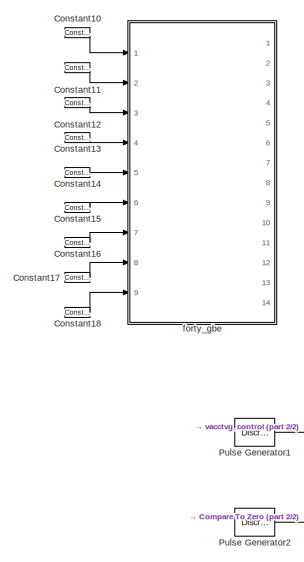
[diagram: root canvas - part 1/2, left side, full height]
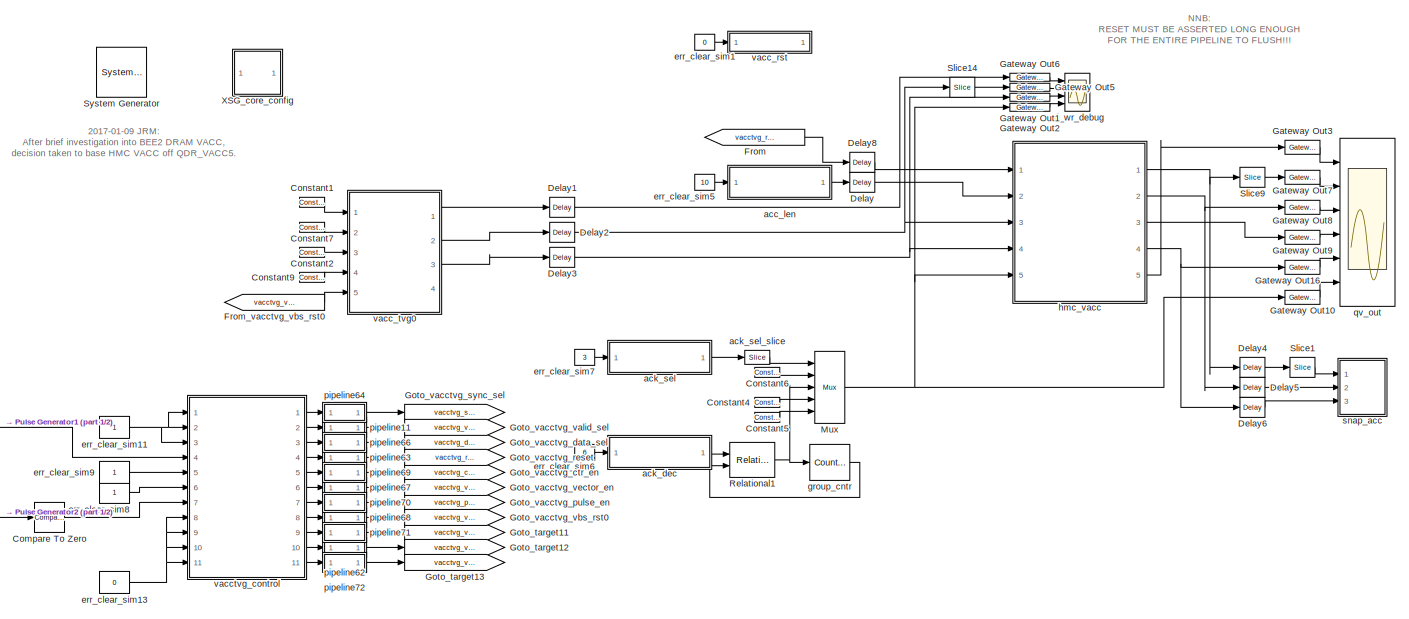
[diagram: root canvas - part 2/2, most of the canvas]
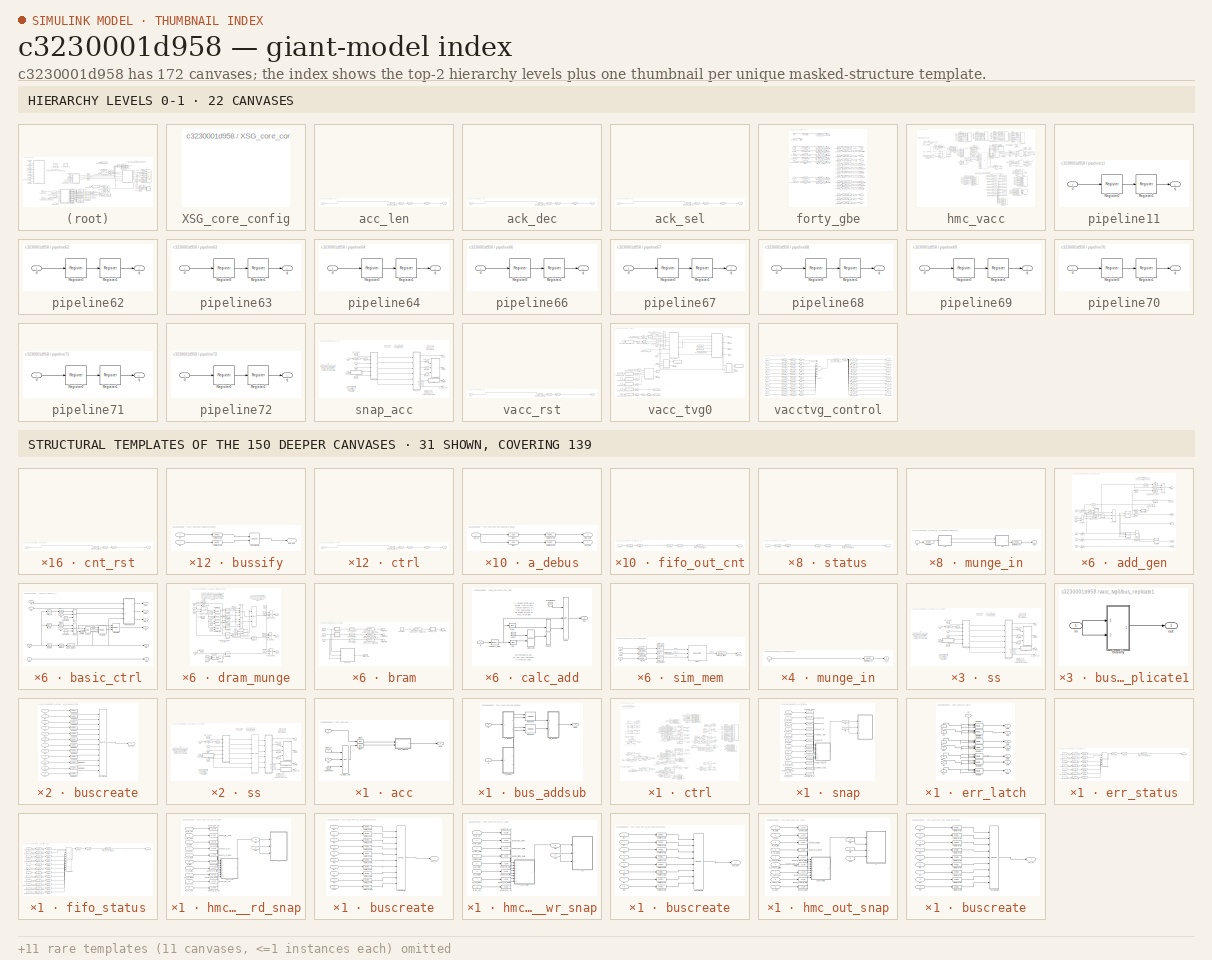
[diagram: thumbnail index - top-2 hierarchy levels (22 canvases) + 31 structural-template representatives of the remaining 150 canvases]
MODEL slx_c3230001d958
KIND model
CONFIG AbsTol = auto
CONFIG EnableMultiTasking = on
CONFIG FixedStep = auto
CONFIG MaxStep = auto
CONFIG MinStep = auto
CONFIG RelTol = 1e-3
CONFIG SampleTimeConstraint = Unconstrained
CONFIG Solver = ode45
CONFIG SolverName = ode45
CONFIG StartTime = 0.0
CONFIG StopTime = 400000
BLOCK [Reference]  System Generator  REF=xbsIndex_r4/ System Generator
  AttributesFormatString = System\nGenerator
  Ports = []
  SourceBlock = xbsIndex_r4/ System Generator
  SourceType = Xilinx System Generator Block
  Tag = genX
  UserDataPersistent = on
BLOCK [Reference] Compare To Zero  REF=simulink/Logic and Bit
Operations/Compare
To Zero
  Ports = [1, 1]
  SourceBlock = simulink/Logic and Bit\nOperations/Compare\nTo Zero
  SourceType = Compare To Zero
BLOCK [Reference] Constant1  REF=xbsIndex_r4/Constant
  Ports = [0, 1]
  SourceBlock = xbsIndex_r4/Constant
  SourceType = Xilinx Constant Block Block
BLOCK [Reference] Constant10  REF=xbsIndex_r4/Constant
  Ports = [0, 1]
  SourceBlock = xbsIndex_r4/Constant
  SourceType = Xilinx Constant Block Block
BLOCK [Reference] Constant11  REF=xbsIndex_r4/Constant
  Ports = [0, 1]
  SourceBlock = xbsIndex_r4/Constant
  SourceType = Xilinx Constant Block Block
BLOCK [Reference] Constant12  REF=xbsIndex_r4/Constant
  Ports = [0, 1]
  SourceBlock = xbsIndex_r4/Constant
  SourceType = Xilinx Constant Block Block
BLOCK [Reference] Constant13  REF=xbsIndex_r4/Constant
  Ports = [0, 1]
  SourceBlock = xbsIndex_r4/Constant
  SourceType = Xilinx Constant Block Block
BLOCK [Reference] Constant14  REF=xbsIndex_r4/Constant
  Ports = [0, 1]
  SourceBlock = xbsIndex_r4/Constant
  SourceType = Xilinx Constant Block Block
BLOCK [Reference] Constant15  REF=xbsIndex_r4/Constant
  Ports = [0, 1]
  SourceBlock = xbsIndex_r4/Constant
  SourceType = Xilinx Constant Block Block
BLOCK [Reference] Constant16  REF=xbsIndex_r4/Constant
  Ports = [0, 1]
  SourceBlock = xbsIndex_r4/Constant
  SourceType = Xilinx Constant Block Block
BLOCK [Reference] Constant17  REF=xbsIndex_r4/Constant
  Ports = [0, 1]
  SourceBlock = xbsIndex_r4/Constant
  SourceType = Xilinx Constant Block Block
BLOCK [Reference] Constant18  REF=xbsIndex_r4/Constant
  Ports = [0, 1]
  SourceBlock = xbsIndex_r4/Constant
  SourceType = Xilinx Constant Block Block
BLOCK [Reference] Constant2  REF=xbsIndex_r4/Constant
  Ports = [0, 1]
  SourceBlock = xbsIndex_r4/Constant
  SourceType = Xilinx Constant Block Block
BLOCK [Reference] Constant4  REF=xbsIndex_r4/Constant
  Ports = [0, 1]
  SourceBlock = xbsIndex_r4/Constant
  SourceType = Xilinx Constant Block Block
BLOCK [Reference] Constant5  REF=xbsIndex_r4/Constant
  Ports = [0, 1]
  SourceBlock = xbsIndex_r4/Constant
  SourceType = Xilinx Constant Block Block
BLOCK [Reference] Constant6  REF=xbsIndex_r4/Constant
  Ports = [0, 1]
  SourceBlock = xbsIndex_r4/Constant
  SourceType = Xilinx Constant Block Block
BLOCK [Reference] Constant7  REF=xbsIndex_r4/Constant
  Ports = [0, 1]
  SourceBlock = xbsIndex_r4/Constant
  SourceType = Xilinx Constant Block Block
BLOCK [Reference] Constant9  REF=xbsIndex_r4/Constant
  Ports = [0, 1]
  SourceBlock = xbsIndex_r4/Constant
  SourceType = Xilinx Constant Block Block
BLOCK [Reference] Delay  REF=xbsIndex_r4/Delay
  Ports = [1, 1]
  SourceBlock = xbsIndex_r4/Delay
  SourceType = Xilinx Delay Block
BLOCK [Reference] Delay1  REF=xbsIndex_r4/Delay
  Ports = [1, 1]
  SourceBlock = xbsIndex_r4/Delay
  SourceType = Xilinx Delay Block
BLOCK [Reference] Delay2  REF=xbsIndex_r4/Delay
  Ports = [1, 1]
  SourceBlock = xbsIndex_r4/Delay
  SourceType = Xilinx Delay Block
BLOCK [Reference] Delay3  REF=xbsIndex_r4/Delay
  Ports = [1, 1]
  SourceBlock = xbsIndex_r4/Delay
  SourceType = Xilinx Delay Block
BLOCK [Reference] Delay4  REF=xbsIndex_r4/Delay
  Ports = [1, 1]
  SourceBlock = xbsIndex_r4/Delay
  SourceType = Xilinx Delay Block
BLOCK [Reference] Delay5  REF=xbsIndex_r4/Delay
  Ports = [1, 1]
  SourceBlock = xbsIndex_r4/Delay
  SourceType = Xilinx Delay Block
BLOCK [Reference] Delay6  REF=xbsIndex_r4/Delay
  Ports = [1, 1]
  SourceBlock = xbsIndex_r4/Delay
  SourceType = Xilinx Delay Block
BLOCK [Reference] Delay8  REF=xbsIndex_r4/Delay
  Ports = [1, 1]
  SourceBlock = xbsIndex_r4/Delay
  SourceType = Xilinx Delay Block
BLOCK [From] From
  GotoTag = vacctvg_reset
  TagVisibility = global
BLOCK [From] From_vacctvg_vbs_rst0
  GotoTag = vacctvg_vbs_rst0
  TagVisibility = global
BLOCK [Reference] Gateway Out1  REF=xbsIndex_r4/Gateway Out
  Ports = [1, 1]
  SourceBlock = xbsIndex_r4/Gateway Out
  SourceType = Xilinx Gateway Out Block
BLOCK [Reference] Gateway Out10  REF=xbsIndex_r4/Gateway Out
  Ports = [1, 1]
  SourceBlock = xbsIndex_r4/Gateway Out
  SourceType = Xilinx Gateway Out Block
BLOCK [Reference] Gateway Out16  REF=xbsIndex_r4/Gateway Out
  Ports = [1, 1]
  SourceBlock = xbsIndex_r4/Gateway Out
  SourceType = Xilinx Gateway Out Block
BLOCK [Reference] Gateway Out2  REF=xbsIndex_r4/Gateway Out
  Ports = [1, 1]
  SourceBlock = xbsIndex_r4/Gateway Out
  SourceType = Xilinx Gateway Out Block
BLOCK [Reference] Gateway Out3  REF=xbsIndex_r4/Gateway Out
  Ports = [1, 1]
  SourceBlock = xbsIndex_r4/Gateway Out
  SourceType = Xilinx Gateway Out Block
BLOCK [Reference] Gateway Out5  REF=xbsIndex_r4/Gateway Out
  Ports = [1, 1]
  SourceBlock = xbsIndex_r4/Gateway Out
  SourceType = Xilinx Gateway Out Block
BLOCK [Reference] Gateway Out6  REF=xbsIndex_r4/Gateway Out
  Ports = [1, 1]
  SourceBlock = xbsIndex_r4/Gateway Out
  SourceType = Xilinx Gateway Out Block
BLOCK [Reference] Gateway Out7  REF=xbsIndex_r4/Gateway Out
  Ports = [1, 1]
  SourceBlock = xbsIndex_r4/Gateway Out
  SourceType = Xilinx Gateway Out Block
BLOCK [Reference] Gateway Out8  REF=xbsIndex_r4/Gateway Out
  Ports = [1, 1]
  SourceBlock = xbsIndex_r4/Gateway Out
  SourceType = Xilinx Gateway Out Block
BLOCK [Reference] Gateway Out9  REF=xbsIndex_r4/Gateway Out
  Ports = [1, 1]
  SourceBlock = xbsIndex_r4/Gateway Out
  SourceType = Xilinx Gateway Out Block
BLOCK [Goto] Goto_target11
  GotoTag = vacctvg_vbs_rst1
  TagVisibility = global
BLOCK [Goto] Goto_target12
  GotoTag = vacctvg_vbs_rst2
  TagVisibility = global
BLOCK [Goto] Goto_target13
  GotoTag = vacctvg_vbs_rst3
  TagVisibility = global
BLOCK [Goto] Goto_vacctvg_ctr_en
  GotoTag = vacctvg_ctr_en
  TagVisibility = global
BLOCK [Goto] Goto_vacctvg_data_sel
  GotoTag = vacctvg_data_sel
  TagVisibility = global
BLOCK [Goto] Goto_vacctvg_pulse_en
  GotoTag = vacctvg_pulse_en
  TagVisibility = global
BLOCK [Goto] Goto_vacctvg_reset
  GotoTag = vacctvg_reset
  TagVisibility = global
BLOCK [Goto] Goto_vacctvg_sync_sel
  GotoTag = vacctvg_sync_sel
  TagVisibility = global
BLOCK [Goto] Goto_vacctvg_valid_sel
  GotoTag = vacctvg_valid_sel
  TagVisibility = global
BLOCK [Goto] Goto_vacctvg_vbs_rst0
  GotoTag = vacctvg_vbs_rst0
  TagVisibility = global
BLOCK [Goto] Goto_vacctvg_vector_en
  GotoTag = vacctvg_vector_en
  TagVisibility = global
BLOCK [Reference] Mux  REF=xbsIndex_r4/Mux
  Ports = [5, 1]
  SourceBlock = xbsIndex_r4/Mux
  SourceType = Xilinx Bus Multiplexer Block
BLOCK [DiscretePulseGenerator] Pulse Generator1
  Period = 99999999
  PhaseDelay = 1000
  Ports = [0, 1]
  PulseWidth = 5000
BLOCK [DiscretePulseGenerator] Pulse Generator2
  Period = 99999999
  PhaseDelay = 500
  Ports = [0, 1]
  PulseWidth = 6000
BLOCK [Reference] Relational1  REF=xbsIndex_r4/Relational
  Ports = [2, 1]
  SourceBlock = xbsIndex_r4/Relational
  SourceType = Xilinx Arithmetic Relational Operator Block
BLOCK [Reference] Slice1  REF=xbsIndex_r4/Slice
  Ports = [1, 1]
  SourceBlock = xbsIndex_r4/Slice
  SourceType = Xilinx Bit Slice Extractor Block
BLOCK [Reference] Slice14  REF=xbsIndex_r4/Slice
  Ports = [1, 1]
  SourceBlock = xbsIndex_r4/Slice
  SourceType = Xilinx Bit Slice Extractor Block
BLOCK [Reference] Slice9  REF=xbsIndex_r4/Slice
  Ports = [1, 1]
  SourceBlock = xbsIndex_r4/Slice
  SourceType = Xilinx Bit Slice Extractor Block
BLOCK [SubSystem] XSG_core_config
  AncestorBlock = xps_library/XSG_core_config
  Ports = []
  RequestExecContextInheritance = off
  Tag = xps:xsg
  Variant = off
BLOCK [SubSystem] acc_len
  AncestorBlock = xps_library/software register
  AttributesFormatString = 1input
  Ports = [1, 1]
  RequestExecContextInheritance = off
  Tag = xps:sw_reg
  Variant = off
BLOCK [Outport] acc_len/in_reg
  IconDisplay = Port number
BLOCK [Reference] acc_len/io_delay  REF=xbsIndex_r4/Delay
  Ports = [1, 1]
  SourceBlock = xbsIndex_r4/Delay
  SourceType = Xilinx Delay Block
BLOCK [Reference] acc_len/reint1  REF=xbsIndex_r4/Reinterpret
  Ports = [1, 1]
  SourceBlock = xbsIndex_r4/Reinterpret
  SourceType = Xilinx Type Reinterpreter Block
BLOCK [Inport] acc_len/sim_1
  IconDisplay = Port number
BLOCK [Reference] acc_len/slice_reg  REF=xbsIndex_r4/Slice
  Ports = [1, 1]
  SourceBlock = xbsIndex_r4/Slice
  SourceType = Xilinx Bit Slice Extractor Block
BLOCK [Reference] acc_len/test_hmc_vacc1_acc_len_user_data_out  REF=xbsIndex_r4/Gateway In
  Ports = [1, 1]
  SourceBlock = xbsIndex_r4/Gateway In
  SourceType = Xilinx Gateway In Block
BLOCK [SubSystem] ack_dec
  AncestorBlock = xps_library/software register
  AttributesFormatString = 1input
  Ports = [1, 1]
  RequestExecContextInheritance = off
  Tag = xps:sw_reg
  Variant = off
BLOCK [Outport] ack_dec/in_reg
  IconDisplay = Port number
BLOCK [Reference] ack_dec/io_delay  REF=xbsIndex_r4/Delay
  Ports = [1, 1]
  SourceBlock = xbsIndex_r4/Delay
  SourceType = Xilinx Delay Block
BLOCK [Reference] ack_dec/reint1  REF=xbsIndex_r4/Reinterpret
  Ports = [1, 1]
  SourceBlock = xbsIndex_r4/Reinterpret
  SourceType = Xilinx Type Reinterpreter Block
BLOCK [Inport] ack_dec/sim_1
  IconDisplay = Port number
BLOCK [Reference] ack_dec/slice_reg  REF=xbsIndex_r4/Slice
  Ports = [1, 1]
  SourceBlock = xbsIndex_r4/Slice
  SourceType = Xilinx Bit Slice Extractor Block
BLOCK [Reference] ack_dec/test_hmc_vacc1_ack_dec_user_data_out  REF=xbsIndex_r4/Gateway In
  Ports = [1, 1]
  SourceBlock = xbsIndex_r4/Gateway In
  SourceType = Xilinx Gateway In Block
BLOCK [SubSystem] ack_sel
  AncestorBlock = xps_library/software register
  AttributesFormatString = 1input
  Ports = [1, 1]
  RequestExecContextInheritance = off
  Tag = xps:sw_reg
  Variant = off
BLOCK [Outport] ack_sel/in_reg
  IconDisplay = Port number
BLOCK [Reference] ack_sel/io_delay  REF=xbsIndex_r4/Delay
  Ports = [1, 1]
  SourceBlock = xbsIndex_r4/Delay
  SourceType = Xilinx Delay Block
BLOCK [Reference] ack_sel/reint1  REF=xbsIndex_r4/Reinterpret
  Ports = [1, 1]
  SourceBlock = xbsIndex_r4/Reinterpret
  SourceType = Xilinx Type Reinterpreter Block
BLOCK [Inport] ack_sel/sim_1
  IconDisplay = Port number
BLOCK [Reference] ack_sel/slice_reg  REF=xbsIndex_r4/Slice
  Ports = [1, 1]
  SourceBlock = xbsIndex_r4/Slice
  SourceType = Xilinx Bit Slice Extractor Block
BLOCK [Reference] ack_sel/test_hmc_vacc1_ack_sel_user_data_out  REF=xbsIndex_r4/Gateway In
  Ports = [1, 1]
  SourceBlock = xbsIndex_r4/Gateway In
  SourceType = Xilinx Gateway In Block
BLOCK [Reference] ack_sel_slice  REF=xbsIndex_r4/Slice
  Ports = [1, 1]
  SourceBlock = xbsIndex_r4/Slice
  SourceType = Xilinx Bit Slice Extractor Block
BLOCK [Constant] err_clear_sim1
  Value = 0
BLOCK [Constant] err_clear_sim11
BLOCK [Constant] err_clear_sim13
  Value = 0
BLOCK [Constant] err_clear_sim5
  Value = 10
BLOCK [Constant] err_clear_sim6
  Value = 6
BLOCK [Constant] err_clear_sim7
  Value = 3
BLOCK [Constant] err_clear_sim8
BLOCK [Constant] err_clear_sim9
BLOCK [SubSystem] forty_gbe
  AncestorBlock = xps_library/forty_gbe
  Ports = [9, 14]
  RequestExecContextInheritance = off
  Tag = xps:forty_gbe
  Variant = off
BLOCK [Constant] forty_gbe/Constant1
  Value = 0
BLOCK [Constant] forty_gbe/Constant10
  Value = 0
BLOCK [Constant] forty_gbe/Constant11
  Value = 0
BLOCK [Constant] forty_gbe/Constant12
  Value = 0
BLOCK [Constant] forty_gbe/Constant13
  Value = 0
BLOCK [Constant] forty_gbe/Constant14
  Value = 0
BLOCK [Constant] forty_gbe/Constant2
  Value = 0
BLOCK [Constant] forty_gbe/Constant3
  Value = 0
BLOCK [Constant] forty_gbe/Constant4
  Value = 0
BLOCK [Constant] forty_gbe/Constant5
  Value = 0
BLOCK [Constant] forty_gbe/Constant6
  Value = 0
BLOCK [Constant] forty_gbe/Constant7
  Value = 0
BLOCK [Constant] forty_gbe/Constant8
  Value = 0
BLOCK [Constant] forty_gbe/Constant9
  Value = 0
BLOCK [Terminator] forty_gbe/Terminator
BLOCK [Terminator] forty_gbe/Terminator1
BLOCK [Terminator] forty_gbe/Terminator2
BLOCK [Terminator] forty_gbe/Terminator3
BLOCK [Terminator] forty_gbe/Terminator5
BLOCK [Terminator] forty_gbe/Terminator6
BLOCK [Terminator] forty_gbe/Terminator7
BLOCK [Terminator] forty_gbe/Terminator8
BLOCK [Reference] forty_gbe/convert_rst  REF=xbsIndex_r4/Convert
  Ports = [1, 1]
  SourceBlock = xbsIndex_r4/Convert
  SourceType = Xilinx Type Converter Block
BLOCK [Reference] forty_gbe/convert_rx_ack  REF=xbsIndex_r4/Convert
  Ports = [1, 1]
  SourceBlock = xbsIndex_r4/Convert
  SourceType = Xilinx Type Converter Block
BLOCK [Reference] forty_gbe/convert_rx_overrun_ack  REF=xbsIndex_r4/Convert
  Ports = [1, 1]
  SourceBlock = xbsIndex_r4/Convert
  SourceType = Xilinx Type Converter Block
BLOCK [Reference] forty_gbe/convert_tx_data  REF=xbsIndex_r4/Convert
  Ports = [1, 1]
  SourceBlock = xbsIndex_r4/Convert
  SourceType = Xilinx Type Converter Block
BLOCK [Reference] forty_gbe/convert_tx_dest_ip  REF=xbsIndex_r4/Convert
  Ports = [1, 1]
  SourceBlock = xbsIndex_r4/Convert
  SourceType = Xilinx Type Converter Block
BLOCK [Reference] forty_gbe/convert_tx_end_of_frame  REF=xbsIndex_r4/Convert
  Ports = [1, 1]
  SourceBlock = xbsIndex_r4/Convert
  SourceType = Xilinx Type Converter Block
BLOCK [Reference] forty_gbe/convert_tx_port  REF=xbsIndex_r4/Convert
  Ports = [1, 1]
  SourceBlock = xbsIndex_r4/Convert
  SourceType = Xilinx Type Converter Block
BLOCK [Reference] forty_gbe/convert_tx_valid  REF=xbsIndex_r4/Convert
  Ports = [1, 1]
  SourceBlock = xbsIndex_r4/Convert
  SourceType = Xilinx Type Converter Block
BLOCK [Inport] forty_gbe/debug_rst
  IconDisplay = Port number
  Port = 9
BLOCK [Outport] forty_gbe/led_rx
  IconDisplay = Port number
  Port = 2
BLOCK [Outport] forty_gbe/led_tx
  IconDisplay = Port number
  Port = 3
BLOCK [Outport] forty_gbe/led_up
  IconDisplay = Port number
BLOCK [Inport] forty_gbe/rst
  IconDisplay = Port number
BLOCK [Inport] forty_gbe/rx_ack
  IconDisplay = Port number
  Port = 7
BLOCK [Outport] forty_gbe/rx_bad_frame
  IconDisplay = Port number
  Port = 11
BLOCK [Outport] forty_gbe/rx_data
  IconDisplay = Port number
  Port = 6
BLOCK [Outport] forty_gbe/rx_dest_ip
  IconDisplay = Port number
  Port = 13
BLOCK [Outport] forty_gbe/rx_dest_port
  IconDisplay = Port number
  Port = 14
BLOCK [Outport] forty_gbe/rx_end_of_frame
  IconDisplay = Port number
  Port = 10
BLOCK [Outport] forty_gbe/rx_overrun
  IconDisplay = Port number
  Port = 12
BLOCK [Inport] forty_gbe/rx_overrun_ack
  IconDisplay = Port number
  Port = 8
BLOCK [Outport] forty_gbe/rx_source_ip
  IconDisplay = Port number
  Port = 8
BLOCK [Outport] forty_gbe/rx_source_port
  IconDisplay = Port number
  Port = 9
BLOCK [Outport] forty_gbe/rx_valid
  IconDisplay = Port number
  Port = 7
BLOCK [Terminator] forty_gbe/term1
BLOCK [Reference] forty_gbe/test_hmc_vacc1_forty_gbe_led_rx  REF=xbsIndex_r4/Gateway In
  Ports = [1, 1]
  SourceBlock = xbsIndex_r4/Gateway In
  SourceType = Xilinx Gateway In Block
BLOCK [Reference] forty_gbe/test_hmc_vacc1_forty_gbe_led_tx  REF=xbsIndex_r4/Gateway In
  Ports = [1, 1]
  SourceBlock = xbsIndex_r4/Gateway In
  SourceType = Xilinx Gateway In Block
BLOCK [Reference] forty_gbe/test_hmc_vacc1_forty_gbe_led_up  REF=xbsIndex_r4/Gateway In
  Ports = [1, 1]
  SourceBlock = xbsIndex_r4/Gateway In
  SourceType = Xilinx Gateway In Block
BLOCK [Reference] forty_gbe/test_hmc_vacc1_forty_gbe_rst  REF=xbsIndex_r4/Gateway Out
  Ports = [1, 1]
  SourceBlock = xbsIndex_r4/Gateway Out
  SourceType = Xilinx Gateway Out Block
BLOCK [Reference] forty_gbe/test_hmc_vacc1_forty_gbe_rx_ack  REF=xbsIndex_r4/Gateway Out
  Ports = [1, 1]
  SourceBlock = xbsIndex_r4/Gateway Out
  SourceType = Xilinx Gateway Out Block
BLOCK [Reference] forty_gbe/test_hmc_vacc1_forty_gbe_rx_bad_frame  REF=xbsIndex_r4/Gateway In
  Ports = [1, 1]
  SourceBlock = xbsIndex_r4/Gateway In
  SourceType = Xilinx Gateway In Block
BLOCK [Reference] forty_gbe/test_hmc_vacc1_forty_gbe_rx_data  REF=xbsIndex_r4/Gateway In
  Ports = [1, 1]
  SourceBlock = xbsIndex_r4/Gateway In
  SourceType = Xilinx Gateway In Block
BLOCK [Reference] forty_gbe/test_hmc_vacc1_forty_gbe_rx_dest_ip  REF=xbsIndex_r4/Gateway In
  Ports = [1, 1]
  SourceBlock = xbsIndex_r4/Gateway In
  SourceType = Xilinx Gateway In Block
BLOCK [Reference] forty_gbe/test_hmc_vacc1_forty_gbe_rx_dest_port  REF=xbsIndex_r4/Gateway In
  Ports = [1, 1]
  SourceBlock = xbsIndex_r4/Gateway In
  SourceType = Xilinx Gateway In Block
BLOCK [Reference] forty_gbe/test_hmc_vacc1_forty_gbe_rx_end_of_frame  REF=xbsIndex_r4/Gateway In
  Ports = [1, 1]
  SourceBlock = xbsIndex_r4/Gateway In
  SourceType = Xilinx Gateway In Block
BLOCK [Reference] forty_gbe/test_hmc_vacc1_forty_gbe_rx_overrun  REF=xbsIndex_r4/Gateway In
  Ports = [1, 1]
  SourceBlock = xbsIndex_r4/Gateway In
  SourceType = Xilinx Gateway In Block
BLOCK [Reference] forty_gbe/test_hmc_vacc1_forty_gbe_rx_overrun_ack  REF=xbsIndex_r4/Gateway Out
  Ports = [1, 1]
  SourceBlock = xbsIndex_r4/Gateway Out
  SourceType = Xilinx Gateway Out Block
BLOCK [Reference] forty_gbe/test_hmc_vacc1_forty_gbe_rx_source_ip  REF=xbsIndex_r4/Gateway In
  Ports = [1, 1]
  SourceBlock = xbsIndex_r4/Gateway In
  SourceType = Xilinx Gateway In Block
BLOCK [Reference] forty_gbe/test_hmc_vacc1_forty_gbe_rx_source_port  REF=xbsIndex_r4/Gateway In
  Ports = [1, 1]
  SourceBlock = xbsIndex_r4/Gateway In
  SourceType = Xilinx Gateway In Block
BLOCK [Reference] forty_gbe/test_hmc_vacc1_forty_gbe_rx_valid  REF=xbsIndex_r4/Gateway In
  Ports = [1, 1]
  SourceBlock = xbsIndex_r4/Gateway In
  SourceType = Xilinx Gateway In Block
BLOCK [Reference] forty_gbe/test_hmc_vacc1_forty_gbe_tx_afull  REF=xbsIndex_r4/Gateway In
  Ports = [1, 1]
  SourceBlock = xbsIndex_r4/Gateway In
  SourceType = Xilinx Gateway In Block
BLOCK [Reference] forty_gbe/test_hmc_vacc1_forty_gbe_tx_data  REF=xbsIndex_r4/Gateway Out
  Ports = [1, 1]
  SourceBlock = xbsIndex_r4/Gateway Out
  SourceType = Xilinx Gateway Out Block
BLOCK [Reference] forty_gbe/test_hmc_vacc1_forty_gbe_tx_dest_ip  REF=xbsIndex_r4/Gateway Out
  Ports = [1, 1]
  SourceBlock = xbsIndex_r4/Gateway Out
  SourceType = Xilinx Gateway Out Block
BLOCK [Reference] forty_gbe/test_hmc_vacc1_forty_gbe_tx_dest_port  REF=xbsIndex_r4/Gateway Out
  Ports = [1, 1]
  SourceBlock = xbsIndex_r4/Gateway Out
  SourceType = Xilinx Gateway Out Block
BLOCK [Reference] forty_gbe/test_hmc_vacc1_forty_gbe_tx_end_of_frame  REF=xbsIndex_r4/Gateway Out
  Ports = [1, 1]
  SourceBlock = xbsIndex_r4/Gateway Out
  SourceType = Xilinx Gateway Out Block
BLOCK [Reference] forty_gbe/test_hmc_vacc1_forty_gbe_tx_overflow  REF=xbsIndex_r4/Gateway In
  Ports = [1, 1]
  SourceBlock = xbsIndex_r4/Gateway In
  SourceType = Xilinx Gateway In Block
BLOCK [Reference] forty_gbe/test_hmc_vacc1_forty_gbe_tx_valid  REF=xbsIndex_r4/Gateway Out
  Ports = [1, 1]
  SourceBlock = xbsIndex_r4/Gateway Out
  SourceType = Xilinx Gateway Out Block
BLOCK [Outport] forty_gbe/tx_afull
  IconDisplay = Port number
  Port = 4
BLOCK [Inport] forty_gbe/tx_data
  IconDisplay = Port number
  Port = 2
BLOCK [Inport] forty_gbe/tx_dest_ip
  IconDisplay = Port number
  Port = 4
BLOCK [Inport] forty_gbe/tx_dest_port
  IconDisplay = Port number
  Port = 5
BLOCK [Inport] forty_gbe/tx_end_of_frame
  IconDisplay = Port number
  Port = 6
BLOCK [Outport] forty_gbe/tx_overflow
  IconDisplay = Port number
  Port = 5
BLOCK [Inport] forty_gbe/tx_valid
  IconDisplay = Port number
  Port = 3
BLOCK [Reference] group_cntr  REF=xbsIndex_r4/Counter
  Ports = [1, 1]
  SourceBlock = xbsIndex_r4/Counter
  SourceType = Xilinx Counter Block
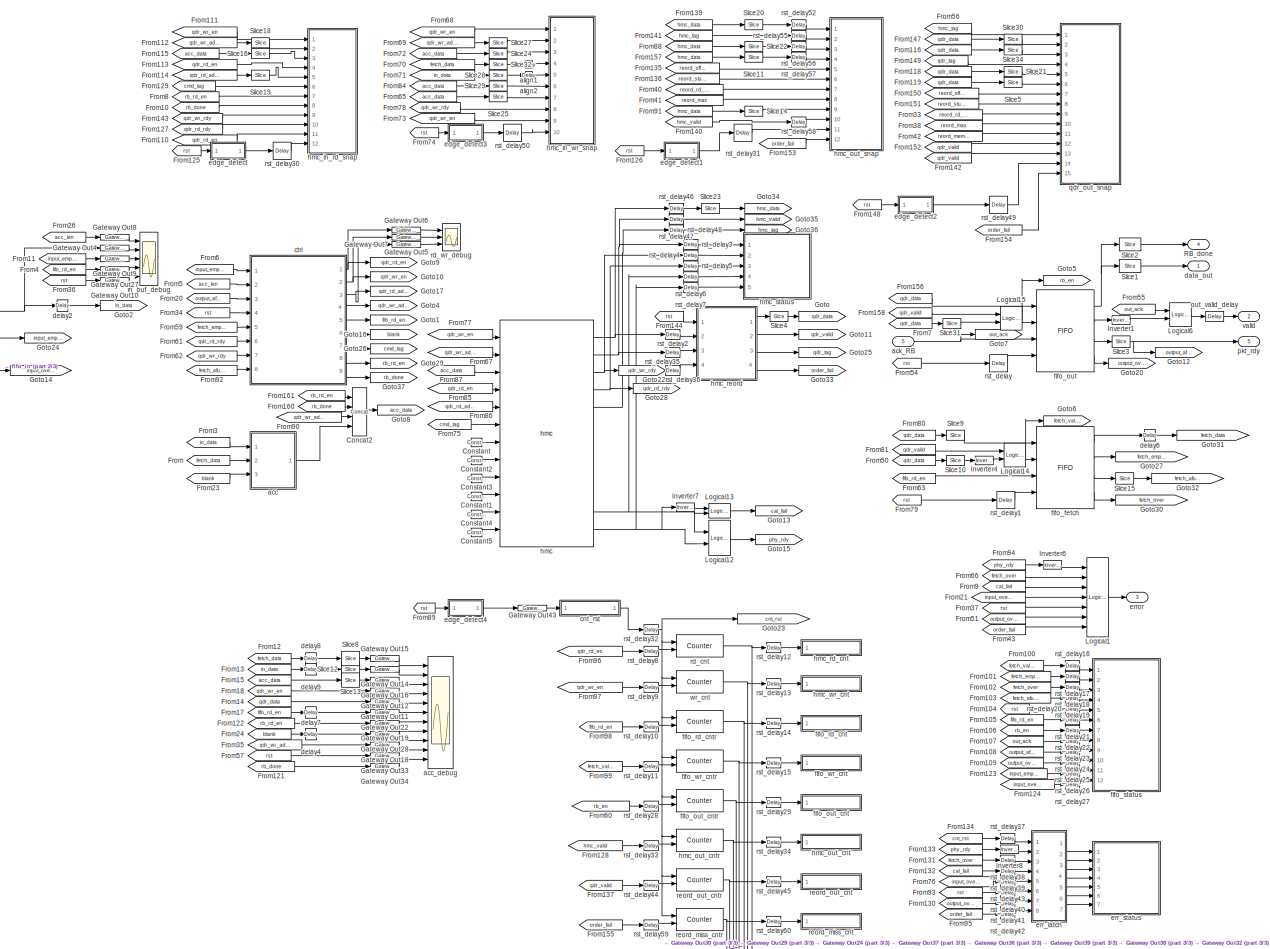
[diagram: hmc_vacc - part 1/3, most of the canvas]
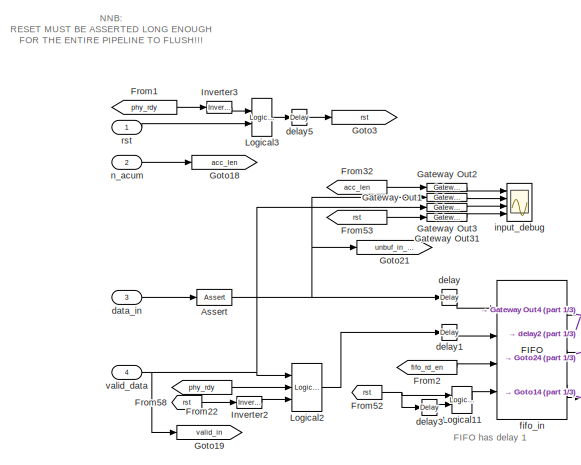
[diagram: hmc_vacc - part 2/3, top left region]
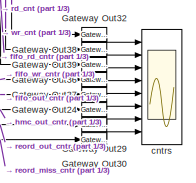
[diagram: hmc_vacc - part 3/3, bottom right region]
BLOCK [SubSystem] hmc_vacc
  AttributesFormatString = Vector Length: 1000
  Ports = [5, 5]
  RequestExecContextInheritance = off
  Variant = off
BLOCK [Reference] hmc_vacc/Assert  REF=xbsIndex_r4/Assert
  Ports = [1, 1]
  SourceBlock = xbsIndex_r4/Assert
  SourceType = Xilinx Assert Block
BLOCK [Reference] hmc_vacc/Concat2  REF=xbsIndex_r4/Concat
  Ports = [4, 1]
  SourceBlock = xbsIndex_r4/Concat
  SourceType = Xilinx Bus Concatenator Block
BLOCK [Reference] hmc_vacc/Constant  REF=xbsIndex_r4/Constant
  Ports = [0, 1]
  SourceBlock = xbsIndex_r4/Constant
  SourceType = Xilinx Constant Block Block
BLOCK [Reference] hmc_vacc/Constant1  REF=xbsIndex_r4/Constant
  Ports = [0, 1]
  SourceBlock = xbsIndex_r4/Constant
  SourceType = Xilinx Constant Block Block
BLOCK [Reference] hmc_vacc/Constant2  REF=xbsIndex_r4/Constant
  Ports = [0, 1]
  SourceBlock = xbsIndex_r4/Constant
  SourceType = Xilinx Constant Block Block
BLOCK [Reference] hmc_vacc/Constant3  REF=xbsIndex_r4/Constant
  Ports = [0, 1]
  SourceBlock = xbsIndex_r4/Constant
  SourceType = Xilinx Constant Block Block
BLOCK [Reference] hmc_vacc/Constant4  REF=xbsIndex_r4/Constant
  Ports = [0, 1]
  SourceBlock = xbsIndex_r4/Constant
  SourceType = Xilinx Constant Block Block
BLOCK [Reference] hmc_vacc/Constant5  REF=xbsIndex_r4/Constant
  Ports = [0, 1]
  SourceBlock = xbsIndex_r4/Constant
  SourceType = Xilinx Constant Block Block
BLOCK [From] hmc_vacc/From
  CloseFcn = tagdialog Close
  GotoTag = fetch_data
BLOCK [From] hmc_vacc/From1
  GotoTag = phy_rdy
BLOCK [From] hmc_vacc/From10
  GotoTag = rb_done
BLOCK [From] hmc_vacc/From100
  CloseFcn = tagdialog Close
  GotoTag = fetch_valid
BLOCK [From] hmc_vacc/From101
  CloseFcn = tagdialog Close
  GotoTag = fetch_empty
BLOCK [From] hmc_vacc/From102
  CloseFcn = tagdialog Close
  GotoTag = fetch_over
BLOCK [From] hmc_vacc/From103
  CloseFcn = tagdialog Close
  GotoTag = fetch_afull
BLOCK [From] hmc_vacc/From104
  CloseFcn = tagdialog Close
  GotoTag = rst
BLOCK [From] hmc_vacc/From105
  CloseFcn = tagdialog Close
  GotoTag = fifo_rd_en
BLOCK [From] hmc_vacc/From106
  CloseFcn = tagdialog Close
  GotoTag = rb_en
BLOCK [From] hmc_vacc/From107
  CloseFcn = tagdialog Close
  GotoTag = out_ack
BLOCK [From] hmc_vacc/From108
  CloseFcn = tagdialog Close
  GotoTag = output_afull
BLOCK [From] hmc_vacc/From109
  CloseFcn = tagdialog Close
  GotoTag = output_over
BLOCK [From] hmc_vacc/From11
  CloseFcn = tagdialog Close
  GotoTag = input_empty
BLOCK [From] hmc_vacc/From110
  CloseFcn = tagdialog Close
  GotoTag = qdr_rd_en
BLOCK [From] hmc_vacc/From111
  CloseFcn = tagdialog Close
  GotoTag = qdr_wr_en
BLOCK [From] hmc_vacc/From112
  CloseFcn = tagdialog Close
  GotoTag = qdr_wr_addr
BLOCK [From] hmc_vacc/From113
  CloseFcn = tagdialog Close
  GotoTag = qdr_rd_en
BLOCK [From] hmc_vacc/From114
  CloseFcn = tagdialog Close
  GotoTag = qdr_rd_addr
BLOCK [From] hmc_vacc/From115
  GotoTag = acc_data
BLOCK [From] hmc_vacc/From116
  GotoTag = qdr_data
BLOCK [From] hmc_vacc/From118
  GotoTag = qdr_data
BLOCK [From] hmc_vacc/From119
  GotoTag = qdr_data
BLOCK [From] hmc_vacc/From12
  CloseFcn = tagdialog Close
  GotoTag = fetch_data
BLOCK [From] hmc_vacc/From121
  GotoTag = rb_done
BLOCK [From] hmc_vacc/From122
  GotoTag = rb_rd_en
BLOCK [From] hmc_vacc/From123
  CloseFcn = tagdialog Close
  GotoTag = input_empty
BLOCK [From] hmc_vacc/From124
  CloseFcn = tagdialog Close
  GotoTag = input_overflow
BLOCK [From] hmc_vacc/From125
  CloseFcn = tagdialog Close
  GotoTag = rst
BLOCK [From] hmc_vacc/From126
  CloseFcn = tagdialog Close
  GotoTag = rst
BLOCK [From] hmc_vacc/From127
  CloseFcn = tagdialog Close
  GotoTag = qdr_rd_rdy
BLOCK [From] hmc_vacc/From128
  CloseFcn = tagdialog Close
  GotoTag = hmc_valid
BLOCK [From] hmc_vacc/From129
  CloseFcn = tagdialog Close
  GotoTag = cmd_tag
BLOCK [From] hmc_vacc/From13
  CloseFcn = tagdialog Close
  GotoTag = in_data
BLOCK [From] hmc_vacc/From130
  CloseFcn = tagdialog Close
  GotoTag = output_over
BLOCK [From] hmc_vacc/From131
  CloseFcn = tagdialog Close
  GotoTag = fetch_over
BLOCK [From] hmc_vacc/From132
  CloseFcn = tagdialog Close
  GotoTag = cal_fail
BLOCK [From] hmc_vacc/From133
  CloseFcn = tagdialog Close
  GotoTag = phy_rdy
BLOCK [From] hmc_vacc/From134
  CloseFcn = tagdialog Close
  GotoTag = cnt_rst
BLOCK [From] hmc_vacc/From135
  GotoTag = reord_offset
  TagVisibility = global
BLOCK [From] hmc_vacc/From136
  GotoTag = reord_stutter
  TagVisibility = global
BLOCK [From] hmc_vacc/From137
  CloseFcn = tagdialog Close
  GotoTag = qdr_valid
BLOCK [From] hmc_vacc/From139
  GotoTag = hmc_data
BLOCK [From] hmc_vacc/From14
  CloseFcn = tagdialog Close
  GotoTag = qdr_data
BLOCK [From] hmc_vacc/From140
  GotoTag = hmc_valid
BLOCK [From] hmc_vacc/From141
  GotoTag = hmc_tag
BLOCK [From] hmc_vacc/From142
  CloseFcn = tagdialog Close
  GotoTag = qdr_valid
BLOCK [From] hmc_vacc/From143
  CloseFcn = tagdialog Close
  GotoTag = qdr_wr_rdy
BLOCK [From] hmc_vacc/From144
  CloseFcn = tagdialog Close
  GotoTag = rst
BLOCK [From] hmc_vacc/From147
  GotoTag = qdr_data
BLOCK [From] hmc_vacc/From148
  CloseFcn = tagdialog Close
  GotoTag = rst
BLOCK [From] hmc_vacc/From149
  CloseFcn = tagdialog Close
  GotoTag = qdr_tag
BLOCK [From] hmc_vacc/From15
  CloseFcn = tagdialog Close
  GotoTag = acc_data
BLOCK [From] hmc_vacc/From150
  GotoTag = reord_offset
  TagVisibility = global
BLOCK [From] hmc_vacc/From151
  GotoTag = reord_stutter
  TagVisibility = global
BLOCK [From] hmc_vacc/From152
  CloseFcn = tagdialog Close
  GotoTag = qdr_valid
BLOCK [From] hmc_vacc/From153
  GotoTag = order_fail
BLOCK [From] hmc_vacc/From154
  GotoTag = order_fail
BLOCK [From] hmc_vacc/From155
  CloseFcn = tagdialog Close
  GotoTag = order_fail
BLOCK [From] hmc_vacc/From156
  CloseFcn = tagdialog Close
  GotoTag = qdr_data
BLOCK [From] hmc_vacc/From157
  GotoTag = hmc_data
BLOCK [From] hmc_vacc/From158
  CloseFcn = tagdialog Close
  GotoTag = qdr_valid
BLOCK [From] hmc_vacc/From160
  GotoTag = rb_done
BLOCK [From] hmc_vacc/From161
  GotoTag = rb_rd_en
BLOCK [From] hmc_vacc/From17
  CloseFcn = tagdialog Close
  GotoTag = fifo_rd_en
BLOCK [From] hmc_vacc/From18
  CloseFcn = tagdialog Close
  GotoTag = qdr_wr_en
BLOCK [From] hmc_vacc/From2
  CloseFcn = tagdialog Close
  GotoTag = fifo_rd_en
BLOCK [From] hmc_vacc/From20
  CloseFcn = tagdialog Close
  GotoTag = output_afull
BLOCK [From] hmc_vacc/From21
  CloseFcn = tagdialog Close
  GotoTag = input_overflow
BLOCK [From] hmc_vacc/From22
  CloseFcn = tagdialog Close
  GotoTag = phy_rdy
BLOCK [From] hmc_vacc/From23
  CloseFcn = tagdialog Close
  GotoTag = blank
BLOCK [From] hmc_vacc/From24
  CloseFcn = tagdialog Close
  GotoTag = blank
BLOCK [From] hmc_vacc/From26
  CloseFcn = tagdialog Close
  GotoTag = acc_len
BLOCK [From] hmc_vacc/From3
  CloseFcn = tagdialog Close
  GotoTag = in_data
BLOCK [From] hmc_vacc/From32
  CloseFcn = tagdialog Close
  GotoTag = acc_len
BLOCK [From] hmc_vacc/From33
  GotoTag = reord_rd_idx
  TagVisibility = global
BLOCK [From] hmc_vacc/From34
  CloseFcn = tagdialog Close
  GotoTag = rst
BLOCK [From] hmc_vacc/From35
  CloseFcn = tagdialog Close
  GotoTag = qdr_wr_addr
BLOCK [From] hmc_vacc/From36
  CloseFcn = tagdialog Close
  GotoTag = rst
BLOCK [From] hmc_vacc/From37
  CloseFcn = tagdialog Close
  GotoTag = rst
BLOCK [From] hmc_vacc/From38
  GotoTag = reord_max
  TagVisibility = global
BLOCK [From] hmc_vacc/From4
  CloseFcn = tagdialog Close
  GotoTag = fifo_rd_en
BLOCK [From] hmc_vacc/From40
  GotoTag = reord_rd_idx
  TagVisibility = global
BLOCK [From] hmc_vacc/From41
  GotoTag = reord_max
  TagVisibility = global
BLOCK [From] hmc_vacc/From42
  GotoTag = reord_mem_valid
  TagVisibility = global
BLOCK [From] hmc_vacc/From43
  CloseFcn = tagdialog Close
  GotoTag = order_fail
BLOCK [From] hmc_vacc/From5
  CloseFcn = tagdialog Close
  GotoTag = acc_len
BLOCK [From] hmc_vacc/From50
  CloseFcn = tagdialog Close
  GotoTag = qdr_data
BLOCK [From] hmc_vacc/From51
  CloseFcn = tagdialog Close
  GotoTag = output_over
BLOCK [From] hmc_vacc/From52
  CloseFcn = tagdialog Close
  GotoTag = rst
BLOCK [From] hmc_vacc/From53
  CloseFcn = tagdialog Close
  GotoTag = rst
BLOCK [From] hmc_vacc/From54
  CloseFcn = tagdialog Close
  GotoTag = rst
BLOCK [From] hmc_vacc/From55
  CloseFcn = tagdialog Close
  GotoTag = out_ack
BLOCK [From] hmc_vacc/From56
  GotoTag = hmc_tag
BLOCK [From] hmc_vacc/From57
  CloseFcn = tagdialog Close
  GotoTag = rst
BLOCK [From] hmc_vacc/From58
  CloseFcn = tagdialog Close
  GotoTag = rst
BLOCK [From] hmc_vacc/From59
  CloseFcn = tagdialog Close
  GotoTag = fetch_empty
BLOCK [From] hmc_vacc/From6
  CloseFcn = tagdialog Close
  GotoTag = input_empty
BLOCK [From] hmc_vacc/From60
  CloseFcn = tagdialog Close
  GotoTag = rb_en
BLOCK [From] hmc_vacc/From61
  CloseFcn = tagdialog Close
  GotoTag = qdr_rd_rdy
BLOCK [From] hmc_vacc/From62
  CloseFcn = tagdialog Close
  GotoTag = qdr_wr_rdy
BLOCK [From] hmc_vacc/From63
  CloseFcn = tagdialog Close
  GotoTag = fifo_rd_en
BLOCK [From] hmc_vacc/From65
  GotoTag = acc_data
BLOCK [From] hmc_vacc/From66
  CloseFcn = tagdialog Close
  GotoTag = fetch_over
BLOCK [From] hmc_vacc/From67
  CloseFcn = tagdialog Close
  GotoTag = qdr_wr_addr
BLOCK [From] hmc_vacc/From68
  CloseFcn = tagdialog Close
  GotoTag = qdr_wr_en
BLOCK [From] hmc_vacc/From69
  CloseFcn = tagdialog Close
  GotoTag = qdr_wr_addr
BLOCK [From] hmc_vacc/From7
  CloseFcn = tagdialog Close
  GotoTag = qdr_data
BLOCK [From] hmc_vacc/From70
  CloseFcn = tagdialog Close
  GotoTag = fetch_data
BLOCK [From] hmc_vacc/From71
  CloseFcn = tagdialog Close
  GotoTag = in_data
BLOCK [From] hmc_vacc/From72
  GotoTag = acc_data
BLOCK [From] hmc_vacc/From73
  CloseFcn = tagdialog Close
  GotoTag = qdr_wr_en
BLOCK [From] hmc_vacc/From74
  CloseFcn = tagdialog Close
  GotoTag = rst
BLOCK [From] hmc_vacc/From75
  CloseFcn = tagdialog Close
  GotoTag = cmd_tag
BLOCK [From] hmc_vacc/From76
  CloseFcn = tagdialog Close
  GotoTag = input_overflow
BLOCK [From] hmc_vacc/From77
  CloseFcn = tagdialog Close
  GotoTag = qdr_wr_en
BLOCK [From] hmc_vacc/From78
  CloseFcn = tagdialog Close
  GotoTag = qdr_wr_rdy
BLOCK [From] hmc_vacc/From79
  CloseFcn = tagdialog Close
  GotoTag = rst
BLOCK [From] hmc_vacc/From8
  GotoTag = rb_rd_en
BLOCK [From] hmc_vacc/From80
  CloseFcn = tagdialog Close
  GotoTag = qdr_data
BLOCK [From] hmc_vacc/From81
  CloseFcn = tagdialog Close
  GotoTag = qdr_valid
BLOCK [From] hmc_vacc/From84
  GotoTag = acc_data
BLOCK [From] hmc_vacc/From85
  CloseFcn = tagdialog Close
  GotoTag = qdr_rd_en
BLOCK [From] hmc_vacc/From86
  CloseFcn = tagdialog Close
  GotoTag = qdr_rd_addr
BLOCK [From] hmc_vacc/From87
  GotoTag = acc_data
BLOCK [From] hmc_vacc/From88
  GotoTag = hmc_data
BLOCK [From] hmc_vacc/From89
  CloseFcn = tagdialog Close
  GotoTag = rst
BLOCK [From] hmc_vacc/From9
  CloseFcn = tagdialog Close
  GotoTag = cal_fail
BLOCK [From] hmc_vacc/From90
  CloseFcn = tagdialog Close
  GotoTag = qdr_wr_addr
BLOCK [From] hmc_vacc/From91
  GotoTag = hmc_data
BLOCK [From] hmc_vacc/From92
  CloseFcn = tagdialog Close
  GotoTag = fetch_afull
BLOCK [From] hmc_vacc/From93
  CloseFcn = tagdialog Close
  GotoTag = rst
BLOCK [From] hmc_vacc/From94
  CloseFcn = tagdialog Close
  GotoTag = phy_rdy
BLOCK [From] hmc_vacc/From95
  CloseFcn = tagdialog Close
  GotoTag = order_fail
BLOCK [From] hmc_vacc/From96
  CloseFcn = tagdialog Close
  GotoTag = qdr_rd_en
BLOCK [From] hmc_vacc/From97
  CloseFcn = tagdialog Close
  GotoTag = qdr_wr_en
BLOCK [From] hmc_vacc/From98
  CloseFcn = tagdialog Close
  GotoTag = fifo_rd_en
BLOCK [From] hmc_vacc/From99
  CloseFcn = tagdialog Close
  GotoTag = fetch_valid
BLOCK [Reference] hmc_vacc/Gateway Out1  REF=xbsIndex_r4/Gateway Out
  Ports = [1, 1]
  SourceBlock = xbsIndex_r4/Gateway Out
  SourceType = Xilinx Gateway Out Block
BLOCK [Reference] hmc_vacc/Gateway Out10  REF=xbsIndex_r4/Gateway Out
  Ports = [1, 1]
  SourceBlock = xbsIndex_r4/Gateway Out
  SourceType = Xilinx Gateway Out Block
BLOCK [Reference] hmc_vacc/Gateway Out11  REF=xbsIndex_r4/Gateway Out
  Ports = [1, 1]
  SourceBlock = xbsIndex_r4/Gateway Out
  SourceType = Xilinx Gateway Out Block
BLOCK [Reference] hmc_vacc/Gateway Out12  REF=xbsIndex_r4/Gateway Out
  Ports = [1, 1]
  SourceBlock = xbsIndex_r4/Gateway Out
  SourceType = Xilinx Gateway Out Block
BLOCK [Reference] hmc_vacc/Gateway Out14  REF=xbsIndex_r4/Gateway Out
  Ports = [1, 1]
  SourceBlock = xbsIndex_r4/Gateway Out
  SourceType = Xilinx Gateway Out Block
BLOCK [Reference] hmc_vacc/Gateway Out15  REF=xbsIndex_r4/Gateway Out
  Ports = [1, 1]
  SourceBlock = xbsIndex_r4/Gateway Out
  SourceType = Xilinx Gateway Out Block
BLOCK [Reference] hmc_vacc/Gateway Out16  REF=xbsIndex_r4/Gateway Out
  Ports = [1, 1]
  SourceBlock = xbsIndex_r4/Gateway Out
  SourceType = Xilinx Gateway Out Block
BLOCK [Reference] hmc_vacc/Gateway Out18  REF=xbsIndex_r4/Gateway Out
  Ports = [1, 1]
  SourceBlock = xbsIndex_r4/Gateway Out
  SourceType = Xilinx Gateway Out Block
BLOCK [Reference] hmc_vacc/Gateway Out19  REF=xbsIndex_r4/Gateway Out
  Ports = [1, 1]
  SourceBlock = xbsIndex_r4/Gateway Out
  SourceType = Xilinx Gateway Out Block
BLOCK [Reference] hmc_vacc/Gateway Out2  REF=xbsIndex_r4/Gateway Out
  Ports = [1, 1]
  SourceBlock = xbsIndex_r4/Gateway Out
  SourceType = Xilinx Gateway Out Block
BLOCK [Reference] hmc_vacc/Gateway Out22  REF=xbsIndex_r4/Gateway Out
  Ports = [1, 1]
  SourceBlock = xbsIndex_r4/Gateway Out
  SourceType = Xilinx Gateway Out Block
BLOCK [Reference] hmc_vacc/Gateway Out24  REF=xbsIndex_r4/Gateway Out
  Ports = [1, 1]
  SourceBlock = xbsIndex_r4/Gateway Out
  SourceType = Xilinx Gateway Out Block
BLOCK [Reference] hmc_vacc/Gateway Out27  REF=xbsIndex_r4/Gateway Out
  Ports = [1, 1]
  SourceBlock = xbsIndex_r4/Gateway Out
  SourceType = Xilinx Gateway Out Block
BLOCK [Reference] hmc_vacc/Gateway Out28  REF=xbsIndex_r4/Gateway Out
  Ports = [1, 1]
  SourceBlock = xbsIndex_r4/Gateway Out
  SourceType = Xilinx Gateway Out Block
BLOCK [Reference] hmc_vacc/Gateway Out29  REF=xbsIndex_r4/Gateway Out
  Ports = [1, 1]
  SourceBlock = xbsIndex_r4/Gateway Out
  SourceType = Xilinx Gateway Out Block
BLOCK [Reference] hmc_vacc/Gateway Out3  REF=xbsIndex_r4/Gateway Out
  Ports = [1, 1]
  SourceBlock = xbsIndex_r4/Gateway Out
  SourceType = Xilinx Gateway Out Block
BLOCK [Reference] hmc_vacc/Gateway Out30  REF=xbsIndex_r4/Gateway Out
  Ports = [1, 1]
  SourceBlock = xbsIndex_r4/Gateway Out
  SourceType = Xilinx Gateway Out Block
BLOCK [Reference] hmc_vacc/Gateway Out31  REF=xbsIndex_r4/Gateway Out
  Ports = [1, 1]
  SourceBlock = xbsIndex_r4/Gateway Out
  SourceType = Xilinx Gateway Out Block
BLOCK [Reference] hmc_vacc/Gateway Out32  REF=xbsIndex_r4/Gateway Out
  Ports = [1, 1]
  SourceBlock = xbsIndex_r4/Gateway Out
  SourceType = Xilinx Gateway Out Block
BLOCK [Reference] hmc_vacc/Gateway Out33  REF=xbsIndex_r4/Gateway Out
  Ports = [1, 1]
  SourceBlock = xbsIndex_r4/Gateway Out
  SourceType = Xilinx Gateway Out Block
BLOCK [Reference] hmc_vacc/Gateway Out34  REF=xbsIndex_r4/Gateway Out
  Ports = [1, 1]
  SourceBlock = xbsIndex_r4/Gateway Out
  SourceType = Xilinx Gateway Out Block
BLOCK [Reference] hmc_vacc/Gateway Out36  REF=xbsIndex_r4/Gateway Out
  Ports = [1, 1]
  SourceBlock = xbsIndex_r4/Gateway Out
  SourceType = Xilinx Gateway Out Block
BLOCK [Reference] hmc_vacc/Gateway Out37  REF=xbsIndex_r4/Gateway Out
  Ports = [1, 1]
  SourceBlock = xbsIndex_r4/Gateway Out
  SourceType = Xilinx Gateway Out Block
BLOCK [Reference] hmc_vacc/Gateway Out38  REF=xbsIndex_r4/Gateway Out
  Ports = [1, 1]
  SourceBlock = xbsIndex_r4/Gateway Out
  SourceType = Xilinx Gateway Out Block
BLOCK [Reference] hmc_vacc/Gateway Out39  REF=xbsIndex_r4/Gateway Out
  Ports = [1, 1]
  SourceBlock = xbsIndex_r4/Gateway Out
  SourceType = Xilinx Gateway Out Block
BLOCK [Reference] hmc_vacc/Gateway Out4  REF=xbsIndex_r4/Gateway Out
  Ports = [1, 1]
  SourceBlock = xbsIndex_r4/Gateway Out
  SourceType = Xilinx Gateway Out Block
BLOCK [Reference] hmc_vacc/Gateway Out43  REF=xbsIndex_r4/Gateway Out
  Ports = [1, 1]
  SourceBlock = xbsIndex_r4/Gateway Out
  SourceType = Xilinx Gateway Out Block
BLOCK [Reference] hmc_vacc/Gateway Out5  REF=xbsIndex_r4/Gateway Out
  Ports = [1, 1]
  SourceBlock = xbsIndex_r4/Gateway Out
  SourceType = Xilinx Gateway Out Block
BLOCK [Reference] hmc_vacc/Gateway Out6  REF=xbsIndex_r4/Gateway Out
  Ports = [1, 1]
  SourceBlock = xbsIndex_r4/Gateway Out
  SourceType = Xilinx Gateway Out Block
BLOCK [Reference] hmc_vacc/Gateway Out7  REF=xbsIndex_r4/Gateway Out
  Ports = [1, 1]
  SourceBlock = xbsIndex_r4/Gateway Out
  SourceType = Xilinx Gateway Out Block
BLOCK [Reference] hmc_vacc/Gateway Out8  REF=xbsIndex_r4/Gateway Out
  Ports = [1, 1]
  SourceBlock = xbsIndex_r4/Gateway Out
  SourceType = Xilinx Gateway Out Block
BLOCK [Reference] hmc_vacc/Gateway Out9  REF=xbsIndex_r4/Gateway Out
  Ports = [1, 1]
  SourceBlock = xbsIndex_r4/Gateway Out
  SourceType = Xilinx Gateway Out Block
BLOCK [Goto] hmc_vacc/Goto
  GotoTag = qdr_data
BLOCK [Goto] hmc_vacc/Goto1
  GotoTag = fifo_rd_en
BLOCK [Goto] hmc_vacc/Goto10
  GotoTag = qdr_wr_en
BLOCK [Goto] hmc_vacc/Goto11
  GotoTag = qdr_valid
BLOCK [Goto] hmc_vacc/Goto12
  GotoTag = output_afull
BLOCK [Goto] hmc_vacc/Goto13
  GotoTag = cal_fail
BLOCK [Goto] hmc_vacc/Goto14
  GotoTag = input_overflow
BLOCK [Goto] hmc_vacc/Goto15
  GotoTag = phy_rdy
BLOCK [Goto] hmc_vacc/Goto16
  GotoTag = blank
BLOCK [Goto] hmc_vacc/Goto17
  GotoTag = qdr_rd_addr
BLOCK [Goto] hmc_vacc/Goto18
  GotoTag = acc_len
BLOCK [Goto] hmc_vacc/Goto19
  GotoTag = valid_in
BLOCK [Goto] hmc_vacc/Goto2
  GotoTag = in_data
BLOCK [Goto] hmc_vacc/Goto20
  GotoTag = output_over
BLOCK [Goto] hmc_vacc/Goto21
  GotoTag = unbuf_in_data
BLOCK [Goto] hmc_vacc/Goto22
  GotoTag = qdr_wr_rdy
BLOCK [Goto] hmc_vacc/Goto23
  GotoTag = cnt_rst
BLOCK [Goto] hmc_vacc/Goto24
  GotoTag = input_empty
BLOCK [Goto] hmc_vacc/Goto25
  GotoTag = qdr_tag
BLOCK [Goto] hmc_vacc/Goto26
  GotoTag = cmd_tag
BLOCK [Goto] hmc_vacc/Goto27
  GotoTag = fetch_empty
BLOCK [Goto] hmc_vacc/Goto28
  GotoTag = qdr_rd_rdy
BLOCK [Goto] hmc_vacc/Goto29
  GotoTag = rb_rd_en
BLOCK [Goto] hmc_vacc/Goto3
  GotoTag = rst
BLOCK [Goto] hmc_vacc/Goto30
  GotoTag = fetch_over
BLOCK [Goto] hmc_vacc/Goto31
  GotoTag = fetch_data
BLOCK [Goto] hmc_vacc/Goto32
  GotoTag = fetch_afull
BLOCK [Goto] hmc_vacc/Goto33
  GotoTag = order_fail
BLOCK [Goto] hmc_vacc/Goto34
  GotoTag = hmc_data
BLOCK [Goto] hmc_vacc/Goto35
  GotoTag = hmc_valid
BLOCK [Goto] hmc_vacc/Goto36
  GotoTag = hmc_tag
BLOCK [Goto] hmc_vacc/Goto37
  GotoTag = rb_done
BLOCK [Goto] hmc_vacc/Goto4
  GotoTag = qdr_wr_addr
BLOCK [Goto] hmc_vacc/Goto5
  GotoTag = rb_en
BLOCK [Goto] hmc_vacc/Goto6
  GotoTag = fetch_valid
BLOCK [Goto] hmc_vacc/Goto7
  GotoTag = out_ack
BLOCK [Goto] hmc_vacc/Goto8
  GotoTag = acc_data
BLOCK [Goto] hmc_vacc/Goto9
  GotoTag = qdr_rd_en
BLOCK [Reference] hmc_vacc/Inverter1  REF=xbsIndex_r4/Inverter
  Ports = [1, 1]
  SourceBlock = xbsIndex_r4/Inverter
  SourceType = Xilinx Inverter Block
BLOCK [Reference] hmc_vacc/Inverter2  REF=xbsIndex_r4/Inverter
  Ports = [1, 1]
  SourceBlock = xbsIndex_r4/Inverter
  SourceType = Xilinx Inverter Block
BLOCK [Reference] hmc_vacc/Inverter3  REF=xbsIndex_r4/Inverter
  Ports = [1, 1]
  SourceBlock = xbsIndex_r4/Inverter
  SourceType = Xilinx Inverter Block
BLOCK [Reference] hmc_vacc/Inverter4  REF=xbsIndex_r4/Inverter
  Ports = [1, 1]
  SourceBlock = xbsIndex_r4/Inverter
  SourceType = Xilinx Inverter Block
BLOCK [Reference] hmc_vacc/Inverter6  REF=xbsIndex_r4/Inverter
  Ports = [1, 1]
  SourceBlock = xbsIndex_r4/Inverter
  SourceType = Xilinx Inverter Block
BLOCK [Reference] hmc_vacc/Inverter7  REF=xbsIndex_r4/Inverter
  Ports = [1, 1]
  SourceBlock = xbsIndex_r4/Inverter
  SourceType = Xilinx Inverter Block
BLOCK [Reference] hmc_vacc/Inverter8  REF=xbsIndex_r4/Inverter
  Ports = [1, 1]
  SourceBlock = xbsIndex_r4/Inverter
  SourceType = Xilinx Inverter Block
BLOCK [Reference] hmc_vacc/Logical1  REF=xbsIndex_r4/Logical
  Ports = [7, 1]
  SourceBlock = xbsIndex_r4/Logical
  SourceType = Xilinx Logical Block Block
BLOCK [Reference] hmc_vacc/Logical11  REF=xbsIndex_r4/Logical
  Ports = [2, 1]
  SourceBlock = xbsIndex_r4/Logical
  SourceType = Xilinx Logical Block Block
BLOCK [Reference] hmc_vacc/Logical12  REF=xbsIndex_r4/Logical
  Ports = [2, 1]
  SourceBlock = xbsIndex_r4/Logical
  SourceType = Xilinx Logical Block Block
BLOCK [Reference] hmc_vacc/Logical13  REF=xbsIndex_r4/Logical
  Ports = [2, 1]
  SourceBlock = xbsIndex_r4/Logical
  SourceType = Xilinx Logical Block Block
BLOCK [Reference] hmc_vacc/Logical14  REF=xbsIndex_r4/Logical
  Ports = [2, 1]
  SourceBlock = xbsIndex_r4/Logical
  SourceType = Xilinx Logical Block Block
BLOCK [Reference] hmc_vacc/Logical15  REF=xbsIndex_r4/Logical
  Ports = [2, 1]
  SourceBlock = xbsIndex_r4/Logical
  SourceType = Xilinx Logical Block Block
BLOCK [Reference] hmc_vacc/Logical2  REF=xbsIndex_r4/Logical
  Ports = [3, 1]
  SourceBlock = xbsIndex_r4/Logical
  SourceType = Xilinx Logical Block Block
BLOCK [Reference] hmc_vacc/Logical3  REF=xbsIndex_r4/Logical
  Ports = [2, 1]
  SourceBlock = xbsIndex_r4/Logical
  SourceType = Xilinx Logical Block Block
BLOCK [Reference] hmc_vacc/Logical6  REF=xbsIndex_r4/Logical
  Ports = [2, 1]
  SourceBlock = xbsIndex_r4/Logical
  SourceType = Xilinx Logical Block Block
BLOCK [Outport] hmc_vacc/RB_done
  IconDisplay = Port number
  Port = 4
BLOCK [Reference] hmc_vacc/Slice1  REF=xbsIndex_r4/Slice
  Ports = [1, 1]
  SourceBlock = xbsIndex_r4/Slice
  SourceType = Xilinx Bit Slice Extractor Block
BLOCK [Reference] hmc_vacc/Slice10  REF=xbsIndex_r4/Slice
  Ports = [1, 1]
  SourceBlock = xbsIndex_r4/Slice
  SourceType = Xilinx Bit Slice Extractor Block
BLOCK [Reference] hmc_vacc/Slice11  REF=xbsIndex_r4/Slice
  Ports = [1, 1]
  SourceBlock = xbsIndex_r4/Slice
  SourceType = Xilinx Bit Slice Extractor Block
BLOCK [Reference] hmc_vacc/Slice12  REF=xbsIndex_r4/Slice
  Ports = [1, 1]
  SourceBlock = xbsIndex_r4/Slice
  SourceType = Xilinx Bit Slice Extractor Block
BLOCK [Reference] hmc_vacc/Slice13  REF=xbsIndex_r4/Slice
  Ports = [1, 1]
  SourceBlock = xbsIndex_r4/Slice
  SourceType = Xilinx Bit Slice Extractor Block
BLOCK [Reference] hmc_vacc/Slice14  REF=xbsIndex_r4/Slice
  Ports = [1, 1]
  SourceBlock = xbsIndex_r4/Slice
  SourceType = Xilinx Bit Slice Extractor Block
BLOCK [Reference] hmc_vacc/Slice15  REF=xbsIndex_r4/Slice
  Ports = [1, 1]
  SourceBlock = xbsIndex_r4/Slice
  SourceType = Xilinx Bit Slice Extractor Block
BLOCK [Reference] hmc_vacc/Slice16  REF=xbsIndex_r4/Slice
  Ports = [1, 1]
  SourceBlock = xbsIndex_r4/Slice
  SourceType = Xilinx Bit Slice Extractor Block
BLOCK [Reference] hmc_vacc/Slice18  REF=xbsIndex_r4/Slice
  Ports = [1, 1]
  SourceBlock = xbsIndex_r4/Slice
  SourceType = Xilinx Bit Slice Extractor Block
BLOCK [Reference] hmc_vacc/Slice19  REF=xbsIndex_r4/Slice
  Ports = [1, 1]
  SourceBlock = xbsIndex_r4/Slice
  SourceType = Xilinx Bit Slice Extractor Block
BLOCK [Reference] hmc_vacc/Slice2  REF=xbsIndex_r4/Slice
  Ports = [1, 1]
  SourceBlock = xbsIndex_r4/Slice
  SourceType = Xilinx Bit Slice Extractor Block
BLOCK [Reference] hmc_vacc/Slice20  REF=xbsIndex_r4/Slice
  Ports = [1, 1]
  SourceBlock = xbsIndex_r4/Slice
  SourceType = Xilinx Bit Slice Extractor Block
BLOCK [Reference] hmc_vacc/Slice21  REF=xbsIndex_r4/Slice
  Ports = [1, 1]
  SourceBlock = xbsIndex_r4/Slice
  SourceType = Xilinx Bit Slice Extractor Block
BLOCK [Reference] hmc_vacc/Slice22  REF=xbsIndex_r4/Slice
  Ports = [1, 1]
  SourceBlock = xbsIndex_r4/Slice
  SourceType = Xilinx Bit Slice Extractor Block
BLOCK [Reference] hmc_vacc/Slice23  REF=xbsIndex_r4/Slice
  Ports = [1, 1]
  SourceBlock = xbsIndex_r4/Slice
  SourceType = Xilinx Bit Slice Extractor Block
BLOCK [Reference] hmc_vacc/Slice24  REF=xbsIndex_r4/Slice
  Ports = [1, 1]
  SourceBlock = xbsIndex_r4/Slice
  SourceType = Xilinx Bit Slice Extractor Block
BLOCK [Reference] hmc_vacc/Slice25  REF=xbsIndex_r4/Slice
  Ports = [1, 1]
  SourceBlock = xbsIndex_r4/Slice
  SourceType = Xilinx Bit Slice Extractor Block
BLOCK [Reference] hmc_vacc/Slice27  REF=xbsIndex_r4/Slice
  Ports = [1, 1]
  SourceBlock = xbsIndex_r4/Slice
  SourceType = Xilinx Bit Slice Extractor Block
BLOCK [Reference] hmc_vacc/Slice28  REF=xbsIndex_r4/Slice
  Ports = [1, 1]
  SourceBlock = xbsIndex_r4/Slice
  SourceType = Xilinx Bit Slice Extractor Block
BLOCK [Reference] hmc_vacc/Slice29  REF=xbsIndex_r4/Slice
  Ports = [1, 1]
  SourceBlock = xbsIndex_r4/Slice
  SourceType = Xilinx Bit Slice Extractor Block
BLOCK [Reference] hmc_vacc/Slice3  REF=xbsIndex_r4/Slice
  Ports = [1, 1]
  SourceBlock = xbsIndex_r4/Slice
  SourceType = Xilinx Bit Slice Extractor Block
BLOCK [Reference] hmc_vacc/Slice30  REF=xbsIndex_r4/Slice
  Ports = [1, 1]
  SourceBlock = xbsIndex_r4/Slice
  SourceType = Xilinx Bit Slice Extractor Block
BLOCK [Reference] hmc_vacc/Slice31  REF=xbsIndex_r4/Slice
  Ports = [1, 1]
  SourceBlock = xbsIndex_r4/Slice
  SourceType = Xilinx Bit Slice Extractor Block
BLOCK [Reference] hmc_vacc/Slice32  REF=xbsIndex_r4/Slice
  Ports = [1, 1]
  SourceBlock = xbsIndex_r4/Slice
  SourceType = Xilinx Bit Slice Extractor Block
BLOCK [Reference] hmc_vacc/Slice34  REF=xbsIndex_r4/Slice
  Ports = [1, 1]
  SourceBlock = xbsIndex_r4/Slice
  SourceType = Xilinx Bit Slice Extractor Block
BLOCK [Reference] hmc_vacc/Slice4  REF=xbsIndex_r4/Slice
  Ports = [1, 1]
  SourceBlock = xbsIndex_r4/Slice
  SourceType = Xilinx Bit Slice Extractor Block
BLOCK [Reference] hmc_vacc/Slice5  REF=xbsIndex_r4/Slice
  Ports = [1, 1]
  SourceBlock = xbsIndex_r4/Slice
  SourceType = Xilinx Bit Slice Extractor Block
BLOCK [Reference] hmc_vacc/Slice8  REF=xbsIndex_r4/Slice
  Ports = [1, 1]
  SourceBlock = xbsIndex_r4/Slice
  SourceType = Xilinx Bit Slice Extractor Block
BLOCK [Reference] hmc_vacc/Slice9  REF=xbsIndex_r4/Slice
  Ports = [1, 1]
  SourceBlock = xbsIndex_r4/Slice
  SourceType = Xilinx Bit Slice Extractor Block
BLOCK [SubSystem] hmc_vacc/acc
  Ports = [3, 1]
  RequestExecContextInheritance = off
  Variant = off
BLOCK [Reference] hmc_vacc/acc/Constant3  REF=xbsIndex_r4/Constant
  Ports = [0, 1]
  SourceBlock = xbsIndex_r4/Constant
  SourceType = Xilinx Constant Block Block
BLOCK [Outport] hmc_vacc/acc/Out
  IconDisplay = Port number
BLOCK [Reference] hmc_vacc/acc/Slice2  REF=xbsIndex_r4/Slice
  Ports = [1, 1]
  SourceBlock = xbsIndex_r4/Slice
  SourceType = Xilinx Bit Slice Extractor Block
BLOCK [Reference] hmc_vacc/acc/Slice3  REF=xbsIndex_r4/Slice
  Ports = [1, 1]
  SourceBlock = xbsIndex_r4/Slice
  SourceType = Xilinx Bit Slice Extractor Block
BLOCK [Inport] hmc_vacc/acc/a
  IconDisplay = Port number
BLOCK [Inport] hmc_vacc/acc/b
  IconDisplay = Port number
  Port = 2
BLOCK [Inport] hmc_vacc/acc/blank_b
  IconDisplay = Port number
  Port = 3
BLOCK [SubSystem] hmc_vacc/acc/bus_addsub
  AncestorBlock = casper_library_bus/bus_addsub
  Ports = [2, 1]
  RequestExecContextInheritance = off
  UserDataPersistent = on
  Variant = off
BLOCK [Inport] hmc_vacc/acc/bus_addsub/a
  IconDisplay = Port number
BLOCK [SubSystem] hmc_vacc/acc/bus_addsub/a_debus
  AncestorBlock = casper_library_flow_control/bus_expand
  AttributesFormatString = 2 outputs: f32.0,f32.0,
  Ports = [1, 2]
  RequestExecContextInheritance = off
  UserDataPersistent = on
  Variant = off
BLOCK [Inport] hmc_vacc/acc/bus_addsub/a_debus/bus_in
  IconDisplay = Port number
BLOCK [Outport] hmc_vacc/acc/bus_addsub/a_debus/lsb_out1
  IconDisplay = Port number
  Port = 2
BLOCK [Outport] hmc_vacc/acc/bus_addsub/a_debus/msb_out2
  IconDisplay = Port number
BLOCK [Reference] hmc_vacc/acc/bus_addsub/a_debus/reinterpret1  REF=xbsIndex_r4/Reinterpret
  Ports = [1, 1]
  SourceBlock = xbsIndex_r4/Reinterpret
  SourceType = Xilinx Type Reinterpreter Block
BLOCK [Reference] hmc_vacc/acc/bus_addsub/a_debus/reinterpret2  REF=xbsIndex_r4/Reinterpret
  Ports = [1, 1]
  SourceBlock = xbsIndex_r4/Reinterpret
  SourceType = Xilinx Type Reinterpreter Block
BLOCK [Reference] hmc_vacc/acc/bus_addsub/a_debus/slice1  REF=xbsIndex_r4/Slice
  Ports = [1, 1]
  SourceBlock = xbsIndex_r4/Slice
  SourceType = Xilinx Bit Slice Extractor Block
BLOCK [Reference] hmc_vacc/acc/bus_addsub/a_debus/slice2  REF=xbsIndex_r4/Slice
  Ports = [1, 1]
  SourceBlock = xbsIndex_r4/Slice
  SourceType = Xilinx Bit Slice Extractor Block
BLOCK [Reference] hmc_vacc/acc/bus_addsub/addsub1  REF=xbsIndex_r4/AddSub
  Ports = [2, 1]
  SourceBlock = xbsIndex_r4/AddSub
  SourceType = Xilinx Adder/Subtracter Block
BLOCK [Reference] hmc_vacc/acc/bus_addsub/addsub2  REF=xbsIndex_r4/AddSub
  Ports = [2, 1]
  SourceBlock = xbsIndex_r4/AddSub
  SourceType = Xilinx Adder/Subtracter Block
BLOCK [Inport] hmc_vacc/acc/bus_addsub/b
  IconDisplay = Port number
  Port = 2
BLOCK [SubSystem] hmc_vacc/acc/bus_addsub/b_debus
  AncestorBlock = casper_library_flow_control/bus_expand
  AttributesFormatString = 2 outputs: f32.0,f32.0,
  Ports = [1, 2]
  RequestExecContextInheritance = off
  UserDataPersistent = on
  Variant = off
BLOCK [Inport] hmc_vacc/acc/bus_addsub/b_debus/bus_in
  IconDisplay = Port number
BLOCK [Outport] hmc_vacc/acc/bus_addsub/b_debus/lsb_out1
  IconDisplay = Port number
  Port = 2
BLOCK [Outport] hmc_vacc/acc/bus_addsub/b_debus/msb_out2
  IconDisplay = Port number
BLOCK [Reference] hmc_vacc/acc/bus_addsub/b_debus/reinterpret1  REF=xbsIndex_r4/Reinterpret
  Ports = [1, 1]
  SourceBlock = xbsIndex_r4/Reinterpret
  SourceType = Xilinx Type Reinterpreter Block
BLOCK [Reference] hmc_vacc/acc/bus_addsub/b_debus/reinterpret2  REF=xbsIndex_r4/Reinterpret
  Ports = [1, 1]
  SourceBlock = xbsIndex_r4/Reinterpret
  SourceType = Xilinx Type Reinterpreter Block
BLOCK [Reference] hmc_vacc/acc/bus_addsub/b_debus/slice1  REF=xbsIndex_r4/Slice
  Ports = [1, 1]
  SourceBlock = xbsIndex_r4/Slice
  SourceType = Xilinx Bit Slice Extractor Block
BLOCK [Reference] hmc_vacc/acc/bus_addsub/b_debus/slice2  REF=xbsIndex_r4/Slice
  Ports = [1, 1]
  SourceBlock = xbsIndex_r4/Slice
  SourceType = Xilinx Bit Slice Extractor Block
BLOCK [Outport] hmc_vacc/acc/bus_addsub/dout
  IconDisplay = Port number
BLOCK [SubSystem] hmc_vacc/acc/bus_addsub/op_bussify
  AncestorBlock = casper_library_flow_control/bus_create
  Ports = [2, 1]
  RequestExecContextInheritance = off
  UserDataPersistent = on
  Variant = off
BLOCK [Outport] hmc_vacc/acc/bus_addsub/op_bussify/bus_out
  IconDisplay = Port number
BLOCK [Reference] hmc_vacc/acc/bus_addsub/op_bussify/concatenate  REF=xbsIndex_r4/Concat
  Ports = [2, 1]
  SourceBlock = xbsIndex_r4/Concat
  SourceType = Xilinx Bus Concatenator Block
BLOCK [Inport] hmc_vacc/acc/bus_addsub/op_bussify/in1
  IconDisplay = Port number
BLOCK [Inport] hmc_vacc/acc/bus_addsub/op_bussify/in2
  IconDisplay = Port number
  Port = 2
BLOCK [Reference] hmc_vacc/acc/bus_addsub/op_bussify/reinterpret1  REF=xbsIndex_r4/Reinterpret
  Ports = [1, 1]
  SourceBlock = xbsIndex_r4/Reinterpret
  SourceType = Xilinx Type Reinterpreter Block
BLOCK [Reference] hmc_vacc/acc/bus_addsub/op_bussify/reinterpret2  REF=xbsIndex_r4/Reinterpret
  Ports = [1, 1]
  SourceBlock = xbsIndex_r4/Reinterpret
  SourceType = Xilinx Type Reinterpreter Block
BLOCK [Reference] hmc_vacc/acc/rd_addr_sel  REF=xbsIndex_r4/Mux
  Ports = [3, 1]
  SourceBlock = xbsIndex_r4/Mux
  SourceType = Xilinx Bus Multiplexer Block
BLOCK [Scope] hmc_vacc/acc_debug
  NumInputPorts = 11
  Ports = [11]
  ScopeSpecificationString = Simulink.scopes.TimeScopeBlockCfg('CurrentConfiguration', extmgr.ConfigurationSet(extmgr.Configuration('Core','General UI',true),extmgr.Configuration('Core','Source UI',true),extmgr.Configuration('Sources','WiredSimulink',true,'DataLoggingVariableName','ScopeData4','DataLoggingSaveFormat','StructureWithTime','DataLoggingDecimation','1','DataLoggingDecimateData',true),extmgr.Configuration('Visuals'...<+8724ch>
BLOCK [Inport] hmc_vacc/ack_RB
  IconDisplay = Port number
  Port = 5
BLOCK [Reference] hmc_vacc/align1  REF=xbsIndex_r4/Delay
  Ports = [1, 1]
  SourceBlock = xbsIndex_r4/Delay
  SourceType = Xilinx Delay Block
BLOCK [Reference] hmc_vacc/align2  REF=xbsIndex_r4/Delay
  Ports = [1, 1]
  SourceBlock = xbsIndex_r4/Delay
  SourceType = Xilinx Delay Block
BLOCK [SubSystem] hmc_vacc/cnt_rst
  AncestorBlock = xps_library/software_register
  AttributesFormatString = 1input:b = 1 bits
  Ports = [1, 1]
  RequestExecContextInheritance = off
  Tag = xps:sw_reg
  Variant = off
BLOCK [Outport] hmc_vacc/cnt_rst/in_reg
  IconDisplay = Port number
BLOCK [Reference] hmc_vacc/cnt_rst/io_delay  REF=xbsIndex_r4/Delay
  Ports = [1, 1]
  SourceBlock = xbsIndex_r4/Delay
  SourceType = Xilinx Delay Block
BLOCK [Inport] hmc_vacc/cnt_rst/sim_1
  IconDisplay = Port number
BLOCK [Reference] hmc_vacc/cnt_rst/slice_reg  REF=xbsIndex_r4/Slice
  Ports = [1, 1]
  SourceBlock = xbsIndex_r4/Slice
  SourceType = Xilinx Bit Slice Extractor Block
BLOCK [Reference] hmc_vacc/cnt_rst/test_hmc_vacc1_hmc_vacc_cnt_rst_user_data_out  REF=xbsIndex_r4/Gateway In
  Ports = [1, 1]
  SourceBlock = xbsIndex_r4/Gateway In
  SourceType = Xilinx Gateway In Block
BLOCK [Scope] hmc_vacc/cntrs
  NumInputPorts = 8
  Ports = [8]
  ScopeSpecificationString = Simulink.scopes.TimeScopeBlockCfg('CurrentConfiguration', extmgr.ConfigurationSet(extmgr.Configuration('Core','General UI',true),extmgr.Configuration('Core','Source UI',true),extmgr.Configuration('Sources','WiredSimulink',true,'DataLoggingVariableName','ScopeData1','DataLoggingSaveFormat','StructureWithTime','DataLoggingDecimation','1','DataLoggingDecimateData',true),extmgr.Configuration('Visuals'...<+6577ch>
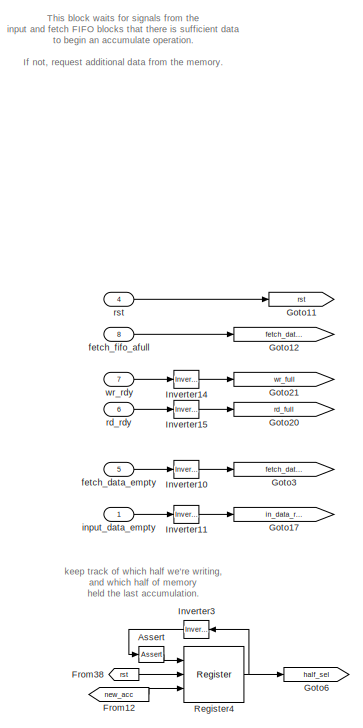
[diagram: hmc_vacc/ctrl - part 1/4, top left region]
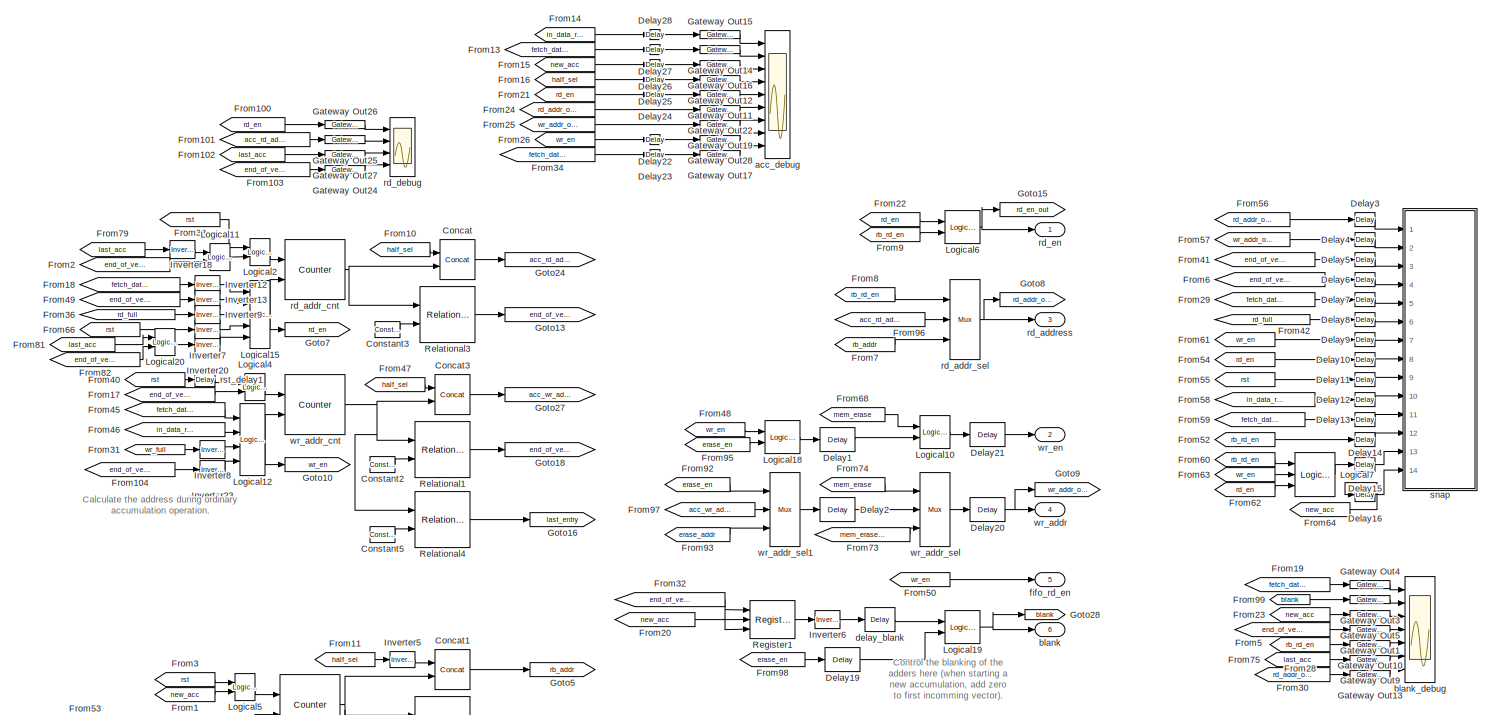
[diagram: hmc_vacc/ctrl - part 2/4, central region]
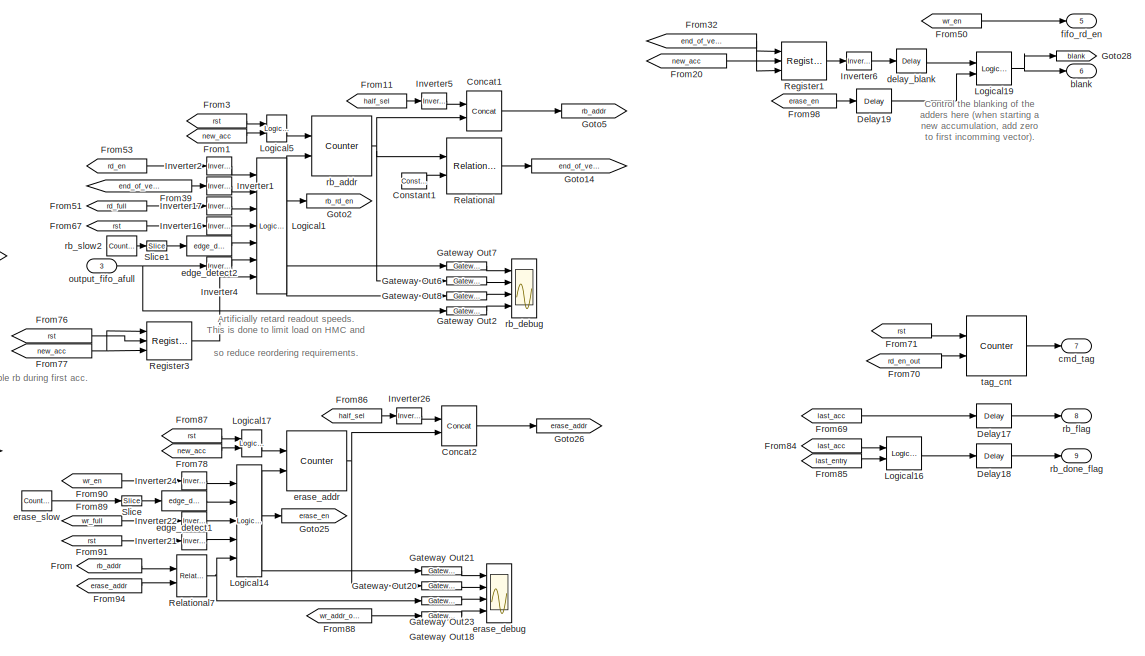
[diagram: hmc_vacc/ctrl - part 3/4, bottom center region]
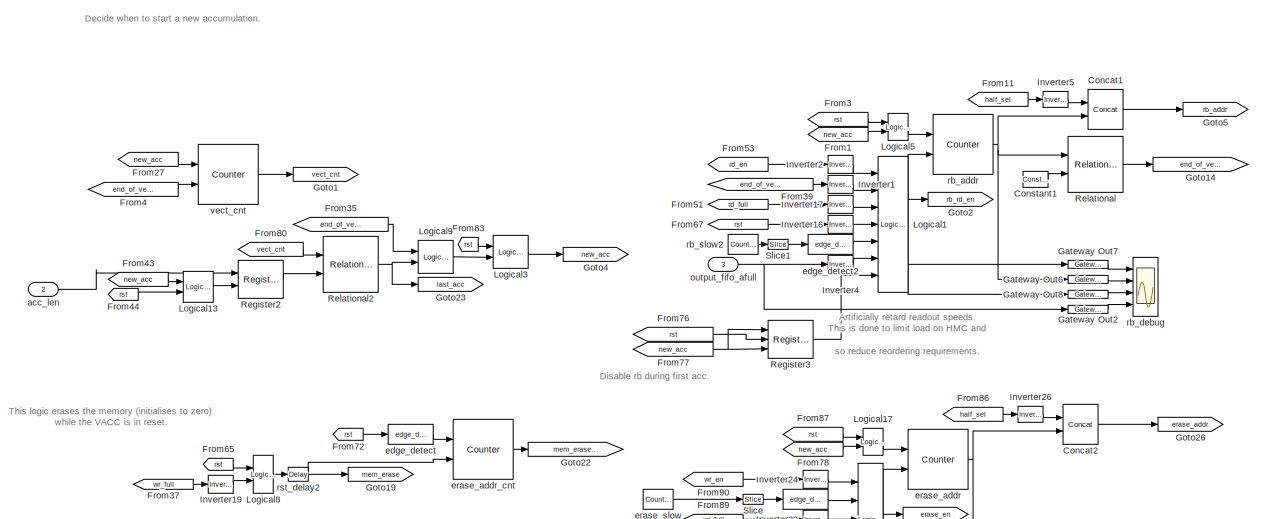
[diagram: hmc_vacc/ctrl - part 4/4, bottom left region]
BLOCK [SubSystem] hmc_vacc/ctrl
  Ports = [8, 9]
  RequestExecContextInheritance = off
  Variant = off
BLOCK [Reference] hmc_vacc/ctrl/Assert  REF=xbsIndex_r4/Assert
  Ports = [1, 1]
  SourceBlock = xbsIndex_r4/Assert
  SourceType = Xilinx Assert Block
BLOCK [Reference] hmc_vacc/ctrl/Concat  REF=xbsIndex_r4/Concat
  Ports = [2, 1]
  SourceBlock = xbsIndex_r4/Concat
  SourceType = Xilinx Bus Concatenator Block
BLOCK [Reference] hmc_vacc/ctrl/Concat1  REF=xbsIndex_r4/Concat
  Ports = [2, 1]
  SourceBlock = xbsIndex_r4/Concat
  SourceType = Xilinx Bus Concatenator Block
BLOCK [Reference] hmc_vacc/ctrl/Concat2  REF=xbsIndex_r4/Concat
  Ports = [2, 1]
  SourceBlock = xbsIndex_r4/Concat
  SourceType = Xilinx Bus Concatenator Block
BLOCK [Reference] hmc_vacc/ctrl/Concat3  REF=xbsIndex_r4/Concat
  Ports = [2, 1]
  SourceBlock = xbsIndex_r4/Concat
  SourceType = Xilinx Bus Concatenator Block
BLOCK [Reference] hmc_vacc/ctrl/Constant1  REF=xbsIndex_r4/Constant
  Ports = [0, 1]
  SourceBlock = xbsIndex_r4/Constant
  SourceType = Xilinx Constant Block Block
BLOCK [Reference] hmc_vacc/ctrl/Constant2  REF=xbsIndex_r4/Constant
  Ports = [0, 1]
  SourceBlock = xbsIndex_r4/Constant
  SourceType = Xilinx Constant Block Block
BLOCK [Reference] hmc_vacc/ctrl/Constant3  REF=xbsIndex_r4/Constant
  Ports = [0, 1]
  SourceBlock = xbsIndex_r4/Constant
  SourceType = Xilinx Constant Block Block
BLOCK [Reference] hmc_vacc/ctrl/Constant5  REF=xbsIndex_r4/Constant
  Ports = [0, 1]
  SourceBlock = xbsIndex_r4/Constant
  SourceType = Xilinx Constant Block Block
BLOCK [Reference] hmc_vacc/ctrl/Delay1  REF=xbsIndex_r4/Delay
  Ports = [1, 1]
  SourceBlock = xbsIndex_r4/Delay
  SourceType = Xilinx Delay Block
BLOCK [Reference] hmc_vacc/ctrl/Delay10  REF=xbsIndex_r4/Delay
  Ports = [1, 1]
  SourceBlock = xbsIndex_r4/Delay
  SourceType = Xilinx Delay Block
BLOCK [Reference] hmc_vacc/ctrl/Delay11  REF=xbsIndex_r4/Delay
  Ports = [1, 1]
  SourceBlock = xbsIndex_r4/Delay
  SourceType = Xilinx Delay Block
BLOCK [Reference] hmc_vacc/ctrl/Delay12  REF=xbsIndex_r4/Delay
  Ports = [1, 1]
  SourceBlock = xbsIndex_r4/Delay
  SourceType = Xilinx Delay Block
BLOCK [Reference] hmc_vacc/ctrl/Delay13  REF=xbsIndex_r4/Delay
  Ports = [1, 1]
  SourceBlock = xbsIndex_r4/Delay
  SourceType = Xilinx Delay Block
BLOCK [Reference] hmc_vacc/ctrl/Delay14  REF=xbsIndex_r4/Delay
  Ports = [1, 1]
  SourceBlock = xbsIndex_r4/Delay
  SourceType = Xilinx Delay Block
BLOCK [Reference] hmc_vacc/ctrl/Delay15  REF=xbsIndex_r4/Delay
  Ports = [1, 1]
  SourceBlock = xbsIndex_r4/Delay
  SourceType = Xilinx Delay Block
BLOCK [Reference] hmc_vacc/ctrl/Delay16  REF=xbsIndex_r4/Delay
  Ports = [1, 1]
  SourceBlock = xbsIndex_r4/Delay
  SourceType = Xilinx Delay Block
BLOCK [Reference] hmc_vacc/ctrl/Delay17  REF=xbsIndex_r4/Delay
  Ports = [1, 1]
  SourceBlock = xbsIndex_r4/Delay
  SourceType = Xilinx Delay Block
BLOCK [Reference] hmc_vacc/ctrl/Delay18  REF=xbsIndex_r4/Delay
  Ports = [1, 1]
  SourceBlock = xbsIndex_r4/Delay
  SourceType = Xilinx Delay Block
BLOCK [Reference] hmc_vacc/ctrl/Delay19  REF=xbsIndex_r4/Delay
  Ports = [1, 1]
  SourceBlock = xbsIndex_r4/Delay
  SourceType = Xilinx Delay Block
BLOCK [Reference] hmc_vacc/ctrl/Delay2  REF=xbsIndex_r4/Delay
  Ports = [1, 1]
  SourceBlock = xbsIndex_r4/Delay
  SourceType = Xilinx Delay Block
BLOCK [Reference] hmc_vacc/ctrl/Delay20  REF=xbsIndex_r4/Delay
  Ports = [1, 1]
  SourceBlock = xbsIndex_r4/Delay
  SourceType = Xilinx Delay Block
BLOCK [Reference] hmc_vacc/ctrl/Delay21  REF=xbsIndex_r4/Delay
  Ports = [1, 1]
  SourceBlock = xbsIndex_r4/Delay
  SourceType = Xilinx Delay Block
BLOCK [Reference] hmc_vacc/ctrl/Delay22  REF=xbsIndex_r4/Delay
  Ports = [1, 1]
  SourceBlock = xbsIndex_r4/Delay
  SourceType = Xilinx Delay Block
BLOCK [Reference] hmc_vacc/ctrl/Delay23  REF=xbsIndex_r4/Delay
  Ports = [1, 1]
  SourceBlock = xbsIndex_r4/Delay
  SourceType = Xilinx Delay Block
BLOCK [Reference] hmc_vacc/ctrl/Delay24  REF=xbsIndex_r4/Delay
  Ports = [1, 1]
  SourceBlock = xbsIndex_r4/Delay
  SourceType = Xilinx Delay Block
BLOCK [Reference] hmc_vacc/ctrl/Delay25  REF=xbsIndex_r4/Delay
  Ports = [1, 1]
  SourceBlock = xbsIndex_r4/Delay
  SourceType = Xilinx Delay Block
BLOCK [Reference] hmc_vacc/ctrl/Delay26  REF=xbsIndex_r4/Delay
  Ports = [1, 1]
  SourceBlock = xbsIndex_r4/Delay
  SourceType = Xilinx Delay Block
BLOCK [Reference] hmc_vacc/ctrl/Delay27  REF=xbsIndex_r4/Delay
  Ports = [1, 1]
  SourceBlock = xbsIndex_r4/Delay
  SourceType = Xilinx Delay Block
BLOCK [Reference] hmc_vacc/ctrl/Delay28  REF=xbsIndex_r4/Delay
  Ports = [1, 1]
  SourceBlock = xbsIndex_r4/Delay
  SourceType = Xilinx Delay Block
BLOCK [Reference] hmc_vacc/ctrl/Delay3  REF=xbsIndex_r4/Delay
  Ports = [1, 1]
  SourceBlock = xbsIndex_r4/Delay
  SourceType = Xilinx Delay Block
BLOCK [Reference] hmc_vacc/ctrl/Delay4  REF=xbsIndex_r4/Delay
  Ports = [1, 1]
  SourceBlock = xbsIndex_r4/Delay
  SourceType = Xilinx Delay Block
BLOCK [Reference] hmc_vacc/ctrl/Delay5  REF=xbsIndex_r4/Delay
  Ports = [1, 1]
  SourceBlock = xbsIndex_r4/Delay
  SourceType = Xilinx Delay Block
BLOCK [Reference] hmc_vacc/ctrl/Delay6  REF=xbsIndex_r4/Delay
  Ports = [1, 1]
  SourceBlock = xbsIndex_r4/Delay
  SourceType = Xilinx Delay Block
BLOCK [Reference] hmc_vacc/ctrl/Delay7  REF=xbsIndex_r4/Delay
  Ports = [1, 1]
  SourceBlock = xbsIndex_r4/Delay
  SourceType = Xilinx Delay Block
BLOCK [Reference] hmc_vacc/ctrl/Delay8  REF=xbsIndex_r4/Delay
  Ports = [1, 1]
  SourceBlock = xbsIndex_r4/Delay
  SourceType = Xilinx Delay Block
BLOCK [Reference] hmc_vacc/ctrl/Delay9  REF=xbsIndex_r4/Delay
  Ports = [1, 1]
  SourceBlock = xbsIndex_r4/Delay
  SourceType = Xilinx Delay Block
BLOCK [From] hmc_vacc/ctrl/From
  GotoTag = rb_addr
BLOCK [From] hmc_vacc/ctrl/From1
  CloseFcn = tagdialog Close
  GotoTag = new_acc
BLOCK [From] hmc_vacc/ctrl/From10
  CloseFcn = tagdialog Close
  GotoTag = half_sel
BLOCK [From] hmc_vacc/ctrl/From100
  GotoTag = rd_en
BLOCK [From] hmc_vacc/ctrl/From101
  GotoTag = acc_rd_addr
BLOCK [From] hmc_vacc/ctrl/From102
  GotoTag = last_acc
BLOCK [From] hmc_vacc/ctrl/From103
  CloseFcn = tagdialog Close
  GotoTag = end_of_vector_rd
BLOCK [From] hmc_vacc/ctrl/From104
  CloseFcn = tagdialog Close
  GotoTag = end_of_vector_wr
BLOCK [From] hmc_vacc/ctrl/From11
  CloseFcn = tagdialog Close
  GotoTag = half_sel
BLOCK [From] hmc_vacc/ctrl/From12
  CloseFcn = tagdialog Close
  GotoTag = new_acc
BLOCK [From] hmc_vacc/ctrl/From13
  CloseFcn = tagdialog Close
  GotoTag = fetch_data_rdy
BLOCK [From] hmc_vacc/ctrl/From14
  CloseFcn = tagdialog Close
  GotoTag = in_data_rdy
BLOCK [From] hmc_vacc/ctrl/From15
  CloseFcn = tagdialog Close
  GotoTag = new_acc
BLOCK [From] hmc_vacc/ctrl/From16
  CloseFcn = tagdialog Close
  GotoTag = half_sel
BLOCK [From] hmc_vacc/ctrl/From17
  CloseFcn = tagdialog Close
  GotoTag = end_of_vector_wr
BLOCK [From] hmc_vacc/ctrl/From18
  CloseFcn = tagdialog Close
  GotoTag = fetch_data_afull
BLOCK [From] hmc_vacc/ctrl/From19
  CloseFcn = tagdialog Close
  GotoTag = fetch_data_rdy
BLOCK [From] hmc_vacc/ctrl/From2
  CloseFcn = tagdialog Close
  GotoTag = end_of_vector_rd
BLOCK [From] hmc_vacc/ctrl/From20
  CloseFcn = tagdialog Close
  GotoTag = new_acc
BLOCK [From] hmc_vacc/ctrl/From21
  CloseFcn = tagdialog Close
  GotoTag = rd_en
BLOCK [From] hmc_vacc/ctrl/From22
  CloseFcn = tagdialog Close
  GotoTag = rd_en
BLOCK [From] hmc_vacc/ctrl/From23
  CloseFcn = tagdialog Close
  GotoTag = new_acc
BLOCK [From] hmc_vacc/ctrl/From24
  CloseFcn = tagdialog Close
  GotoTag = rd_addr_out
BLOCK [From] hmc_vacc/ctrl/From25
  CloseFcn = tagdialog Close
  GotoTag = wr_addr_out
BLOCK [From] hmc_vacc/ctrl/From26
  CloseFcn = tagdialog Close
  GotoTag = wr_en
BLOCK [From] hmc_vacc/ctrl/From27
  CloseFcn = tagdialog Close
  GotoTag = new_acc
BLOCK [From] hmc_vacc/ctrl/From28
  CloseFcn = tagdialog Close
  GotoTag = rb_rd_en
BLOCK [From] hmc_vacc/ctrl/From29
  CloseFcn = tagdialog Close
  GotoTag = fetch_data_afull
BLOCK [From] hmc_vacc/ctrl/From3
  CloseFcn = tagdialog Close
  GotoTag = rst
BLOCK [From] hmc_vacc/ctrl/From30
  CloseFcn = tagdialog Close
  GotoTag = rd_addr_out
BLOCK [From] hmc_vacc/ctrl/From31
  CloseFcn = tagdialog Close
  GotoTag = wr_full
BLOCK [From] hmc_vacc/ctrl/From32
  CloseFcn = tagdialog Close
  GotoTag = end_of_vector_wr
BLOCK [From] hmc_vacc/ctrl/From33
  CloseFcn = tagdialog Close
  GotoTag = rst
BLOCK [From] hmc_vacc/ctrl/From34
  CloseFcn = tagdialog Close
  GotoTag = fetch_data_afull
BLOCK [From] hmc_vacc/ctrl/From35
  CloseFcn = tagdialog Close
  GotoTag = end_of_vector_wr
BLOCK [From] hmc_vacc/ctrl/From36
  CloseFcn = tagdialog Close
  GotoTag = rd_full
BLOCK [From] hmc_vacc/ctrl/From37
  CloseFcn = tagdialog Close
  GotoTag = wr_full
BLOCK [From] hmc_vacc/ctrl/From38
  CloseFcn = tagdialog Close
  GotoTag = rst
BLOCK [From] hmc_vacc/ctrl/From39
  CloseFcn = tagdialog Close
  GotoTag = end_of_vector_rb
BLOCK [From] hmc_vacc/ctrl/From4
  CloseFcn = tagdialog Close
  GotoTag = end_of_vector_wr
BLOCK [From] hmc_vacc/ctrl/From40
  CloseFcn = tagdialog Close
  GotoTag = rst
BLOCK [From] hmc_vacc/ctrl/From41
  CloseFcn = tagdialog Close
  GotoTag = end_of_vector_rd
BLOCK [From] hmc_vacc/ctrl/From42
  CloseFcn = tagdialog Close
  GotoTag = rd_full
BLOCK [From] hmc_vacc/ctrl/From43
  CloseFcn = tagdialog Close
  GotoTag = new_acc
BLOCK [From] hmc_vacc/ctrl/From44
  CloseFcn = tagdialog Close
  GotoTag = rst
BLOCK [From] hmc_vacc/ctrl/From45
  CloseFcn = tagdialog Close
  GotoTag = fetch_data_rdy
BLOCK [From] hmc_vacc/ctrl/From46
  CloseFcn = tagdialog Close
  GotoTag = in_data_rdy
BLOCK [From] hmc_vacc/ctrl/From47
  CloseFcn = tagdialog Close
  GotoTag = half_sel
BLOCK [From] hmc_vacc/ctrl/From48
  CloseFcn = tagdialog Close
  GotoTag = wr_en
BLOCK [From] hmc_vacc/ctrl/From49
  CloseFcn = tagdialog Close
  GotoTag = end_of_vector_rd
BLOCK [From] hmc_vacc/ctrl/From5
  CloseFcn = tagdialog Close
  GotoTag = end_of_vector_wr
BLOCK [From] hmc_vacc/ctrl/From50
  CloseFcn = tagdialog Close
  GotoTag = wr_en
BLOCK [From] hmc_vacc/ctrl/From51
  CloseFcn = tagdialog Close
  GotoTag = rd_full
BLOCK [From] hmc_vacc/ctrl/From52
  CloseFcn = tagdialog Close
  GotoTag = rb_rd_en
BLOCK [From] hmc_vacc/ctrl/From53
  CloseFcn = tagdialog Close
  GotoTag = rd_en
BLOCK [From] hmc_vacc/ctrl/From54
  CloseFcn = tagdialog Close
  GotoTag = rd_en
BLOCK [From] hmc_vacc/ctrl/From55
  CloseFcn = tagdialog Close
  GotoTag = rst
BLOCK [From] hmc_vacc/ctrl/From56
  CloseFcn = tagdialog Close
  GotoTag = rd_addr_out
BLOCK [From] hmc_vacc/ctrl/From57
  CloseFcn = tagdialog Close
  GotoTag = wr_addr_out
BLOCK [From] hmc_vacc/ctrl/From58
  CloseFcn = tagdialog Close
  GotoTag = in_data_rdy
BLOCK [From] hmc_vacc/ctrl/From59
  CloseFcn = tagdialog Close
  GotoTag = fetch_data_rdy
BLOCK [From] hmc_vacc/ctrl/From6
  CloseFcn = tagdialog Close
  GotoTag = end_of_vector_wr
BLOCK [From] hmc_vacc/ctrl/From60
  CloseFcn = tagdialog Close
  GotoTag = rb_rd_en
BLOCK [From] hmc_vacc/ctrl/From61
  CloseFcn = tagdialog Close
  GotoTag = wr_en
BLOCK [From] hmc_vacc/ctrl/From62
  CloseFcn = tagdialog Close
  GotoTag = rd_en
BLOCK [From] hmc_vacc/ctrl/From63
  CloseFcn = tagdialog Close
  GotoTag = wr_en
BLOCK [From] hmc_vacc/ctrl/From64
  CloseFcn = tagdialog Close
  GotoTag = new_acc
BLOCK [From] hmc_vacc/ctrl/From65
  CloseFcn = tagdialog Close
  GotoTag = rst
BLOCK [From] hmc_vacc/ctrl/From66
  CloseFcn = tagdialog Close
  GotoTag = rst
BLOCK [From] hmc_vacc/ctrl/From67
  CloseFcn = tagdialog Close
  GotoTag = rst
BLOCK [From] hmc_vacc/ctrl/From68
  GotoTag = mem_erase
BLOCK [From] hmc_vacc/ctrl/From69
  CloseFcn = tagdialog Close
  GotoTag = last_acc
BLOCK [From] hmc_vacc/ctrl/From7
  CloseFcn = tagdialog Close
  GotoTag = rb_addr
BLOCK [From] hmc_vacc/ctrl/From70
  CloseFcn = tagdialog Close
  GotoTag = rd_en_out
BLOCK [From] hmc_vacc/ctrl/From71
  CloseFcn = tagdialog Close
  GotoTag = rst
BLOCK [From] hmc_vacc/ctrl/From72
  CloseFcn = tagdialog Close
  GotoTag = rst
BLOCK [From] hmc_vacc/ctrl/From73
  GotoTag = mem_erase_addr
BLOCK [From] hmc_vacc/ctrl/From74
  GotoTag = mem_erase
BLOCK [From] hmc_vacc/ctrl/From75
  GotoTag = last_acc
BLOCK [From] hmc_vacc/ctrl/From76
  CloseFcn = tagdialog Close
  GotoTag = rst
BLOCK [From] hmc_vacc/ctrl/From77
  CloseFcn = tagdialog Close
  GotoTag = new_acc
BLOCK [From] hmc_vacc/ctrl/From78
  CloseFcn = tagdialog Close
  GotoTag = new_acc
BLOCK [From] hmc_vacc/ctrl/From79
  GotoTag = last_acc
BLOCK [From] hmc_vacc/ctrl/From8
  CloseFcn = tagdialog Close
  GotoTag = rb_rd_en
BLOCK [From] hmc_vacc/ctrl/From80
  GotoTag = vect_cnt
BLOCK [From] hmc_vacc/ctrl/From81
  GotoTag = last_acc
BLOCK [From] hmc_vacc/ctrl/From82
  CloseFcn = tagdialog Close
  GotoTag = end_of_vector_rd
BLOCK [From] hmc_vacc/ctrl/From83
  GotoTag = rst
BLOCK [From] hmc_vacc/ctrl/From84
  CloseFcn = tagdialog Close
  GotoTag = last_acc
BLOCK [From] hmc_vacc/ctrl/From85
  CloseFcn = tagdialog Close
  GotoTag = last_entry
BLOCK [From] hmc_vacc/ctrl/From86
  CloseFcn = tagdialog Close
  GotoTag = half_sel
BLOCK [From] hmc_vacc/ctrl/From87
  CloseFcn = tagdialog Close
  GotoTag = rst
BLOCK [From] hmc_vacc/ctrl/From88
  GotoTag = wr_addr_out
BLOCK [From] hmc_vacc/ctrl/From89
  CloseFcn = tagdialog Close
  GotoTag = wr_full
BLOCK [From] hmc_vacc/ctrl/From9
  CloseFcn = tagdialog Close
  GotoTag = rb_rd_en
BLOCK [From] hmc_vacc/ctrl/From90
  CloseFcn = tagdialog Close
  GotoTag = wr_en
BLOCK [From] hmc_vacc/ctrl/From91
  CloseFcn = tagdialog Close
  GotoTag = rst
BLOCK [From] hmc_vacc/ctrl/From92
  GotoTag = erase_en
BLOCK [From] hmc_vacc/ctrl/From93
  GotoTag = erase_addr
BLOCK [From] hmc_vacc/ctrl/From94
  GotoTag = erase_addr
BLOCK [From] hmc_vacc/ctrl/From95
  GotoTag = erase_en
BLOCK [From] hmc_vacc/ctrl/From96
  GotoTag = acc_rd_addr
BLOCK [From] hmc_vacc/ctrl/From97
  GotoTag = acc_wr_addr
BLOCK [From] hmc_vacc/ctrl/From98
  GotoTag = erase_en
BLOCK [From] hmc_vacc/ctrl/From99
  GotoTag = blank
BLOCK [Reference] hmc_vacc/ctrl/Gateway Out1  REF=xbsIndex_r4/Gateway Out
  Ports = [1, 1]
  SourceBlock = xbsIndex_r4/Gateway Out
  SourceType = Xilinx Gateway Out Block
BLOCK [Reference] hmc_vacc/ctrl/Gateway Out10  REF=xbsIndex_r4/Gateway Out
  Ports = [1, 1]
  SourceBlock = xbsIndex_r4/Gateway Out
  SourceType = Xilinx Gateway Out Block
BLOCK [Reference] hmc_vacc/ctrl/Gateway Out11  REF=xbsIndex_r4/Gateway Out
  Ports = [1, 1]
  SourceBlock = xbsIndex_r4/Gateway Out
  SourceType = Xilinx Gateway Out Block
BLOCK [Reference] hmc_vacc/ctrl/Gateway Out12  REF=xbsIndex_r4/Gateway Out
  Ports = [1, 1]
  SourceBlock = xbsIndex_r4/Gateway Out
  SourceType = Xilinx Gateway Out Block
BLOCK [Reference] hmc_vacc/ctrl/Gateway Out13  REF=xbsIndex_r4/Gateway Out
  Ports = [1, 1]
  SourceBlock = xbsIndex_r4/Gateway Out
  SourceType = Xilinx Gateway Out Block
BLOCK [Reference] hmc_vacc/ctrl/Gateway Out14  REF=xbsIndex_r4/Gateway Out
  Ports = [1, 1]
  SourceBlock = xbsIndex_r4/Gateway Out
  SourceType = Xilinx Gateway Out Block
BLOCK [Reference] hmc_vacc/ctrl/Gateway Out15  REF=xbsIndex_r4/Gateway Out
  Ports = [1, 1]
  SourceBlock = xbsIndex_r4/Gateway Out
  SourceType = Xilinx Gateway Out Block
BLOCK [Reference] hmc_vacc/ctrl/Gateway Out16  REF=xbsIndex_r4/Gateway Out
  Ports = [1, 1]
  SourceBlock = xbsIndex_r4/Gateway Out
  SourceType = Xilinx Gateway Out Block
BLOCK [Reference] hmc_vacc/ctrl/Gateway Out17  REF=xbsIndex_r4/Gateway Out
  Ports = [1, 1]
  SourceBlock = xbsIndex_r4/Gateway Out
  SourceType = Xilinx Gateway Out Block
BLOCK [Reference] hmc_vacc/ctrl/Gateway Out18  REF=xbsIndex_r4/Gateway Out
  Ports = [1, 1]
  SourceBlock = xbsIndex_r4/Gateway Out
  SourceType = Xilinx Gateway Out Block
BLOCK [Reference] hmc_vacc/ctrl/Gateway Out19  REF=xbsIndex_r4/Gateway Out
  Ports = [1, 1]
  SourceBlock = xbsIndex_r4/Gateway Out
  SourceType = Xilinx Gateway Out Block
BLOCK [Reference] hmc_vacc/ctrl/Gateway Out2  REF=xbsIndex_r4/Gateway Out
  Ports = [1, 1]
  SourceBlock = xbsIndex_r4/Gateway Out
  SourceType = Xilinx Gateway Out Block
BLOCK [Reference] hmc_vacc/ctrl/Gateway Out20  REF=xbsIndex_r4/Gateway Out
  Ports = [1, 1]
  SourceBlock = xbsIndex_r4/Gateway Out
  SourceType = Xilinx Gateway Out Block
BLOCK [Reference] hmc_vacc/ctrl/Gateway Out21  REF=xbsIndex_r4/Gateway Out
  Ports = [1, 1]
  SourceBlock = xbsIndex_r4/Gateway Out
  SourceType = Xilinx Gateway Out Block
BLOCK [Reference] hmc_vacc/ctrl/Gateway Out22  REF=xbsIndex_r4/Gateway Out
  Ports = [1, 1]
  SourceBlock = xbsIndex_r4/Gateway Out
  SourceType = Xilinx Gateway Out Block
BLOCK [Reference] hmc_vacc/ctrl/Gateway Out23  REF=xbsIndex_r4/Gateway Out
  Ports = [1, 1]
  SourceBlock = xbsIndex_r4/Gateway Out
  SourceType = Xilinx Gateway Out Block
BLOCK [Reference] hmc_vacc/ctrl/Gateway Out24  REF=xbsIndex_r4/Gateway Out
  Ports = [1, 1]
  SourceBlock = xbsIndex_r4/Gateway Out
  SourceType = Xilinx Gateway Out Block
BLOCK [Reference] hmc_vacc/ctrl/Gateway Out25  REF=xbsIndex_r4/Gateway Out
  Ports = [1, 1]
  SourceBlock = xbsIndex_r4/Gateway Out
  SourceType = Xilinx Gateway Out Block
BLOCK [Reference] hmc_vacc/ctrl/Gateway Out26  REF=xbsIndex_r4/Gateway Out
  Ports = [1, 1]
  SourceBlock = xbsIndex_r4/Gateway Out
  SourceType = Xilinx Gateway Out Block
BLOCK [Reference] hmc_vacc/ctrl/Gateway Out27  REF=xbsIndex_r4/Gateway Out
  Ports = [1, 1]
  SourceBlock = xbsIndex_r4/Gateway Out
  SourceType = Xilinx Gateway Out Block
BLOCK [Reference] hmc_vacc/ctrl/Gateway Out28  REF=xbsIndex_r4/Gateway Out
  Ports = [1, 1]
  SourceBlock = xbsIndex_r4/Gateway Out
  SourceType = Xilinx Gateway Out Block
BLOCK [Reference] hmc_vacc/ctrl/Gateway Out3  REF=xbsIndex_r4/Gateway Out
  Ports = [1, 1]
  SourceBlock = xbsIndex_r4/Gateway Out
  SourceType = Xilinx Gateway Out Block
BLOCK [Reference] hmc_vacc/ctrl/Gateway Out4  REF=xbsIndex_r4/Gateway Out
  Ports = [1, 1]
  SourceBlock = xbsIndex_r4/Gateway Out
  SourceType = Xilinx Gateway Out Block
BLOCK [Reference] hmc_vacc/ctrl/Gateway Out5  REF=xbsIndex_r4/Gateway Out
  Ports = [1, 1]
  SourceBlock = xbsIndex_r4/Gateway Out
  SourceType = Xilinx Gateway Out Block
BLOCK [Reference] hmc_vacc/ctrl/Gateway Out6  REF=xbsIndex_r4/Gateway Out
  Ports = [1, 1]
  SourceBlock = xbsIndex_r4/Gateway Out
  SourceType = Xilinx Gateway Out Block
BLOCK [Reference] hmc_vacc/ctrl/Gateway Out7  REF=xbsIndex_r4/Gateway Out
  Ports = [1, 1]
  SourceBlock = xbsIndex_r4/Gateway Out
  SourceType = Xilinx Gateway Out Block
BLOCK [Reference] hmc_vacc/ctrl/Gateway Out8  REF=xbsIndex_r4/Gateway Out
  Ports = [1, 1]
  SourceBlock = xbsIndex_r4/Gateway Out
  SourceType = Xilinx Gateway Out Block
BLOCK [Reference] hmc_vacc/ctrl/Gateway Out9  REF=xbsIndex_r4/Gateway Out
  Ports = [1, 1]
  SourceBlock = xbsIndex_r4/Gateway Out
  SourceType = Xilinx Gateway Out Block
BLOCK [Goto] hmc_vacc/ctrl/Goto1
  GotoTag = vect_cnt
BLOCK [Goto] hmc_vacc/ctrl/Goto10
  GotoTag = wr_en
BLOCK [Goto] hmc_vacc/ctrl/Goto11
  GotoTag = rst
BLOCK [Goto] hmc_vacc/ctrl/Goto12
  GotoTag = fetch_data_afull
BLOCK [Goto] hmc_vacc/ctrl/Goto13
  GotoTag = end_of_vector_rd
BLOCK [Goto] hmc_vacc/ctrl/Goto14
  GotoTag = end_of_vector_rb
BLOCK [Goto] hmc_vacc/ctrl/Goto15
  GotoTag = rd_en_out
BLOCK [Goto] hmc_vacc/ctrl/Goto16
  GotoTag = last_entry
BLOCK [Goto] hmc_vacc/ctrl/Goto17
  GotoTag = in_data_rdy
BLOCK [Goto] hmc_vacc/ctrl/Goto18
  GotoTag = end_of_vector_wr
BLOCK [Goto] hmc_vacc/ctrl/Goto19
  GotoTag = mem_erase
BLOCK [Goto] hmc_vacc/ctrl/Goto2
  GotoTag = rb_rd_en
BLOCK [Goto] hmc_vacc/ctrl/Goto20
  GotoTag = rd_full
BLOCK [Goto] hmc_vacc/ctrl/Goto21
  GotoTag = wr_full
BLOCK [Goto] hmc_vacc/ctrl/Goto22
  GotoTag = mem_erase_addr
BLOCK [Goto] hmc_vacc/ctrl/Goto23
  GotoTag = last_acc
BLOCK [Goto] hmc_vacc/ctrl/Goto24
  GotoTag = acc_rd_addr
BLOCK [Goto] hmc_vacc/ctrl/Goto25
  GotoTag = erase_en
BLOCK [Goto] hmc_vacc/ctrl/Goto26
  GotoTag = erase_addr
BLOCK [Goto] hmc_vacc/ctrl/Goto27
  GotoTag = acc_wr_addr
BLOCK [Goto] hmc_vacc/ctrl/Goto28
  GotoTag = blank
BLOCK [Goto] hmc_vacc/ctrl/Goto3
  GotoTag = fetch_data_rdy
BLOCK [Goto] hmc_vacc/ctrl/Goto4
  GotoTag = new_acc
BLOCK [Goto] hmc_vacc/ctrl/Goto5
  GotoTag = rb_addr
BLOCK [Goto] hmc_vacc/ctrl/Goto6
  GotoTag = half_sel
BLOCK [Goto] hmc_vacc/ctrl/Goto7
  GotoTag = rd_en
BLOCK [Goto] hmc_vacc/ctrl/Goto8
  GotoTag = rd_addr_out
BLOCK [Goto] hmc_vacc/ctrl/Goto9
  GotoTag = wr_addr_out
BLOCK [Reference] hmc_vacc/ctrl/Inverter1  REF=xbsIndex_r4/Inverter
  Ports = [1, 1]
  SourceBlock = xbsIndex_r4/Inverter
  SourceType = Xilinx Inverter Block
BLOCK [Reference] hmc_vacc/ctrl/Inverter10  REF=xbsIndex_r4/Inverter
  Ports = [1, 1]
  SourceBlock = xbsIndex_r4/Inverter
  SourceType = Xilinx Inverter Block
BLOCK [Reference] hmc_vacc/ctrl/Inverter11  REF=xbsIndex_r4/Inverter
  Ports = [1, 1]
  SourceBlock = xbsIndex_r4/Inverter
  SourceType = Xilinx Inverter Block
BLOCK [Reference] hmc_vacc/ctrl/Inverter12  REF=xbsIndex_r4/Inverter
  Ports = [1, 1]
  SourceBlock = xbsIndex_r4/Inverter
  SourceType = Xilinx Inverter Block
BLOCK [Reference] hmc_vacc/ctrl/Inverter13  REF=xbsIndex_r4/Inverter
  Ports = [1, 1]
  SourceBlock = xbsIndex_r4/Inverter
  SourceType = Xilinx Inverter Block
BLOCK [Reference] hmc_vacc/ctrl/Inverter14  REF=xbsIndex_r4/Inverter
  Ports = [1, 1]
  SourceBlock = xbsIndex_r4/Inverter
  SourceType = Xilinx Inverter Block
BLOCK [Reference] hmc_vacc/ctrl/Inverter15  REF=xbsIndex_r4/Inverter
  Ports = [1, 1]
  SourceBlock = xbsIndex_r4/Inverter
  SourceType = Xilinx Inverter Block
BLOCK [Reference] hmc_vacc/ctrl/Inverter16  REF=xbsIndex_r4/Inverter
  Ports = [1, 1]
  SourceBlock = xbsIndex_r4/Inverter
  SourceType = Xilinx Inverter Block
BLOCK [Reference] hmc_vacc/ctrl/Inverter17  REF=xbsIndex_r4/Inverter
  Ports = [1, 1]
  SourceBlock = xbsIndex_r4/Inverter
  SourceType = Xilinx Inverter Block
BLOCK [Reference] hmc_vacc/ctrl/Inverter18  REF=xbsIndex_r4/Inverter
  Ports = [1, 1]
  SourceBlock = xbsIndex_r4/Inverter
  SourceType = Xilinx Inverter Block
BLOCK [Reference] hmc_vacc/ctrl/Inverter19  REF=xbsIndex_r4/Inverter
  Ports = [1, 1]
  SourceBlock = xbsIndex_r4/Inverter
  SourceType = Xilinx Inverter Block
BLOCK [Reference] hmc_vacc/ctrl/Inverter2  REF=xbsIndex_r4/Inverter
  Ports = [1, 1]
  SourceBlock = xbsIndex_r4/Inverter
  SourceType = Xilinx Inverter Block
BLOCK [Reference] hmc_vacc/ctrl/Inverter20  REF=xbsIndex_r4/Inverter
  Ports = [1, 1]
  SourceBlock = xbsIndex_r4/Inverter
  SourceType = Xilinx Inverter Block
BLOCK [Reference] hmc_vacc/ctrl/Inverter21  REF=xbsIndex_r4/Inverter
  Ports = [1, 1]
  SourceBlock = xbsIndex_r4/Inverter
  SourceType = Xilinx Inverter Block
BLOCK [Reference] hmc_vacc/ctrl/Inverter22  REF=xbsIndex_r4/Inverter
  Ports = [1, 1]
  SourceBlock = xbsIndex_r4/Inverter
  SourceType = Xilinx Inverter Block
BLOCK [Reference] hmc_vacc/ctrl/Inverter23  REF=xbsIndex_r4/Inverter
  Ports = [1, 1]
  SourceBlock = xbsIndex_r4/Inverter
  SourceType = Xilinx Inverter Block
BLOCK [Reference] hmc_vacc/ctrl/Inverter24  REF=xbsIndex_r4/Inverter
  Ports = [1, 1]
  SourceBlock = xbsIndex_r4/Inverter
  SourceType = Xilinx Inverter Block
BLOCK [Reference] hmc_vacc/ctrl/Inverter26  REF=xbsIndex_r4/Inverter
  Ports = [1, 1]
  SourceBlock = xbsIndex_r4/Inverter
  SourceType = Xilinx Inverter Block
BLOCK [Reference] hmc_vacc/ctrl/Inverter3  REF=xbsIndex_r4/Inverter
  Ports = [1, 1]
  SourceBlock = xbsIndex_r4/Inverter
  SourceType = Xilinx Inverter Block
BLOCK [Reference] hmc_vacc/ctrl/Inverter4  REF=xbsIndex_r4/Inverter
  Ports = [1, 1]
  SourceBlock = xbsIndex_r4/Inverter
  SourceType = Xilinx Inverter Block
BLOCK [Reference] hmc_vacc/ctrl/Inverter5  REF=xbsIndex_r4/Inverter
  Ports = [1, 1]
  SourceBlock = xbsIndex_r4/Inverter
  SourceType = Xilinx Inverter Block
BLOCK [Reference] hmc_vacc/ctrl/Inverter6  REF=xbsIndex_r4/Inverter
  Ports = [1, 1]
  SourceBlock = xbsIndex_r4/Inverter
  SourceType = Xilinx Inverter Block
BLOCK [Reference] hmc_vacc/ctrl/Inverter7  REF=xbsIndex_r4/Inverter
  Ports = [1, 1]
  SourceBlock = xbsIndex_r4/Inverter
  SourceType = Xilinx Inverter Block
BLOCK [Reference] hmc_vacc/ctrl/Inverter8  REF=xbsIndex_r4/Inverter
  Ports = [1, 1]
  SourceBlock = xbsIndex_r4/Inverter
  SourceType = Xilinx Inverter Block
BLOCK [Reference] hmc_vacc/ctrl/Inverter9  REF=xbsIndex_r4/Inverter
  Ports = [1, 1]
  SourceBlock = xbsIndex_r4/Inverter
  SourceType = Xilinx Inverter Block
BLOCK [Reference] hmc_vacc/ctrl/Logical1  REF=xbsIndex_r4/Logical
  Ports = [7, 1]
  SourceBlock = xbsIndex_r4/Logical
  SourceType = Xilinx Logical Block Block
BLOCK [Reference] hmc_vacc/ctrl/Logical10  REF=xbsIndex_r4/Logical
  Ports = [2, 1]
  SourceBlock = xbsIndex_r4/Logical
  SourceType = Xilinx Logical Block Block
BLOCK [Reference] hmc_vacc/ctrl/Logical11  REF=xbsIndex_r4/Logical
  Ports = [2, 1]
  SourceBlock = xbsIndex_r4/Logical
  SourceType = Xilinx Logical Block Block
BLOCK [Reference] hmc_vacc/ctrl/Logical12  REF=xbsIndex_r4/Logical
  Ports = [4, 1]
  SourceBlock = xbsIndex_r4/Logical
  SourceType = Xilinx Logical Block Block
BLOCK [Reference] hmc_vacc/ctrl/Logical13  REF=xbsIndex_r4/Logical
  Ports = [2, 1]
  SourceBlock = xbsIndex_r4/Logical
  SourceType = Xilinx Logical Block Block
BLOCK [Reference] hmc_vacc/ctrl/Logical14  REF=xbsIndex_r4/Logical
  Ports = [5, 1]
  SourceBlock = xbsIndex_r4/Logical
  SourceType = Xilinx Logical Block Block
BLOCK [Reference] hmc_vacc/ctrl/Logical15  REF=xbsIndex_r4/Logical
  Ports = [5, 1]
  SourceBlock = xbsIndex_r4/Logical
  SourceType = Xilinx Logical Block Block
BLOCK [Reference] hmc_vacc/ctrl/Logical16  REF=xbsIndex_r4/Logical
  Ports = [2, 1]
  SourceBlock = xbsIndex_r4/Logical
  SourceType = Xilinx Logical Block Block
BLOCK [Reference] hmc_vacc/ctrl/Logical17  REF=xbsIndex_r4/Logical
  Ports = [2, 1]
  SourceBlock = xbsIndex_r4/Logical
  SourceType = Xilinx Logical Block Block
BLOCK [Reference] hmc_vacc/ctrl/Logical18  REF=xbsIndex_r4/Logical
  Ports = [2, 1]
  SourceBlock = xbsIndex_r4/Logical
  SourceType = Xilinx Logical Block Block
BLOCK [Reference] hmc_vacc/ctrl/Logical19  REF=xbsIndex_r4/Logical
  Ports = [2, 1]
  SourceBlock = xbsIndex_r4/Logical
  SourceType = Xilinx Logical Block Block
BLOCK [Reference] hmc_vacc/ctrl/Logical2  REF=xbsIndex_r4/Logical
  Ports = [2, 1]
  SourceBlock = xbsIndex_r4/Logical
  SourceType = Xilinx Logical Block Block
BLOCK [Reference] hmc_vacc/ctrl/Logical20  REF=xbsIndex_r4/Logical
  Ports = [2, 1]
  SourceBlock = xbsIndex_r4/Logical
  SourceType = Xilinx Logical Block Block
BLOCK [Reference] hmc_vacc/ctrl/Logical3  REF=xbsIndex_r4/Logical
  Ports = [2, 1]
  SourceBlock = xbsIndex_r4/Logical
  SourceType = Xilinx Logical Block Block
BLOCK [Reference] hmc_vacc/ctrl/Logical4  REF=xbsIndex_r4/Logical
  Ports = [2, 1]
  SourceBlock = xbsIndex_r4/Logical
  SourceType = Xilinx Logical Block Block
BLOCK [Reference] hmc_vacc/ctrl/Logical5  REF=xbsIndex_r4/Logical
  Ports = [2, 1]
  SourceBlock = xbsIndex_r4/Logical
  SourceType = Xilinx Logical Block Block
BLOCK [Reference] hmc_vacc/ctrl/Logical6  REF=xbsIndex_r4/Logical
  Ports = [2, 1]
  SourceBlock = xbsIndex_r4/Logical
  SourceType = Xilinx Logical Block Block
BLOCK [Reference] hmc_vacc/ctrl/Logical7  REF=xbsIndex_r4/Logical
  Ports = [3, 1]
  SourceBlock = xbsIndex_r4/Logical
  SourceType = Xilinx Logical Block Block
BLOCK [Reference] hmc_vacc/ctrl/Logical8  REF=xbsIndex_r4/Logical
  Ports = [2, 1]
  SourceBlock = xbsIndex_r4/Logical
  SourceType = Xilinx Logical Block Block
BLOCK [Reference] hmc_vacc/ctrl/Logical9  REF=xbsIndex_r4/Logical
  Ports = [2, 1]
  SourceBlock = xbsIndex_r4/Logical
  SourceType = Xilinx Logical Block Block
BLOCK [Reference] hmc_vacc/ctrl/Register1  REF=xbsIndex_r4/Register
  Ports = [3, 1]
  SourceBlock = xbsIndex_r4/Register
  SourceType = Xilinx Register Block
BLOCK [Reference] hmc_vacc/ctrl/Register2  REF=xbsIndex_r4/Register
  Ports = [2, 1]
  SourceBlock = xbsIndex_r4/Register
  SourceType = Xilinx Register Block
BLOCK [Reference] hmc_vacc/ctrl/Register3  REF=xbsIndex_r4/Register
  Ports = [3, 1]
  SourceBlock = xbsIndex_r4/Register
  SourceType = Xilinx Register Block
BLOCK [Reference] hmc_vacc/ctrl/Register4  REF=xbsIndex_r4/Register
  Ports = [3, 1]
  SourceBlock = xbsIndex_r4/Register
  SourceType = Xilinx Register Block
BLOCK [Reference] hmc_vacc/ctrl/Relational  REF=xbsIndex_r4/Relational
  Ports = [2, 1]
  SourceBlock = xbsIndex_r4/Relational
  SourceType = Xilinx Arithmetic Relational Operator Block
BLOCK [Reference] hmc_vacc/ctrl/Relational1  REF=xbsIndex_r4/Relational
  Ports = [2, 1]
  SourceBlock = xbsIndex_r4/Relational
  SourceType = Xilinx Arithmetic Relational Operator Block
BLOCK [Reference] hmc_vacc/ctrl/Relational2  REF=xbsIndex_r4/Relational
  Ports = [2, 1]
  SourceBlock = xbsIndex_r4/Relational
  SourceType = Xilinx Arithmetic Relational Operator Block
BLOCK [Reference] hmc_vacc/ctrl/Relational3  REF=xbsIndex_r4/Relational
  Ports = [2, 1]
  SourceBlock = xbsIndex_r4/Relational
  SourceType = Xilinx Arithmetic Relational Operator Block
BLOCK [Reference] hmc_vacc/ctrl/Relational4  REF=xbsIndex_r4/Relational
  Ports = [2, 1]
  SourceBlock = xbsIndex_r4/Relational
  SourceType = Xilinx Arithmetic Relational Operator Block
BLOCK [Reference] hmc_vacc/ctrl/Relational7  REF=xbsIndex_r4/Relational
  Ports = [2, 1]
  SourceBlock = xbsIndex_r4/Relational
  SourceType = Xilinx Arithmetic Relational Operator Block
BLOCK [Reference] hmc_vacc/ctrl/Slice  REF=xbsIndex_r4/Slice
  Ports = [1, 1]
  SourceBlock = xbsIndex_r4/Slice
  SourceType = Xilinx Bit Slice Extractor Block
BLOCK [Reference] hmc_vacc/ctrl/Slice1  REF=xbsIndex_r4/Slice
  Ports = [1, 1]
  SourceBlock = xbsIndex_r4/Slice
  SourceType = Xilinx Bit Slice Extractor Block
BLOCK [Scope] hmc_vacc/ctrl/acc_debug
  NumInputPorts = 9
  Ports = [9]
  ScopeSpecificationString = Simulink.scopes.TimeScopeBlockCfg('CurrentConfiguration', extmgr.ConfigurationSet(extmgr.Configuration('Core','General UI',true),extmgr.Configuration('Core','Source UI',true),extmgr.Configuration('Sources','WiredSimulink',true,'DataLoggingVariableName','ScopeData5','DataLoggingSaveFormat','StructureWithTime','DataLoggingDecimation','1','DataLoggingDecimateData',true),extmgr.Configuration('Visuals'...<+7172ch>
BLOCK [Inport] hmc_vacc/ctrl/acc_len
  IconDisplay = Port number
  Port = 2
BLOCK [Outport] hmc_vacc/ctrl/blank
  IconDisplay = Port number
  Port = 6
BLOCK [Scope] hmc_vacc/ctrl/blank_debug
  NumInputPorts = 7
  Ports = [7]
  ScopeSpecificationString = Simulink.scopes.TimeScopeBlockCfg('CurrentConfiguration', extmgr.ConfigurationSet(extmgr.Configuration('Core','General UI',true),extmgr.Configuration('Core','Source UI',true),extmgr.Configuration('Sources','WiredSimulink',true,'DataLoggingVariableName','ScopeData6','DataLoggingSaveFormat','StructureWithTime','DataLoggingDecimation','1','DataLoggingDecimateData',true),extmgr.Configuration('Visuals'...<+5791ch>
BLOCK [Outport] hmc_vacc/ctrl/cmd_tag
  IconDisplay = Port number
  Port = 7
BLOCK [Reference] hmc_vacc/ctrl/delay_blank  REF=xbsIndex_r4/Delay
  Ports = [1, 1]
  SourceBlock = xbsIndex_r4/Delay
  SourceType = Xilinx Delay Block
BLOCK [Reference] hmc_vacc/ctrl/edge_detect  REF=casper_library_misc/edge_detect  (lib defined in mdl_357510c33b49, mdl_57b5f564ae26, +4 more)
  AttributesFormatString = rising edges\nactive high
  Ports = [1, 1]
  SourceBlock = casper_library_misc/edge_detect
  SourceType = edge_detect
  UserDataPersistent = on
BLOCK [Reference] hmc_vacc/ctrl/edge_detect1  REF=casper_library_misc/edge_detect  (lib defined in mdl_357510c33b49, mdl_57b5f564ae26, +4 more)
  AttributesFormatString = rising edges\nactive high
  Ports = [1, 1]
  SourceBlock = casper_library_misc/edge_detect
  SourceType = edge_detect
  UserDataPersistent = on
BLOCK [Reference] hmc_vacc/ctrl/edge_detect2  REF=casper_library_misc/edge_detect  (lib defined in mdl_357510c33b49, mdl_57b5f564ae26, +4 more)
  AttributesFormatString = rising edges\nactive high
  Ports = [1, 1]
  SourceBlock = casper_library_misc/edge_detect
  SourceType = edge_detect
  UserDataPersistent = on
BLOCK [Reference] hmc_vacc/ctrl/erase_addr  REF=xbsIndex_r4/Counter
  Ports = [2, 1]
  SourceBlock = xbsIndex_r4/Counter
  SourceType = Xilinx Counter Block
BLOCK [Reference] hmc_vacc/ctrl/erase_addr_cnt  REF=xbsIndex_r4/Counter
  Ports = [2, 1]
  SourceBlock = xbsIndex_r4/Counter
  SourceType = Xilinx Counter Block
BLOCK [Scope] hmc_vacc/ctrl/erase_debug
  NumInputPorts = 4
  Ports = [4]
  ScopeSpecificationString = Simulink.scopes.TimeScopeBlockCfg('CurrentConfiguration', extmgr.ConfigurationSet(extmgr.Configuration('Core','General UI',true),extmgr.Configuration('Core','Source UI',true),extmgr.Configuration('Sources','WiredSimulink',true,'DataLoggingVariableName','ScopeData2','DataLoggingSaveFormat','StructureWithTime','DataLoggingDecimation','1','DataLoggingDecimateData',true),extmgr.Configuration('Visuals'...<+3708ch>
BLOCK [Reference] hmc_vacc/ctrl/erase_slow  REF=xbsIndex_r4/Counter
  Ports = [0, 1]
  SourceBlock = xbsIndex_r4/Counter
  SourceType = Xilinx Counter Block
BLOCK [Inport] hmc_vacc/ctrl/fetch_data_empty
  IconDisplay = Port number
  Port = 5
BLOCK [Inport] hmc_vacc/ctrl/fetch_fifo_afull
  IconDisplay = Port number
  Port = 8
BLOCK [Outport] hmc_vacc/ctrl/fifo_rd_en
  IconDisplay = Port number
  Port = 5
BLOCK [Inport] hmc_vacc/ctrl/input_data_empty
  IconDisplay = Port number
BLOCK [Inport] hmc_vacc/ctrl/output_fifo_afull
  IconDisplay = Port number
  Port = 3
BLOCK [Reference] hmc_vacc/ctrl/rb_addr  REF=xbsIndex_r4/Counter
  Ports = [2, 1]
  SourceBlock = xbsIndex_r4/Counter
  SourceType = Xilinx Counter Block
BLOCK [Scope] hmc_vacc/ctrl/rb_debug
  NumInputPorts = 4
  Ports = [4]
  ScopeSpecificationString = Simulink.scopes.TimeScopeBlockCfg('CurrentConfiguration', extmgr.ConfigurationSet(extmgr.Configuration('Core','General UI',true),extmgr.Configuration('Core','Source UI',true),extmgr.Configuration('Sources','WiredSimulink',true,'DataLoggingVariableName','ScopeData5','DataLoggingSaveFormat','StructureWithTime','DataLoggingDecimation','1','DataLoggingDecimateData',true),extmgr.Configuration('Visuals'...<+3779ch>
BLOCK [Outport] hmc_vacc/ctrl/rb_done_flag
  IconDisplay = Port number
  Port = 9
BLOCK [Outport] hmc_vacc/ctrl/rb_flag
  IconDisplay = Port number
  Port = 8
BLOCK [Reference] hmc_vacc/ctrl/rb_slow2  REF=xbsIndex_r4/Counter
  Ports = [0, 1]
  SourceBlock = xbsIndex_r4/Counter
  SourceType = Xilinx Counter Block
BLOCK [Reference] hmc_vacc/ctrl/rd_addr_cnt  REF=xbsIndex_r4/Counter
  Ports = [2, 1]
  SourceBlock = xbsIndex_r4/Counter
  SourceType = Xilinx Counter Block
BLOCK [Reference] hmc_vacc/ctrl/rd_addr_sel  REF=xbsIndex_r4/Mux
  Ports = [3, 1]
  SourceBlock = xbsIndex_r4/Mux
  SourceType = Xilinx Bus Multiplexer Block
BLOCK [Outport] hmc_vacc/ctrl/rd_address
  IconDisplay = Port number
  Port = 3
BLOCK [Scope] hmc_vacc/ctrl/rd_debug
  NumInputPorts = 4
  Ports = [4]
  ScopeSpecificationString = Simulink.scopes.TimeScopeBlockCfg('CurrentConfiguration', extmgr.ConfigurationSet(extmgr.Configuration('Core','General UI',true),extmgr.Configuration('Core','Source UI',true),extmgr.Configuration('Sources','WiredSimulink',true,'DataLoggingVariableName','ScopeData3','DataLoggingSaveFormat','StructureWithTime','DataLoggingDecimation','1','DataLoggingDecimateData',true),extmgr.Configuration('Visuals'...<+3707ch>
BLOCK [Outport] hmc_vacc/ctrl/rd_en
  IconDisplay = Port number
BLOCK [Inport] hmc_vacc/ctrl/rd_rdy
  IconDisplay = Port number
  Port = 6
BLOCK [Inport] hmc_vacc/ctrl/rst
  IconDisplay = Port number
  Port = 4
BLOCK [Reference] hmc_vacc/ctrl/rst_delay1  REF=xbsIndex_r4/Delay
  Ports = [1, 1]
  SourceBlock = xbsIndex_r4/Delay
  SourceType = Xilinx Delay Block
BLOCK [Reference] hmc_vacc/ctrl/rst_delay2  REF=xbsIndex_r4/Delay
  Ports = [1, 1]
  SourceBlock = xbsIndex_r4/Delay
  SourceType = Xilinx Delay Block
BLOCK [SubSystem] hmc_vacc/ctrl/snap
  AncestorBlock = casper_library_scopes/bitfield snapshot
  AttributesFormatString = snap(12):uf11.0,uf11.0,b,b,b,b,b,b,b,b,b,b = 32 bits
  Ports = [14]
  RequestExecContextInheritance = off
  Tag = casper:bitsnap
  UserDataPersistent = on
  Variant = off
BLOCK [Reference] hmc_vacc/ctrl/snap/assert_eov_rd  REF=xbsIndex_r4/Assert
  Ports = [1, 1]
  SourceBlock = xbsIndex_r4/Assert
  SourceType = Xilinx Assert Block
BLOCK [Reference] hmc_vacc/ctrl/snap/assert_eov_wr  REF=xbsIndex_r4/Assert
  Ports = [1, 1]
  SourceBlock = xbsIndex_r4/Assert
  SourceType = Xilinx Assert Block
BLOCK [Reference] hmc_vacc/ctrl/snap/assert_fetch_afull  REF=xbsIndex_r4/Assert
  Ports = [1, 1]
  SourceBlock = xbsIndex_r4/Assert
  SourceType = Xilinx Assert Block
BLOCK [Reference] hmc_vacc/ctrl/snap/assert_fetch_data_rdy  REF=xbsIndex_r4/Assert
  Ports = [1, 1]
  SourceBlock = xbsIndex_r4/Assert
  SourceType = Xilinx Assert Block
BLOCK [Reference] hmc_vacc/ctrl/snap/assert_in_data_rdy  REF=xbsIndex_r4/Assert
  Ports = [1, 1]
  SourceBlock = xbsIndex_r4/Assert
  SourceType = Xilinx Assert Block
BLOCK [Reference] hmc_vacc/ctrl/snap/assert_rb_rd_en  REF=xbsIndex_r4/Assert
  Ports = [1, 1]
  SourceBlock = xbsIndex_r4/Assert
  SourceType = Xilinx Assert Block
BLOCK [Reference] hmc_vacc/ctrl/snap/assert_rd_addr  REF=xbsIndex_r4/Assert
  Ports = [1, 1]
  SourceBlock = xbsIndex_r4/Assert
  SourceType = Xilinx Assert Block
BLOCK [Reference] hmc_vacc/ctrl/snap/assert_rd_en  REF=xbsIndex_r4/Assert
  Ports = [1, 1]
  SourceBlock = xbsIndex_r4/Assert
  SourceType = Xilinx Assert Block
BLOCK [Reference] hmc_vacc/ctrl/snap/assert_rd_full  REF=xbsIndex_r4/Assert
  Ports = [1, 1]
  SourceBlock = xbsIndex_r4/Assert
  SourceType = Xilinx Assert Block
BLOCK [Reference] hmc_vacc/ctrl/snap/assert_rst  REF=xbsIndex_r4/Assert
  Ports = [1, 1]
  SourceBlock = xbsIndex_r4/Assert
  SourceType = Xilinx Assert Block
BLOCK [Reference] hmc_vacc/ctrl/snap/assert_wr_addr  REF=xbsIndex_r4/Assert
  Ports = [1, 1]
  SourceBlock = xbsIndex_r4/Assert
  SourceType = Xilinx Assert Block
BLOCK [Reference] hmc_vacc/ctrl/snap/assert_wr_en  REF=xbsIndex_r4/Assert
  Ports = [1, 1]
  SourceBlock = xbsIndex_r4/Assert
  SourceType = Xilinx Assert Block
BLOCK [SubSystem] hmc_vacc/ctrl/snap/buscreate
  AncestorBlock = casper_library_flow_control/bus_create
  Ports = [12, 1]
  RequestExecContextInheritance = off
  UserDataPersistent = on
  Variant = off
BLOCK [Outport] hmc_vacc/ctrl/snap/buscreate/bus_out
  IconDisplay = Port number
BLOCK [Reference] hmc_vacc/ctrl/snap/buscreate/concatenate  REF=xbsIndex_r4/Concat
  Ports = [12, 1]
  SourceBlock = xbsIndex_r4/Concat
  SourceType = Xilinx Bus Concatenator Block
BLOCK [Inport] hmc_vacc/ctrl/snap/buscreate/in1
  IconDisplay = Port number
BLOCK [Inport] hmc_vacc/ctrl/snap/buscreate/in10
  IconDisplay = Port number
  Port = 10
BLOCK [Inport] hmc_vacc/ctrl/snap/buscreate/in11
  IconDisplay = Port number
  Port = 11
BLOCK [Inport] hmc_vacc/ctrl/snap/buscreate/in12
  IconDisplay = Port number
  Port = 12
BLOCK [Inport] hmc_vacc/ctrl/snap/buscreate/in2
  IconDisplay = Port number
  Port = 2
BLOCK [Inport] hmc_vacc/ctrl/snap/buscreate/in3
  IconDisplay = Port number
  Port = 3
BLOCK [Inport] hmc_vacc/ctrl/snap/buscreate/in4
  IconDisplay = Port number
  Port = 4
BLOCK [Inport] hmc_vacc/ctrl/snap/buscreate/in5
  IconDisplay = Port number
  Port = 5
BLOCK [Inport] hmc_vacc/ctrl/snap/buscreate/in6
  IconDisplay = Port number
  Port = 6
BLOCK [Inport] hmc_vacc/ctrl/snap/buscreate/in7
  IconDisplay = Port number
  Port = 7
BLOCK [Inport] hmc_vacc/ctrl/snap/buscreate/in8
  IconDisplay = Port number
  Port = 8
BLOCK [Inport] hmc_vacc/ctrl/snap/buscreate/in9
  IconDisplay = Port number
  Port = 9
BLOCK [Reference] hmc_vacc/ctrl/snap/buscreate/reinterpret1  REF=xbsIndex_r4/Reinterpret
  Ports = [1, 1]
  SourceBlock = xbsIndex_r4/Reinterpret
  SourceType = Xilinx Type Reinterpreter Block
BLOCK [Reference] hmc_vacc/ctrl/snap/buscreate/reinterpret10  REF=xbsIndex_r4/Reinterpret
  Ports = [1, 1]
  SourceBlock = xbsIndex_r4/Reinterpret
  SourceType = Xilinx Type Reinterpreter Block
BLOCK [Reference] hmc_vacc/ctrl/snap/buscreate/reinterpret11  REF=xbsIndex_r4/Reinterpret
  Ports = [1, 1]
  SourceBlock = xbsIndex_r4/Reinterpret
  SourceType = Xilinx Type Reinterpreter Block
BLOCK [Reference] hmc_vacc/ctrl/snap/buscreate/reinterpret12  REF=xbsIndex_r4/Reinterpret
  Ports = [1, 1]
  SourceBlock = xbsIndex_r4/Reinterpret
  SourceType = Xilinx Type Reinterpreter Block
BLOCK [Reference] hmc_vacc/ctrl/snap/buscreate/reinterpret2  REF=xbsIndex_r4/Reinterpret
  Ports = [1, 1]
  SourceBlock = xbsIndex_r4/Reinterpret
  SourceType = Xilinx Type Reinterpreter Block
BLOCK [Reference] hmc_vacc/ctrl/snap/buscreate/reinterpret3  REF=xbsIndex_r4/Reinterpret
  Ports = [1, 1]
  SourceBlock = xbsIndex_r4/Reinterpret
  SourceType = Xilinx Type Reinterpreter Block
BLOCK [Reference] hmc_vacc/ctrl/snap/buscreate/reinterpret4  REF=xbsIndex_r4/Reinterpret
  Ports = [1, 1]
  SourceBlock = xbsIndex_r4/Reinterpret
  SourceType = Xilinx Type Reinterpreter Block
BLOCK [Reference] hmc_vacc/ctrl/snap/buscreate/reinterpret5  REF=xbsIndex_r4/Reinterpret
  Ports = [1, 1]
  SourceBlock = xbsIndex_r4/Reinterpret
  SourceType = Xilinx Type Reinterpreter Block
BLOCK [Reference] hmc_vacc/ctrl/snap/buscreate/reinterpret6  REF=xbsIndex_r4/Reinterpret
  Ports = [1, 1]
  SourceBlock = xbsIndex_r4/Reinterpret
  SourceType = Xilinx Type Reinterpreter Block
BLOCK [Reference] hmc_vacc/ctrl/snap/buscreate/reinterpret7  REF=xbsIndex_r4/Reinterpret
  Ports = [1, 1]
  SourceBlock = xbsIndex_r4/Reinterpret
  SourceType = Xilinx Type Reinterpreter Block
BLOCK [Reference] hmc_vacc/ctrl/snap/buscreate/reinterpret8  REF=xbsIndex_r4/Reinterpret
  Ports = [1, 1]
  SourceBlock = xbsIndex_r4/Reinterpret
  SourceType = Xilinx Type Reinterpreter Block
BLOCK [Reference] hmc_vacc/ctrl/snap/buscreate/reinterpret9  REF=xbsIndex_r4/Reinterpret
  Ports = [1, 1]
  SourceBlock = xbsIndex_r4/Reinterpret
  SourceType = Xilinx Type Reinterpreter Block
BLOCK [Inport] hmc_vacc/ctrl/snap/in_eov_rd
  IconDisplay = Port number
  Port = 3
BLOCK [Inport] hmc_vacc/ctrl/snap/in_eov_wr
  IconDisplay = Port number
  Port = 4
BLOCK [Inport] hmc_vacc/ctrl/snap/in_fetch_afull
  IconDisplay = Port number
  Port = 5
BLOCK [Inport] hmc_vacc/ctrl/snap/in_fetch_data_rdy
  IconDisplay = Port number
  Port = 11
BLOCK [Inport] hmc_vacc/ctrl/snap/in_in_data_rdy
  IconDisplay = Port number
  Port = 10
BLOCK [Inport] hmc_vacc/ctrl/snap/in_rb_rd_en
  IconDisplay = Port number
  Port = 12
BLOCK [Inport] hmc_vacc/ctrl/snap/in_rd_addr
  IconDisplay = Port number
BLOCK [Inport] hmc_vacc/ctrl/snap/in_rd_en
  IconDisplay = Port number
  Port = 8
BLOCK [Inport] hmc_vacc/ctrl/snap/in_rd_full
  IconDisplay = Port number
  Port = 6
BLOCK [Inport] hmc_vacc/ctrl/snap/in_rst
  IconDisplay = Port number
  Port = 9
BLOCK [Inport] hmc_vacc/ctrl/snap/in_wr_addr
  IconDisplay = Port number
  Port = 2
BLOCK [Inport] hmc_vacc/ctrl/snap/in_wr_en
  IconDisplay = Port number
  Port = 7
BLOCK [SubSystem] hmc_vacc/ctrl/snap/ss
  AncestorBlock = casper_library_scopes/snapshot
  Ports = [3]
  RequestExecContextInheritance = off
  Tag = casper:snapshot
  UserDataPersistent = on
  Variant = off
BLOCK [Reference] hmc_vacc/ctrl/snap/ss/add_del  REF=xbsIndex_r4/Delay
  Ports = [1, 1]
  SourceBlock = xbsIndex_r4/Delay
  SourceType = Xilinx Delay Block
BLOCK [SubSystem] hmc_vacc/ctrl/snap/ss/add_gen
  AncestorBlock = casper_library_scopes/snapshot/add_gen
  Ports = [6, 6]
  RequestExecContextInheritance = off
  Variant = off
BLOCK [Reference] hmc_vacc/ctrl/snap/ss/add_gen/Concat  REF=xbsIndex_r4/Concat
  Ports = [3, 1]
  SourceBlock = xbsIndex_r4/Concat
  SourceType = Xilinx Bus Concatenator Block
BLOCK [Reference] hmc_vacc/ctrl/snap/ss/add_gen/Convert  REF=xbsIndex_r4/Convert
  Ports = [1, 1]
  SourceBlock = xbsIndex_r4/Convert
  SourceType = Xilinx Type Converter Block
BLOCK [Reference] hmc_vacc/ctrl/snap/ss/add_gen/Delay  REF=xbsIndex_r4/Delay
  Ports = [1, 1]
  SourceBlock = xbsIndex_r4/Delay
  SourceType = Xilinx Delay Block
BLOCK [Reference] hmc_vacc/ctrl/snap/ss/add_gen/Delay1  REF=xbsIndex_r4/Delay
  Ports = [1, 1]
  SourceBlock = xbsIndex_r4/Delay
  SourceType = Xilinx Delay Block
BLOCK [Reference] hmc_vacc/ctrl/snap/ss/add_gen/Delay2  REF=xbsIndex_r4/Delay
  Ports = [1, 1]
  SourceBlock = xbsIndex_r4/Delay
  SourceType = Xilinx Delay Block
BLOCK [Reference] hmc_vacc/ctrl/snap/ss/add_gen/Delay3  REF=xbsIndex_r4/Delay
  Ports = [1, 1]
  SourceBlock = xbsIndex_r4/Delay
  SourceType = Xilinx Delay Block
BLOCK [Reference] hmc_vacc/ctrl/snap/ss/add_gen/Delay4  REF=xbsIndex_r4/Delay
  Ports = [1, 1]
  SourceBlock = xbsIndex_r4/Delay
  SourceType = Xilinx Delay Block
BLOCK [Reference] hmc_vacc/ctrl/snap/ss/add_gen/Delay5  REF=xbsIndex_r4/Delay
  Ports = [1, 1]
  SourceBlock = xbsIndex_r4/Delay
  SourceType = Xilinx Delay Block
BLOCK [Reference] hmc_vacc/ctrl/snap/ss/add_gen/Delay6  REF=xbsIndex_r4/Delay
  Ports = [1, 1]
  SourceBlock = xbsIndex_r4/Delay
  SourceType = Xilinx Delay Block
BLOCK [Reference] hmc_vacc/ctrl/snap/ss/add_gen/Delay7  REF=xbsIndex_r4/Delay
  Ports = [1, 1]
  SourceBlock = xbsIndex_r4/Delay
  SourceType = Xilinx Delay Block
BLOCK [Reference] hmc_vacc/ctrl/snap/ss/add_gen/Inverter  REF=xbsIndex_r4/Inverter
  Ports = [1, 1]
  SourceBlock = xbsIndex_r4/Inverter
  SourceType = Xilinx Inverter Block
BLOCK [Reference] hmc_vacc/ctrl/snap/ss/add_gen/Inverter1  REF=xbsIndex_r4/Inverter
  Ports = [1, 1]
  SourceBlock = xbsIndex_r4/Inverter
  SourceType = Xilinx Inverter Block
BLOCK [Reference] hmc_vacc/ctrl/snap/ss/add_gen/Logical1  REF=xbsIndex_r4/Logical
  Ports = [2, 1]
  SourceBlock = xbsIndex_r4/Logical
  SourceType = Xilinx Logical Block Block
BLOCK [Reference] hmc_vacc/ctrl/snap/ss/add_gen/Logical2  REF=xbsIndex_r4/Logical
  Ports = [2, 1]
  SourceBlock = xbsIndex_r4/Logical
  SourceType = Xilinx Logical Block Block
BLOCK [Reference] hmc_vacc/ctrl/snap/ss/add_gen/Logical4  REF=xbsIndex_r4/Logical
  Ports = [2, 1]
  SourceBlock = xbsIndex_r4/Logical
  SourceType = Xilinx Logical Block Block
BLOCK [Reference] hmc_vacc/ctrl/snap/ss/add_gen/Logical6  REF=xbsIndex_r4/Logical
  Ports = [3, 1]
  SourceBlock = xbsIndex_r4/Logical
  SourceType = Xilinx Logical Block Block
BLOCK [Reference] hmc_vacc/ctrl/snap/ss/add_gen/Register3  REF=xbsIndex_r4/Register
  Ports = [3, 1]
  SourceBlock = xbsIndex_r4/Register
  SourceType = Xilinx Register Block
BLOCK [Reference] hmc_vacc/ctrl/snap/ss/add_gen/Register4  REF=xbsIndex_r4/Register
  Ports = [2, 1]
  SourceBlock = xbsIndex_r4/Register
  SourceType = Xilinx Register Block
BLOCK [Reference] hmc_vacc/ctrl/snap/ss/add_gen/Register5  REF=xbsIndex_r4/Register
  Ports = [3, 1]
  SourceBlock = xbsIndex_r4/Register
  SourceType = Xilinx Register Block
BLOCK [Reference] hmc_vacc/ctrl/snap/ss/add_gen/Shift  REF=xbsIndex_r4/Shift
  Ports = [1, 1]
  SourceBlock = xbsIndex_r4/Shift
  SourceType = Xilinx Binary Shift Operator Block
BLOCK [Outport] hmc_vacc/ctrl/snap/ss/add_gen/add
  IconDisplay = Port number
  Port = 2
BLOCK [Reference] hmc_vacc/ctrl/snap/ss/add_gen/add_gen  REF=xbsIndex_r4/Counter
  Ports = [2, 1]
  SourceBlock = xbsIndex_r4/Counter
  SourceType = Xilinx Counter Block
BLOCK [Inport] hmc_vacc/ctrl/snap/ss/add_gen/cont
  IconDisplay = Port number
  Port = 5
BLOCK [Inport] hmc_vacc/ctrl/snap/ss/add_gen/din
  IconDisplay = Port number
  Port = 2
BLOCK [Outport] hmc_vacc/ctrl/snap/ss/add_gen/dout
  IconDisplay = Port number
  Port = 3
BLOCK [SubSystem] hmc_vacc/ctrl/snap/ss/add_gen/edge_detect
  AncestorBlock = casper_library_misc/edge_detect
  AttributesFormatString = both edges\nactive high
  Ports = [1, 1]
  RequestExecContextInheritance = off
  UserDataPersistent = on
  Variant = off
BLOCK [Reference] hmc_vacc/ctrl/snap/ss/add_gen/edge_detect/Delay  REF=xbsIndex_r4/Delay
  Ports = [1, 1]
  SourceBlock = xbsIndex_r4/Delay
  SourceType = Xilinx Delay Block
BLOCK [Reference] hmc_vacc/ctrl/snap/ss/add_gen/edge_detect/Inverter  REF=xbsIndex_r4/Inverter
  Ports = [1, 1]
  SourceBlock = xbsIndex_r4/Inverter
  SourceType = Xilinx Inverter Block
BLOCK [Reference] hmc_vacc/ctrl/snap/ss/add_gen/edge_detect/edge_op  REF=xbsIndex_r4/Logical
  Ports = [2, 1]
  SourceBlock = xbsIndex_r4/Logical
  SourceType = Xilinx Logical Block Block
BLOCK [Inport] hmc_vacc/ctrl/snap/ss/add_gen/edge_detect/in
  IconDisplay = Port number
BLOCK [Outport] hmc_vacc/ctrl/snap/ss/add_gen/edge_detect/out
  IconDisplay = Port number
BLOCK [Outport] hmc_vacc/ctrl/snap/ss/add_gen/en_cnt
  IconDisplay = Port number
  Port = 6
BLOCK [Inport] hmc_vacc/ctrl/snap/ss/add_gen/go
  IconDisplay = Port number
  Port = 4
BLOCK [Inport] hmc_vacc/ctrl/snap/ss/add_gen/init
  IconDisplay = Port number
  Port = 6
BLOCK [Reference] hmc_vacc/ctrl/snap/ss/add_gen/slice1  REF=xbsIndex_r4/Slice
  Ports = [1, 1]
  SourceBlock = xbsIndex_r4/Slice
  SourceType = Xilinx Bit Slice Extractor Block
BLOCK [Reference] hmc_vacc/ctrl/snap/ss/add_gen/slice2  REF=xbsIndex_r4/Slice
  Ports = [1, 1]
  SourceBlock = xbsIndex_r4/Slice
  SourceType = Xilinx Bit Slice Extractor Block
BLOCK [Reference] hmc_vacc/ctrl/snap/ss/add_gen/slice3  REF=xbsIndex_r4/Slice
  Ports = [1, 1]
  SourceBlock = xbsIndex_r4/Slice
  SourceType = Xilinx Bit Slice Extractor Block
BLOCK [Outport] hmc_vacc/ctrl/snap/ss/add_gen/status
  IconDisplay = Port number
  Port = 5
BLOCK [Inport] hmc_vacc/ctrl/snap/ss/add_gen/vin
  IconDisplay = Port number
BLOCK [Outport] hmc_vacc/ctrl/snap/ss/add_gen/vout
  IconDisplay = Port number
BLOCK [Inport] hmc_vacc/ctrl/snap/ss/add_gen/we
  IconDisplay = Port number
  Port = 3
BLOCK [Outport] hmc_vacc/ctrl/snap/ss/add_gen/we_o
  IconDisplay = Port number
  Port = 4
BLOCK [SubSystem] hmc_vacc/ctrl/snap/ss/basic_ctrl
  AncestorBlock = casper_library_scopes/snapshot/basic_ctrl
  Ports = [6, 6]
  RequestExecContextInheritance = off
  Variant = off
BLOCK [Reference] hmc_vacc/ctrl/snap/ss/basic_ctrl/Constant  REF=xbsIndex_r4/Constant
  Ports = [0, 1]
  SourceBlock = xbsIndex_r4/Constant
  SourceType = Xilinx Constant Block Block
BLOCK [Reference] hmc_vacc/ctrl/snap/ss/basic_ctrl/Constant1  REF=xbsIndex_r4/Constant
  Ports = [0, 1]
  SourceBlock = xbsIndex_r4/Constant
  SourceType = Xilinx Constant Block Block
BLOCK [Reference] hmc_vacc/ctrl/snap/ss/basic_ctrl/Constant2  REF=xbsIndex_r4/Constant
  Ports = [0, 1]
  SourceBlock = xbsIndex_r4/Constant
  SourceType = Xilinx Constant Block Block
BLOCK [Reference] hmc_vacc/ctrl/snap/ss/basic_ctrl/Delay1  REF=xbsIndex_r4/Delay
  Ports = [1, 1]
  SourceBlock = xbsIndex_r4/Delay
  SourceType = Xilinx Delay Block
BLOCK [Reference] hmc_vacc/ctrl/snap/ss/basic_ctrl/Delay2  REF=xbsIndex_r4/Delay
  Ports = [1, 1]
  SourceBlock = xbsIndex_r4/Delay
  SourceType = Xilinx Delay Block
BLOCK [Reference] hmc_vacc/ctrl/snap/ss/basic_ctrl/Delay3  REF=xbsIndex_r4/Delay
  Ports = [1, 1]
  SourceBlock = xbsIndex_r4/Delay
  SourceType = Xilinx Delay Block
BLOCK [Reference] hmc_vacc/ctrl/snap/ss/basic_ctrl/Inverter  REF=xbsIndex_r4/Inverter
  Ports = [1, 1]
  SourceBlock = xbsIndex_r4/Inverter
  SourceType = Xilinx Inverter Block
BLOCK [Reference] hmc_vacc/ctrl/snap/ss/basic_ctrl/Logical  REF=xbsIndex_r4/Logical
  Ports = [2, 1]
  SourceBlock = xbsIndex_r4/Logical
  SourceType = Xilinx Logical Block Block
BLOCK [Reference] hmc_vacc/ctrl/snap/ss/basic_ctrl/Mux1  REF=xbsIndex_r4/Mux
  Ports = [3, 1]
  SourceBlock = xbsIndex_r4/Mux
  SourceType = Xilinx Bus Multiplexer Block
BLOCK [Reference] hmc_vacc/ctrl/snap/ss/basic_ctrl/Mux2  REF=xbsIndex_r4/Mux
  Ports = [3, 1]
  SourceBlock = xbsIndex_r4/Mux
  SourceType = Xilinx Bus Multiplexer Block
BLOCK [Reference] hmc_vacc/ctrl/snap/ss/basic_ctrl/Register1  REF=xbsIndex_r4/Register
  Ports = [3, 1]
  SourceBlock = xbsIndex_r4/Register
  SourceType = Xilinx Register Block
BLOCK [Reference] hmc_vacc/ctrl/snap/ss/basic_ctrl/Register6  REF=xbsIndex_r4/Register
  Ports = [3, 1]
  SourceBlock = xbsIndex_r4/Register
  SourceType = Xilinx Register Block
BLOCK [Inport] hmc_vacc/ctrl/snap/ss/basic_ctrl/ctrl
  IconDisplay = Port number
  Port = 5
BLOCK [Inport] hmc_vacc/ctrl/snap/ss/basic_ctrl/din
  IconDisplay = Port number
  Port = 2
BLOCK [Outport] hmc_vacc/ctrl/snap/ss/basic_ctrl/dout
  IconDisplay = Port number
  Port = 2
BLOCK [SubSystem] hmc_vacc/ctrl/snap/ss/basic_ctrl/dram_munge
  Ports = [4, 3]
  RequestExecContextInheritance = off
  Variant = off
BLOCK [Reference] hmc_vacc/ctrl/snap/ss/basic_ctrl/dram_munge/Concat  REF=xbsIndex_r4/Concat
  Ports = [4, 1]
  SourceBlock = xbsIndex_r4/Concat
  SourceType = Xilinx Bus Concatenator Block
BLOCK [Reference] hmc_vacc/ctrl/snap/ss/basic_ctrl/dram_munge/Concat1  REF=xbsIndex_r4/Concat
  Ports = [4, 1]
  SourceBlock = xbsIndex_r4/Concat
  SourceType = Xilinx Bus Concatenator Block
BLOCK [Reference] hmc_vacc/ctrl/snap/ss/basic_ctrl/dram_munge/Constant  REF=xbsIndex_r4/Constant
  Ports = [0, 1]
  SourceBlock = xbsIndex_r4/Constant
  SourceType = Xilinx Constant Block Block
BLOCK [Reference] hmc_vacc/ctrl/snap/ss/basic_ctrl/dram_munge/Delay  REF=xbsIndex_r4/Delay
  Ports = [1, 1]
  SourceBlock = xbsIndex_r4/Delay
  SourceType = Xilinx Delay Block
BLOCK [Reference] hmc_vacc/ctrl/snap/ss/basic_ctrl/dram_munge/Delay1  REF=xbsIndex_r4/Delay
  Ports = [1, 1]
  SourceBlock = xbsIndex_r4/Delay
  SourceType = Xilinx Delay Block
BLOCK [From] hmc_vacc/ctrl/snap/ss/basic_ctrl/dram_munge/From
  CloseFcn = tagdialog Close
  GotoTag = init
BLOCK [From] hmc_vacc/ctrl/snap/ss/basic_ctrl/dram_munge/From1
  CloseFcn = tagdialog Close
  GotoTag = we
BLOCK [From] hmc_vacc/ctrl/snap/ss/basic_ctrl/dram_munge/From2
  CloseFcn = tagdialog Close
  GotoTag = din
BLOCK [From] hmc_vacc/ctrl/snap/ss/basic_ctrl/dram_munge/From3
  CloseFcn = tagdialog Close
  GotoTag = init
BLOCK [From] hmc_vacc/ctrl/snap/ss/basic_ctrl/dram_munge/From4
  CloseFcn = tagdialog Close
  GotoTag = we
BLOCK [From] hmc_vacc/ctrl/snap/ss/basic_ctrl/dram_munge/From5
  CloseFcn = tagdialog Close
  GotoTag = vin
BLOCK [Goto] hmc_vacc/ctrl/snap/ss/basic_ctrl/dram_munge/Goto
  GotoTag = init
BLOCK [Goto] hmc_vacc/ctrl/snap/ss/basic_ctrl/dram_munge/Goto1
  GotoTag = we
BLOCK [Goto] hmc_vacc/ctrl/snap/ss/basic_ctrl/dram_munge/Goto2
  GotoTag = din
BLOCK [Goto] hmc_vacc/ctrl/snap/ss/basic_ctrl/dram_munge/Goto3
  GotoTag = vin
BLOCK [Reference] hmc_vacc/ctrl/snap/ss/basic_ctrl/dram_munge/Logical  REF=xbsIndex_r4/Logical
  Ports = [2, 1]
  SourceBlock = xbsIndex_r4/Logical
  SourceType = Xilinx Logical Block Block
BLOCK [Reference] hmc_vacc/ctrl/snap/ss/basic_ctrl/dram_munge/Logical1  REF=xbsIndex_r4/Logical
  Ports = [2, 1]
  SourceBlock = xbsIndex_r4/Logical
  SourceType = Xilinx Logical Block Block
BLOCK [Reference] hmc_vacc/ctrl/snap/ss/basic_ctrl/dram_munge/Logical2  REF=xbsIndex_r4/Logical
  Ports = [2, 1]
  SourceBlock = xbsIndex_r4/Logical
  SourceType = Xilinx Logical Block Block
BLOCK [Reference] hmc_vacc/ctrl/snap/ss/basic_ctrl/dram_munge/Mux1  REF=xbsIndex_r4/Mux
  Ports = [3, 1]
  SourceBlock = xbsIndex_r4/Mux
  SourceType = Xilinx Bus Multiplexer Block
BLOCK [Reference] hmc_vacc/ctrl/snap/ss/basic_ctrl/dram_munge/Register  REF=xbsIndex_r4/Register
  Ports = [2, 1]
  SourceBlock = xbsIndex_r4/Register
  SourceType = Xilinx Register Block
BLOCK [Reference] hmc_vacc/ctrl/snap/ss/basic_ctrl/dram_munge/Register1  REF=xbsIndex_r4/Register
  Ports = [2, 1]
  SourceBlock = xbsIndex_r4/Register
  SourceType = Xilinx Register Block
BLOCK [Reference] hmc_vacc/ctrl/snap/ss/basic_ctrl/dram_munge/Register2  REF=xbsIndex_r4/Register
  Ports = [2, 1]
  SourceBlock = xbsIndex_r4/Register
  SourceType = Xilinx Register Block
BLOCK [Reference] hmc_vacc/ctrl/snap/ss/basic_ctrl/dram_munge/Register3  REF=xbsIndex_r4/Register
  Ports = [2, 1]
  SourceBlock = xbsIndex_r4/Register
  SourceType = Xilinx Register Block
BLOCK [Reference] hmc_vacc/ctrl/snap/ss/basic_ctrl/dram_munge/Register4  REF=xbsIndex_r4/Register
  Ports = [3, 1]
  SourceBlock = xbsIndex_r4/Register
  SourceType = Xilinx Register Block
BLOCK [Reference] hmc_vacc/ctrl/snap/ss/basic_ctrl/dram_munge/Register5  REF=xbsIndex_r4/Register
  Ports = [2, 1]
  SourceBlock = xbsIndex_r4/Register
  SourceType = Xilinx Register Block
BLOCK [Reference] hmc_vacc/ctrl/snap/ss/basic_ctrl/dram_munge/Relational  REF=xbsIndex_r4/Relational
  Ports = [2, 1]
  SourceBlock = xbsIndex_r4/Relational
  SourceType = Xilinx Arithmetic Relational Operator Block
BLOCK [Reference] hmc_vacc/ctrl/snap/ss/basic_ctrl/dram_munge/Relational1  REF=xbsIndex_r4/Relational
  Ports = [2, 1]
  SourceBlock = xbsIndex_r4/Relational
  SourceType = Xilinx Arithmetic Relational Operator Block
BLOCK [Reference] hmc_vacc/ctrl/snap/ss/basic_ctrl/dram_munge/Relational2  REF=xbsIndex_r4/Relational
  Ports = [2, 1]
  SourceBlock = xbsIndex_r4/Relational
  SourceType = Xilinx Arithmetic Relational Operator Block
BLOCK [Reference] hmc_vacc/ctrl/snap/ss/basic_ctrl/dram_munge/Relational3  REF=xbsIndex_r4/Relational
  Ports = [2, 1]
  SourceBlock = xbsIndex_r4/Relational
  SourceType = Xilinx Arithmetic Relational Operator Block
BLOCK [Reference] hmc_vacc/ctrl/snap/ss/basic_ctrl/dram_munge/con0  REF=xbsIndex_r4/Constant
  Ports = [0, 1]
  SourceBlock = xbsIndex_r4/Constant
  SourceType = Xilinx Constant Block Block
BLOCK [Reference] hmc_vacc/ctrl/snap/ss/basic_ctrl/dram_munge/con1  REF=xbsIndex_r4/Constant
  Ports = [0, 1]
  SourceBlock = xbsIndex_r4/Constant
  SourceType = Xilinx Constant Block Block
BLOCK [Reference] hmc_vacc/ctrl/snap/ss/basic_ctrl/dram_munge/con2  REF=xbsIndex_r4/Constant
  Ports = [0, 1]
  SourceBlock = xbsIndex_r4/Constant
  SourceType = Xilinx Constant Block Block
BLOCK [Reference] hmc_vacc/ctrl/snap/ss/basic_ctrl/dram_munge/con3  REF=xbsIndex_r4/Constant
  Ports = [0, 1]
  SourceBlock = xbsIndex_r4/Constant
  SourceType = Xilinx Constant Block Block
BLOCK [Reference] hmc_vacc/ctrl/snap/ss/basic_ctrl/dram_munge/data_choice  REF=xbsIndex_r4/Mux
  Ports = [3, 1]
  SourceBlock = xbsIndex_r4/Mux
  SourceType = Xilinx Bus Multiplexer Block
BLOCK [Inport] hmc_vacc/ctrl/snap/ss/basic_ctrl/dram_munge/din
  IconDisplay = Port number
  Port = 2
BLOCK [Outport] hmc_vacc/ctrl/snap/ss/basic_ctrl/dram_munge/dout
  IconDisplay = Port number
  Port = 2
BLOCK [Reference] hmc_vacc/ctrl/snap/ss/basic_ctrl/dram_munge/dout_count  REF=xbsIndex_r4/Counter
  Ports = [2, 1]
  SourceBlock = xbsIndex_r4/Counter
  SourceType = Xilinx Counter Block
BLOCK [Reference] hmc_vacc/ctrl/snap/ss/basic_ctrl/dram_munge/dram  REF=xbsIndex_r4/Constant
  Ports = [0, 1]
  SourceBlock = xbsIndex_r4/Constant
  SourceType = Xilinx Constant Block Block
BLOCK [Inport] hmc_vacc/ctrl/snap/ss/basic_ctrl/dram_munge/init
  IconDisplay = Port number
  Port = 4
BLOCK [Reference] hmc_vacc/ctrl/snap/ss/basic_ctrl/dram_munge/input_count  REF=xbsIndex_r4/Counter
  Ports = [2, 1]
  SourceBlock = xbsIndex_r4/Counter
  SourceType = Xilinx Counter Block
BLOCK [Inport] hmc_vacc/ctrl/snap/ss/basic_ctrl/dram_munge/vin
  IconDisplay = Port number
BLOCK [Outport] hmc_vacc/ctrl/snap/ss/basic_ctrl/dram_munge/vout
  IconDisplay = Port number
BLOCK [Reference] hmc_vacc/ctrl/snap/ss/basic_ctrl/dram_munge/vout_choice  REF=xbsIndex_r4/Mux
  Ports = [3, 1]
  SourceBlock = xbsIndex_r4/Mux
  SourceType = Xilinx Bus Multiplexer Block
BLOCK [Inport] hmc_vacc/ctrl/snap/ss/basic_ctrl/dram_munge/we
  IconDisplay = Port number
  Port = 3
BLOCK [Reference] hmc_vacc/ctrl/snap/ss/basic_ctrl/dram_munge/we_choice  REF=xbsIndex_r4/Mux
  Ports = [3, 1]
  SourceBlock = xbsIndex_r4/Mux
  SourceType = Xilinx Bus Multiplexer Block
BLOCK [Outport] hmc_vacc/ctrl/snap/ss/basic_ctrl/dram_munge/we_o
  IconDisplay = Port number
  Port = 3
BLOCK [Reference] hmc_vacc/ctrl/snap/ss/basic_ctrl/edge_detect  REF=casper_library_misc/edge_detect  (lib defined in mdl_357510c33b49, mdl_57b5f564ae26, +4 more)
  AttributesFormatString = rising edges\nactive high
  Ports = [1, 1]
  SourceBlock = casper_library_misc/edge_detect
  SourceType = edge_detect
  UserDataPersistent = on
BLOCK [Reference] hmc_vacc/ctrl/snap/ss/basic_ctrl/enable  REF=xbsIndex_r4/Slice
  Ports = [1, 1]
  SourceBlock = xbsIndex_r4/Slice
  SourceType = Xilinx Bit Slice Extractor Block
BLOCK [Outport] hmc_vacc/ctrl/snap/ss/basic_ctrl/go
  IconDisplay = Port number
  Port = 4
BLOCK [Outport] hmc_vacc/ctrl/snap/ss/basic_ctrl/init
  IconDisplay = Port number
  Port = 6
BLOCK [Outport] hmc_vacc/ctrl/snap/ss/basic_ctrl/stop
  IconDisplay = Port number
  Port = 5
BLOCK [Inport] hmc_vacc/ctrl/snap/ss/basic_ctrl/stopi
  IconDisplay = Port number
  Port = 6
BLOCK [Inport] hmc_vacc/ctrl/snap/ss/basic_ctrl/trig
  IconDisplay = Port number
  Port = 4
BLOCK [Reference] hmc_vacc/ctrl/snap/ss/basic_ctrl/trig_src  REF=xbsIndex_r4/Slice
  Ports = [1, 1]
  SourceBlock = xbsIndex_r4/Slice
  SourceType = Xilinx Bit Slice Extractor Block
BLOCK [Reference] hmc_vacc/ctrl/snap/ss/basic_ctrl/valid_src  REF=xbsIndex_r4/Slice
  Ports = [1, 1]
  SourceBlock = xbsIndex_r4/Slice
  SourceType = Xilinx Bit Slice Extractor Block
BLOCK [Inport] hmc_vacc/ctrl/snap/ss/basic_ctrl/vin
  IconDisplay = Port number
BLOCK [Outport] hmc_vacc/ctrl/snap/ss/basic_ctrl/vout
  IconDisplay = Port number
BLOCK [Inport] hmc_vacc/ctrl/snap/ss/basic_ctrl/we
  IconDisplay = Port number
  Port = 3
BLOCK [Outport] hmc_vacc/ctrl/snap/ss/basic_ctrl/we_o
  IconDisplay = Port number
  Port = 3
BLOCK [SubSystem] hmc_vacc/ctrl/snap/ss/bram
  AncestorBlock = xps_library/Shared_BRAM
  Ports = [3, 1]
  RequestExecContextInheritance = off
  Tag = xps:bram
  Variant = off
BLOCK [Constant] hmc_vacc/ctrl/snap/ss/bram/Constant
BLOCK [Terminator] hmc_vacc/ctrl/snap/ss/bram/Terminator
BLOCK [Terminator] hmc_vacc/ctrl/snap/ss/bram/Terminator1
BLOCK [Terminator] hmc_vacc/ctrl/snap/ss/bram/Terminator2
BLOCK [Terminator] hmc_vacc/ctrl/snap/ss/bram/Terminator3
BLOCK [Inport] hmc_vacc/ctrl/snap/ss/bram/addr
  IconDisplay = Port number
BLOCK [SubSystem] hmc_vacc/ctrl/snap/ss/bram/calc_add
  Ports = [1, 1]
  RequestExecContextInheritance = off
  Variant = off
BLOCK [Reference] hmc_vacc/ctrl/snap/ss/bram/calc_add/add_sub  REF=xbsIndex_r4/AddSub
  Ports = [2, 1]
  SourceBlock = xbsIndex_r4/AddSub
  SourceType = Xilinx Adder/Subtracter Block
BLOCK [Reference] hmc_vacc/ctrl/snap/ss/bram/calc_add/concat  REF=xbsIndex_r4/Concat
  Ports = [2, 1]
  SourceBlock = xbsIndex_r4/Concat
  SourceType = Xilinx Bus Concatenator Block
BLOCK [Reference] hmc_vacc/ctrl/snap/ss/bram/calc_add/const  REF=xbsIndex_r4/Constant
  Ports = [0, 1]
  SourceBlock = xbsIndex_r4/Constant
  SourceType = Xilinx Constant Block Block
BLOCK [Reference] hmc_vacc/ctrl/snap/ss/bram/calc_add/convert_addr  REF=xbsIndex_r4/Convert
  Ports = [1, 1]
  SourceBlock = xbsIndex_r4/Convert
  SourceType = Xilinx Type Converter Block
BLOCK [Inport] hmc_vacc/ctrl/snap/ss/bram/calc_add/in
  IconDisplay = Port number
BLOCK [Reference] hmc_vacc/ctrl/snap/ss/bram/calc_add/lsw  REF=xbsIndex_r4/Slice
  Ports = [1, 1]
  SourceBlock = xbsIndex_r4/Slice
  SourceType = Xilinx Bit Slice Extractor Block
BLOCK [Reference] hmc_vacc/ctrl/snap/ss/bram/calc_add/manipulate  REF=xbsIndex_r4/Constant
  Ports = [0, 1]
  SourceBlock = xbsIndex_r4/Constant
  SourceType = Xilinx Constant Block Block
BLOCK [Reference] hmc_vacc/ctrl/snap/ss/bram/calc_add/msw  REF=xbsIndex_r4/Slice
  Ports = [1, 1]
  SourceBlock = xbsIndex_r4/Slice
  SourceType = Xilinx Bit Slice Extractor Block
BLOCK [Reference] hmc_vacc/ctrl/snap/ss/bram/calc_add/mux  REF=xbsIndex_r4/Mux
  Ports = [3, 1]
  SourceBlock = xbsIndex_r4/Mux
  SourceType = Xilinx Bus Multiplexer Block
BLOCK [Outport] hmc_vacc/ctrl/snap/ss/bram/calc_add/out
  IconDisplay = Port number
BLOCK [Reference] hmc_vacc/ctrl/snap/ss/bram/convert_addr  REF=xbsIndex_r4/Convert
  Ports = [1, 1]
  SourceBlock = xbsIndex_r4/Convert
  SourceType = Xilinx Type Converter Block
BLOCK [Reference] hmc_vacc/ctrl/snap/ss/bram/convert_din1  REF=xbsIndex_r4/Convert
  Ports = [1, 1]
  SourceBlock = xbsIndex_r4/Convert
  SourceType = Xilinx Type Converter Block
BLOCK [Reference] hmc_vacc/ctrl/snap/ss/bram/convert_we  REF=xbsIndex_r4/Convert
  Ports = [1, 1]
  SourceBlock = xbsIndex_r4/Convert
  SourceType = Xilinx Type Converter Block
BLOCK [Inport] hmc_vacc/ctrl/snap/ss/bram/data_in
  IconDisplay = Port number
  Port = 2
BLOCK [Outport] hmc_vacc/ctrl/snap/ss/bram/data_out
  IconDisplay = Port number
BLOCK [SubSystem] hmc_vacc/ctrl/snap/ss/bram/munge_in
  AncestorBlock = casper_library_flow_control/munge
  AttributesFormatString = split:32\njoin:0\nUnsigned [32,0]
  Ports = [1, 1]
  RequestExecContextInheritance = off
  UserDataPersistent = on
  Variant = off
BLOCK [Inport] hmc_vacc/ctrl/snap/ss/bram/munge_in/din
  IconDisplay = Port number
BLOCK [Outport] hmc_vacc/ctrl/snap/ss/bram/munge_in/dout
  IconDisplay = Port number
BLOCK [Reference] hmc_vacc/ctrl/snap/ss/bram/munge_in/reinterpret_out  REF=xbsIndex_r4/Reinterpret
  Ports = [1, 1]
  SourceBlock = xbsIndex_r4/Reinterpret
  SourceType = Xilinx Type Reinterpreter Block
BLOCK [SubSystem] hmc_vacc/ctrl/snap/ss/bram/munge_out
  AncestorBlock = casper_library_flow_control/munge
  AttributesFormatString = split:32\njoin:0\nUnsigned [32,0]
  Ports = [1, 1]
  RequestExecContextInheritance = off
  UserDataPersistent = on
  Variant = off
BLOCK [Inport] hmc_vacc/ctrl/snap/ss/bram/munge_out/din
  IconDisplay = Port number
BLOCK [Outport] hmc_vacc/ctrl/snap/ss/bram/munge_out/dout
  IconDisplay = Port number
BLOCK [Reference] hmc_vacc/ctrl/snap/ss/bram/munge_out/reinterpret_out  REF=xbsIndex_r4/Reinterpret
  Ports = [1, 1]
  SourceBlock = xbsIndex_r4/Reinterpret
  SourceType = Xilinx Type Reinterpreter Block
BLOCK [SubSystem] hmc_vacc/ctrl/snap/ss/bram/sim_mem
  Ports = [3, 1]
  RequestExecContextInheritance = off
  Variant = off
BLOCK [DataTypeConversion] hmc_vacc/ctrl/snap/ss/bram/sim_mem/Data Type Conversion
  OutDataTypeStr = single
  RndMeth = Floor
  SaturateOnIntegerOverflow = off
BLOCK [DataTypeConversion] hmc_vacc/ctrl/snap/ss/bram/sim_mem/Data Type Conversion1
  OutDataTypeStr = double
  RndMeth = Floor
  SaturateOnIntegerOverflow = off
BLOCK [DataTypeConversion] hmc_vacc/ctrl/snap/ss/bram/sim_mem/Data Type Conversion2
  OutDataTypeStr = boolean
  RndMeth = Floor
  SaturateOnIntegerOverflow = off
BLOCK [Inport] hmc_vacc/ctrl/snap/ss/bram/sim_mem/addr
  IconDisplay = Port number
BLOCK [Inport] hmc_vacc/ctrl/snap/ss/bram/sim_mem/data
  IconDisplay = Port number
  Port = 2
BLOCK [Outport] hmc_vacc/ctrl/snap/ss/bram/sim_mem/data_out
  IconDisplay = Port number
BLOCK [Reference] hmc_vacc/ctrl/snap/ss/bram/sim_mem/data_to_xilinx  REF=xbsIndex_r4/Gateway In
  Ports = [1, 1]
  SourceBlock = xbsIndex_r4/Gateway In
  SourceType = Xilinx Gateway In Block
BLOCK [M-S-Function] hmc_vacc/ctrl/snap/ss/bram/sim_mem/sfunc
  FunctionName = shared_bram_sim_sfunc
  Parameters = depth_bits, latency, init_vals
  Ports = [3, 1]
BLOCK [Reference] hmc_vacc/ctrl/snap/ss/bram/sim_mem/sim_addr  REF=xbsIndex_r4/Gateway Out
  Ports = [1, 1]
  SourceBlock = xbsIndex_r4/Gateway Out
  SourceType = Xilinx Gateway Out Block
BLOCK [Reference] hmc_vacc/ctrl/snap/ss/bram/sim_mem/sim_data  REF=xbsIndex_r4/Gateway Out
  Ports = [1, 1]
  SourceBlock = xbsIndex_r4/Gateway Out
  SourceType = Xilinx Gateway Out Block
BLOCK [Reference] hmc_vacc/ctrl/snap/ss/bram/sim_mem/sim_we  REF=xbsIndex_r4/Gateway Out
  Ports = [1, 1]
  SourceBlock = xbsIndex_r4/Gateway Out
  SourceType = Xilinx Gateway Out Block
BLOCK [Inport] hmc_vacc/ctrl/snap/ss/bram/sim_mem/we
  IconDisplay = Port number
  Port = 3
BLOCK [Reference] hmc_vacc/ctrl/snap/ss/bram/test_hmc_vacc1_hmc_vacc_ctrl_snap_ss_bram_addr  REF=xbsIndex_r4/Gateway Out
  Ports = [1, 1]
  SourceBlock = xbsIndex_r4/Gateway Out
  SourceType = Xilinx Gateway Out Block
BLOCK [Reference] hmc_vacc/ctrl/snap/ss/bram/test_hmc_vacc1_hmc_vacc_ctrl_snap_ss_bram_data_in  REF=xbsIndex_r4/Gateway Out
  Ports = [1, 1]
  SourceBlock = xbsIndex_r4/Gateway Out
  SourceType = Xilinx Gateway Out Block
BLOCK [Reference] hmc_vacc/ctrl/snap/ss/bram/test_hmc_vacc1_hmc_vacc_ctrl_snap_ss_bram_data_out  REF=xbsIndex_r4/Gateway In
  Ports = [1, 1]
  SourceBlock = xbsIndex_r4/Gateway In
  SourceType = Xilinx Gateway In Block
BLOCK [Reference] hmc_vacc/ctrl/snap/ss/bram/test_hmc_vacc1_hmc_vacc_ctrl_snap_ss_bram_we  REF=xbsIndex_r4/Gateway Out
  Ports = [1, 1]
  SourceBlock = xbsIndex_r4/Gateway Out
  SourceType = Xilinx Gateway Out Block
BLOCK [Inport] hmc_vacc/ctrl/snap/ss/bram/we
  IconDisplay = Port number
  Port = 3
BLOCK [Reference] hmc_vacc/ctrl/snap/ss/cast  REF=xbsIndex_r4/Convert
  Ports = [1, 1]
  SourceBlock = xbsIndex_r4/Convert
  SourceType = Xilinx Type Converter Block
BLOCK [Constant] hmc_vacc/ctrl/snap/ss/const0
  Value = 0
BLOCK [SubSystem] hmc_vacc/ctrl/snap/ss/ctrl
  AncestorBlock = xps_library/software_register
  AttributesFormatString = 1input:uf32.0 = 32 bits
  Ports = [1, 1]
  RequestExecContextInheritance = off
  Tag = xps:sw_reg
  Variant = off
BLOCK [Outport] hmc_vacc/ctrl/snap/ss/ctrl/in_reg
  IconDisplay = Port number
BLOCK [Reference] hmc_vacc/ctrl/snap/ss/ctrl/io_delay  REF=xbsIndex_r4/Delay
  Ports = [1, 1]
  SourceBlock = xbsIndex_r4/Delay
  SourceType = Xilinx Delay Block
BLOCK [Reference] hmc_vacc/ctrl/snap/ss/ctrl/reint1  REF=xbsIndex_r4/Reinterpret
  Ports = [1, 1]
  SourceBlock = xbsIndex_r4/Reinterpret
  SourceType = Xilinx Type Reinterpreter Block
BLOCK [Inport] hmc_vacc/ctrl/snap/ss/ctrl/sim_1
  IconDisplay = Port number
BLOCK [Reference] hmc_vacc/ctrl/snap/ss/ctrl/slice_reg  REF=xbsIndex_r4/Slice
  Ports = [1, 1]
  SourceBlock = xbsIndex_r4/Slice
  SourceType = Xilinx Bit Slice Extractor Block
BLOCK [Reference] hmc_vacc/ctrl/snap/ss/ctrl/test_hmc_vacc1_hmc_vacc_ctrl_snap_ss_ctrl_user_data_out  REF=xbsIndex_r4/Gateway In
  Ports = [1, 1]
  SourceBlock = xbsIndex_r4/Gateway In
  SourceType = Xilinx Gateway In Block
BLOCK [Reference] hmc_vacc/ctrl/snap/ss/dat_del  REF=xbsIndex_r4/Delay
  Ports = [1, 1]
  SourceBlock = xbsIndex_r4/Delay
  SourceType = Xilinx Delay Block
BLOCK [Inport] hmc_vacc/ctrl/snap/ss/din
  IconDisplay = Port number
BLOCK [Terminator] hmc_vacc/ctrl/snap/ss/g_tr_en_cnt
BLOCK [Terminator] hmc_vacc/ctrl/snap/ss/gbram
BLOCK [Terminator] hmc_vacc/ctrl/snap/ss/gstatus
BLOCK [Terminator] hmc_vacc/ctrl/snap/ss/gval
BLOCK [Reference] hmc_vacc/ctrl/snap/ss/never  REF=xbsIndex_r4/Constant
  Ports = [0, 1]
  SourceBlock = xbsIndex_r4/Constant
  SourceType = Xilinx Constant Block Block
BLOCK [Reference] hmc_vacc/ctrl/snap/ss/ri  REF=xbsIndex_r4/Reinterpret
  Ports = [1, 1]
  SourceBlock = xbsIndex_r4/Reinterpret
  SourceType = Xilinx Type Reinterpreter Block
BLOCK [SubSystem] hmc_vacc/ctrl/snap/ss/status
  AncestorBlock = xps_library/software_register
  AttributesFormatString = 1output:uf32.0 = 32 bits
  Ports = [1, 1]
  RequestExecContextInheritance = off
  Tag = xps:sw_reg
  Variant = off
BLOCK [Reference] hmc_vacc/ctrl/snap/ss/status/assert_reg  REF=xbsIndex_r4/Assert
  Ports = [1, 1]
  SourceBlock = xbsIndex_r4/Assert
  SourceType = Xilinx Assert Block
BLOCK [Reference] hmc_vacc/ctrl/snap/ss/status/cast_gw  REF=xbsIndex_r4/Convert
  Ports = [1, 1]
  SourceBlock = xbsIndex_r4/Convert
  SourceType = Xilinx Type Converter Block
BLOCK [Reference] hmc_vacc/ctrl/snap/ss/status/io_delay  REF=xbsIndex_r4/Delay
  Ports = [1, 1]
  SourceBlock = xbsIndex_r4/Delay
  SourceType = Xilinx Delay Block
BLOCK [Inport] hmc_vacc/ctrl/snap/ss/status/out_reg
  IconDisplay = Port number
BLOCK [Reference] hmc_vacc/ctrl/snap/ss/status/reint1  REF=xbsIndex_r4/Reinterpret
  Ports = [1, 1]
  SourceBlock = xbsIndex_r4/Reinterpret
  SourceType = Xilinx Type Reinterpreter Block
BLOCK [Outport] hmc_vacc/ctrl/snap/ss/status/sim_out
  IconDisplay = Port number
BLOCK [Reference] hmc_vacc/ctrl/snap/ss/status/test_hmc_vacc1_hmc_vacc_ctrl_snap_ss_status_user_data_in  REF=xbsIndex_r4/Gateway Out
  Ports = [1, 1]
  SourceBlock = xbsIndex_r4/Gateway Out
  SourceType = Xilinx Gateway Out Block
BLOCK [Inport] hmc_vacc/ctrl/snap/ss/trig
  IconDisplay = Port number
  Port = 3
BLOCK [Reference] hmc_vacc/ctrl/snap/ss/vin_const  REF=xbsIndex_r4/Constant
  Ports = [0, 1]
  SourceBlock = xbsIndex_r4/Constant
  SourceType = Xilinx Constant Block Block
BLOCK [Inport] hmc_vacc/ctrl/snap/ss/we
  IconDisplay = Port number
  Port = 2
BLOCK [Reference] hmc_vacc/ctrl/snap/ss/we_del  REF=xbsIndex_r4/Delay
  Ports = [1, 1]
  SourceBlock = xbsIndex_r4/Delay
  SourceType = Xilinx Delay Block
BLOCK [Inport] hmc_vacc/ctrl/snap/trig
  IconDisplay = Port number
  Port = 14
BLOCK [Inport] hmc_vacc/ctrl/snap/we
  IconDisplay = Port number
  Port = 13
BLOCK [Reference] hmc_vacc/ctrl/tag_cnt  REF=xbsIndex_r4/Counter
  Ports = [2, 1]
  SourceBlock = xbsIndex_r4/Counter
  SourceType = Xilinx Counter Block
BLOCK [Reference] hmc_vacc/ctrl/vect_cnt  REF=xbsIndex_r4/Counter
  Ports = [2, 1]
  SourceBlock = xbsIndex_r4/Counter
  SourceType = Xilinx Counter Block
BLOCK [Outport] hmc_vacc/ctrl/wr_addr
  IconDisplay = Port number
  Port = 4
BLOCK [Reference] hmc_vacc/ctrl/wr_addr_cnt  REF=xbsIndex_r4/Counter
  Ports = [2, 1]
  SourceBlock = xbsIndex_r4/Counter
  SourceType = Xilinx Counter Block
BLOCK [Reference] hmc_vacc/ctrl/wr_addr_sel  REF=xbsIndex_r4/Mux
  Ports = [3, 1]
  SourceBlock = xbsIndex_r4/Mux
  SourceType = Xilinx Bus Multiplexer Block
BLOCK [Reference] hmc_vacc/ctrl/wr_addr_sel1  REF=xbsIndex_r4/Mux
  Ports = [3, 1]
  SourceBlock = xbsIndex_r4/Mux
  SourceType = Xilinx Bus Multiplexer Block
BLOCK [Outport] hmc_vacc/ctrl/wr_en
  IconDisplay = Port number
  Port = 2
BLOCK [Inport] hmc_vacc/ctrl/wr_rdy
  IconDisplay = Port number
  Port = 7
BLOCK [Inport] hmc_vacc/data_in
  IconDisplay = Port number
  Port = 3
BLOCK [Outport] hmc_vacc/data_out
  IconDisplay = Port number
BLOCK [Reference] hmc_vacc/delay  REF=xbsIndex_r4/Delay
  Ports = [1, 1]
  SourceBlock = xbsIndex_r4/Delay
  SourceType = Xilinx Delay Block
BLOCK [Reference] hmc_vacc/delay1  REF=xbsIndex_r4/Delay
  Ports = [1, 1]
  SourceBlock = xbsIndex_r4/Delay
  SourceType = Xilinx Delay Block
BLOCK [Reference] hmc_vacc/delay2  REF=xbsIndex_r4/Delay
  Ports = [1, 1]
  SourceBlock = xbsIndex_r4/Delay
  SourceType = Xilinx Delay Block
BLOCK [Reference] hmc_vacc/delay3  REF=xbsIndex_r4/Delay
  Ports = [1, 1]
  SourceBlock = xbsIndex_r4/Delay
  SourceType = Xilinx Delay Block
BLOCK [Reference] hmc_vacc/delay4  REF=xbsIndex_r4/Delay
  Ports = [1, 1]
  SourceBlock = xbsIndex_r4/Delay
  SourceType = Xilinx Delay Block
BLOCK [Reference] hmc_vacc/delay5  REF=xbsIndex_r4/Delay
  Ports = [1, 1]
  SourceBlock = xbsIndex_r4/Delay
  SourceType = Xilinx Delay Block
BLOCK [Reference] hmc_vacc/delay6  REF=xbsIndex_r4/Delay
  Ports = [1, 1]
  SourceBlock = xbsIndex_r4/Delay
  SourceType = Xilinx Delay Block
BLOCK [Reference] hmc_vacc/delay7  REF=xbsIndex_r4/Delay
  Ports = [1, 1]
  SourceBlock = xbsIndex_r4/Delay
  SourceType = Xilinx Delay Block
BLOCK [Reference] hmc_vacc/delay8  REF=xbsIndex_r4/Delay
  Ports = [1, 1]
  SourceBlock = xbsIndex_r4/Delay
  SourceType = Xilinx Delay Block
BLOCK [Reference] hmc_vacc/delay9  REF=xbsIndex_r4/Delay
  Ports = [1, 1]
  SourceBlock = xbsIndex_r4/Delay
  SourceType = Xilinx Delay Block
BLOCK [SubSystem] hmc_vacc/edge_detect
  AncestorBlock = casper_library_misc/edge_detect
  AttributesFormatString = falling edges\nactive high
  Ports = [1, 1]
  RequestExecContextInheritance = off
  UserDataPersistent = on
  Variant = off
BLOCK [Reference] hmc_vacc/edge_detect/Delay  REF=xbsIndex_r4/Delay
  Ports = [1, 1]
  SourceBlock = xbsIndex_r4/Delay
  SourceType = Xilinx Delay Block
BLOCK [Reference] hmc_vacc/edge_detect/Inverter  REF=xbsIndex_r4/Inverter
  Ports = [1, 1]
  SourceBlock = xbsIndex_r4/Inverter
  SourceType = Xilinx Inverter Block
BLOCK [Reference] hmc_vacc/edge_detect/edge_op  REF=xbsIndex_r4/Logical
  Ports = [2, 1]
  SourceBlock = xbsIndex_r4/Logical
  SourceType = Xilinx Logical Block Block
BLOCK [Inport] hmc_vacc/edge_detect/in
  IconDisplay = Port number
BLOCK [Outport] hmc_vacc/edge_detect/out
  IconDisplay = Port number
BLOCK [SubSystem] hmc_vacc/edge_detect1
  AncestorBlock = casper_library_misc/edge_detect
  AttributesFormatString = falling edges\nactive high
  Ports = [1, 1]
  RequestExecContextInheritance = off
  UserDataPersistent = on
  Variant = off
BLOCK [Reference] hmc_vacc/edge_detect1/Delay  REF=xbsIndex_r4/Delay
  Ports = [1, 1]
  SourceBlock = xbsIndex_r4/Delay
  SourceType = Xilinx Delay Block
BLOCK [Reference] hmc_vacc/edge_detect1/Inverter  REF=xbsIndex_r4/Inverter
  Ports = [1, 1]
  SourceBlock = xbsIndex_r4/Inverter
  SourceType = Xilinx Inverter Block
BLOCK [Reference] hmc_vacc/edge_detect1/edge_op  REF=xbsIndex_r4/Logical
  Ports = [2, 1]
  SourceBlock = xbsIndex_r4/Logical
  SourceType = Xilinx Logical Block Block
BLOCK [Inport] hmc_vacc/edge_detect1/in
  IconDisplay = Port number
BLOCK [Outport] hmc_vacc/edge_detect1/out
  IconDisplay = Port number
BLOCK [SubSystem] hmc_vacc/edge_detect2
  AncestorBlock = casper_library_misc/edge_detect
  AttributesFormatString = falling edges\nactive high
  Ports = [1, 1]
  RequestExecContextInheritance = off
  UserDataPersistent = on
  Variant = off
BLOCK [Reference] hmc_vacc/edge_detect2/Delay  REF=xbsIndex_r4/Delay
  Ports = [1, 1]
  SourceBlock = xbsIndex_r4/Delay
  SourceType = Xilinx Delay Block
BLOCK [Reference] hmc_vacc/edge_detect2/Inverter  REF=xbsIndex_r4/Inverter
  Ports = [1, 1]
  SourceBlock = xbsIndex_r4/Inverter
  SourceType = Xilinx Inverter Block
BLOCK [Reference] hmc_vacc/edge_detect2/edge_op  REF=xbsIndex_r4/Logical
  Ports = [2, 1]
  SourceBlock = xbsIndex_r4/Logical
  SourceType = Xilinx Logical Block Block
BLOCK [Inport] hmc_vacc/edge_detect2/in
  IconDisplay = Port number
BLOCK [Outport] hmc_vacc/edge_detect2/out
  IconDisplay = Port number
BLOCK [SubSystem] hmc_vacc/edge_detect3
  AncestorBlock = casper_library_misc/edge_detect
  AttributesFormatString = falling edges\nactive high
  Ports = [1, 1]
  RequestExecContextInheritance = off
  UserDataPersistent = on
  Variant = off
BLOCK [Reference] hmc_vacc/edge_detect3/Delay  REF=xbsIndex_r4/Delay
  Ports = [1, 1]
  SourceBlock = xbsIndex_r4/Delay
  SourceType = Xilinx Delay Block
BLOCK [Reference] hmc_vacc/edge_detect3/Inverter  REF=xbsIndex_r4/Inverter
  Ports = [1, 1]
  SourceBlock = xbsIndex_r4/Inverter
  SourceType = Xilinx Inverter Block
BLOCK [Reference] hmc_vacc/edge_detect3/edge_op  REF=xbsIndex_r4/Logical
  Ports = [2, 1]
  SourceBlock = xbsIndex_r4/Logical
  SourceType = Xilinx Logical Block Block
BLOCK [Inport] hmc_vacc/edge_detect3/in
  IconDisplay = Port number
BLOCK [Outport] hmc_vacc/edge_detect3/out
  IconDisplay = Port number
BLOCK [SubSystem] hmc_vacc/edge_detect4
  AncestorBlock = casper_library_misc/edge_detect
  AttributesFormatString = falling edges\nactive high
  Ports = [1, 1]
  RequestExecContextInheritance = off
  UserDataPersistent = on
  Variant = off
BLOCK [Reference] hmc_vacc/edge_detect4/Delay  REF=xbsIndex_r4/Delay
  Ports = [1, 1]
  SourceBlock = xbsIndex_r4/Delay
  SourceType = Xilinx Delay Block
BLOCK [Reference] hmc_vacc/edge_detect4/Inverter  REF=xbsIndex_r4/Inverter
  Ports = [1, 1]
  SourceBlock = xbsIndex_r4/Inverter
  SourceType = Xilinx Inverter Block
BLOCK [Reference] hmc_vacc/edge_detect4/edge_op  REF=xbsIndex_r4/Logical
  Ports = [2, 1]
  SourceBlock = xbsIndex_r4/Logical
  SourceType = Xilinx Logical Block Block
BLOCK [Inport] hmc_vacc/edge_detect4/in
  IconDisplay = Port number
BLOCK [Outport] hmc_vacc/edge_detect4/out
  IconDisplay = Port number
BLOCK [SubSystem] hmc_vacc/err_latch
  Ports = [8, 7]
  RequestExecContextInheritance = off
  Variant = off
BLOCK [Outport] hmc_vacc/err_latch/Out1
  IconDisplay = Port number
BLOCK [Outport] hmc_vacc/err_latch/Out2
  IconDisplay = Port number
  Port = 2
BLOCK [Outport] hmc_vacc/err_latch/Out3
  IconDisplay = Port number
  Port = 3
BLOCK [Outport] hmc_vacc/err_latch/Out4
  IconDisplay = Port number
  Port = 4
BLOCK [Outport] hmc_vacc/err_latch/Out5
  IconDisplay = Port number
  Port = 5
BLOCK [Outport] hmc_vacc/err_latch/Out6
  IconDisplay = Port number
  Port = 6
BLOCK [Outport] hmc_vacc/err_latch/Out7
  IconDisplay = Port number
  Port = 7
BLOCK [Reference] hmc_vacc/err_latch/Register1  REF=xbsIndex_r4/Register
  Ports = [3, 1]
  SourceBlock = xbsIndex_r4/Register
  SourceType = Xilinx Register Block
BLOCK [Reference] hmc_vacc/err_latch/Register2  REF=xbsIndex_r4/Register
  Ports = [3, 1]
  SourceBlock = xbsIndex_r4/Register
  SourceType = Xilinx Register Block
BLOCK [Reference] hmc_vacc/err_latch/Register3  REF=xbsIndex_r4/Register
  Ports = [3, 1]
  SourceBlock = xbsIndex_r4/Register
  SourceType = Xilinx Register Block
BLOCK [Reference] hmc_vacc/err_latch/Register4  REF=xbsIndex_r4/Register
  Ports = [3, 1]
  SourceBlock = xbsIndex_r4/Register
  SourceType = Xilinx Register Block
BLOCK [Reference] hmc_vacc/err_latch/Register5  REF=xbsIndex_r4/Register
  Ports = [3, 1]
  SourceBlock = xbsIndex_r4/Register
  SourceType = Xilinx Register Block
BLOCK [Reference] hmc_vacc/err_latch/Register6  REF=xbsIndex_r4/Register
  Ports = [3, 1]
  SourceBlock = xbsIndex_r4/Register
  SourceType = Xilinx Register Block
BLOCK [Reference] hmc_vacc/err_latch/Register7  REF=xbsIndex_r4/Register
  Ports = [3, 1]
  SourceBlock = xbsIndex_r4/Register
  SourceType = Xilinx Register Block
BLOCK [Inport] hmc_vacc/err_latch/in1
  IconDisplay = Port number
  Port = 2
BLOCK [Inport] hmc_vacc/err_latch/in2
  IconDisplay = Port number
  Port = 3
BLOCK [Inport] hmc_vacc/err_latch/in3
  IconDisplay = Port number
  Port = 4
BLOCK [Inport] hmc_vacc/err_latch/in4
  IconDisplay = Port number
  Port = 5
BLOCK [Inport] hmc_vacc/err_latch/in5
  IconDisplay = Port number
  Port = 6
BLOCK [Inport] hmc_vacc/err_latch/in6
  IconDisplay = Port number
  Port = 7
BLOCK [Inport] hmc_vacc/err_latch/in7
  IconDisplay = Port number
  Port = 8
BLOCK [Inport] hmc_vacc/err_latch/rst
  IconDisplay = Port number
BLOCK [SubSystem] hmc_vacc/err_status
  AncestorBlock = xps_library/software_register
  AttributesFormatString = 7 outputs:b,b,b,b,b,b,b = 7 bits
  Ports = [7]
  RequestExecContextInheritance = off
  Tag = xps:sw_reg
  Variant = off
BLOCK [Reference] hmc_vacc/err_status/assert_cal_fail  REF=xbsIndex_r4/Assert
  Ports = [1, 1]
  SourceBlock = xbsIndex_r4/Assert
  SourceType = Xilinx Assert Block
BLOCK [Reference] hmc_vacc/err_status/assert_fetch_over  REF=xbsIndex_r4/Assert
  Ports = [1, 1]
  SourceBlock = xbsIndex_r4/Assert
  SourceType = Xilinx Assert Block
BLOCK [Reference] hmc_vacc/err_status/assert_input_over  REF=xbsIndex_r4/Assert
  Ports = [1, 1]
  SourceBlock = xbsIndex_r4/Assert
  SourceType = Xilinx Assert Block
BLOCK [Reference] hmc_vacc/err_status/assert_order_fail  REF=xbsIndex_r4/Assert
  Ports = [1, 1]
  SourceBlock = xbsIndex_r4/Assert
  SourceType = Xilinx Assert Block
BLOCK [Reference] hmc_vacc/err_status/assert_output_over  REF=xbsIndex_r4/Assert
  Ports = [1, 1]
  SourceBlock = xbsIndex_r4/Assert
  SourceType = Xilinx Assert Block
BLOCK [Reference] hmc_vacc/err_status/assert_phy_not_rdy  REF=xbsIndex_r4/Assert
  Ports = [1, 1]
  SourceBlock = xbsIndex_r4/Assert
  SourceType = Xilinx Assert Block
BLOCK [Reference] hmc_vacc/err_status/assert_rst  REF=xbsIndex_r4/Assert
  Ports = [1, 1]
  SourceBlock = xbsIndex_r4/Assert
  SourceType = Xilinx Assert Block
BLOCK [Reference] hmc_vacc/err_status/cast_gw  REF=xbsIndex_r4/Convert
  Ports = [1, 1]
  SourceBlock = xbsIndex_r4/Convert
  SourceType = Xilinx Type Converter Block
BLOCK [Reference] hmc_vacc/err_status/concatenate  REF=xbsIndex_r4/Concat
  Ports = [7, 1]
  SourceBlock = xbsIndex_r4/Concat
  SourceType = Xilinx Bus Concatenator Block
BLOCK [Reference] hmc_vacc/err_status/io_delay  REF=xbsIndex_r4/Delay
  Ports = [1, 1]
  SourceBlock = xbsIndex_r4/Delay
  SourceType = Xilinx Delay Block
BLOCK [Inport] hmc_vacc/err_status/out_cal_fail
  IconDisplay = Port number
  Port = 3
BLOCK [Inport] hmc_vacc/err_status/out_fetch_over
  IconDisplay = Port number
  Port = 2
BLOCK [Inport] hmc_vacc/err_status/out_input_over
  IconDisplay = Port number
  Port = 4
BLOCK [Inport] hmc_vacc/err_status/out_order_fail
  IconDisplay = Port number
  Port = 7
BLOCK [Inport] hmc_vacc/err_status/out_output_over
  IconDisplay = Port number
  Port = 6
BLOCK [Inport] hmc_vacc/err_status/out_phy_not_rdy
  IconDisplay = Port number
BLOCK [Inport] hmc_vacc/err_status/out_rst
  IconDisplay = Port number
  Port = 5
BLOCK [Reference] hmc_vacc/err_status/reint1  REF=xbsIndex_r4/Reinterpret
  Ports = [1, 1]
  SourceBlock = xbsIndex_r4/Reinterpret
  SourceType = Xilinx Type Reinterpreter Block
BLOCK [Reference] hmc_vacc/err_status/reint2  REF=xbsIndex_r4/Reinterpret
  Ports = [1, 1]
  SourceBlock = xbsIndex_r4/Reinterpret
  SourceType = Xilinx Type Reinterpreter Block
BLOCK [Reference] hmc_vacc/err_status/reint3  REF=xbsIndex_r4/Reinterpret
  Ports = [1, 1]
  SourceBlock = xbsIndex_r4/Reinterpret
  SourceType = Xilinx Type Reinterpreter Block
BLOCK [Reference] hmc_vacc/err_status/reint4  REF=xbsIndex_r4/Reinterpret
  Ports = [1, 1]
  SourceBlock = xbsIndex_r4/Reinterpret
  SourceType = Xilinx Type Reinterpreter Block
BLOCK [Reference] hmc_vacc/err_status/reint5  REF=xbsIndex_r4/Reinterpret
  Ports = [1, 1]
  SourceBlock = xbsIndex_r4/Reinterpret
  SourceType = Xilinx Type Reinterpreter Block
BLOCK [Reference] hmc_vacc/err_status/reint6  REF=xbsIndex_r4/Reinterpret
  Ports = [1, 1]
  SourceBlock = xbsIndex_r4/Reinterpret
  SourceType = Xilinx Type Reinterpreter Block
BLOCK [Reference] hmc_vacc/err_status/reint7  REF=xbsIndex_r4/Reinterpret
  Ports = [1, 1]
  SourceBlock = xbsIndex_r4/Reinterpret
  SourceType = Xilinx Type Reinterpreter Block
BLOCK [Terminator] hmc_vacc/err_status/sim_out
BLOCK [Reference] hmc_vacc/err_status/test_hmc_vacc1_hmc_vacc_err_status_user_data_in  REF=xbsIndex_r4/Gateway Out
  Ports = [1, 1]
  SourceBlock = xbsIndex_r4/Gateway Out
  SourceType = Xilinx Gateway Out Block
BLOCK [Outport] hmc_vacc/error
  IconDisplay = Port number
  Port = 3
BLOCK [Reference] hmc_vacc/fifo_fetch  REF=xbsIndex_r4/FIFO
  Ports = [4, 4]
  SourceBlock = xbsIndex_r4/FIFO
  SourceType = Xilinx FIFO Block Block
BLOCK [Reference] hmc_vacc/fifo_in  REF=xbsIndex_r4/FIFO
  Ports = [4, 3]
  SourceBlock = xbsIndex_r4/FIFO
  SourceType = Xilinx FIFO Block Block
BLOCK [Reference] hmc_vacc/fifo_out  REF=xbsIndex_r4/FIFO
  Ports = [4, 4]
  SourceBlock = xbsIndex_r4/FIFO
  SourceType = Xilinx FIFO Block Block
BLOCK [SubSystem] hmc_vacc/fifo_out_cnt
  AncestorBlock = xps_library/software_register
  AttributesFormatString = 1output:uf32.0 = 32 bits
  Ports = [1]
  RequestExecContextInheritance = off
  Tag = xps:sw_reg
  Variant = off
BLOCK [Reference] hmc_vacc/fifo_out_cnt/assert_reg  REF=xbsIndex_r4/Assert
  Ports = [1, 1]
  SourceBlock = xbsIndex_r4/Assert
  SourceType = Xilinx Assert Block
BLOCK [Reference] hmc_vacc/fifo_out_cnt/cast_gw  REF=xbsIndex_r4/Convert
  Ports = [1, 1]
  SourceBlock = xbsIndex_r4/Convert
  SourceType = Xilinx Type Converter Block
BLOCK [Reference] hmc_vacc/fifo_out_cnt/io_delay  REF=xbsIndex_r4/Delay
  Ports = [1, 1]
  SourceBlock = xbsIndex_r4/Delay
  SourceType = Xilinx Delay Block
BLOCK [Inport] hmc_vacc/fifo_out_cnt/out_reg
  IconDisplay = Port number
BLOCK [Reference] hmc_vacc/fifo_out_cnt/reint1  REF=xbsIndex_r4/Reinterpret
  Ports = [1, 1]
  SourceBlock = xbsIndex_r4/Reinterpret
  SourceType = Xilinx Type Reinterpreter Block
BLOCK [Terminator] hmc_vacc/fifo_out_cnt/sim_out
BLOCK [Reference] hmc_vacc/fifo_out_cnt/test_hmc_vacc1_hmc_vacc_fifo_out_cnt_user_data_in  REF=xbsIndex_r4/Gateway Out
  Ports = [1, 1]
  SourceBlock = xbsIndex_r4/Gateway Out
  SourceType = Xilinx Gateway Out Block
BLOCK [Reference] hmc_vacc/fifo_out_cntr  REF=xbsIndex_r4/Counter
  Ports = [2, 1]
  SourceBlock = xbsIndex_r4/Counter
  SourceType = Xilinx Counter Block
BLOCK [SubSystem] hmc_vacc/fifo_rd_cnt
  AncestorBlock = xps_library/software_register
  AttributesFormatString = 1output:uf32.0 = 32 bits
  Ports = [1]
  RequestExecContextInheritance = off
  Tag = xps:sw_reg
  Variant = off
BLOCK [Reference] hmc_vacc/fifo_rd_cnt/assert_reg  REF=xbsIndex_r4/Assert
  Ports = [1, 1]
  SourceBlock = xbsIndex_r4/Assert
  SourceType = Xilinx Assert Block
BLOCK [Reference] hmc_vacc/fifo_rd_cnt/cast_gw  REF=xbsIndex_r4/Convert
  Ports = [1, 1]
  SourceBlock = xbsIndex_r4/Convert
  SourceType = Xilinx Type Converter Block
BLOCK [Reference] hmc_vacc/fifo_rd_cnt/io_delay  REF=xbsIndex_r4/Delay
  Ports = [1, 1]
  SourceBlock = xbsIndex_r4/Delay
  SourceType = Xilinx Delay Block
BLOCK [Inport] hmc_vacc/fifo_rd_cnt/out_reg
  IconDisplay = Port number
BLOCK [Reference] hmc_vacc/fifo_rd_cnt/reint1  REF=xbsIndex_r4/Reinterpret
  Ports = [1, 1]
  SourceBlock = xbsIndex_r4/Reinterpret
  SourceType = Xilinx Type Reinterpreter Block
BLOCK [Terminator] hmc_vacc/fifo_rd_cnt/sim_out
BLOCK [Reference] hmc_vacc/fifo_rd_cnt/test_hmc_vacc1_hmc_vacc_fifo_rd_cnt_user_data_in  REF=xbsIndex_r4/Gateway Out
  Ports = [1, 1]
  SourceBlock = xbsIndex_r4/Gateway Out
  SourceType = Xilinx Gateway Out Block
BLOCK [Reference] hmc_vacc/fifo_rd_cntr  REF=xbsIndex_r4/Counter
  Ports = [2, 1]
  SourceBlock = xbsIndex_r4/Counter
  SourceType = Xilinx Counter Block
BLOCK [SubSystem] hmc_vacc/fifo_status
  AncestorBlock = xps_library/software_register
  AttributesFormatString = 12 outputs:b,b,b,b,b,b,b,b,b,b,b,b = 12 bits
  Ports = [12]
  RequestExecContextInheritance = off
  Tag = xps:sw_reg
  Variant = off
BLOCK [Reference] hmc_vacc/fifo_status/assert_fetch_afull  REF=xbsIndex_r4/Assert
  Ports = [1, 1]
  SourceBlock = xbsIndex_r4/Assert
  SourceType = Xilinx Assert Block
BLOCK [Reference] hmc_vacc/fifo_status/assert_fetch_empty  REF=xbsIndex_r4/Assert
  Ports = [1, 1]
  SourceBlock = xbsIndex_r4/Assert
  SourceType = Xilinx Assert Block
BLOCK [Reference] hmc_vacc/fifo_status/assert_fetch_full  REF=xbsIndex_r4/Assert
  Ports = [1, 1]
  SourceBlock = xbsIndex_r4/Assert
  SourceType = Xilinx Assert Block
BLOCK [Reference] hmc_vacc/fifo_status/assert_fetch_valid  REF=xbsIndex_r4/Assert
  Ports = [1, 1]
  SourceBlock = xbsIndex_r4/Assert
  SourceType = Xilinx Assert Block
BLOCK [Reference] hmc_vacc/fifo_status/assert_fifo_rd_en  REF=xbsIndex_r4/Assert
  Ports = [1, 1]
  SourceBlock = xbsIndex_r4/Assert
  SourceType = Xilinx Assert Block
BLOCK [Reference] hmc_vacc/fifo_status/assert_input_empty  REF=xbsIndex_r4/Assert
  Ports = [1, 1]
  SourceBlock = xbsIndex_r4/Assert
  SourceType = Xilinx Assert Block
BLOCK [Reference] hmc_vacc/fifo_status/assert_input_over  REF=xbsIndex_r4/Assert
  Ports = [1, 1]
  SourceBlock = xbsIndex_r4/Assert
  SourceType = Xilinx Assert Block
BLOCK [Reference] hmc_vacc/fifo_status/assert_out_ack  REF=xbsIndex_r4/Assert
  Ports = [1, 1]
  SourceBlock = xbsIndex_r4/Assert
  SourceType = Xilinx Assert Block
BLOCK [Reference] hmc_vacc/fifo_status/assert_output_full  REF=xbsIndex_r4/Assert
  Ports = [1, 1]
  SourceBlock = xbsIndex_r4/Assert
  SourceType = Xilinx Assert Block
BLOCK [Reference] hmc_vacc/fifo_status/assert_output_over  REF=xbsIndex_r4/Assert
  Ports = [1, 1]
  SourceBlock = xbsIndex_r4/Assert
  SourceType = Xilinx Assert Block
BLOCK [Reference] hmc_vacc/fifo_status/assert_rb_en  REF=xbsIndex_r4/Assert
  Ports = [1, 1]
  SourceBlock = xbsIndex_r4/Assert
  SourceType = Xilinx Assert Block
BLOCK [Reference] hmc_vacc/fifo_status/assert_rst  REF=xbsIndex_r4/Assert
  Ports = [1, 1]
  SourceBlock = xbsIndex_r4/Assert
  SourceType = Xilinx Assert Block
BLOCK [Reference] hmc_vacc/fifo_status/cast_gw  REF=xbsIndex_r4/Convert
  Ports = [1, 1]
  SourceBlock = xbsIndex_r4/Convert
  SourceType = Xilinx Type Converter Block
BLOCK [Reference] hmc_vacc/fifo_status/concatenate  REF=xbsIndex_r4/Concat
  Ports = [12, 1]
  SourceBlock = xbsIndex_r4/Concat
  SourceType = Xilinx Bus Concatenator Block
BLOCK [Reference] hmc_vacc/fifo_status/io_delay  REF=xbsIndex_r4/Delay
  Ports = [1, 1]
  SourceBlock = xbsIndex_r4/Delay
  SourceType = Xilinx Delay Block
BLOCK [Inport] hmc_vacc/fifo_status/out_fetch_afull
  IconDisplay = Port number
  Port = 4
BLOCK [Inport] hmc_vacc/fifo_status/out_fetch_empty
  IconDisplay = Port number
  Port = 2
BLOCK [Inport] hmc_vacc/fifo_status/out_fetch_full
  IconDisplay = Port number
  Port = 3
BLOCK [Inport] hmc_vacc/fifo_status/out_fetch_valid
  IconDisplay = Port number
BLOCK [Inport] hmc_vacc/fifo_status/out_fifo_rd_en
  IconDisplay = Port number
  Port = 6
BLOCK [Inport] hmc_vacc/fifo_status/out_input_empty
  IconDisplay = Port number
  Port = 11
BLOCK [Inport] hmc_vacc/fifo_status/out_input_over
  IconDisplay = Port number
  Port = 12
BLOCK [Inport] hmc_vacc/fifo_status/out_out_ack
  IconDisplay = Port number
  Port = 8
BLOCK [Inport] hmc_vacc/fifo_status/out_output_full
  IconDisplay = Port number
  Port = 9
BLOCK [Inport] hmc_vacc/fifo_status/out_output_over
  IconDisplay = Port number
  Port = 10
BLOCK [Inport] hmc_vacc/fifo_status/out_rb_en
  IconDisplay = Port number
  Port = 7
BLOCK [Inport] hmc_vacc/fifo_status/out_rst
  IconDisplay = Port number
  Port = 5
BLOCK [Reference] hmc_vacc/fifo_status/reint1  REF=xbsIndex_r4/Reinterpret
  Ports = [1, 1]
  SourceBlock = xbsIndex_r4/Reinterpret
  SourceType = Xilinx Type Reinterpreter Block
BLOCK [Reference] hmc_vacc/fifo_status/reint10  REF=xbsIndex_r4/Reinterpret
  Ports = [1, 1]
  SourceBlock = xbsIndex_r4/Reinterpret
  SourceType = Xilinx Type Reinterpreter Block
BLOCK [Reference] hmc_vacc/fifo_status/reint11  REF=xbsIndex_r4/Reinterpret
  Ports = [1, 1]
  SourceBlock = xbsIndex_r4/Reinterpret
  SourceType = Xilinx Type Reinterpreter Block
BLOCK [Reference] hmc_vacc/fifo_status/reint12  REF=xbsIndex_r4/Reinterpret
  Ports = [1, 1]
  SourceBlock = xbsIndex_r4/Reinterpret
  SourceType = Xilinx Type Reinterpreter Block
BLOCK [Reference] hmc_vacc/fifo_status/reint2  REF=xbsIndex_r4/Reinterpret
  Ports = [1, 1]
  SourceBlock = xbsIndex_r4/Reinterpret
  SourceType = Xilinx Type Reinterpreter Block
BLOCK [Reference] hmc_vacc/fifo_status/reint3  REF=xbsIndex_r4/Reinterpret
  Ports = [1, 1]
  SourceBlock = xbsIndex_r4/Reinterpret
  SourceType = Xilinx Type Reinterpreter Block
BLOCK [Reference] hmc_vacc/fifo_status/reint4  REF=xbsIndex_r4/Reinterpret
  Ports = [1, 1]
  SourceBlock = xbsIndex_r4/Reinterpret
  SourceType = Xilinx Type Reinterpreter Block
BLOCK [Reference] hmc_vacc/fifo_status/reint5  REF=xbsIndex_r4/Reinterpret
  Ports = [1, 1]
  SourceBlock = xbsIndex_r4/Reinterpret
  SourceType = Xilinx Type Reinterpreter Block
BLOCK [Reference] hmc_vacc/fifo_status/reint6  REF=xbsIndex_r4/Reinterpret
  Ports = [1, 1]
  SourceBlock = xbsIndex_r4/Reinterpret
  SourceType = Xilinx Type Reinterpreter Block
BLOCK [Reference] hmc_vacc/fifo_status/reint7  REF=xbsIndex_r4/Reinterpret
  Ports = [1, 1]
  SourceBlock = xbsIndex_r4/Reinterpret
  SourceType = Xilinx Type Reinterpreter Block
BLOCK [Reference] hmc_vacc/fifo_status/reint8  REF=xbsIndex_r4/Reinterpret
  Ports = [1, 1]
  SourceBlock = xbsIndex_r4/Reinterpret
  SourceType = Xilinx Type Reinterpreter Block
BLOCK [Reference] hmc_vacc/fifo_status/reint9  REF=xbsIndex_r4/Reinterpret
  Ports = [1, 1]
  SourceBlock = xbsIndex_r4/Reinterpret
  SourceType = Xilinx Type Reinterpreter Block
BLOCK [Terminator] hmc_vacc/fifo_status/sim_out
BLOCK [Reference] hmc_vacc/fifo_status/test_hmc_vacc1_hmc_vacc_fifo_status_user_data_in  REF=xbsIndex_r4/Gateway Out
  Ports = [1, 1]
  SourceBlock = xbsIndex_r4/Gateway Out
  SourceType = Xilinx Gateway Out Block
BLOCK [SubSystem] hmc_vacc/fifo_wr_cnt
  AncestorBlock = xps_library/software_register
  AttributesFormatString = 1output:uf32.0 = 32 bits
  Ports = [1]
  RequestExecContextInheritance = off
  Tag = xps:sw_reg
  Variant = off
BLOCK [Reference] hmc_vacc/fifo_wr_cnt/assert_reg  REF=xbsIndex_r4/Assert
  Ports = [1, 1]
  SourceBlock = xbsIndex_r4/Assert
  SourceType = Xilinx Assert Block
BLOCK [Reference] hmc_vacc/fifo_wr_cnt/cast_gw  REF=xbsIndex_r4/Convert
  Ports = [1, 1]
  SourceBlock = xbsIndex_r4/Convert
  SourceType = Xilinx Type Converter Block
BLOCK [Reference] hmc_vacc/fifo_wr_cnt/io_delay  REF=xbsIndex_r4/Delay
  Ports = [1, 1]
  SourceBlock = xbsIndex_r4/Delay
  SourceType = Xilinx Delay Block
BLOCK [Inport] hmc_vacc/fifo_wr_cnt/out_reg
  IconDisplay = Port number
BLOCK [Reference] hmc_vacc/fifo_wr_cnt/reint1  REF=xbsIndex_r4/Reinterpret
  Ports = [1, 1]
  SourceBlock = xbsIndex_r4/Reinterpret
  SourceType = Xilinx Type Reinterpreter Block
BLOCK [Terminator] hmc_vacc/fifo_wr_cnt/sim_out
BLOCK [Reference] hmc_vacc/fifo_wr_cnt/test_hmc_vacc1_hmc_vacc_fifo_wr_cnt_user_data_in  REF=xbsIndex_r4/Gateway Out
  Ports = [1, 1]
  SourceBlock = xbsIndex_r4/Gateway Out
  SourceType = Xilinx Gateway Out Block
BLOCK [Reference] hmc_vacc/fifo_wr_cntr  REF=xbsIndex_r4/Counter
  Ports = [2, 1]
  SourceBlock = xbsIndex_r4/Counter
  SourceType = Xilinx Counter Block
BLOCK [Reference] hmc_vacc/hmc  REF=xps_library/hmc  (lib defined in mdl_00b5cec29cd0, mdl_02ab6ecaa3d1, +5 more)
  Ports = [12, 12]
  SourceBlock = xps_library/hmc
  SourceType = hmc
  Tag = xps:hmc
BLOCK [SubSystem] hmc_vacc/hmc_in_rd_snap
  AncestorBlock = casper_library_scopes/bitfield snapshot
  AttributesFormatString = snap(10):b,uf11.0,uf11.0,b,uf11.0,uf9.0,b,b,b,b = 48 bits
  Ports = [12]
  RequestExecContextInheritance = off
  Tag = casper:bitsnap
  UserDataPersistent = on
  Variant = off
BLOCK [Reference] hmc_vacc/hmc_in_rd_snap/assert_data  REF=xbsIndex_r4/Assert
  Ports = [1, 1]
  SourceBlock = xbsIndex_r4/Assert
  SourceType = Xilinx Assert Block
BLOCK [Reference] hmc_vacc/hmc_in_rd_snap/assert_rb_done  REF=xbsIndex_r4/Assert
  Ports = [1, 1]
  SourceBlock = xbsIndex_r4/Assert
  SourceType = Xilinx Assert Block
BLOCK [Reference] hmc_vacc/hmc_in_rd_snap/assert_rb_flag  REF=xbsIndex_r4/Assert
  Ports = [1, 1]
  SourceBlock = xbsIndex_r4/Assert
  SourceType = Xilinx Assert Block
BLOCK [Reference] hmc_vacc/hmc_in_rd_snap/assert_rd_addr  REF=xbsIndex_r4/Assert
  Ports = [1, 1]
  SourceBlock = xbsIndex_r4/Assert
  SourceType = Xilinx Assert Block
BLOCK [Reference] hmc_vacc/hmc_in_rd_snap/assert_rd_en  REF=xbsIndex_r4/Assert
  Ports = [1, 1]
  SourceBlock = xbsIndex_r4/Assert
  SourceType = Xilinx Assert Block
BLOCK [Reference] hmc_vacc/hmc_in_rd_snap/assert_rd_rdy  REF=xbsIndex_r4/Assert
  Ports = [1, 1]
  SourceBlock = xbsIndex_r4/Assert
  SourceType = Xilinx Assert Block
BLOCK [Reference] hmc_vacc/hmc_in_rd_snap/assert_tag  REF=xbsIndex_r4/Assert
  Ports = [1, 1]
  SourceBlock = xbsIndex_r4/Assert
  SourceType = Xilinx Assert Block
BLOCK [Reference] hmc_vacc/hmc_in_rd_snap/assert_wr_addr  REF=xbsIndex_r4/Assert
  Ports = [1, 1]
  SourceBlock = xbsIndex_r4/Assert
  SourceType = Xilinx Assert Block
BLOCK [Reference] hmc_vacc/hmc_in_rd_snap/assert_wr_en  REF=xbsIndex_r4/Assert
  Ports = [1, 1]
  SourceBlock = xbsIndex_r4/Assert
  SourceType = Xilinx Assert Block
BLOCK [Reference] hmc_vacc/hmc_in_rd_snap/assert_wr_rdy  REF=xbsIndex_r4/Assert
  Ports = [1, 1]
  SourceBlock = xbsIndex_r4/Assert
  SourceType = Xilinx Assert Block
BLOCK [SubSystem] hmc_vacc/hmc_in_rd_snap/buscreate
  AncestorBlock = casper_library_flow_control/bus_create
  Ports = [10, 1]
  RequestExecContextInheritance = off
  UserDataPersistent = on
  Variant = off
BLOCK [Outport] hmc_vacc/hmc_in_rd_snap/buscreate/bus_out
  IconDisplay = Port number
BLOCK [Reference] hmc_vacc/hmc_in_rd_snap/buscreate/concatenate  REF=xbsIndex_r4/Concat
  Ports = [10, 1]
  SourceBlock = xbsIndex_r4/Concat
  SourceType = Xilinx Bus Concatenator Block
BLOCK [Inport] hmc_vacc/hmc_in_rd_snap/buscreate/in1
  IconDisplay = Port number
BLOCK [Inport] hmc_vacc/hmc_in_rd_snap/buscreate/in10
  IconDisplay = Port number
  Port = 10
BLOCK [Inport] hmc_vacc/hmc_in_rd_snap/buscreate/in2
  IconDisplay = Port number
  Port = 2
BLOCK [Inport] hmc_vacc/hmc_in_rd_snap/buscreate/in3
  IconDisplay = Port number
  Port = 3
BLOCK [Inport] hmc_vacc/hmc_in_rd_snap/buscreate/in4
  IconDisplay = Port number
  Port = 4
BLOCK [Inport] hmc_vacc/hmc_in_rd_snap/buscreate/in5
  IconDisplay = Port number
  Port = 5
BLOCK [Inport] hmc_vacc/hmc_in_rd_snap/buscreate/in6
  IconDisplay = Port number
  Port = 6
BLOCK [Inport] hmc_vacc/hmc_in_rd_snap/buscreate/in7
  IconDisplay = Port number
  Port = 7
BLOCK [Inport] hmc_vacc/hmc_in_rd_snap/buscreate/in8
  IconDisplay = Port number
  Port = 8
BLOCK [Inport] hmc_vacc/hmc_in_rd_snap/buscreate/in9
  IconDisplay = Port number
  Port = 9
BLOCK [Reference] hmc_vacc/hmc_in_rd_snap/buscreate/reinterpret1  REF=xbsIndex_r4/Reinterpret
  Ports = [1, 1]
  SourceBlock = xbsIndex_r4/Reinterpret
  SourceType = Xilinx Type Reinterpreter Block
BLOCK [Reference] hmc_vacc/hmc_in_rd_snap/buscreate/reinterpret10  REF=xbsIndex_r4/Reinterpret
  Ports = [1, 1]
  SourceBlock = xbsIndex_r4/Reinterpret
  SourceType = Xilinx Type Reinterpreter Block
BLOCK [Reference] hmc_vacc/hmc_in_rd_snap/buscreate/reinterpret2  REF=xbsIndex_r4/Reinterpret
  Ports = [1, 1]
  SourceBlock = xbsIndex_r4/Reinterpret
  SourceType = Xilinx Type Reinterpreter Block
BLOCK [Reference] hmc_vacc/hmc_in_rd_snap/buscreate/reinterpret3  REF=xbsIndex_r4/Reinterpret
  Ports = [1, 1]
  SourceBlock = xbsIndex_r4/Reinterpret
  SourceType = Xilinx Type Reinterpreter Block
BLOCK [Reference] hmc_vacc/hmc_in_rd_snap/buscreate/reinterpret4  REF=xbsIndex_r4/Reinterpret
  Ports = [1, 1]
  SourceBlock = xbsIndex_r4/Reinterpret
  SourceType = Xilinx Type Reinterpreter Block
BLOCK [Reference] hmc_vacc/hmc_in_rd_snap/buscreate/reinterpret5  REF=xbsIndex_r4/Reinterpret
  Ports = [1, 1]
  SourceBlock = xbsIndex_r4/Reinterpret
  SourceType = Xilinx Type Reinterpreter Block
BLOCK [Reference] hmc_vacc/hmc_in_rd_snap/buscreate/reinterpret6  REF=xbsIndex_r4/Reinterpret
  Ports = [1, 1]
  SourceBlock = xbsIndex_r4/Reinterpret
  SourceType = Xilinx Type Reinterpreter Block
BLOCK [Reference] hmc_vacc/hmc_in_rd_snap/buscreate/reinterpret7  REF=xbsIndex_r4/Reinterpret
  Ports = [1, 1]
  SourceBlock = xbsIndex_r4/Reinterpret
  SourceType = Xilinx Type Reinterpreter Block
BLOCK [Reference] hmc_vacc/hmc_in_rd_snap/buscreate/reinterpret8  REF=xbsIndex_r4/Reinterpret
  Ports = [1, 1]
  SourceBlock = xbsIndex_r4/Reinterpret
  SourceType = Xilinx Type Reinterpreter Block
BLOCK [Reference] hmc_vacc/hmc_in_rd_snap/buscreate/reinterpret9  REF=xbsIndex_r4/Reinterpret
  Ports = [1, 1]
  SourceBlock = xbsIndex_r4/Reinterpret
  SourceType = Xilinx Type Reinterpreter Block
BLOCK [Inport] hmc_vacc/hmc_in_rd_snap/in_data
  IconDisplay = Port number
  Port = 3
BLOCK [Inport] hmc_vacc/hmc_in_rd_snap/in_rb_done
  IconDisplay = Port number
  Port = 8
BLOCK [Inport] hmc_vacc/hmc_in_rd_snap/in_rb_flag
  IconDisplay = Port number
  Port = 7
BLOCK [Inport] hmc_vacc/hmc_in_rd_snap/in_rd_addr
  IconDisplay = Port number
  Port = 5
BLOCK [Inport] hmc_vacc/hmc_in_rd_snap/in_rd_en
  IconDisplay = Port number
  Port = 4
BLOCK [Inport] hmc_vacc/hmc_in_rd_snap/in_rd_rdy
  IconDisplay = Port number
  Port = 10
BLOCK [Inport] hmc_vacc/hmc_in_rd_snap/in_tag
  IconDisplay = Port number
  Port = 6
BLOCK [Inport] hmc_vacc/hmc_in_rd_snap/in_wr_addr
  IconDisplay = Port number
  Port = 2
BLOCK [Inport] hmc_vacc/hmc_in_rd_snap/in_wr_en
  IconDisplay = Port number
BLOCK [Inport] hmc_vacc/hmc_in_rd_snap/in_wr_rdy
  IconDisplay = Port number
  Port = 9
BLOCK [SubSystem] hmc_vacc/hmc_in_rd_snap/ss
  AncestorBlock = casper_library_scopes/snapshot
  Ports = [3]
  RequestExecContextInheritance = off
  Tag = casper:snapshot
  UserDataPersistent = on
  Variant = off
BLOCK [Reference] hmc_vacc/hmc_in_rd_snap/ss/add_del  REF=xbsIndex_r4/Delay
  Ports = [1, 1]
  SourceBlock = xbsIndex_r4/Delay
  SourceType = Xilinx Delay Block
BLOCK [SubSystem] hmc_vacc/hmc_in_rd_snap/ss/add_gen
  AncestorBlock = casper_library_scopes/snapshot/add_gen
  Ports = [6, 6]
  RequestExecContextInheritance = off
  Variant = off
BLOCK [Reference] hmc_vacc/hmc_in_rd_snap/ss/add_gen/Concat  REF=xbsIndex_r4/Concat
  Ports = [3, 1]
  SourceBlock = xbsIndex_r4/Concat
  SourceType = Xilinx Bus Concatenator Block
BLOCK [Reference] hmc_vacc/hmc_in_rd_snap/ss/add_gen/Convert  REF=xbsIndex_r4/Convert
  Ports = [1, 1]
  SourceBlock = xbsIndex_r4/Convert
  SourceType = Xilinx Type Converter Block
BLOCK [Reference] hmc_vacc/hmc_in_rd_snap/ss/add_gen/Delay  REF=xbsIndex_r4/Delay
  Ports = [1, 1]
  SourceBlock = xbsIndex_r4/Delay
  SourceType = Xilinx Delay Block
BLOCK [Reference] hmc_vacc/hmc_in_rd_snap/ss/add_gen/Delay1  REF=xbsIndex_r4/Delay
  Ports = [1, 1]
  SourceBlock = xbsIndex_r4/Delay
  SourceType = Xilinx Delay Block
BLOCK [Reference] hmc_vacc/hmc_in_rd_snap/ss/add_gen/Delay2  REF=xbsIndex_r4/Delay
  Ports = [1, 1]
  SourceBlock = xbsIndex_r4/Delay
  SourceType = Xilinx Delay Block
BLOCK [Reference] hmc_vacc/hmc_in_rd_snap/ss/add_gen/Delay3  REF=xbsIndex_r4/Delay
  Ports = [1, 1]
  SourceBlock = xbsIndex_r4/Delay
  SourceType = Xilinx Delay Block
BLOCK [Reference] hmc_vacc/hmc_in_rd_snap/ss/add_gen/Delay4  REF=xbsIndex_r4/Delay
  Ports = [1, 1]
  SourceBlock = xbsIndex_r4/Delay
  SourceType = Xilinx Delay Block
BLOCK [Reference] hmc_vacc/hmc_in_rd_snap/ss/add_gen/Delay5  REF=xbsIndex_r4/Delay
  Ports = [1, 1]
  SourceBlock = xbsIndex_r4/Delay
  SourceType = Xilinx Delay Block
BLOCK [Reference] hmc_vacc/hmc_in_rd_snap/ss/add_gen/Delay6  REF=xbsIndex_r4/Delay
  Ports = [1, 1]
  SourceBlock = xbsIndex_r4/Delay
  SourceType = Xilinx Delay Block
BLOCK [Reference] hmc_vacc/hmc_in_rd_snap/ss/add_gen/Delay7  REF=xbsIndex_r4/Delay
  Ports = [1, 1]
  SourceBlock = xbsIndex_r4/Delay
  SourceType = Xilinx Delay Block
BLOCK [Reference] hmc_vacc/hmc_in_rd_snap/ss/add_gen/Inverter  REF=xbsIndex_r4/Inverter
  Ports = [1, 1]
  SourceBlock = xbsIndex_r4/Inverter
  SourceType = Xilinx Inverter Block
BLOCK [Reference] hmc_vacc/hmc_in_rd_snap/ss/add_gen/Inverter1  REF=xbsIndex_r4/Inverter
  Ports = [1, 1]
  SourceBlock = xbsIndex_r4/Inverter
  SourceType = Xilinx Inverter Block
BLOCK [Reference] hmc_vacc/hmc_in_rd_snap/ss/add_gen/Logical1  REF=xbsIndex_r4/Logical
  Ports = [2, 1]
  SourceBlock = xbsIndex_r4/Logical
  SourceType = Xilinx Logical Block Block
BLOCK [Reference] hmc_vacc/hmc_in_rd_snap/ss/add_gen/Logical2  REF=xbsIndex_r4/Logical
  Ports = [2, 1]
  SourceBlock = xbsIndex_r4/Logical
  SourceType = Xilinx Logical Block Block
BLOCK [Reference] hmc_vacc/hmc_in_rd_snap/ss/add_gen/Logical4  REF=xbsIndex_r4/Logical
  Ports = [2, 1]
  SourceBlock = xbsIndex_r4/Logical
  SourceType = Xilinx Logical Block Block
BLOCK [Reference] hmc_vacc/hmc_in_rd_snap/ss/add_gen/Logical6  REF=xbsIndex_r4/Logical
  Ports = [3, 1]
  SourceBlock = xbsIndex_r4/Logical
  SourceType = Xilinx Logical Block Block
BLOCK [Reference] hmc_vacc/hmc_in_rd_snap/ss/add_gen/Register3  REF=xbsIndex_r4/Register
  Ports = [3, 1]
  SourceBlock = xbsIndex_r4/Register
  SourceType = Xilinx Register Block
BLOCK [Reference] hmc_vacc/hmc_in_rd_snap/ss/add_gen/Register4  REF=xbsIndex_r4/Register
  Ports = [2, 1]
  SourceBlock = xbsIndex_r4/Register
  SourceType = Xilinx Register Block
BLOCK [Reference] hmc_vacc/hmc_in_rd_snap/ss/add_gen/Register5  REF=xbsIndex_r4/Register
  Ports = [3, 1]
  SourceBlock = xbsIndex_r4/Register
  SourceType = Xilinx Register Block
BLOCK [Reference] hmc_vacc/hmc_in_rd_snap/ss/add_gen/Shift  REF=xbsIndex_r4/Shift
  Ports = [1, 1]
  SourceBlock = xbsIndex_r4/Shift
  SourceType = Xilinx Binary Shift Operator Block
BLOCK [Outport] hmc_vacc/hmc_in_rd_snap/ss/add_gen/add
  IconDisplay = Port number
  Port = 2
BLOCK [Reference] hmc_vacc/hmc_in_rd_snap/ss/add_gen/add_gen  REF=xbsIndex_r4/Counter
  Ports = [2, 1]
  SourceBlock = xbsIndex_r4/Counter
  SourceType = Xilinx Counter Block
BLOCK [Inport] hmc_vacc/hmc_in_rd_snap/ss/add_gen/cont
  IconDisplay = Port number
  Port = 5
BLOCK [Inport] hmc_vacc/hmc_in_rd_snap/ss/add_gen/din
  IconDisplay = Port number
  Port = 2
BLOCK [Outport] hmc_vacc/hmc_in_rd_snap/ss/add_gen/dout
  IconDisplay = Port number
  Port = 3
BLOCK [SubSystem] hmc_vacc/hmc_in_rd_snap/ss/add_gen/edge_detect
  AncestorBlock = casper_library_misc/edge_detect
  AttributesFormatString = both edges\nactive high
  Ports = [1, 1]
  RequestExecContextInheritance = off
  UserDataPersistent = on
  Variant = off
BLOCK [Reference] hmc_vacc/hmc_in_rd_snap/ss/add_gen/edge_detect/Delay  REF=xbsIndex_r4/Delay
  Ports = [1, 1]
  SourceBlock = xbsIndex_r4/Delay
  SourceType = Xilinx Delay Block
BLOCK [Reference] hmc_vacc/hmc_in_rd_snap/ss/add_gen/edge_detect/Inverter  REF=xbsIndex_r4/Inverter
  Ports = [1, 1]
  SourceBlock = xbsIndex_r4/Inverter
  SourceType = Xilinx Inverter Block
BLOCK [Reference] hmc_vacc/hmc_in_rd_snap/ss/add_gen/edge_detect/edge_op  REF=xbsIndex_r4/Logical
  Ports = [2, 1]
  SourceBlock = xbsIndex_r4/Logical
  SourceType = Xilinx Logical Block Block
BLOCK [Inport] hmc_vacc/hmc_in_rd_snap/ss/add_gen/edge_detect/in
  IconDisplay = Port number
BLOCK [Outport] hmc_vacc/hmc_in_rd_snap/ss/add_gen/edge_detect/out
  IconDisplay = Port number
BLOCK [Outport] hmc_vacc/hmc_in_rd_snap/ss/add_gen/en_cnt
  IconDisplay = Port number
  Port = 6
BLOCK [Inport] hmc_vacc/hmc_in_rd_snap/ss/add_gen/go
  IconDisplay = Port number
  Port = 4
BLOCK [Inport] hmc_vacc/hmc_in_rd_snap/ss/add_gen/init
  IconDisplay = Port number
  Port = 6
BLOCK [Reference] hmc_vacc/hmc_in_rd_snap/ss/add_gen/slice1  REF=xbsIndex_r4/Slice
  Ports = [1, 1]
  SourceBlock = xbsIndex_r4/Slice
  SourceType = Xilinx Bit Slice Extractor Block
BLOCK [Reference] hmc_vacc/hmc_in_rd_snap/ss/add_gen/slice2  REF=xbsIndex_r4/Slice
  Ports = [1, 1]
  SourceBlock = xbsIndex_r4/Slice
  SourceType = Xilinx Bit Slice Extractor Block
BLOCK [Reference] hmc_vacc/hmc_in_rd_snap/ss/add_gen/slice3  REF=xbsIndex_r4/Slice
  Ports = [1, 1]
  SourceBlock = xbsIndex_r4/Slice
  SourceType = Xilinx Bit Slice Extractor Block
BLOCK [Outport] hmc_vacc/hmc_in_rd_snap/ss/add_gen/status
  IconDisplay = Port number
  Port = 5
BLOCK [Inport] hmc_vacc/hmc_in_rd_snap/ss/add_gen/vin
  IconDisplay = Port number
BLOCK [Outport] hmc_vacc/hmc_in_rd_snap/ss/add_gen/vout
  IconDisplay = Port number
BLOCK [Inport] hmc_vacc/hmc_in_rd_snap/ss/add_gen/we
  IconDisplay = Port number
  Port = 3
BLOCK [Outport] hmc_vacc/hmc_in_rd_snap/ss/add_gen/we_o
  IconDisplay = Port number
  Port = 4
BLOCK [SubSystem] hmc_vacc/hmc_in_rd_snap/ss/basic_ctrl
  AncestorBlock = casper_library_scopes/snapshot/basic_ctrl
  Ports = [6, 6]
  RequestExecContextInheritance = off
  Variant = off
BLOCK [Reference] hmc_vacc/hmc_in_rd_snap/ss/basic_ctrl/Constant  REF=xbsIndex_r4/Constant
  Ports = [0, 1]
  SourceBlock = xbsIndex_r4/Constant
  SourceType = Xilinx Constant Block Block
BLOCK [Reference] hmc_vacc/hmc_in_rd_snap/ss/basic_ctrl/Constant1  REF=xbsIndex_r4/Constant
  Ports = [0, 1]
  SourceBlock = xbsIndex_r4/Constant
  SourceType = Xilinx Constant Block Block
BLOCK [Reference] hmc_vacc/hmc_in_rd_snap/ss/basic_ctrl/Constant2  REF=xbsIndex_r4/Constant
  Ports = [0, 1]
  SourceBlock = xbsIndex_r4/Constant
  SourceType = Xilinx Constant Block Block
BLOCK [Reference] hmc_vacc/hmc_in_rd_snap/ss/basic_ctrl/Delay1  REF=xbsIndex_r4/Delay
  Ports = [1, 1]
  SourceBlock = xbsIndex_r4/Delay
  SourceType = Xilinx Delay Block
BLOCK [Reference] hmc_vacc/hmc_in_rd_snap/ss/basic_ctrl/Delay2  REF=xbsIndex_r4/Delay
  Ports = [1, 1]
  SourceBlock = xbsIndex_r4/Delay
  SourceType = Xilinx Delay Block
BLOCK [Reference] hmc_vacc/hmc_in_rd_snap/ss/basic_ctrl/Delay3  REF=xbsIndex_r4/Delay
  Ports = [1, 1]
  SourceBlock = xbsIndex_r4/Delay
  SourceType = Xilinx Delay Block
BLOCK [Reference] hmc_vacc/hmc_in_rd_snap/ss/basic_ctrl/Inverter  REF=xbsIndex_r4/Inverter
  Ports = [1, 1]
  SourceBlock = xbsIndex_r4/Inverter
  SourceType = Xilinx Inverter Block
BLOCK [Reference] hmc_vacc/hmc_in_rd_snap/ss/basic_ctrl/Logical  REF=xbsIndex_r4/Logical
  Ports = [2, 1]
  SourceBlock = xbsIndex_r4/Logical
  SourceType = Xilinx Logical Block Block
BLOCK [Reference] hmc_vacc/hmc_in_rd_snap/ss/basic_ctrl/Mux1  REF=xbsIndex_r4/Mux
  Ports = [3, 1]
  SourceBlock = xbsIndex_r4/Mux
  SourceType = Xilinx Bus Multiplexer Block
BLOCK [Reference] hmc_vacc/hmc_in_rd_snap/ss/basic_ctrl/Mux2  REF=xbsIndex_r4/Mux
  Ports = [3, 1]
  SourceBlock = xbsIndex_r4/Mux
  SourceType = Xilinx Bus Multiplexer Block
BLOCK [Reference] hmc_vacc/hmc_in_rd_snap/ss/basic_ctrl/Register1  REF=xbsIndex_r4/Register
  Ports = [3, 1]
  SourceBlock = xbsIndex_r4/Register
  SourceType = Xilinx Register Block
BLOCK [Reference] hmc_vacc/hmc_in_rd_snap/ss/basic_ctrl/Register6  REF=xbsIndex_r4/Register
  Ports = [3, 1]
  SourceBlock = xbsIndex_r4/Register
  SourceType = Xilinx Register Block
BLOCK [Inport] hmc_vacc/hmc_in_rd_snap/ss/basic_ctrl/ctrl
  IconDisplay = Port number
  Port = 5
BLOCK [Inport] hmc_vacc/hmc_in_rd_snap/ss/basic_ctrl/din
  IconDisplay = Port number
  Port = 2
BLOCK [Outport] hmc_vacc/hmc_in_rd_snap/ss/basic_ctrl/dout
  IconDisplay = Port number
  Port = 2
BLOCK [SubSystem] hmc_vacc/hmc_in_rd_snap/ss/basic_ctrl/dram_munge
  Ports = [4, 3]
  RequestExecContextInheritance = off
  Variant = off
BLOCK [Reference] hmc_vacc/hmc_in_rd_snap/ss/basic_ctrl/dram_munge/Concat  REF=xbsIndex_r4/Concat
  Ports = [4, 1]
  SourceBlock = xbsIndex_r4/Concat
  SourceType = Xilinx Bus Concatenator Block
BLOCK [Reference] hmc_vacc/hmc_in_rd_snap/ss/basic_ctrl/dram_munge/Concat1  REF=xbsIndex_r4/Concat
  Ports = [4, 1]
  SourceBlock = xbsIndex_r4/Concat
  SourceType = Xilinx Bus Concatenator Block
BLOCK [Reference] hmc_vacc/hmc_in_rd_snap/ss/basic_ctrl/dram_munge/Constant  REF=xbsIndex_r4/Constant
  Ports = [0, 1]
  SourceBlock = xbsIndex_r4/Constant
  SourceType = Xilinx Constant Block Block
BLOCK [Reference] hmc_vacc/hmc_in_rd_snap/ss/basic_ctrl/dram_munge/Delay  REF=xbsIndex_r4/Delay
  Ports = [1, 1]
  SourceBlock = xbsIndex_r4/Delay
  SourceType = Xilinx Delay Block
BLOCK [Reference] hmc_vacc/hmc_in_rd_snap/ss/basic_ctrl/dram_munge/Delay1  REF=xbsIndex_r4/Delay
  Ports = [1, 1]
  SourceBlock = xbsIndex_r4/Delay
  SourceType = Xilinx Delay Block
BLOCK [From] hmc_vacc/hmc_in_rd_snap/ss/basic_ctrl/dram_munge/From
  CloseFcn = tagdialog Close
  GotoTag = init
BLOCK [From] hmc_vacc/hmc_in_rd_snap/ss/basic_ctrl/dram_munge/From1
  CloseFcn = tagdialog Close
  GotoTag = we
BLOCK [From] hmc_vacc/hmc_in_rd_snap/ss/basic_ctrl/dram_munge/From2
  CloseFcn = tagdialog Close
  GotoTag = din
BLOCK [From] hmc_vacc/hmc_in_rd_snap/ss/basic_ctrl/dram_munge/From3
  CloseFcn = tagdialog Close
  GotoTag = init
BLOCK [From] hmc_vacc/hmc_in_rd_snap/ss/basic_ctrl/dram_munge/From4
  CloseFcn = tagdialog Close
  GotoTag = we
BLOCK [From] hmc_vacc/hmc_in_rd_snap/ss/basic_ctrl/dram_munge/From5
  CloseFcn = tagdialog Close
  GotoTag = vin
BLOCK [Goto] hmc_vacc/hmc_in_rd_snap/ss/basic_ctrl/dram_munge/Goto
  GotoTag = init
BLOCK [Goto] hmc_vacc/hmc_in_rd_snap/ss/basic_ctrl/dram_munge/Goto1
  GotoTag = we
BLOCK [Goto] hmc_vacc/hmc_in_rd_snap/ss/basic_ctrl/dram_munge/Goto2
  GotoTag = din
BLOCK [Goto] hmc_vacc/hmc_in_rd_snap/ss/basic_ctrl/dram_munge/Goto3
  GotoTag = vin
BLOCK [Reference] hmc_vacc/hmc_in_rd_snap/ss/basic_ctrl/dram_munge/Logical  REF=xbsIndex_r4/Logical
  Ports = [2, 1]
  SourceBlock = xbsIndex_r4/Logical
  SourceType = Xilinx Logical Block Block
BLOCK [Reference] hmc_vacc/hmc_in_rd_snap/ss/basic_ctrl/dram_munge/Logical1  REF=xbsIndex_r4/Logical
  Ports = [2, 1]
  SourceBlock = xbsIndex_r4/Logical
  SourceType = Xilinx Logical Block Block
BLOCK [Reference] hmc_vacc/hmc_in_rd_snap/ss/basic_ctrl/dram_munge/Logical2  REF=xbsIndex_r4/Logical
  Ports = [2, 1]
  SourceBlock = xbsIndex_r4/Logical
  SourceType = Xilinx Logical Block Block
BLOCK [Reference] hmc_vacc/hmc_in_rd_snap/ss/basic_ctrl/dram_munge/Mux1  REF=xbsIndex_r4/Mux
  Ports = [3, 1]
  SourceBlock = xbsIndex_r4/Mux
  SourceType = Xilinx Bus Multiplexer Block
BLOCK [Reference] hmc_vacc/hmc_in_rd_snap/ss/basic_ctrl/dram_munge/Register  REF=xbsIndex_r4/Register
  Ports = [2, 1]
  SourceBlock = xbsIndex_r4/Register
  SourceType = Xilinx Register Block
BLOCK [Reference] hmc_vacc/hmc_in_rd_snap/ss/basic_ctrl/dram_munge/Register1  REF=xbsIndex_r4/Register
  Ports = [2, 1]
  SourceBlock = xbsIndex_r4/Register
  SourceType = Xilinx Register Block
BLOCK [Reference] hmc_vacc/hmc_in_rd_snap/ss/basic_ctrl/dram_munge/Register2  REF=xbsIndex_r4/Register
  Ports = [2, 1]
  SourceBlock = xbsIndex_r4/Register
  SourceType = Xilinx Register Block
BLOCK [Reference] hmc_vacc/hmc_in_rd_snap/ss/basic_ctrl/dram_munge/Register3  REF=xbsIndex_r4/Register
  Ports = [2, 1]
  SourceBlock = xbsIndex_r4/Register
  SourceType = Xilinx Register Block
BLOCK [Reference] hmc_vacc/hmc_in_rd_snap/ss/basic_ctrl/dram_munge/Register4  REF=xbsIndex_r4/Register
  Ports = [3, 1]
  SourceBlock = xbsIndex_r4/Register
  SourceType = Xilinx Register Block
BLOCK [Reference] hmc_vacc/hmc_in_rd_snap/ss/basic_ctrl/dram_munge/Register5  REF=xbsIndex_r4/Register
  Ports = [2, 1]
  SourceBlock = xbsIndex_r4/Register
  SourceType = Xilinx Register Block
BLOCK [Reference] hmc_vacc/hmc_in_rd_snap/ss/basic_ctrl/dram_munge/Relational  REF=xbsIndex_r4/Relational
  Ports = [2, 1]
  SourceBlock = xbsIndex_r4/Relational
  SourceType = Xilinx Arithmetic Relational Operator Block
BLOCK [Reference] hmc_vacc/hmc_in_rd_snap/ss/basic_ctrl/dram_munge/Relational1  REF=xbsIndex_r4/Relational
  Ports = [2, 1]
  SourceBlock = xbsIndex_r4/Relational
  SourceType = Xilinx Arithmetic Relational Operator Block
BLOCK [Reference] hmc_vacc/hmc_in_rd_snap/ss/basic_ctrl/dram_munge/Relational2  REF=xbsIndex_r4/Relational
  Ports = [2, 1]
  SourceBlock = xbsIndex_r4/Relational
  SourceType = Xilinx Arithmetic Relational Operator Block
BLOCK [Reference] hmc_vacc/hmc_in_rd_snap/ss/basic_ctrl/dram_munge/Relational3  REF=xbsIndex_r4/Relational
  Ports = [2, 1]
  SourceBlock = xbsIndex_r4/Relational
  SourceType = Xilinx Arithmetic Relational Operator Block
BLOCK [Reference] hmc_vacc/hmc_in_rd_snap/ss/basic_ctrl/dram_munge/con0  REF=xbsIndex_r4/Constant
  Ports = [0, 1]
  SourceBlock = xbsIndex_r4/Constant
  SourceType = Xilinx Constant Block Block
BLOCK [Reference] hmc_vacc/hmc_in_rd_snap/ss/basic_ctrl/dram_munge/con1  REF=xbsIndex_r4/Constant
  Ports = [0, 1]
  SourceBlock = xbsIndex_r4/Constant
  SourceType = Xilinx Constant Block Block
BLOCK [Reference] hmc_vacc/hmc_in_rd_snap/ss/basic_ctrl/dram_munge/con2  REF=xbsIndex_r4/Constant
  Ports = [0, 1]
  SourceBlock = xbsIndex_r4/Constant
  SourceType = Xilinx Constant Block Block
BLOCK [Reference] hmc_vacc/hmc_in_rd_snap/ss/basic_ctrl/dram_munge/con3  REF=xbsIndex_r4/Constant
  Ports = [0, 1]
  SourceBlock = xbsIndex_r4/Constant
  SourceType = Xilinx Constant Block Block
BLOCK [Reference] hmc_vacc/hmc_in_rd_snap/ss/basic_ctrl/dram_munge/data_choice  REF=xbsIndex_r4/Mux
  Ports = [3, 1]
  SourceBlock = xbsIndex_r4/Mux
  SourceType = Xilinx Bus Multiplexer Block
BLOCK [Inport] hmc_vacc/hmc_in_rd_snap/ss/basic_ctrl/dram_munge/din
  IconDisplay = Port number
  Port = 2
BLOCK [Outport] hmc_vacc/hmc_in_rd_snap/ss/basic_ctrl/dram_munge/dout
  IconDisplay = Port number
  Port = 2
BLOCK [Reference] hmc_vacc/hmc_in_rd_snap/ss/basic_ctrl/dram_munge/dout_count  REF=xbsIndex_r4/Counter
  Ports = [2, 1]
  SourceBlock = xbsIndex_r4/Counter
  SourceType = Xilinx Counter Block
BLOCK [Reference] hmc_vacc/hmc_in_rd_snap/ss/basic_ctrl/dram_munge/dram  REF=xbsIndex_r4/Constant
  Ports = [0, 1]
  SourceBlock = xbsIndex_r4/Constant
  SourceType = Xilinx Constant Block Block
BLOCK [Inport] hmc_vacc/hmc_in_rd_snap/ss/basic_ctrl/dram_munge/init
  IconDisplay = Port number
  Port = 4
BLOCK [Reference] hmc_vacc/hmc_in_rd_snap/ss/basic_ctrl/dram_munge/input_count  REF=xbsIndex_r4/Counter
  Ports = [2, 1]
  SourceBlock = xbsIndex_r4/Counter
  SourceType = Xilinx Counter Block
BLOCK [Inport] hmc_vacc/hmc_in_rd_snap/ss/basic_ctrl/dram_munge/vin
  IconDisplay = Port number
BLOCK [Outport] hmc_vacc/hmc_in_rd_snap/ss/basic_ctrl/dram_munge/vout
  IconDisplay = Port number
BLOCK [Reference] hmc_vacc/hmc_in_rd_snap/ss/basic_ctrl/dram_munge/vout_choice  REF=xbsIndex_r4/Mux
  Ports = [3, 1]
  SourceBlock = xbsIndex_r4/Mux
  SourceType = Xilinx Bus Multiplexer Block
BLOCK [Inport] hmc_vacc/hmc_in_rd_snap/ss/basic_ctrl/dram_munge/we
  IconDisplay = Port number
  Port = 3
BLOCK [Reference] hmc_vacc/hmc_in_rd_snap/ss/basic_ctrl/dram_munge/we_choice  REF=xbsIndex_r4/Mux
  Ports = [3, 1]
  SourceBlock = xbsIndex_r4/Mux
  SourceType = Xilinx Bus Multiplexer Block
BLOCK [Outport] hmc_vacc/hmc_in_rd_snap/ss/basic_ctrl/dram_munge/we_o
  IconDisplay = Port number
  Port = 3
BLOCK [Reference] hmc_vacc/hmc_in_rd_snap/ss/basic_ctrl/edge_detect  REF=casper_library_misc/edge_detect  (lib defined in mdl_357510c33b49, mdl_57b5f564ae26, +4 more)
  AttributesFormatString = rising edges\nactive high
  Ports = [1, 1]
  SourceBlock = casper_library_misc/edge_detect
  SourceType = edge_detect
  UserDataPersistent = on
BLOCK [Reference] hmc_vacc/hmc_in_rd_snap/ss/basic_ctrl/enable  REF=xbsIndex_r4/Slice
  Ports = [1, 1]
  SourceBlock = xbsIndex_r4/Slice
  SourceType = Xilinx Bit Slice Extractor Block
BLOCK [Outport] hmc_vacc/hmc_in_rd_snap/ss/basic_ctrl/go
  IconDisplay = Port number
  Port = 4
BLOCK [Outport] hmc_vacc/hmc_in_rd_snap/ss/basic_ctrl/init
  IconDisplay = Port number
  Port = 6
BLOCK [Outport] hmc_vacc/hmc_in_rd_snap/ss/basic_ctrl/stop
  IconDisplay = Port number
  Port = 5
BLOCK [Inport] hmc_vacc/hmc_in_rd_snap/ss/basic_ctrl/stopi
  IconDisplay = Port number
  Port = 6
BLOCK [Inport] hmc_vacc/hmc_in_rd_snap/ss/basic_ctrl/trig
  IconDisplay = Port number
  Port = 4
BLOCK [Reference] hmc_vacc/hmc_in_rd_snap/ss/basic_ctrl/trig_src  REF=xbsIndex_r4/Slice
  Ports = [1, 1]
  SourceBlock = xbsIndex_r4/Slice
  SourceType = Xilinx Bit Slice Extractor Block
BLOCK [Reference] hmc_vacc/hmc_in_rd_snap/ss/basic_ctrl/valid_src  REF=xbsIndex_r4/Slice
  Ports = [1, 1]
  SourceBlock = xbsIndex_r4/Slice
  SourceType = Xilinx Bit Slice Extractor Block
BLOCK [Inport] hmc_vacc/hmc_in_rd_snap/ss/basic_ctrl/vin
  IconDisplay = Port number
BLOCK [Outport] hmc_vacc/hmc_in_rd_snap/ss/basic_ctrl/vout
  IconDisplay = Port number
BLOCK [Inport] hmc_vacc/hmc_in_rd_snap/ss/basic_ctrl/we
  IconDisplay = Port number
  Port = 3
BLOCK [Outport] hmc_vacc/hmc_in_rd_snap/ss/basic_ctrl/we_o
  IconDisplay = Port number
  Port = 3
BLOCK [SubSystem] hmc_vacc/hmc_in_rd_snap/ss/bram
  AncestorBlock = xps_library/Shared_BRAM
  Ports = [3, 1]
  RequestExecContextInheritance = off
  Tag = xps:bram
  Variant = off
BLOCK [Constant] hmc_vacc/hmc_in_rd_snap/ss/bram/Constant
BLOCK [Terminator] hmc_vacc/hmc_in_rd_snap/ss/bram/Terminator
BLOCK [Terminator] hmc_vacc/hmc_in_rd_snap/ss/bram/Terminator1
BLOCK [Terminator] hmc_vacc/hmc_in_rd_snap/ss/bram/Terminator2
BLOCK [Terminator] hmc_vacc/hmc_in_rd_snap/ss/bram/Terminator3
BLOCK [Inport] hmc_vacc/hmc_in_rd_snap/ss/bram/addr
  IconDisplay = Port number
BLOCK [SubSystem] hmc_vacc/hmc_in_rd_snap/ss/bram/calc_add
  Ports = [1, 1]
  RequestExecContextInheritance = off
  Variant = off
BLOCK [Reference] hmc_vacc/hmc_in_rd_snap/ss/bram/calc_add/add_sub  REF=xbsIndex_r4/AddSub
  Ports = [2, 1]
  SourceBlock = xbsIndex_r4/AddSub
  SourceType = Xilinx Adder/Subtracter Block
BLOCK [Reference] hmc_vacc/hmc_in_rd_snap/ss/bram/calc_add/concat  REF=xbsIndex_r4/Concat
  Ports = [2, 1]
  SourceBlock = xbsIndex_r4/Concat
  SourceType = Xilinx Bus Concatenator Block
BLOCK [Reference] hmc_vacc/hmc_in_rd_snap/ss/bram/calc_add/const  REF=xbsIndex_r4/Constant
  Ports = [0, 1]
  SourceBlock = xbsIndex_r4/Constant
  SourceType = Xilinx Constant Block Block
BLOCK [Reference] hmc_vacc/hmc_in_rd_snap/ss/bram/calc_add/convert_addr  REF=xbsIndex_r4/Convert
  Ports = [1, 1]
  SourceBlock = xbsIndex_r4/Convert
  SourceType = Xilinx Type Converter Block
BLOCK [Inport] hmc_vacc/hmc_in_rd_snap/ss/bram/calc_add/in
  IconDisplay = Port number
BLOCK [Reference] hmc_vacc/hmc_in_rd_snap/ss/bram/calc_add/lsw  REF=xbsIndex_r4/Slice
  Ports = [1, 1]
  SourceBlock = xbsIndex_r4/Slice
  SourceType = Xilinx Bit Slice Extractor Block
BLOCK [Reference] hmc_vacc/hmc_in_rd_snap/ss/bram/calc_add/manipulate  REF=xbsIndex_r4/Constant
  Ports = [0, 1]
  SourceBlock = xbsIndex_r4/Constant
  SourceType = Xilinx Constant Block Block
BLOCK [Reference] hmc_vacc/hmc_in_rd_snap/ss/bram/calc_add/msw  REF=xbsIndex_r4/Slice
  Ports = [1, 1]
  SourceBlock = xbsIndex_r4/Slice
  SourceType = Xilinx Bit Slice Extractor Block
BLOCK [Reference] hmc_vacc/hmc_in_rd_snap/ss/bram/calc_add/mux  REF=xbsIndex_r4/Mux
  Ports = [3, 1]
  SourceBlock = xbsIndex_r4/Mux
  SourceType = Xilinx Bus Multiplexer Block
BLOCK [Outport] hmc_vacc/hmc_in_rd_snap/ss/bram/calc_add/out
  IconDisplay = Port number
BLOCK [Reference] hmc_vacc/hmc_in_rd_snap/ss/bram/convert_addr  REF=xbsIndex_r4/Convert
  Ports = [1, 1]
  SourceBlock = xbsIndex_r4/Convert
  SourceType = Xilinx Type Converter Block
BLOCK [Reference] hmc_vacc/hmc_in_rd_snap/ss/bram/convert_din1  REF=xbsIndex_r4/Convert
  Ports = [1, 1]
  SourceBlock = xbsIndex_r4/Convert
  SourceType = Xilinx Type Converter Block
BLOCK [Reference] hmc_vacc/hmc_in_rd_snap/ss/bram/convert_we  REF=xbsIndex_r4/Convert
  Ports = [1, 1]
  SourceBlock = xbsIndex_r4/Convert
  SourceType = Xilinx Type Converter Block
BLOCK [Inport] hmc_vacc/hmc_in_rd_snap/ss/bram/data_in
  IconDisplay = Port number
  Port = 2
BLOCK [Outport] hmc_vacc/hmc_in_rd_snap/ss/bram/data_out
  IconDisplay = Port number
BLOCK [SubSystem] hmc_vacc/hmc_in_rd_snap/ss/bram/munge_in
  AncestorBlock = casper_library_flow_control/munge
  AttributesFormatString = split:[32 32]\njoin:[1 0]\nUnsigned [64,0]
  Ports = [1, 1]
  RequestExecContextInheritance = off
  UserDataPersistent = on
  Variant = off
BLOCK [Inport] hmc_vacc/hmc_in_rd_snap/ss/bram/munge_in/din
  IconDisplay = Port number
BLOCK [Outport] hmc_vacc/hmc_in_rd_snap/ss/bram/munge_in/dout
  IconDisplay = Port number
BLOCK [SubSystem] hmc_vacc/hmc_in_rd_snap/ss/bram/munge_in/join
  AncestorBlock = casper_library_flow_control/bus_create
  Ports = [2, 1]
  RequestExecContextInheritance = off
  UserDataPersistent = on
  Variant = off
BLOCK [Outport] hmc_vacc/hmc_in_rd_snap/ss/bram/munge_in/join/bus_out
  IconDisplay = Port number
BLOCK [Reference] hmc_vacc/hmc_in_rd_snap/ss/bram/munge_in/join/concatenate  REF=xbsIndex_r4/Concat
  Ports = [2, 1]
  SourceBlock = xbsIndex_r4/Concat
  SourceType = Xilinx Bus Concatenator Block
BLOCK [Inport] hmc_vacc/hmc_in_rd_snap/ss/bram/munge_in/join/in1
  IconDisplay = Port number
BLOCK [Inport] hmc_vacc/hmc_in_rd_snap/ss/bram/munge_in/join/in2
  IconDisplay = Port number
  Port = 2
BLOCK [Reference] hmc_vacc/hmc_in_rd_snap/ss/bram/munge_in/join/reinterpret1  REF=xbsIndex_r4/Reinterpret
  Ports = [1, 1]
  SourceBlock = xbsIndex_r4/Reinterpret
  SourceType = Xilinx Type Reinterpreter Block
BLOCK [Reference] hmc_vacc/hmc_in_rd_snap/ss/bram/munge_in/join/reinterpret2  REF=xbsIndex_r4/Reinterpret
  Ports = [1, 1]
  SourceBlock = xbsIndex_r4/Reinterpret
  SourceType = Xilinx Type Reinterpreter Block
BLOCK [Reference] hmc_vacc/hmc_in_rd_snap/ss/bram/munge_in/reinterpret  REF=xbsIndex_r4/Reinterpret
  Ports = [1, 1]
  SourceBlock = xbsIndex_r4/Reinterpret
  SourceType = Xilinx Type Reinterpreter Block
BLOCK [Reference] hmc_vacc/hmc_in_rd_snap/ss/bram/munge_in/reinterpret_out  REF=xbsIndex_r4/Reinterpret
  Ports = [1, 1]
  SourceBlock = xbsIndex_r4/Reinterpret
  SourceType = Xilinx Type Reinterpreter Block
BLOCK [SubSystem] hmc_vacc/hmc_in_rd_snap/ss/bram/munge_in/split
  AncestorBlock = casper_library_flow_control/bus_expand
  AttributesFormatString = 2 outputs
  Ports = [1, 2]
  RequestExecContextInheritance = off
  UserDataPersistent = on
  Variant = off
BLOCK [Inport] hmc_vacc/hmc_in_rd_snap/ss/bram/munge_in/split/bus_in
  IconDisplay = Port number
BLOCK [Outport] hmc_vacc/hmc_in_rd_snap/ss/bram/munge_in/split/lsb_out1
  IconDisplay = Port number
  Port = 2
BLOCK [Outport] hmc_vacc/hmc_in_rd_snap/ss/bram/munge_in/split/msb_out2
  IconDisplay = Port number
BLOCK [Reference] hmc_vacc/hmc_in_rd_snap/ss/bram/munge_in/split/reinterpret1  REF=xbsIndex_r4/Reinterpret
  Ports = [1, 1]
  SourceBlock = xbsIndex_r4/Reinterpret
  SourceType = Xilinx Type Reinterpreter Block
BLOCK [Reference] hmc_vacc/hmc_in_rd_snap/ss/bram/munge_in/split/reinterpret2  REF=xbsIndex_r4/Reinterpret
  Ports = [1, 1]
  SourceBlock = xbsIndex_r4/Reinterpret
  SourceType = Xilinx Type Reinterpreter Block
BLOCK [Reference] hmc_vacc/hmc_in_rd_snap/ss/bram/munge_in/split/slice1  REF=xbsIndex_r4/Slice
  Ports = [1, 1]
  SourceBlock = xbsIndex_r4/Slice
  SourceType = Xilinx Bit Slice Extractor Block
BLOCK [Reference] hmc_vacc/hmc_in_rd_snap/ss/bram/munge_in/split/slice2  REF=xbsIndex_r4/Slice
  Ports = [1, 1]
  SourceBlock = xbsIndex_r4/Slice
  SourceType = Xilinx Bit Slice Extractor Block
BLOCK [SubSystem] hmc_vacc/hmc_in_rd_snap/ss/bram/munge_out
  AncestorBlock = casper_library_flow_control/munge
  AttributesFormatString = split:[32 32]\njoin:[1 0]\nUnsigned [64,0]
  Ports = [1, 1]
  RequestExecContextInheritance = off
  UserDataPersistent = on
  Variant = off
BLOCK [Inport] hmc_vacc/hmc_in_rd_snap/ss/bram/munge_out/din
  IconDisplay = Port number
BLOCK [Outport] hmc_vacc/hmc_in_rd_snap/ss/bram/munge_out/dout
  IconDisplay = Port number
BLOCK [SubSystem] hmc_vacc/hmc_in_rd_snap/ss/bram/munge_out/join
  AncestorBlock = casper_library_flow_control/bus_create
  Ports = [2, 1]
  RequestExecContextInheritance = off
  UserDataPersistent = on
  Variant = off
BLOCK [Outport] hmc_vacc/hmc_in_rd_snap/ss/bram/munge_out/join/bus_out
  IconDisplay = Port number
BLOCK [Reference] hmc_vacc/hmc_in_rd_snap/ss/bram/munge_out/join/concatenate  REF=xbsIndex_r4/Concat
  Ports = [2, 1]
  SourceBlock = xbsIndex_r4/Concat
  SourceType = Xilinx Bus Concatenator Block
BLOCK [Inport] hmc_vacc/hmc_in_rd_snap/ss/bram/munge_out/join/in1
  IconDisplay = Port number
BLOCK [Inport] hmc_vacc/hmc_in_rd_snap/ss/bram/munge_out/join/in2
  IconDisplay = Port number
  Port = 2
BLOCK [Reference] hmc_vacc/hmc_in_rd_snap/ss/bram/munge_out/join/reinterpret1  REF=xbsIndex_r4/Reinterpret
  Ports = [1, 1]
  SourceBlock = xbsIndex_r4/Reinterpret
  SourceType = Xilinx Type Reinterpreter Block
BLOCK [Reference] hmc_vacc/hmc_in_rd_snap/ss/bram/munge_out/join/reinterpret2  REF=xbsIndex_r4/Reinterpret
  Ports = [1, 1]
  SourceBlock = xbsIndex_r4/Reinterpret
  SourceType = Xilinx Type Reinterpreter Block
BLOCK [Reference] hmc_vacc/hmc_in_rd_snap/ss/bram/munge_out/reinterpret  REF=xbsIndex_r4/Reinterpret
  Ports = [1, 1]
  SourceBlock = xbsIndex_r4/Reinterpret
  SourceType = Xilinx Type Reinterpreter Block
BLOCK [Reference] hmc_vacc/hmc_in_rd_snap/ss/bram/munge_out/reinterpret_out  REF=xbsIndex_r4/Reinterpret
  Ports = [1, 1]
  SourceBlock = xbsIndex_r4/Reinterpret
  SourceType = Xilinx Type Reinterpreter Block
BLOCK [SubSystem] hmc_vacc/hmc_in_rd_snap/ss/bram/munge_out/split
  AncestorBlock = casper_library_flow_control/bus_expand
  AttributesFormatString = 2 outputs
  Ports = [1, 2]
  RequestExecContextInheritance = off
  UserDataPersistent = on
  Variant = off
BLOCK [Inport] hmc_vacc/hmc_in_rd_snap/ss/bram/munge_out/split/bus_in
  IconDisplay = Port number
BLOCK [Outport] hmc_vacc/hmc_in_rd_snap/ss/bram/munge_out/split/lsb_out1
  IconDisplay = Port number
  Port = 2
BLOCK [Outport] hmc_vacc/hmc_in_rd_snap/ss/bram/munge_out/split/msb_out2
  IconDisplay = Port number
BLOCK [Reference] hmc_vacc/hmc_in_rd_snap/ss/bram/munge_out/split/reinterpret1  REF=xbsIndex_r4/Reinterpret
  Ports = [1, 1]
  SourceBlock = xbsIndex_r4/Reinterpret
  SourceType = Xilinx Type Reinterpreter Block
BLOCK [Reference] hmc_vacc/hmc_in_rd_snap/ss/bram/munge_out/split/reinterpret2  REF=xbsIndex_r4/Reinterpret
  Ports = [1, 1]
  SourceBlock = xbsIndex_r4/Reinterpret
  SourceType = Xilinx Type Reinterpreter Block
BLOCK [Reference] hmc_vacc/hmc_in_rd_snap/ss/bram/munge_out/split/slice1  REF=xbsIndex_r4/Slice
  Ports = [1, 1]
  SourceBlock = xbsIndex_r4/Slice
  SourceType = Xilinx Bit Slice Extractor Block
BLOCK [Reference] hmc_vacc/hmc_in_rd_snap/ss/bram/munge_out/split/slice2  REF=xbsIndex_r4/Slice
  Ports = [1, 1]
  SourceBlock = xbsIndex_r4/Slice
  SourceType = Xilinx Bit Slice Extractor Block
BLOCK [SubSystem] hmc_vacc/hmc_in_rd_snap/ss/bram/sim_mem
  Ports = [3, 1]
  RequestExecContextInheritance = off
  Variant = off
BLOCK [DataTypeConversion] hmc_vacc/hmc_in_rd_snap/ss/bram/sim_mem/Data Type Conversion
  OutDataTypeStr = single
  RndMeth = Floor
  SaturateOnIntegerOverflow = off
BLOCK [DataTypeConversion] hmc_vacc/hmc_in_rd_snap/ss/bram/sim_mem/Data Type Conversion1
  OutDataTypeStr = double
  RndMeth = Floor
  SaturateOnIntegerOverflow = off
BLOCK [DataTypeConversion] hmc_vacc/hmc_in_rd_snap/ss/bram/sim_mem/Data Type Conversion2
  OutDataTypeStr = boolean
  RndMeth = Floor
  SaturateOnIntegerOverflow = off
BLOCK [Inport] hmc_vacc/hmc_in_rd_snap/ss/bram/sim_mem/addr
  IconDisplay = Port number
BLOCK [Inport] hmc_vacc/hmc_in_rd_snap/ss/bram/sim_mem/data
  IconDisplay = Port number
  Port = 2
BLOCK [Outport] hmc_vacc/hmc_in_rd_snap/ss/bram/sim_mem/data_out
  IconDisplay = Port number
BLOCK [Reference] hmc_vacc/hmc_in_rd_snap/ss/bram/sim_mem/data_to_xilinx  REF=xbsIndex_r4/Gateway In
  Ports = [1, 1]
  SourceBlock = xbsIndex_r4/Gateway In
  SourceType = Xilinx Gateway In Block
BLOCK [M-S-Function] hmc_vacc/hmc_in_rd_snap/ss/bram/sim_mem/sfunc
  FunctionName = shared_bram_sim_sfunc
  Parameters = depth_bits, latency, init_vals
  Ports = [3, 1]
BLOCK [Reference] hmc_vacc/hmc_in_rd_snap/ss/bram/sim_mem/sim_addr  REF=xbsIndex_r4/Gateway Out
  Ports = [1, 1]
  SourceBlock = xbsIndex_r4/Gateway Out
  SourceType = Xilinx Gateway Out Block
BLOCK [Reference] hmc_vacc/hmc_in_rd_snap/ss/bram/sim_mem/sim_data  REF=xbsIndex_r4/Gateway Out
  Ports = [1, 1]
  SourceBlock = xbsIndex_r4/Gateway Out
  SourceType = Xilinx Gateway Out Block
BLOCK [Reference] hmc_vacc/hmc_in_rd_snap/ss/bram/sim_mem/sim_we  REF=xbsIndex_r4/Gateway Out
  Ports = [1, 1]
  SourceBlock = xbsIndex_r4/Gateway Out
  SourceType = Xilinx Gateway Out Block
BLOCK [Inport] hmc_vacc/hmc_in_rd_snap/ss/bram/sim_mem/we
  IconDisplay = Port number
  Port = 3
BLOCK [Reference] hmc_vacc/hmc_in_rd_snap/ss/bram/test_hmc_vacc1_hmc_vacc_hmc_in_rd_snap_ss_bram_addr  REF=xbsIndex_r4/Gateway Out
  Ports = [1, 1]
  SourceBlock = xbsIndex_r4/Gateway Out
  SourceType = Xilinx Gateway Out Block
BLOCK [Reference] hmc_vacc/hmc_in_rd_snap/ss/bram/test_hmc_vacc1_hmc_vacc_hmc_in_rd_snap_ss_bram_data_in  REF=xbsIndex_r4/Gateway Out
  Ports = [1, 1]
  SourceBlock = xbsIndex_r4/Gateway Out
  SourceType = Xilinx Gateway Out Block
BLOCK [Reference] hmc_vacc/hmc_in_rd_snap/ss/bram/test_hmc_vacc1_hmc_vacc_hmc_in_rd_snap_ss_bram_data_out  REF=xbsIndex_r4/Gateway In
  Ports = [1, 1]
  SourceBlock = xbsIndex_r4/Gateway In
  SourceType = Xilinx Gateway In Block
BLOCK [Reference] hmc_vacc/hmc_in_rd_snap/ss/bram/test_hmc_vacc1_hmc_vacc_hmc_in_rd_snap_ss_bram_we  REF=xbsIndex_r4/Gateway Out
  Ports = [1, 1]
  SourceBlock = xbsIndex_r4/Gateway Out
  SourceType = Xilinx Gateway Out Block
BLOCK [Inport] hmc_vacc/hmc_in_rd_snap/ss/bram/we
  IconDisplay = Port number
  Port = 3
BLOCK [Reference] hmc_vacc/hmc_in_rd_snap/ss/cast  REF=xbsIndex_r4/Convert
  Ports = [1, 1]
  SourceBlock = xbsIndex_r4/Convert
  SourceType = Xilinx Type Converter Block
BLOCK [Constant] hmc_vacc/hmc_in_rd_snap/ss/const0
  Value = 0
BLOCK [SubSystem] hmc_vacc/hmc_in_rd_snap/ss/ctrl
  AncestorBlock = xps_library/software_register
  AttributesFormatString = 1input:uf32.0 = 32 bits
  Ports = [1, 1]
  RequestExecContextInheritance = off
  Tag = xps:sw_reg
  Variant = off
BLOCK [Outport] hmc_vacc/hmc_in_rd_snap/ss/ctrl/in_reg
  IconDisplay = Port number
BLOCK [Reference] hmc_vacc/hmc_in_rd_snap/ss/ctrl/io_delay  REF=xbsIndex_r4/Delay
  Ports = [1, 1]
  SourceBlock = xbsIndex_r4/Delay
  SourceType = Xilinx Delay Block
BLOCK [Reference] hmc_vacc/hmc_in_rd_snap/ss/ctrl/reint1  REF=xbsIndex_r4/Reinterpret
  Ports = [1, 1]
  SourceBlock = xbsIndex_r4/Reinterpret
  SourceType = Xilinx Type Reinterpreter Block
BLOCK [Inport] hmc_vacc/hmc_in_rd_snap/ss/ctrl/sim_1
  IconDisplay = Port number
BLOCK [Reference] hmc_vacc/hmc_in_rd_snap/ss/ctrl/slice_reg  REF=xbsIndex_r4/Slice
  Ports = [1, 1]
  SourceBlock = xbsIndex_r4/Slice
  SourceType = Xilinx Bit Slice Extractor Block
BLOCK [Reference] hmc_vacc/hmc_in_rd_snap/ss/ctrl/test_hmc_vacc1_hmc_vacc_hmc_in_rd_snap_ss_ctrl_user_data_out  REF=xbsIndex_r4/Gateway In
  Ports = [1, 1]
  SourceBlock = xbsIndex_r4/Gateway In
  SourceType = Xilinx Gateway In Block
BLOCK [Reference] hmc_vacc/hmc_in_rd_snap/ss/dat_del  REF=xbsIndex_r4/Delay
  Ports = [1, 1]
  SourceBlock = xbsIndex_r4/Delay
  SourceType = Xilinx Delay Block
BLOCK [Inport] hmc_vacc/hmc_in_rd_snap/ss/din
  IconDisplay = Port number
BLOCK [Terminator] hmc_vacc/hmc_in_rd_snap/ss/g_tr_en_cnt
BLOCK [Terminator] hmc_vacc/hmc_in_rd_snap/ss/gbram
BLOCK [Terminator] hmc_vacc/hmc_in_rd_snap/ss/gstatus
BLOCK [Terminator] hmc_vacc/hmc_in_rd_snap/ss/gval
BLOCK [Reference] hmc_vacc/hmc_in_rd_snap/ss/never  REF=xbsIndex_r4/Constant
  Ports = [0, 1]
  SourceBlock = xbsIndex_r4/Constant
  SourceType = Xilinx Constant Block Block
BLOCK [Reference] hmc_vacc/hmc_in_rd_snap/ss/ri  REF=xbsIndex_r4/Reinterpret
  Ports = [1, 1]
  SourceBlock = xbsIndex_r4/Reinterpret
  SourceType = Xilinx Type Reinterpreter Block
BLOCK [SubSystem] hmc_vacc/hmc_in_rd_snap/ss/status
  AncestorBlock = xps_library/software_register
  AttributesFormatString = 1output:uf32.0 = 32 bits
  Ports = [1, 1]
  RequestExecContextInheritance = off
  Tag = xps:sw_reg
  Variant = off
BLOCK [Reference] hmc_vacc/hmc_in_rd_snap/ss/status/assert_reg  REF=xbsIndex_r4/Assert
  Ports = [1, 1]
  SourceBlock = xbsIndex_r4/Assert
  SourceType = Xilinx Assert Block
BLOCK [Reference] hmc_vacc/hmc_in_rd_snap/ss/status/cast_gw  REF=xbsIndex_r4/Convert
  Ports = [1, 1]
  SourceBlock = xbsIndex_r4/Convert
  SourceType = Xilinx Type Converter Block
BLOCK [Reference] hmc_vacc/hmc_in_rd_snap/ss/status/io_delay  REF=xbsIndex_r4/Delay
  Ports = [1, 1]
  SourceBlock = xbsIndex_r4/Delay
  SourceType = Xilinx Delay Block
BLOCK [Inport] hmc_vacc/hmc_in_rd_snap/ss/status/out_reg
  IconDisplay = Port number
BLOCK [Reference] hmc_vacc/hmc_in_rd_snap/ss/status/reint1  REF=xbsIndex_r4/Reinterpret
  Ports = [1, 1]
  SourceBlock = xbsIndex_r4/Reinterpret
  SourceType = Xilinx Type Reinterpreter Block
BLOCK [Outport] hmc_vacc/hmc_in_rd_snap/ss/status/sim_out
  IconDisplay = Port number
BLOCK [Reference] hmc_vacc/hmc_in_rd_snap/ss/status/test_hmc_vacc1_hmc_vacc_hmc_in_rd_snap_ss_status_user_data_in  REF=xbsIndex_r4/Gateway Out
  Ports = [1, 1]
  SourceBlock = xbsIndex_r4/Gateway Out
  SourceType = Xilinx Gateway Out Block
BLOCK [Inport] hmc_vacc/hmc_in_rd_snap/ss/trig
  IconDisplay = Port number
  Port = 3
BLOCK [Reference] hmc_vacc/hmc_in_rd_snap/ss/vin_const  REF=xbsIndex_r4/Constant
  Ports = [0, 1]
  SourceBlock = xbsIndex_r4/Constant
  SourceType = Xilinx Constant Block Block
BLOCK [Inport] hmc_vacc/hmc_in_rd_snap/ss/we
  IconDisplay = Port number
  Port = 2
BLOCK [Reference] hmc_vacc/hmc_in_rd_snap/ss/we_del  REF=xbsIndex_r4/Delay
  Ports = [1, 1]
  SourceBlock = xbsIndex_r4/Delay
  SourceType = Xilinx Delay Block
BLOCK [Inport] hmc_vacc/hmc_in_rd_snap/trig
  IconDisplay = Port number
  Port = 12
BLOCK [Inport] hmc_vacc/hmc_in_rd_snap/we
  IconDisplay = Port number
  Port = 11
BLOCK [SubSystem] hmc_vacc/hmc_in_wr_snap
  AncestorBlock = casper_library_scopes/bitfield snapshot
  AttributesFormatString = snap(8):b,uf11.0,uf11.0,uf11.0,uf11.0,b,b,b = 48 bits
  Ports = [10]
  RequestExecContextInheritance = off
  Tag = casper:bitsnap
  UserDataPersistent = on
  Variant = off
BLOCK [Reference] hmc_vacc/hmc_in_wr_snap/assert_acc_data  REF=xbsIndex_r4/Assert
  Ports = [1, 1]
  SourceBlock = xbsIndex_r4/Assert
  SourceType = Xilinx Assert Block
BLOCK [Reference] hmc_vacc/hmc_in_wr_snap/assert_fetch_data  REF=xbsIndex_r4/Assert
  Ports = [1, 1]
  SourceBlock = xbsIndex_r4/Assert
  SourceType = Xilinx Assert Block
BLOCK [Reference] hmc_vacc/hmc_in_wr_snap/assert_in_data  REF=xbsIndex_r4/Assert
  Ports = [1, 1]
  SourceBlock = xbsIndex_r4/Assert
  SourceType = Xilinx Assert Block
BLOCK [Reference] hmc_vacc/hmc_in_wr_snap/assert_rb_done  REF=xbsIndex_r4/Assert
  Ports = [1, 1]
  SourceBlock = xbsIndex_r4/Assert
  SourceType = Xilinx Assert Block
BLOCK [Reference] hmc_vacc/hmc_in_wr_snap/assert_rb_flag  REF=xbsIndex_r4/Assert
  Ports = [1, 1]
  SourceBlock = xbsIndex_r4/Assert
  SourceType = Xilinx Assert Block
BLOCK [Reference] hmc_vacc/hmc_in_wr_snap/assert_wr_addr  REF=xbsIndex_r4/Assert
  Ports = [1, 1]
  SourceBlock = xbsIndex_r4/Assert
  SourceType = Xilinx Assert Block
BLOCK [Reference] hmc_vacc/hmc_in_wr_snap/assert_wr_en  REF=xbsIndex_r4/Assert
  Ports = [1, 1]
  SourceBlock = xbsIndex_r4/Assert
  SourceType = Xilinx Assert Block
BLOCK [Reference] hmc_vacc/hmc_in_wr_snap/assert_wr_rdy  REF=xbsIndex_r4/Assert
  Ports = [1, 1]
  SourceBlock = xbsIndex_r4/Assert
  SourceType = Xilinx Assert Block
BLOCK [SubSystem] hmc_vacc/hmc_in_wr_snap/buscreate
  AncestorBlock = casper_library_flow_control/bus_create
  Ports = [8, 1]
  RequestExecContextInheritance = off
  UserDataPersistent = on
  Variant = off
BLOCK [Outport] hmc_vacc/hmc_in_wr_snap/buscreate/bus_out
  IconDisplay = Port number
BLOCK [Reference] hmc_vacc/hmc_in_wr_snap/buscreate/concatenate  REF=xbsIndex_r4/Concat
  Ports = [8, 1]
  SourceBlock = xbsIndex_r4/Concat
  SourceType = Xilinx Bus Concatenator Block
BLOCK [Inport] hmc_vacc/hmc_in_wr_snap/buscreate/in1
  IconDisplay = Port number
BLOCK [Inport] hmc_vacc/hmc_in_wr_snap/buscreate/in2
  IconDisplay = Port number
  Port = 2
BLOCK [Inport] hmc_vacc/hmc_in_wr_snap/buscreate/in3
  IconDisplay = Port number
  Port = 3
BLOCK [Inport] hmc_vacc/hmc_in_wr_snap/buscreate/in4
  IconDisplay = Port number
  Port = 4
BLOCK [Inport] hmc_vacc/hmc_in_wr_snap/buscreate/in5
  IconDisplay = Port number
  Port = 5
BLOCK [Inport] hmc_vacc/hmc_in_wr_snap/buscreate/in6
  IconDisplay = Port number
  Port = 6
BLOCK [Inport] hmc_vacc/hmc_in_wr_snap/buscreate/in7
  IconDisplay = Port number
  Port = 7
BLOCK [Inport] hmc_vacc/hmc_in_wr_snap/buscreate/in8
  IconDisplay = Port number
  Port = 8
BLOCK [Reference] hmc_vacc/hmc_in_wr_snap/buscreate/reinterpret1  REF=xbsIndex_r4/Reinterpret
  Ports = [1, 1]
  SourceBlock = xbsIndex_r4/Reinterpret
  SourceType = Xilinx Type Reinterpreter Block
BLOCK [Reference] hmc_vacc/hmc_in_wr_snap/buscreate/reinterpret2  REF=xbsIndex_r4/Reinterpret
  Ports = [1, 1]
  SourceBlock = xbsIndex_r4/Reinterpret
  SourceType = Xilinx Type Reinterpreter Block
BLOCK [Reference] hmc_vacc/hmc_in_wr_snap/buscreate/reinterpret3  REF=xbsIndex_r4/Reinterpret
  Ports = [1, 1]
  SourceBlock = xbsIndex_r4/Reinterpret
  SourceType = Xilinx Type Reinterpreter Block
BLOCK [Reference] hmc_vacc/hmc_in_wr_snap/buscreate/reinterpret4  REF=xbsIndex_r4/Reinterpret
  Ports = [1, 1]
  SourceBlock = xbsIndex_r4/Reinterpret
  SourceType = Xilinx Type Reinterpreter Block
BLOCK [Reference] hmc_vacc/hmc_in_wr_snap/buscreate/reinterpret5  REF=xbsIndex_r4/Reinterpret
  Ports = [1, 1]
  SourceBlock = xbsIndex_r4/Reinterpret
  SourceType = Xilinx Type Reinterpreter Block
BLOCK [Reference] hmc_vacc/hmc_in_wr_snap/buscreate/reinterpret6  REF=xbsIndex_r4/Reinterpret
  Ports = [1, 1]
  SourceBlock = xbsIndex_r4/Reinterpret
  SourceType = Xilinx Type Reinterpreter Block
BLOCK [Reference] hmc_vacc/hmc_in_wr_snap/buscreate/reinterpret7  REF=xbsIndex_r4/Reinterpret
  Ports = [1, 1]
  SourceBlock = xbsIndex_r4/Reinterpret
  SourceType = Xilinx Type Reinterpreter Block
BLOCK [Reference] hmc_vacc/hmc_in_wr_snap/buscreate/reinterpret8  REF=xbsIndex_r4/Reinterpret
  Ports = [1, 1]
  SourceBlock = xbsIndex_r4/Reinterpret
  SourceType = Xilinx Type Reinterpreter Block
BLOCK [Inport] hmc_vacc/hmc_in_wr_snap/in_acc_data
  IconDisplay = Port number
  Port = 3
BLOCK [Inport] hmc_vacc/hmc_in_wr_snap/in_fetch_data
  IconDisplay = Port number
  Port = 4
BLOCK [Inport] hmc_vacc/hmc_in_wr_snap/in_in_data
  IconDisplay = Port number
  Port = 5
BLOCK [Inport] hmc_vacc/hmc_in_wr_snap/in_rb_done
  IconDisplay = Port number
  Port = 7
BLOCK [Inport] hmc_vacc/hmc_in_wr_snap/in_rb_flag
  IconDisplay = Port number
  Port = 6
BLOCK [Inport] hmc_vacc/hmc_in_wr_snap/in_wr_addr
  IconDisplay = Port number
  Port = 2
BLOCK [Inport] hmc_vacc/hmc_in_wr_snap/in_wr_en
  IconDisplay = Port number
BLOCK [Inport] hmc_vacc/hmc_in_wr_snap/in_wr_rdy
  IconDisplay = Port number
  Port = 8
BLOCK [SubSystem] hmc_vacc/hmc_in_wr_snap/ss
  AncestorBlock = casper_library_scopes/snapshot
  Ports = [3]
  RequestExecContextInheritance = off
  Tag = casper:snapshot
  UserDataPersistent = on
  Variant = off
BLOCK [Reference] hmc_vacc/hmc_in_wr_snap/ss/add_del  REF=xbsIndex_r4/Delay
  Ports = [1, 1]
  SourceBlock = xbsIndex_r4/Delay
  SourceType = Xilinx Delay Block
BLOCK [SubSystem] hmc_vacc/hmc_in_wr_snap/ss/add_gen
  AncestorBlock = casper_library_scopes/snapshot/add_gen
  Ports = [6, 6]
  RequestExecContextInheritance = off
  Variant = off
BLOCK [Reference] hmc_vacc/hmc_in_wr_snap/ss/add_gen/Concat  REF=xbsIndex_r4/Concat
  Ports = [3, 1]
  SourceBlock = xbsIndex_r4/Concat
  SourceType = Xilinx Bus Concatenator Block
BLOCK [Reference] hmc_vacc/hmc_in_wr_snap/ss/add_gen/Convert  REF=xbsIndex_r4/Convert
  Ports = [1, 1]
  SourceBlock = xbsIndex_r4/Convert
  SourceType = Xilinx Type Converter Block
BLOCK [Reference] hmc_vacc/hmc_in_wr_snap/ss/add_gen/Delay  REF=xbsIndex_r4/Delay
  Ports = [1, 1]
  SourceBlock = xbsIndex_r4/Delay
  SourceType = Xilinx Delay Block
BLOCK [Reference] hmc_vacc/hmc_in_wr_snap/ss/add_gen/Delay1  REF=xbsIndex_r4/Delay
  Ports = [1, 1]
  SourceBlock = xbsIndex_r4/Delay
  SourceType = Xilinx Delay Block
BLOCK [Reference] hmc_vacc/hmc_in_wr_snap/ss/add_gen/Delay2  REF=xbsIndex_r4/Delay
  Ports = [1, 1]
  SourceBlock = xbsIndex_r4/Delay
  SourceType = Xilinx Delay Block
BLOCK [Reference] hmc_vacc/hmc_in_wr_snap/ss/add_gen/Delay3  REF=xbsIndex_r4/Delay
  Ports = [1, 1]
  SourceBlock = xbsIndex_r4/Delay
  SourceType = Xilinx Delay Block
BLOCK [Reference] hmc_vacc/hmc_in_wr_snap/ss/add_gen/Delay4  REF=xbsIndex_r4/Delay
  Ports = [1, 1]
  SourceBlock = xbsIndex_r4/Delay
  SourceType = Xilinx Delay Block
BLOCK [Reference] hmc_vacc/hmc_in_wr_snap/ss/add_gen/Delay5  REF=xbsIndex_r4/Delay
  Ports = [1, 1]
  SourceBlock = xbsIndex_r4/Delay
  SourceType = Xilinx Delay Block
BLOCK [Reference] hmc_vacc/hmc_in_wr_snap/ss/add_gen/Delay6  REF=xbsIndex_r4/Delay
  Ports = [1, 1]
  SourceBlock = xbsIndex_r4/Delay
  SourceType = Xilinx Delay Block
BLOCK [Reference] hmc_vacc/hmc_in_wr_snap/ss/add_gen/Delay7  REF=xbsIndex_r4/Delay
  Ports = [1, 1]
  SourceBlock = xbsIndex_r4/Delay
  SourceType = Xilinx Delay Block
BLOCK [Reference] hmc_vacc/hmc_in_wr_snap/ss/add_gen/Inverter  REF=xbsIndex_r4/Inverter
  Ports = [1, 1]
  SourceBlock = xbsIndex_r4/Inverter
  SourceType = Xilinx Inverter Block
BLOCK [Reference] hmc_vacc/hmc_in_wr_snap/ss/add_gen/Inverter1  REF=xbsIndex_r4/Inverter
  Ports = [1, 1]
  SourceBlock = xbsIndex_r4/Inverter
  SourceType = Xilinx Inverter Block
BLOCK [Reference] hmc_vacc/hmc_in_wr_snap/ss/add_gen/Logical1  REF=xbsIndex_r4/Logical
  Ports = [2, 1]
  SourceBlock = xbsIndex_r4/Logical
  SourceType = Xilinx Logical Block Block
BLOCK [Reference] hmc_vacc/hmc_in_wr_snap/ss/add_gen/Logical2  REF=xbsIndex_r4/Logical
  Ports = [2, 1]
  SourceBlock = xbsIndex_r4/Logical
  SourceType = Xilinx Logical Block Block
BLOCK [Reference] hmc_vacc/hmc_in_wr_snap/ss/add_gen/Logical4  REF=xbsIndex_r4/Logical
  Ports = [2, 1]
  SourceBlock = xbsIndex_r4/Logical
  SourceType = Xilinx Logical Block Block
BLOCK [Reference] hmc_vacc/hmc_in_wr_snap/ss/add_gen/Logical6  REF=xbsIndex_r4/Logical
  Ports = [3, 1]
  SourceBlock = xbsIndex_r4/Logical
  SourceType = Xilinx Logical Block Block
BLOCK [Reference] hmc_vacc/hmc_in_wr_snap/ss/add_gen/Register3  REF=xbsIndex_r4/Register
  Ports = [3, 1]
  SourceBlock = xbsIndex_r4/Register
  SourceType = Xilinx Register Block
BLOCK [Reference] hmc_vacc/hmc_in_wr_snap/ss/add_gen/Register4  REF=xbsIndex_r4/Register
  Ports = [2, 1]
  SourceBlock = xbsIndex_r4/Register
  SourceType = Xilinx Register Block
BLOCK [Reference] hmc_vacc/hmc_in_wr_snap/ss/add_gen/Register5  REF=xbsIndex_r4/Register
  Ports = [3, 1]
  SourceBlock = xbsIndex_r4/Register
  SourceType = Xilinx Register Block
BLOCK [Reference] hmc_vacc/hmc_in_wr_snap/ss/add_gen/Shift  REF=xbsIndex_r4/Shift
  Ports = [1, 1]
  SourceBlock = xbsIndex_r4/Shift
  SourceType = Xilinx Binary Shift Operator Block
BLOCK [Outport] hmc_vacc/hmc_in_wr_snap/ss/add_gen/add
  IconDisplay = Port number
  Port = 2
BLOCK [Reference] hmc_vacc/hmc_in_wr_snap/ss/add_gen/add_gen  REF=xbsIndex_r4/Counter
  Ports = [2, 1]
  SourceBlock = xbsIndex_r4/Counter
  SourceType = Xilinx Counter Block
BLOCK [Inport] hmc_vacc/hmc_in_wr_snap/ss/add_gen/cont
  IconDisplay = Port number
  Port = 5
BLOCK [Inport] hmc_vacc/hmc_in_wr_snap/ss/add_gen/din
  IconDisplay = Port number
  Port = 2
BLOCK [Outport] hmc_vacc/hmc_in_wr_snap/ss/add_gen/dout
  IconDisplay = Port number
  Port = 3
BLOCK [SubSystem] hmc_vacc/hmc_in_wr_snap/ss/add_gen/edge_detect
  AncestorBlock = casper_library_misc/edge_detect
  AttributesFormatString = both edges\nactive high
  Ports = [1, 1]
  RequestExecContextInheritance = off
  UserDataPersistent = on
  Variant = off
BLOCK [Reference] hmc_vacc/hmc_in_wr_snap/ss/add_gen/edge_detect/Delay  REF=xbsIndex_r4/Delay
  Ports = [1, 1]
  SourceBlock = xbsIndex_r4/Delay
  SourceType = Xilinx Delay Block
BLOCK [Reference] hmc_vacc/hmc_in_wr_snap/ss/add_gen/edge_detect/Inverter  REF=xbsIndex_r4/Inverter
  Ports = [1, 1]
  SourceBlock = xbsIndex_r4/Inverter
  SourceType = Xilinx Inverter Block
BLOCK [Reference] hmc_vacc/hmc_in_wr_snap/ss/add_gen/edge_detect/edge_op  REF=xbsIndex_r4/Logical
  Ports = [2, 1]
  SourceBlock = xbsIndex_r4/Logical
  SourceType = Xilinx Logical Block Block
BLOCK [Inport] hmc_vacc/hmc_in_wr_snap/ss/add_gen/edge_detect/in
  IconDisplay = Port number
BLOCK [Outport] hmc_vacc/hmc_in_wr_snap/ss/add_gen/edge_detect/out
  IconDisplay = Port number
BLOCK [Outport] hmc_vacc/hmc_in_wr_snap/ss/add_gen/en_cnt
  IconDisplay = Port number
  Port = 6
BLOCK [Inport] hmc_vacc/hmc_in_wr_snap/ss/add_gen/go
  IconDisplay = Port number
  Port = 4
BLOCK [Inport] hmc_vacc/hmc_in_wr_snap/ss/add_gen/init
  IconDisplay = Port number
  Port = 6
BLOCK [Reference] hmc_vacc/hmc_in_wr_snap/ss/add_gen/slice1  REF=xbsIndex_r4/Slice
  Ports = [1, 1]
  SourceBlock = xbsIndex_r4/Slice
  SourceType = Xilinx Bit Slice Extractor Block
BLOCK [Reference] hmc_vacc/hmc_in_wr_snap/ss/add_gen/slice2  REF=xbsIndex_r4/Slice
  Ports = [1, 1]
  SourceBlock = xbsIndex_r4/Slice
  SourceType = Xilinx Bit Slice Extractor Block
BLOCK [Reference] hmc_vacc/hmc_in_wr_snap/ss/add_gen/slice3  REF=xbsIndex_r4/Slice
  Ports = [1, 1]
  SourceBlock = xbsIndex_r4/Slice
  SourceType = Xilinx Bit Slice Extractor Block
BLOCK [Outport] hmc_vacc/hmc_in_wr_snap/ss/add_gen/status
  IconDisplay = Port number
  Port = 5
BLOCK [Inport] hmc_vacc/hmc_in_wr_snap/ss/add_gen/vin
  IconDisplay = Port number
BLOCK [Outport] hmc_vacc/hmc_in_wr_snap/ss/add_gen/vout
  IconDisplay = Port number
BLOCK [Inport] hmc_vacc/hmc_in_wr_snap/ss/add_gen/we
  IconDisplay = Port number
  Port = 3
BLOCK [Outport] hmc_vacc/hmc_in_wr_snap/ss/add_gen/we_o
  IconDisplay = Port number
  Port = 4
BLOCK [SubSystem] hmc_vacc/hmc_in_wr_snap/ss/basic_ctrl
  AncestorBlock = casper_library_scopes/snapshot/basic_ctrl
  Ports = [6, 6]
  RequestExecContextInheritance = off
  Variant = off
BLOCK [Reference] hmc_vacc/hmc_in_wr_snap/ss/basic_ctrl/Constant  REF=xbsIndex_r4/Constant
  Ports = [0, 1]
  SourceBlock = xbsIndex_r4/Constant
  SourceType = Xilinx Constant Block Block
BLOCK [Reference] hmc_vacc/hmc_in_wr_snap/ss/basic_ctrl/Constant1  REF=xbsIndex_r4/Constant
  Ports = [0, 1]
  SourceBlock = xbsIndex_r4/Constant
  SourceType = Xilinx Constant Block Block
BLOCK [Reference] hmc_vacc/hmc_in_wr_snap/ss/basic_ctrl/Constant2  REF=xbsIndex_r4/Constant
  Ports = [0, 1]
  SourceBlock = xbsIndex_r4/Constant
  SourceType = Xilinx Constant Block Block
BLOCK [Reference] hmc_vacc/hmc_in_wr_snap/ss/basic_ctrl/Delay1  REF=xbsIndex_r4/Delay
  Ports = [1, 1]
  SourceBlock = xbsIndex_r4/Delay
  SourceType = Xilinx Delay Block
BLOCK [Reference] hmc_vacc/hmc_in_wr_snap/ss/basic_ctrl/Delay2  REF=xbsIndex_r4/Delay
  Ports = [1, 1]
  SourceBlock = xbsIndex_r4/Delay
  SourceType = Xilinx Delay Block
BLOCK [Reference] hmc_vacc/hmc_in_wr_snap/ss/basic_ctrl/Delay3  REF=xbsIndex_r4/Delay
  Ports = [1, 1]
  SourceBlock = xbsIndex_r4/Delay
  SourceType = Xilinx Delay Block
BLOCK [Reference] hmc_vacc/hmc_in_wr_snap/ss/basic_ctrl/Inverter  REF=xbsIndex_r4/Inverter
  Ports = [1, 1]
  SourceBlock = xbsIndex_r4/Inverter
  SourceType = Xilinx Inverter Block
BLOCK [Reference] hmc_vacc/hmc_in_wr_snap/ss/basic_ctrl/Logical  REF=xbsIndex_r4/Logical
  Ports = [2, 1]
  SourceBlock = xbsIndex_r4/Logical
  SourceType = Xilinx Logical Block Block
BLOCK [Reference] hmc_vacc/hmc_in_wr_snap/ss/basic_ctrl/Mux1  REF=xbsIndex_r4/Mux
  Ports = [3, 1]
  SourceBlock = xbsIndex_r4/Mux
  SourceType = Xilinx Bus Multiplexer Block
BLOCK [Reference] hmc_vacc/hmc_in_wr_snap/ss/basic_ctrl/Mux2  REF=xbsIndex_r4/Mux
  Ports = [3, 1]
  SourceBlock = xbsIndex_r4/Mux
  SourceType = Xilinx Bus Multiplexer Block
BLOCK [Reference] hmc_vacc/hmc_in_wr_snap/ss/basic_ctrl/Register1  REF=xbsIndex_r4/Register
  Ports = [3, 1]
  SourceBlock = xbsIndex_r4/Register
  SourceType = Xilinx Register Block
BLOCK [Reference] hmc_vacc/hmc_in_wr_snap/ss/basic_ctrl/Register6  REF=xbsIndex_r4/Register
  Ports = [3, 1]
  SourceBlock = xbsIndex_r4/Register
  SourceType = Xilinx Register Block
BLOCK [Inport] hmc_vacc/hmc_in_wr_snap/ss/basic_ctrl/ctrl
  IconDisplay = Port number
  Port = 5
BLOCK [Inport] hmc_vacc/hmc_in_wr_snap/ss/basic_ctrl/din
  IconDisplay = Port number
  Port = 2
BLOCK [Outport] hmc_vacc/hmc_in_wr_snap/ss/basic_ctrl/dout
  IconDisplay = Port number
  Port = 2
BLOCK [SubSystem] hmc_vacc/hmc_in_wr_snap/ss/basic_ctrl/dram_munge
  Ports = [4, 3]
  RequestExecContextInheritance = off
  Variant = off
BLOCK [Reference] hmc_vacc/hmc_in_wr_snap/ss/basic_ctrl/dram_munge/Concat  REF=xbsIndex_r4/Concat
  Ports = [4, 1]
  SourceBlock = xbsIndex_r4/Concat
  SourceType = Xilinx Bus Concatenator Block
BLOCK [Reference] hmc_vacc/hmc_in_wr_snap/ss/basic_ctrl/dram_munge/Concat1  REF=xbsIndex_r4/Concat
  Ports = [4, 1]
  SourceBlock = xbsIndex_r4/Concat
  SourceType = Xilinx Bus Concatenator Block
BLOCK [Reference] hmc_vacc/hmc_in_wr_snap/ss/basic_ctrl/dram_munge/Constant  REF=xbsIndex_r4/Constant
  Ports = [0, 1]
  SourceBlock = xbsIndex_r4/Constant
  SourceType = Xilinx Constant Block Block
BLOCK [Reference] hmc_vacc/hmc_in_wr_snap/ss/basic_ctrl/dram_munge/Delay  REF=xbsIndex_r4/Delay
  Ports = [1, 1]
  SourceBlock = xbsIndex_r4/Delay
  SourceType = Xilinx Delay Block
BLOCK [Reference] hmc_vacc/hmc_in_wr_snap/ss/basic_ctrl/dram_munge/Delay1  REF=xbsIndex_r4/Delay
  Ports = [1, 1]
  SourceBlock = xbsIndex_r4/Delay
  SourceType = Xilinx Delay Block
BLOCK [From] hmc_vacc/hmc_in_wr_snap/ss/basic_ctrl/dram_munge/From
  CloseFcn = tagdialog Close
  GotoTag = init
BLOCK [From] hmc_vacc/hmc_in_wr_snap/ss/basic_ctrl/dram_munge/From1
  CloseFcn = tagdialog Close
  GotoTag = we
BLOCK [From] hmc_vacc/hmc_in_wr_snap/ss/basic_ctrl/dram_munge/From2
  CloseFcn = tagdialog Close
  GotoTag = din
BLOCK [From] hmc_vacc/hmc_in_wr_snap/ss/basic_ctrl/dram_munge/From3
  CloseFcn = tagdialog Close
  GotoTag = init
BLOCK [From] hmc_vacc/hmc_in_wr_snap/ss/basic_ctrl/dram_munge/From4
  CloseFcn = tagdialog Close
  GotoTag = we
BLOCK [From] hmc_vacc/hmc_in_wr_snap/ss/basic_ctrl/dram_munge/From5
  CloseFcn = tagdialog Close
  GotoTag = vin
BLOCK [Goto] hmc_vacc/hmc_in_wr_snap/ss/basic_ctrl/dram_munge/Goto
  GotoTag = init
BLOCK [Goto] hmc_vacc/hmc_in_wr_snap/ss/basic_ctrl/dram_munge/Goto1
  GotoTag = we
BLOCK [Goto] hmc_vacc/hmc_in_wr_snap/ss/basic_ctrl/dram_munge/Goto2
  GotoTag = din
BLOCK [Goto] hmc_vacc/hmc_in_wr_snap/ss/basic_ctrl/dram_munge/Goto3
  GotoTag = vin
BLOCK [Reference] hmc_vacc/hmc_in_wr_snap/ss/basic_ctrl/dram_munge/Logical  REF=xbsIndex_r4/Logical
  Ports = [2, 1]
  SourceBlock = xbsIndex_r4/Logical
  SourceType = Xilinx Logical Block Block
BLOCK [Reference] hmc_vacc/hmc_in_wr_snap/ss/basic_ctrl/dram_munge/Logical1  REF=xbsIndex_r4/Logical
  Ports = [2, 1]
  SourceBlock = xbsIndex_r4/Logical
  SourceType = Xilinx Logical Block Block
BLOCK [Reference] hmc_vacc/hmc_in_wr_snap/ss/basic_ctrl/dram_munge/Logical2  REF=xbsIndex_r4/Logical
  Ports = [2, 1]
  SourceBlock = xbsIndex_r4/Logical
  SourceType = Xilinx Logical Block Block
BLOCK [Reference] hmc_vacc/hmc_in_wr_snap/ss/basic_ctrl/dram_munge/Mux1  REF=xbsIndex_r4/Mux
  Ports = [3, 1]
  SourceBlock = xbsIndex_r4/Mux
  SourceType = Xilinx Bus Multiplexer Block
BLOCK [Reference] hmc_vacc/hmc_in_wr_snap/ss/basic_ctrl/dram_munge/Register  REF=xbsIndex_r4/Register
  Ports = [2, 1]
  SourceBlock = xbsIndex_r4/Register
  SourceType = Xilinx Register Block
BLOCK [Reference] hmc_vacc/hmc_in_wr_snap/ss/basic_ctrl/dram_munge/Register1  REF=xbsIndex_r4/Register
  Ports = [2, 1]
  SourceBlock = xbsIndex_r4/Register
  SourceType = Xilinx Register Block
BLOCK [Reference] hmc_vacc/hmc_in_wr_snap/ss/basic_ctrl/dram_munge/Register2  REF=xbsIndex_r4/Register
  Ports = [2, 1]
  SourceBlock = xbsIndex_r4/Register
  SourceType = Xilinx Register Block
BLOCK [Reference] hmc_vacc/hmc_in_wr_snap/ss/basic_ctrl/dram_munge/Register3  REF=xbsIndex_r4/Register
  Ports = [2, 1]
  SourceBlock = xbsIndex_r4/Register
  SourceType = Xilinx Register Block
BLOCK [Reference] hmc_vacc/hmc_in_wr_snap/ss/basic_ctrl/dram_munge/Register4  REF=xbsIndex_r4/Register
  Ports = [3, 1]
  SourceBlock = xbsIndex_r4/Register
  SourceType = Xilinx Register Block
BLOCK [Reference] hmc_vacc/hmc_in_wr_snap/ss/basic_ctrl/dram_munge/Register5  REF=xbsIndex_r4/Register
  Ports = [2, 1]
  SourceBlock = xbsIndex_r4/Register
  SourceType = Xilinx Register Block
BLOCK [Reference] hmc_vacc/hmc_in_wr_snap/ss/basic_ctrl/dram_munge/Relational  REF=xbsIndex_r4/Relational
  Ports = [2, 1]
  SourceBlock = xbsIndex_r4/Relational
  SourceType = Xilinx Arithmetic Relational Operator Block
BLOCK [Reference] hmc_vacc/hmc_in_wr_snap/ss/basic_ctrl/dram_munge/Relational1  REF=xbsIndex_r4/Relational
  Ports = [2, 1]
  SourceBlock = xbsIndex_r4/Relational
  SourceType = Xilinx Arithmetic Relational Operator Block
BLOCK [Reference] hmc_vacc/hmc_in_wr_snap/ss/basic_ctrl/dram_munge/Relational2  REF=xbsIndex_r4/Relational
  Ports = [2, 1]
  SourceBlock = xbsIndex_r4/Relational
  SourceType = Xilinx Arithmetic Relational Operator Block
BLOCK [Reference] hmc_vacc/hmc_in_wr_snap/ss/basic_ctrl/dram_munge/Relational3  REF=xbsIndex_r4/Relational
  Ports = [2, 1]
  SourceBlock = xbsIndex_r4/Relational
  SourceType = Xilinx Arithmetic Relational Operator Block
BLOCK [Reference] hmc_vacc/hmc_in_wr_snap/ss/basic_ctrl/dram_munge/con0  REF=xbsIndex_r4/Constant
  Ports = [0, 1]
  SourceBlock = xbsIndex_r4/Constant
  SourceType = Xilinx Constant Block Block
BLOCK [Reference] hmc_vacc/hmc_in_wr_snap/ss/basic_ctrl/dram_munge/con1  REF=xbsIndex_r4/Constant
  Ports = [0, 1]
  SourceBlock = xbsIndex_r4/Constant
  SourceType = Xilinx Constant Block Block
BLOCK [Reference] hmc_vacc/hmc_in_wr_snap/ss/basic_ctrl/dram_munge/con2  REF=xbsIndex_r4/Constant
  Ports = [0, 1]
  SourceBlock = xbsIndex_r4/Constant
  SourceType = Xilinx Constant Block Block
BLOCK [Reference] hmc_vacc/hmc_in_wr_snap/ss/basic_ctrl/dram_munge/con3  REF=xbsIndex_r4/Constant
  Ports = [0, 1]
  SourceBlock = xbsIndex_r4/Constant
  SourceType = Xilinx Constant Block Block
BLOCK [Reference] hmc_vacc/hmc_in_wr_snap/ss/basic_ctrl/dram_munge/data_choice  REF=xbsIndex_r4/Mux
  Ports = [3, 1]
  SourceBlock = xbsIndex_r4/Mux
  SourceType = Xilinx Bus Multiplexer Block
BLOCK [Inport] hmc_vacc/hmc_in_wr_snap/ss/basic_ctrl/dram_munge/din
  IconDisplay = Port number
  Port = 2
BLOCK [Outport] hmc_vacc/hmc_in_wr_snap/ss/basic_ctrl/dram_munge/dout
  IconDisplay = Port number
  Port = 2
BLOCK [Reference] hmc_vacc/hmc_in_wr_snap/ss/basic_ctrl/dram_munge/dout_count  REF=xbsIndex_r4/Counter
  Ports = [2, 1]
  SourceBlock = xbsIndex_r4/Counter
  SourceType = Xilinx Counter Block
BLOCK [Reference] hmc_vacc/hmc_in_wr_snap/ss/basic_ctrl/dram_munge/dram  REF=xbsIndex_r4/Constant
  Ports = [0, 1]
  SourceBlock = xbsIndex_r4/Constant
  SourceType = Xilinx Constant Block Block
BLOCK [Inport] hmc_vacc/hmc_in_wr_snap/ss/basic_ctrl/dram_munge/init
  IconDisplay = Port number
  Port = 4
BLOCK [Reference] hmc_vacc/hmc_in_wr_snap/ss/basic_ctrl/dram_munge/input_count  REF=xbsIndex_r4/Counter
  Ports = [2, 1]
  SourceBlock = xbsIndex_r4/Counter
  SourceType = Xilinx Counter Block
BLOCK [Inport] hmc_vacc/hmc_in_wr_snap/ss/basic_ctrl/dram_munge/vin
  IconDisplay = Port number
BLOCK [Outport] hmc_vacc/hmc_in_wr_snap/ss/basic_ctrl/dram_munge/vout
  IconDisplay = Port number
BLOCK [Reference] hmc_vacc/hmc_in_wr_snap/ss/basic_ctrl/dram_munge/vout_choice  REF=xbsIndex_r4/Mux
  Ports = [3, 1]
  SourceBlock = xbsIndex_r4/Mux
  SourceType = Xilinx Bus Multiplexer Block
BLOCK [Inport] hmc_vacc/hmc_in_wr_snap/ss/basic_ctrl/dram_munge/we
  IconDisplay = Port number
  Port = 3
BLOCK [Reference] hmc_vacc/hmc_in_wr_snap/ss/basic_ctrl/dram_munge/we_choice  REF=xbsIndex_r4/Mux
  Ports = [3, 1]
  SourceBlock = xbsIndex_r4/Mux
  SourceType = Xilinx Bus Multiplexer Block
BLOCK [Outport] hmc_vacc/hmc_in_wr_snap/ss/basic_ctrl/dram_munge/we_o
  IconDisplay = Port number
  Port = 3
BLOCK [Reference] hmc_vacc/hmc_in_wr_snap/ss/basic_ctrl/edge_detect  REF=casper_library_misc/edge_detect  (lib defined in mdl_357510c33b49, mdl_57b5f564ae26, +4 more)
  AttributesFormatString = rising edges\nactive high
  Ports = [1, 1]
  SourceBlock = casper_library_misc/edge_detect
  SourceType = edge_detect
  UserDataPersistent = on
BLOCK [Reference] hmc_vacc/hmc_in_wr_snap/ss/basic_ctrl/enable  REF=xbsIndex_r4/Slice
  Ports = [1, 1]
  SourceBlock = xbsIndex_r4/Slice
  SourceType = Xilinx Bit Slice Extractor Block
BLOCK [Outport] hmc_vacc/hmc_in_wr_snap/ss/basic_ctrl/go
  IconDisplay = Port number
  Port = 4
BLOCK [Outport] hmc_vacc/hmc_in_wr_snap/ss/basic_ctrl/init
  IconDisplay = Port number
  Port = 6
BLOCK [Outport] hmc_vacc/hmc_in_wr_snap/ss/basic_ctrl/stop
  IconDisplay = Port number
  Port = 5
BLOCK [Inport] hmc_vacc/hmc_in_wr_snap/ss/basic_ctrl/stopi
  IconDisplay = Port number
  Port = 6
BLOCK [Inport] hmc_vacc/hmc_in_wr_snap/ss/basic_ctrl/trig
  IconDisplay = Port number
  Port = 4
BLOCK [Reference] hmc_vacc/hmc_in_wr_snap/ss/basic_ctrl/trig_src  REF=xbsIndex_r4/Slice
  Ports = [1, 1]
  SourceBlock = xbsIndex_r4/Slice
  SourceType = Xilinx Bit Slice Extractor Block
BLOCK [Reference] hmc_vacc/hmc_in_wr_snap/ss/basic_ctrl/valid_src  REF=xbsIndex_r4/Slice
  Ports = [1, 1]
  SourceBlock = xbsIndex_r4/Slice
  SourceType = Xilinx Bit Slice Extractor Block
BLOCK [Inport] hmc_vacc/hmc_in_wr_snap/ss/basic_ctrl/vin
  IconDisplay = Port number
BLOCK [Outport] hmc_vacc/hmc_in_wr_snap/ss/basic_ctrl/vout
  IconDisplay = Port number
BLOCK [Inport] hmc_vacc/hmc_in_wr_snap/ss/basic_ctrl/we
  IconDisplay = Port number
  Port = 3
BLOCK [Outport] hmc_vacc/hmc_in_wr_snap/ss/basic_ctrl/we_o
  IconDisplay = Port number
  Port = 3
BLOCK [SubSystem] hmc_vacc/hmc_in_wr_snap/ss/bram
  AncestorBlock = xps_library/Shared_BRAM
  Ports = [3, 1]
  RequestExecContextInheritance = off
  Tag = xps:bram
  Variant = off
BLOCK [Constant] hmc_vacc/hmc_in_wr_snap/ss/bram/Constant
BLOCK [Terminator] hmc_vacc/hmc_in_wr_snap/ss/bram/Terminator
BLOCK [Terminator] hmc_vacc/hmc_in_wr_snap/ss/bram/Terminator1
BLOCK [Terminator] hmc_vacc/hmc_in_wr_snap/ss/bram/Terminator2
BLOCK [Terminator] hmc_vacc/hmc_in_wr_snap/ss/bram/Terminator3
BLOCK [Inport] hmc_vacc/hmc_in_wr_snap/ss/bram/addr
  IconDisplay = Port number
BLOCK [SubSystem] hmc_vacc/hmc_in_wr_snap/ss/bram/calc_add
  Ports = [1, 1]
  RequestExecContextInheritance = off
  Variant = off
BLOCK [Reference] hmc_vacc/hmc_in_wr_snap/ss/bram/calc_add/add_sub  REF=xbsIndex_r4/AddSub
  Ports = [2, 1]
  SourceBlock = xbsIndex_r4/AddSub
  SourceType = Xilinx Adder/Subtracter Block
BLOCK [Reference] hmc_vacc/hmc_in_wr_snap/ss/bram/calc_add/concat  REF=xbsIndex_r4/Concat
  Ports = [2, 1]
  SourceBlock = xbsIndex_r4/Concat
  SourceType = Xilinx Bus Concatenator Block
BLOCK [Reference] hmc_vacc/hmc_in_wr_snap/ss/bram/calc_add/const  REF=xbsIndex_r4/Constant
  Ports = [0, 1]
  SourceBlock = xbsIndex_r4/Constant
  SourceType = Xilinx Constant Block Block
BLOCK [Reference] hmc_vacc/hmc_in_wr_snap/ss/bram/calc_add/convert_addr  REF=xbsIndex_r4/Convert
  Ports = [1, 1]
  SourceBlock = xbsIndex_r4/Convert
  SourceType = Xilinx Type Converter Block
BLOCK [Inport] hmc_vacc/hmc_in_wr_snap/ss/bram/calc_add/in
  IconDisplay = Port number
BLOCK [Reference] hmc_vacc/hmc_in_wr_snap/ss/bram/calc_add/lsw  REF=xbsIndex_r4/Slice
  Ports = [1, 1]
  SourceBlock = xbsIndex_r4/Slice
  SourceType = Xilinx Bit Slice Extractor Block
BLOCK [Reference] hmc_vacc/hmc_in_wr_snap/ss/bram/calc_add/manipulate  REF=xbsIndex_r4/Constant
  Ports = [0, 1]
  SourceBlock = xbsIndex_r4/Constant
  SourceType = Xilinx Constant Block Block
BLOCK [Reference] hmc_vacc/hmc_in_wr_snap/ss/bram/calc_add/msw  REF=xbsIndex_r4/Slice
  Ports = [1, 1]
  SourceBlock = xbsIndex_r4/Slice
  SourceType = Xilinx Bit Slice Extractor Block
BLOCK [Reference] hmc_vacc/hmc_in_wr_snap/ss/bram/calc_add/mux  REF=xbsIndex_r4/Mux
  Ports = [3, 1]
  SourceBlock = xbsIndex_r4/Mux
  SourceType = Xilinx Bus Multiplexer Block
BLOCK [Outport] hmc_vacc/hmc_in_wr_snap/ss/bram/calc_add/out
  IconDisplay = Port number
BLOCK [Reference] hmc_vacc/hmc_in_wr_snap/ss/bram/convert_addr  REF=xbsIndex_r4/Convert
  Ports = [1, 1]
  SourceBlock = xbsIndex_r4/Convert
  SourceType = Xilinx Type Converter Block
BLOCK [Reference] hmc_vacc/hmc_in_wr_snap/ss/bram/convert_din1  REF=xbsIndex_r4/Convert
  Ports = [1, 1]
  SourceBlock = xbsIndex_r4/Convert
  SourceType = Xilinx Type Converter Block
BLOCK [Reference] hmc_vacc/hmc_in_wr_snap/ss/bram/convert_we  REF=xbsIndex_r4/Convert
  Ports = [1, 1]
  SourceBlock = xbsIndex_r4/Convert
  SourceType = Xilinx Type Converter Block
BLOCK [Inport] hmc_vacc/hmc_in_wr_snap/ss/bram/data_in
  IconDisplay = Port number
  Port = 2
BLOCK [Outport] hmc_vacc/hmc_in_wr_snap/ss/bram/data_out
  IconDisplay = Port number
BLOCK [SubSystem] hmc_vacc/hmc_in_wr_snap/ss/bram/munge_in
  AncestorBlock = casper_library_flow_control/munge
  AttributesFormatString = split:[32 32]\njoin:[1 0]\nUnsigned [64,0]
  Ports = [1, 1]
  RequestExecContextInheritance = off
  UserDataPersistent = on
  Variant = off
BLOCK [Inport] hmc_vacc/hmc_in_wr_snap/ss/bram/munge_in/din
  IconDisplay = Port number
BLOCK [Outport] hmc_vacc/hmc_in_wr_snap/ss/bram/munge_in/dout
  IconDisplay = Port number
BLOCK [SubSystem] hmc_vacc/hmc_in_wr_snap/ss/bram/munge_in/join
  AncestorBlock = casper_library_flow_control/bus_create
  Ports = [2, 1]
  RequestExecContextInheritance = off
  UserDataPersistent = on
  Variant = off
BLOCK [Outport] hmc_vacc/hmc_in_wr_snap/ss/bram/munge_in/join/bus_out
  IconDisplay = Port number
BLOCK [Reference] hmc_vacc/hmc_in_wr_snap/ss/bram/munge_in/join/concatenate  REF=xbsIndex_r4/Concat
  Ports = [2, 1]
  SourceBlock = xbsIndex_r4/Concat
  SourceType = Xilinx Bus Concatenator Block
BLOCK [Inport] hmc_vacc/hmc_in_wr_snap/ss/bram/munge_in/join/in1
  IconDisplay = Port number
BLOCK [Inport] hmc_vacc/hmc_in_wr_snap/ss/bram/munge_in/join/in2
  IconDisplay = Port number
  Port = 2
BLOCK [Reference] hmc_vacc/hmc_in_wr_snap/ss/bram/munge_in/join/reinterpret1  REF=xbsIndex_r4/Reinterpret
  Ports = [1, 1]
  SourceBlock = xbsIndex_r4/Reinterpret
  SourceType = Xilinx Type Reinterpreter Block
BLOCK [Reference] hmc_vacc/hmc_in_wr_snap/ss/bram/munge_in/join/reinterpret2  REF=xbsIndex_r4/Reinterpret
  Ports = [1, 1]
  SourceBlock = xbsIndex_r4/Reinterpret
  SourceType = Xilinx Type Reinterpreter Block
BLOCK [Reference] hmc_vacc/hmc_in_wr_snap/ss/bram/munge_in/reinterpret  REF=xbsIndex_r4/Reinterpret
  Ports = [1, 1]
  SourceBlock = xbsIndex_r4/Reinterpret
  SourceType = Xilinx Type Reinterpreter Block
BLOCK [Reference] hmc_vacc/hmc_in_wr_snap/ss/bram/munge_in/reinterpret_out  REF=xbsIndex_r4/Reinterpret
  Ports = [1, 1]
  SourceBlock = xbsIndex_r4/Reinterpret
  SourceType = Xilinx Type Reinterpreter Block
BLOCK [SubSystem] hmc_vacc/hmc_in_wr_snap/ss/bram/munge_in/split
  AncestorBlock = casper_library_flow_control/bus_expand
  AttributesFormatString = 2 outputs
  Ports = [1, 2]
  RequestExecContextInheritance = off
  UserDataPersistent = on
  Variant = off
BLOCK [Inport] hmc_vacc/hmc_in_wr_snap/ss/bram/munge_in/split/bus_in
  IconDisplay = Port number
BLOCK [Outport] hmc_vacc/hmc_in_wr_snap/ss/bram/munge_in/split/lsb_out1
  IconDisplay = Port number
  Port = 2
BLOCK [Outport] hmc_vacc/hmc_in_wr_snap/ss/bram/munge_in/split/msb_out2
  IconDisplay = Port number
BLOCK [Reference] hmc_vacc/hmc_in_wr_snap/ss/bram/munge_in/split/reinterpret1  REF=xbsIndex_r4/Reinterpret
  Ports = [1, 1]
  SourceBlock = xbsIndex_r4/Reinterpret
  SourceType = Xilinx Type Reinterpreter Block
BLOCK [Reference] hmc_vacc/hmc_in_wr_snap/ss/bram/munge_in/split/reinterpret2  REF=xbsIndex_r4/Reinterpret
  Ports = [1, 1]
  SourceBlock = xbsIndex_r4/Reinterpret
  SourceType = Xilinx Type Reinterpreter Block
BLOCK [Reference] hmc_vacc/hmc_in_wr_snap/ss/bram/munge_in/split/slice1  REF=xbsIndex_r4/Slice
  Ports = [1, 1]
  SourceBlock = xbsIndex_r4/Slice
  SourceType = Xilinx Bit Slice Extractor Block
BLOCK [Reference] hmc_vacc/hmc_in_wr_snap/ss/bram/munge_in/split/slice2  REF=xbsIndex_r4/Slice
  Ports = [1, 1]
  SourceBlock = xbsIndex_r4/Slice
  SourceType = Xilinx Bit Slice Extractor Block
BLOCK [SubSystem] hmc_vacc/hmc_in_wr_snap/ss/bram/munge_out
  AncestorBlock = casper_library_flow_control/munge
  AttributesFormatString = split:[32 32]\njoin:[1 0]\nUnsigned [64,0]
  Ports = [1, 1]
  RequestExecContextInheritance = off
  UserDataPersistent = on
  Variant = off
BLOCK [Inport] hmc_vacc/hmc_in_wr_snap/ss/bram/munge_out/din
  IconDisplay = Port number
BLOCK [Outport] hmc_vacc/hmc_in_wr_snap/ss/bram/munge_out/dout
  IconDisplay = Port number
BLOCK [SubSystem] hmc_vacc/hmc_in_wr_snap/ss/bram/munge_out/join
  AncestorBlock = casper_library_flow_control/bus_create
  Ports = [2, 1]
  RequestExecContextInheritance = off
  UserDataPersistent = on
  Variant = off
BLOCK [Outport] hmc_vacc/hmc_in_wr_snap/ss/bram/munge_out/join/bus_out
  IconDisplay = Port number
BLOCK [Reference] hmc_vacc/hmc_in_wr_snap/ss/bram/munge_out/join/concatenate  REF=xbsIndex_r4/Concat
  Ports = [2, 1]
  SourceBlock = xbsIndex_r4/Concat
  SourceType = Xilinx Bus Concatenator Block
BLOCK [Inport] hmc_vacc/hmc_in_wr_snap/ss/bram/munge_out/join/in1
  IconDisplay = Port number
BLOCK [Inport] hmc_vacc/hmc_in_wr_snap/ss/bram/munge_out/join/in2
  IconDisplay = Port number
  Port = 2
BLOCK [Reference] hmc_vacc/hmc_in_wr_snap/ss/bram/munge_out/join/reinterpret1  REF=xbsIndex_r4/Reinterpret
  Ports = [1, 1]
  SourceBlock = xbsIndex_r4/Reinterpret
  SourceType = Xilinx Type Reinterpreter Block
BLOCK [Reference] hmc_vacc/hmc_in_wr_snap/ss/bram/munge_out/join/reinterpret2  REF=xbsIndex_r4/Reinterpret
  Ports = [1, 1]
  SourceBlock = xbsIndex_r4/Reinterpret
  SourceType = Xilinx Type Reinterpreter Block
BLOCK [Reference] hmc_vacc/hmc_in_wr_snap/ss/bram/munge_out/reinterpret  REF=xbsIndex_r4/Reinterpret
  Ports = [1, 1]
  SourceBlock = xbsIndex_r4/Reinterpret
  SourceType = Xilinx Type Reinterpreter Block
BLOCK [Reference] hmc_vacc/hmc_in_wr_snap/ss/bram/munge_out/reinterpret_out  REF=xbsIndex_r4/Reinterpret
  Ports = [1, 1]
  SourceBlock = xbsIndex_r4/Reinterpret
  SourceType = Xilinx Type Reinterpreter Block
BLOCK [SubSystem] hmc_vacc/hmc_in_wr_snap/ss/bram/munge_out/split
  AncestorBlock = casper_library_flow_control/bus_expand
  AttributesFormatString = 2 outputs
  Ports = [1, 2]
  RequestExecContextInheritance = off
  UserDataPersistent = on
  Variant = off
BLOCK [Inport] hmc_vacc/hmc_in_wr_snap/ss/bram/munge_out/split/bus_in
  IconDisplay = Port number
BLOCK [Outport] hmc_vacc/hmc_in_wr_snap/ss/bram/munge_out/split/lsb_out1
  IconDisplay = Port number
  Port = 2
BLOCK [Outport] hmc_vacc/hmc_in_wr_snap/ss/bram/munge_out/split/msb_out2
  IconDisplay = Port number
BLOCK [Reference] hmc_vacc/hmc_in_wr_snap/ss/bram/munge_out/split/reinterpret1  REF=xbsIndex_r4/Reinterpret
  Ports = [1, 1]
  SourceBlock = xbsIndex_r4/Reinterpret
  SourceType = Xilinx Type Reinterpreter Block
BLOCK [Reference] hmc_vacc/hmc_in_wr_snap/ss/bram/munge_out/split/reinterpret2  REF=xbsIndex_r4/Reinterpret
  Ports = [1, 1]
  SourceBlock = xbsIndex_r4/Reinterpret
  SourceType = Xilinx Type Reinterpreter Block
BLOCK [Reference] hmc_vacc/hmc_in_wr_snap/ss/bram/munge_out/split/slice1  REF=xbsIndex_r4/Slice
  Ports = [1, 1]
  SourceBlock = xbsIndex_r4/Slice
  SourceType = Xilinx Bit Slice Extractor Block
BLOCK [Reference] hmc_vacc/hmc_in_wr_snap/ss/bram/munge_out/split/slice2  REF=xbsIndex_r4/Slice
  Ports = [1, 1]
  SourceBlock = xbsIndex_r4/Slice
  SourceType = Xilinx Bit Slice Extractor Block
BLOCK [SubSystem] hmc_vacc/hmc_in_wr_snap/ss/bram/sim_mem
  Ports = [3, 1]
  RequestExecContextInheritance = off
  Variant = off
BLOCK [DataTypeConversion] hmc_vacc/hmc_in_wr_snap/ss/bram/sim_mem/Data Type Conversion
  OutDataTypeStr = single
  RndMeth = Floor
  SaturateOnIntegerOverflow = off
BLOCK [DataTypeConversion] hmc_vacc/hmc_in_wr_snap/ss/bram/sim_mem/Data Type Conversion1
  OutDataTypeStr = double
  RndMeth = Floor
  SaturateOnIntegerOverflow = off
BLOCK [DataTypeConversion] hmc_vacc/hmc_in_wr_snap/ss/bram/sim_mem/Data Type Conversion2
  OutDataTypeStr = boolean
  RndMeth = Floor
  SaturateOnIntegerOverflow = off
BLOCK [Inport] hmc_vacc/hmc_in_wr_snap/ss/bram/sim_mem/addr
  IconDisplay = Port number
BLOCK [Inport] hmc_vacc/hmc_in_wr_snap/ss/bram/sim_mem/data
  IconDisplay = Port number
  Port = 2
BLOCK [Outport] hmc_vacc/hmc_in_wr_snap/ss/bram/sim_mem/data_out
  IconDisplay = Port number
BLOCK [Reference] hmc_vacc/hmc_in_wr_snap/ss/bram/sim_mem/data_to_xilinx  REF=xbsIndex_r4/Gateway In
  Ports = [1, 1]
  SourceBlock = xbsIndex_r4/Gateway In
  SourceType = Xilinx Gateway In Block
BLOCK [M-S-Function] hmc_vacc/hmc_in_wr_snap/ss/bram/sim_mem/sfunc
  FunctionName = shared_bram_sim_sfunc
  Parameters = depth_bits, latency, init_vals
  Ports = [3, 1]
BLOCK [Reference] hmc_vacc/hmc_in_wr_snap/ss/bram/sim_mem/sim_addr  REF=xbsIndex_r4/Gateway Out
  Ports = [1, 1]
  SourceBlock = xbsIndex_r4/Gateway Out
  SourceType = Xilinx Gateway Out Block
BLOCK [Reference] hmc_vacc/hmc_in_wr_snap/ss/bram/sim_mem/sim_data  REF=xbsIndex_r4/Gateway Out
  Ports = [1, 1]
  SourceBlock = xbsIndex_r4/Gateway Out
  SourceType = Xilinx Gateway Out Block
BLOCK [Reference] hmc_vacc/hmc_in_wr_snap/ss/bram/sim_mem/sim_we  REF=xbsIndex_r4/Gateway Out
  Ports = [1, 1]
  SourceBlock = xbsIndex_r4/Gateway Out
  SourceType = Xilinx Gateway Out Block
BLOCK [Inport] hmc_vacc/hmc_in_wr_snap/ss/bram/sim_mem/we
  IconDisplay = Port number
  Port = 3
BLOCK [Reference] hmc_vacc/hmc_in_wr_snap/ss/bram/test_hmc_vacc1_hmc_vacc_hmc_in_wr_snap_ss_bram_addr  REF=xbsIndex_r4/Gateway Out
  Ports = [1, 1]
  SourceBlock = xbsIndex_r4/Gateway Out
  SourceType = Xilinx Gateway Out Block
BLOCK [Reference] hmc_vacc/hmc_in_wr_snap/ss/bram/test_hmc_vacc1_hmc_vacc_hmc_in_wr_snap_ss_bram_data_in  REF=xbsIndex_r4/Gateway Out
  Ports = [1, 1]
  SourceBlock = xbsIndex_r4/Gateway Out
  SourceType = Xilinx Gateway Out Block
BLOCK [Reference] hmc_vacc/hmc_in_wr_snap/ss/bram/test_hmc_vacc1_hmc_vacc_hmc_in_wr_snap_ss_bram_data_out  REF=xbsIndex_r4/Gateway In
  Ports = [1, 1]
  SourceBlock = xbsIndex_r4/Gateway In
  SourceType = Xilinx Gateway In Block
BLOCK [Reference] hmc_vacc/hmc_in_wr_snap/ss/bram/test_hmc_vacc1_hmc_vacc_hmc_in_wr_snap_ss_bram_we  REF=xbsIndex_r4/Gateway Out
  Ports = [1, 1]
  SourceBlock = xbsIndex_r4/Gateway Out
  SourceType = Xilinx Gateway Out Block
BLOCK [Inport] hmc_vacc/hmc_in_wr_snap/ss/bram/we
  IconDisplay = Port number
  Port = 3
BLOCK [Reference] hmc_vacc/hmc_in_wr_snap/ss/cast  REF=xbsIndex_r4/Convert
  Ports = [1, 1]
  SourceBlock = xbsIndex_r4/Convert
  SourceType = Xilinx Type Converter Block
BLOCK [Constant] hmc_vacc/hmc_in_wr_snap/ss/const0
  Value = 0
BLOCK [SubSystem] hmc_vacc/hmc_in_wr_snap/ss/ctrl
  AncestorBlock = xps_library/software_register
  AttributesFormatString = 1input:uf32.0 = 32 bits
  Ports = [1, 1]
  RequestExecContextInheritance = off
  Tag = xps:sw_reg
  Variant = off
BLOCK [Outport] hmc_vacc/hmc_in_wr_snap/ss/ctrl/in_reg
  IconDisplay = Port number
BLOCK [Reference] hmc_vacc/hmc_in_wr_snap/ss/ctrl/io_delay  REF=xbsIndex_r4/Delay
  Ports = [1, 1]
  SourceBlock = xbsIndex_r4/Delay
  SourceType = Xilinx Delay Block
BLOCK [Reference] hmc_vacc/hmc_in_wr_snap/ss/ctrl/reint1  REF=xbsIndex_r4/Reinterpret
  Ports = [1, 1]
  SourceBlock = xbsIndex_r4/Reinterpret
  SourceType = Xilinx Type Reinterpreter Block
BLOCK [Inport] hmc_vacc/hmc_in_wr_snap/ss/ctrl/sim_1
  IconDisplay = Port number
BLOCK [Reference] hmc_vacc/hmc_in_wr_snap/ss/ctrl/slice_reg  REF=xbsIndex_r4/Slice
  Ports = [1, 1]
  SourceBlock = xbsIndex_r4/Slice
  SourceType = Xilinx Bit Slice Extractor Block
BLOCK [Reference] hmc_vacc/hmc_in_wr_snap/ss/ctrl/test_hmc_vacc1_hmc_vacc_hmc_in_wr_snap_ss_ctrl_user_data_out  REF=xbsIndex_r4/Gateway In
  Ports = [1, 1]
  SourceBlock = xbsIndex_r4/Gateway In
  SourceType = Xilinx Gateway In Block
BLOCK [Reference] hmc_vacc/hmc_in_wr_snap/ss/dat_del  REF=xbsIndex_r4/Delay
  Ports = [1, 1]
  SourceBlock = xbsIndex_r4/Delay
  SourceType = Xilinx Delay Block
BLOCK [Inport] hmc_vacc/hmc_in_wr_snap/ss/din
  IconDisplay = Port number
BLOCK [Terminator] hmc_vacc/hmc_in_wr_snap/ss/g_tr_en_cnt
BLOCK [Terminator] hmc_vacc/hmc_in_wr_snap/ss/gbram
BLOCK [Terminator] hmc_vacc/hmc_in_wr_snap/ss/gstatus
BLOCK [Terminator] hmc_vacc/hmc_in_wr_snap/ss/gval
BLOCK [Reference] hmc_vacc/hmc_in_wr_snap/ss/never  REF=xbsIndex_r4/Constant
  Ports = [0, 1]
  SourceBlock = xbsIndex_r4/Constant
  SourceType = Xilinx Constant Block Block
BLOCK [Reference] hmc_vacc/hmc_in_wr_snap/ss/ri  REF=xbsIndex_r4/Reinterpret
  Ports = [1, 1]
  SourceBlock = xbsIndex_r4/Reinterpret
  SourceType = Xilinx Type Reinterpreter Block
BLOCK [SubSystem] hmc_vacc/hmc_in_wr_snap/ss/status
  AncestorBlock = xps_library/software_register
  AttributesFormatString = 1output:uf32.0 = 32 bits
  Ports = [1, 1]
  RequestExecContextInheritance = off
  Tag = xps:sw_reg
  Variant = off
BLOCK [Reference] hmc_vacc/hmc_in_wr_snap/ss/status/assert_reg  REF=xbsIndex_r4/Assert
  Ports = [1, 1]
  SourceBlock = xbsIndex_r4/Assert
  SourceType = Xilinx Assert Block
BLOCK [Reference] hmc_vacc/hmc_in_wr_snap/ss/status/cast_gw  REF=xbsIndex_r4/Convert
  Ports = [1, 1]
  SourceBlock = xbsIndex_r4/Convert
  SourceType = Xilinx Type Converter Block
BLOCK [Reference] hmc_vacc/hmc_in_wr_snap/ss/status/io_delay  REF=xbsIndex_r4/Delay
  Ports = [1, 1]
  SourceBlock = xbsIndex_r4/Delay
  SourceType = Xilinx Delay Block
BLOCK [Inport] hmc_vacc/hmc_in_wr_snap/ss/status/out_reg
  IconDisplay = Port number
BLOCK [Reference] hmc_vacc/hmc_in_wr_snap/ss/status/reint1  REF=xbsIndex_r4/Reinterpret
  Ports = [1, 1]
  SourceBlock = xbsIndex_r4/Reinterpret
  SourceType = Xilinx Type Reinterpreter Block
BLOCK [Outport] hmc_vacc/hmc_in_wr_snap/ss/status/sim_out
  IconDisplay = Port number
BLOCK [Reference] hmc_vacc/hmc_in_wr_snap/ss/status/test_hmc_vacc1_hmc_vacc_hmc_in_wr_snap_ss_status_user_data_in  REF=xbsIndex_r4/Gateway Out
  Ports = [1, 1]
  SourceBlock = xbsIndex_r4/Gateway Out
  SourceType = Xilinx Gateway Out Block
BLOCK [Inport] hmc_vacc/hmc_in_wr_snap/ss/trig
  IconDisplay = Port number
  Port = 3
BLOCK [Reference] hmc_vacc/hmc_in_wr_snap/ss/vin_const  REF=xbsIndex_r4/Constant
  Ports = [0, 1]
  SourceBlock = xbsIndex_r4/Constant
  SourceType = Xilinx Constant Block Block
BLOCK [Inport] hmc_vacc/hmc_in_wr_snap/ss/we
  IconDisplay = Port number
  Port = 2
BLOCK [Reference] hmc_vacc/hmc_in_wr_snap/ss/we_del  REF=xbsIndex_r4/Delay
  Ports = [1, 1]
  SourceBlock = xbsIndex_r4/Delay
  SourceType = Xilinx Delay Block
BLOCK [Inport] hmc_vacc/hmc_in_wr_snap/trig
  IconDisplay = Port number
  Port = 10
BLOCK [Inport] hmc_vacc/hmc_in_wr_snap/we
  IconDisplay = Port number
  Port = 9
BLOCK [SubSystem] hmc_vacc/hmc_out_cnt
  AncestorBlock = xps_library/software_register
  AttributesFormatString = 1output:uf32.0 = 32 bits
  Ports = [1]
  RequestExecContextInheritance = off
  Tag = xps:sw_reg
  Variant = off
BLOCK [Reference] hmc_vacc/hmc_out_cnt/assert_reg  REF=xbsIndex_r4/Assert
  Ports = [1, 1]
  SourceBlock = xbsIndex_r4/Assert
  SourceType = Xilinx Assert Block
BLOCK [Reference] hmc_vacc/hmc_out_cnt/cast_gw  REF=xbsIndex_r4/Convert
  Ports = [1, 1]
  SourceBlock = xbsIndex_r4/Convert
  SourceType = Xilinx Type Converter Block
BLOCK [Reference] hmc_vacc/hmc_out_cnt/io_delay  REF=xbsIndex_r4/Delay
  Ports = [1, 1]
  SourceBlock = xbsIndex_r4/Delay
  SourceType = Xilinx Delay Block
BLOCK [Inport] hmc_vacc/hmc_out_cnt/out_reg
  IconDisplay = Port number
BLOCK [Reference] hmc_vacc/hmc_out_cnt/reint1  REF=xbsIndex_r4/Reinterpret
  Ports = [1, 1]
  SourceBlock = xbsIndex_r4/Reinterpret
  SourceType = Xilinx Type Reinterpreter Block
BLOCK [Terminator] hmc_vacc/hmc_out_cnt/sim_out
BLOCK [Reference] hmc_vacc/hmc_out_cnt/test_hmc_vacc1_hmc_vacc_hmc_out_cnt_user_data_in  REF=xbsIndex_r4/Gateway Out
  Ports = [1, 1]
  SourceBlock = xbsIndex_r4/Gateway Out
  SourceType = Xilinx Gateway Out Block
BLOCK [Reference] hmc_vacc/hmc_out_cntr  REF=xbsIndex_r4/Counter
  Ports = [2, 1]
  SourceBlock = xbsIndex_r4/Counter
  SourceType = Xilinx Counter Block
BLOCK [SubSystem] hmc_vacc/hmc_out_snap
  AncestorBlock = casper_library_scopes/bitfield snapshot
  AttributesFormatString = snap(9):uf11.0,uf9.0,b,b,b,b,uf9.0,uf9.0,uf11.0 = 53 bits
  Ports = [12]
  RequestExecContextInheritance = off
  Tag = casper:bitsnap
  UserDataPersistent = on
  Variant = off
BLOCK [Reference] hmc_vacc/hmc_out_snap/assert_addr  REF=xbsIndex_r4/Assert
  Ports = [1, 1]
  SourceBlock = xbsIndex_r4/Assert
  SourceType = Xilinx Assert Block
BLOCK [Reference] hmc_vacc/hmc_out_snap/assert_data  REF=xbsIndex_r4/Assert
  Ports = [1, 1]
  SourceBlock = xbsIndex_r4/Assert
  SourceType = Xilinx Assert Block
BLOCK [Reference] hmc_vacc/hmc_out_snap/assert_rb_done  REF=xbsIndex_r4/Assert
  Ports = [1, 1]
  SourceBlock = xbsIndex_r4/Assert
  SourceType = Xilinx Assert Block
BLOCK [Reference] hmc_vacc/hmc_out_snap/assert_rb_flag  REF=xbsIndex_r4/Assert
  Ports = [1, 1]
  SourceBlock = xbsIndex_r4/Assert
  SourceType = Xilinx Assert Block
BLOCK [Reference] hmc_vacc/hmc_out_snap/assert_reord_idx  REF=xbsIndex_r4/Assert
  Ports = [1, 1]
  SourceBlock = xbsIndex_r4/Assert
  SourceType = Xilinx Assert Block
BLOCK [Reference] hmc_vacc/hmc_out_snap/assert_reord_max  REF=xbsIndex_r4/Assert
  Ports = [1, 1]
  SourceBlock = xbsIndex_r4/Assert
  SourceType = Xilinx Assert Block
BLOCK [Reference] hmc_vacc/hmc_out_snap/assert_reord_offset  REF=xbsIndex_r4/Assert
  Ports = [1, 1]
  SourceBlock = xbsIndex_r4/Assert
  SourceType = Xilinx Assert Block
BLOCK [Reference] hmc_vacc/hmc_out_snap/assert_reord_stutter  REF=xbsIndex_r4/Assert
  Ports = [1, 1]
  SourceBlock = xbsIndex_r4/Assert
  SourceType = Xilinx Assert Block
BLOCK [Reference] hmc_vacc/hmc_out_snap/assert_tag  REF=xbsIndex_r4/Assert
  Ports = [1, 1]
  SourceBlock = xbsIndex_r4/Assert
  SourceType = Xilinx Assert Block
BLOCK [SubSystem] hmc_vacc/hmc_out_snap/buscreate
  AncestorBlock = casper_library_flow_control/bus_create
  Ports = [9, 1]
  RequestExecContextInheritance = off
  UserDataPersistent = on
  Variant = off
BLOCK [Outport] hmc_vacc/hmc_out_snap/buscreate/bus_out
  IconDisplay = Port number
BLOCK [Reference] hmc_vacc/hmc_out_snap/buscreate/concatenate  REF=xbsIndex_r4/Concat
  Ports = [9, 1]
  SourceBlock = xbsIndex_r4/Concat
  SourceType = Xilinx Bus Concatenator Block
BLOCK [Inport] hmc_vacc/hmc_out_snap/buscreate/in1
  IconDisplay = Port number
BLOCK [Inport] hmc_vacc/hmc_out_snap/buscreate/in2
  IconDisplay = Port number
  Port = 2
BLOCK [Inport] hmc_vacc/hmc_out_snap/buscreate/in3
  IconDisplay = Port number
  Port = 3
BLOCK [Inport] hmc_vacc/hmc_out_snap/buscreate/in4
  IconDisplay = Port number
  Port = 4
BLOCK [Inport] hmc_vacc/hmc_out_snap/buscreate/in5
  IconDisplay = Port number
  Port = 5
BLOCK [Inport] hmc_vacc/hmc_out_snap/buscreate/in6
  IconDisplay = Port number
  Port = 6
BLOCK [Inport] hmc_vacc/hmc_out_snap/buscreate/in7
  IconDisplay = Port number
  Port = 7
BLOCK [Inport] hmc_vacc/hmc_out_snap/buscreate/in8
  IconDisplay = Port number
  Port = 8
BLOCK [Inport] hmc_vacc/hmc_out_snap/buscreate/in9
  IconDisplay = Port number
  Port = 9
BLOCK [Reference] hmc_vacc/hmc_out_snap/buscreate/reinterpret1  REF=xbsIndex_r4/Reinterpret
  Ports = [1, 1]
  SourceBlock = xbsIndex_r4/Reinterpret
  SourceType = Xilinx Type Reinterpreter Block
BLOCK [Reference] hmc_vacc/hmc_out_snap/buscreate/reinterpret2  REF=xbsIndex_r4/Reinterpret
  Ports = [1, 1]
  SourceBlock = xbsIndex_r4/Reinterpret
  SourceType = Xilinx Type Reinterpreter Block
BLOCK [Reference] hmc_vacc/hmc_out_snap/buscreate/reinterpret3  REF=xbsIndex_r4/Reinterpret
  Ports = [1, 1]
  SourceBlock = xbsIndex_r4/Reinterpret
  SourceType = Xilinx Type Reinterpreter Block
BLOCK [Reference] hmc_vacc/hmc_out_snap/buscreate/reinterpret4  REF=xbsIndex_r4/Reinterpret
  Ports = [1, 1]
  SourceBlock = xbsIndex_r4/Reinterpret
  SourceType = Xilinx Type Reinterpreter Block
BLOCK [Reference] hmc_vacc/hmc_out_snap/buscreate/reinterpret5  REF=xbsIndex_r4/Reinterpret
  Ports = [1, 1]
  SourceBlock = xbsIndex_r4/Reinterpret
  SourceType = Xilinx Type Reinterpreter Block
BLOCK [Reference] hmc_vacc/hmc_out_snap/buscreate/reinterpret6  REF=xbsIndex_r4/Reinterpret
  Ports = [1, 1]
  SourceBlock = xbsIndex_r4/Reinterpret
  SourceType = Xilinx Type Reinterpreter Block
BLOCK [Reference] hmc_vacc/hmc_out_snap/buscreate/reinterpret7  REF=xbsIndex_r4/Reinterpret
  Ports = [1, 1]
  SourceBlock = xbsIndex_r4/Reinterpret
  SourceType = Xilinx Type Reinterpreter Block
BLOCK [Reference] hmc_vacc/hmc_out_snap/buscreate/reinterpret8  REF=xbsIndex_r4/Reinterpret
  Ports = [1, 1]
  SourceBlock = xbsIndex_r4/Reinterpret
  SourceType = Xilinx Type Reinterpreter Block
BLOCK [Reference] hmc_vacc/hmc_out_snap/buscreate/reinterpret9  REF=xbsIndex_r4/Reinterpret
  Ports = [1, 1]
  SourceBlock = xbsIndex_r4/Reinterpret
  SourceType = Xilinx Type Reinterpreter Block
BLOCK [Inport] hmc_vacc/hmc_out_snap/in_addr
  IconDisplay = Port number
  Port = 9
BLOCK [Inport] hmc_vacc/hmc_out_snap/in_data
  IconDisplay = Port number
BLOCK [Inport] hmc_vacc/hmc_out_snap/in_rb_done
  IconDisplay = Port number
  Port = 4
BLOCK [Inport] hmc_vacc/hmc_out_snap/in_rb_flag
  IconDisplay = Port number
  Port = 3
BLOCK [Inport] hmc_vacc/hmc_out_snap/in_reord_idx
  IconDisplay = Port number
  Port = 7
BLOCK [Inport] hmc_vacc/hmc_out_snap/in_reord_max
  IconDisplay = Port number
  Port = 8
BLOCK [Inport] hmc_vacc/hmc_out_snap/in_reord_offset
  IconDisplay = Port number
  Port = 5
BLOCK [Inport] hmc_vacc/hmc_out_snap/in_reord_stutter
  IconDisplay = Port number
  Port = 6
BLOCK [Inport] hmc_vacc/hmc_out_snap/in_tag
  IconDisplay = Port number
  Port = 2
BLOCK [SubSystem] hmc_vacc/hmc_out_snap/ss
  AncestorBlock = casper_library_scopes/snapshot
  Ports = [4]
  RequestExecContextInheritance = off
  Tag = casper:snapshot
  UserDataPersistent = on
  Variant = off
BLOCK [Reference] hmc_vacc/hmc_out_snap/ss/add_del  REF=xbsIndex_r4/Delay
  Ports = [1, 1]
  SourceBlock = xbsIndex_r4/Delay
  SourceType = Xilinx Delay Block
BLOCK [SubSystem] hmc_vacc/hmc_out_snap/ss/add_gen
  AncestorBlock = casper_library_scopes/snapshot/add_gen
  Ports = [6, 6]
  RequestExecContextInheritance = off
  Variant = off
BLOCK [Reference] hmc_vacc/hmc_out_snap/ss/add_gen/Concat  REF=xbsIndex_r4/Concat
  Ports = [3, 1]
  SourceBlock = xbsIndex_r4/Concat
  SourceType = Xilinx Bus Concatenator Block
BLOCK [Reference] hmc_vacc/hmc_out_snap/ss/add_gen/Convert  REF=xbsIndex_r4/Convert
  Ports = [1, 1]
  SourceBlock = xbsIndex_r4/Convert
  SourceType = Xilinx Type Converter Block
BLOCK [Reference] hmc_vacc/hmc_out_snap/ss/add_gen/Delay  REF=xbsIndex_r4/Delay
  Ports = [1, 1]
  SourceBlock = xbsIndex_r4/Delay
  SourceType = Xilinx Delay Block
BLOCK [Reference] hmc_vacc/hmc_out_snap/ss/add_gen/Delay1  REF=xbsIndex_r4/Delay
  Ports = [1, 1]
  SourceBlock = xbsIndex_r4/Delay
  SourceType = Xilinx Delay Block
BLOCK [Reference] hmc_vacc/hmc_out_snap/ss/add_gen/Delay2  REF=xbsIndex_r4/Delay
  Ports = [1, 1]
  SourceBlock = xbsIndex_r4/Delay
  SourceType = Xilinx Delay Block
BLOCK [Reference] hmc_vacc/hmc_out_snap/ss/add_gen/Delay3  REF=xbsIndex_r4/Delay
  Ports = [1, 1]
  SourceBlock = xbsIndex_r4/Delay
  SourceType = Xilinx Delay Block
BLOCK [Reference] hmc_vacc/hmc_out_snap/ss/add_gen/Delay4  REF=xbsIndex_r4/Delay
  Ports = [1, 1]
  SourceBlock = xbsIndex_r4/Delay
  SourceType = Xilinx Delay Block
BLOCK [Reference] hmc_vacc/hmc_out_snap/ss/add_gen/Delay5  REF=xbsIndex_r4/Delay
  Ports = [1, 1]
  SourceBlock = xbsIndex_r4/Delay
  SourceType = Xilinx Delay Block
BLOCK [Reference] hmc_vacc/hmc_out_snap/ss/add_gen/Delay6  REF=xbsIndex_r4/Delay
  Ports = [1, 1]
  SourceBlock = xbsIndex_r4/Delay
  SourceType = Xilinx Delay Block
BLOCK [Reference] hmc_vacc/hmc_out_snap/ss/add_gen/Delay7  REF=xbsIndex_r4/Delay
  Ports = [1, 1]
  SourceBlock = xbsIndex_r4/Delay
  SourceType = Xilinx Delay Block
BLOCK [Reference] hmc_vacc/hmc_out_snap/ss/add_gen/Inverter  REF=xbsIndex_r4/Inverter
  Ports = [1, 1]
  SourceBlock = xbsIndex_r4/Inverter
  SourceType = Xilinx Inverter Block
BLOCK [Reference] hmc_vacc/hmc_out_snap/ss/add_gen/Inverter1  REF=xbsIndex_r4/Inverter
  Ports = [1, 1]
  SourceBlock = xbsIndex_r4/Inverter
  SourceType = Xilinx Inverter Block
BLOCK [Reference] hmc_vacc/hmc_out_snap/ss/add_gen/Logical1  REF=xbsIndex_r4/Logical
  Ports = [2, 1]
  SourceBlock = xbsIndex_r4/Logical
  SourceType = Xilinx Logical Block Block
BLOCK [Reference] hmc_vacc/hmc_out_snap/ss/add_gen/Logical2  REF=xbsIndex_r4/Logical
  Ports = [2, 1]
  SourceBlock = xbsIndex_r4/Logical
  SourceType = Xilinx Logical Block Block
BLOCK [Reference] hmc_vacc/hmc_out_snap/ss/add_gen/Logical4  REF=xbsIndex_r4/Logical
  Ports = [2, 1]
  SourceBlock = xbsIndex_r4/Logical
  SourceType = Xilinx Logical Block Block
BLOCK [Reference] hmc_vacc/hmc_out_snap/ss/add_gen/Logical6  REF=xbsIndex_r4/Logical
  Ports = [3, 1]
  SourceBlock = xbsIndex_r4/Logical
  SourceType = Xilinx Logical Block Block
BLOCK [Reference] hmc_vacc/hmc_out_snap/ss/add_gen/Register3  REF=xbsIndex_r4/Register
  Ports = [3, 1]
  SourceBlock = xbsIndex_r4/Register
  SourceType = Xilinx Register Block
BLOCK [Reference] hmc_vacc/hmc_out_snap/ss/add_gen/Register4  REF=xbsIndex_r4/Register
  Ports = [2, 1]
  SourceBlock = xbsIndex_r4/Register
  SourceType = Xilinx Register Block
BLOCK [Reference] hmc_vacc/hmc_out_snap/ss/add_gen/Register5  REF=xbsIndex_r4/Register
  Ports = [3, 1]
  SourceBlock = xbsIndex_r4/Register
  SourceType = Xilinx Register Block
BLOCK [Reference] hmc_vacc/hmc_out_snap/ss/add_gen/Shift  REF=xbsIndex_r4/Shift
  Ports = [1, 1]
  SourceBlock = xbsIndex_r4/Shift
  SourceType = Xilinx Binary Shift Operator Block
BLOCK [Outport] hmc_vacc/hmc_out_snap/ss/add_gen/add
  IconDisplay = Port number
  Port = 2
BLOCK [Reference] hmc_vacc/hmc_out_snap/ss/add_gen/add_gen  REF=xbsIndex_r4/Counter
  Ports = [2, 1]
  SourceBlock = xbsIndex_r4/Counter
  SourceType = Xilinx Counter Block
BLOCK [Inport] hmc_vacc/hmc_out_snap/ss/add_gen/cont
  IconDisplay = Port number
  Port = 5
BLOCK [Inport] hmc_vacc/hmc_out_snap/ss/add_gen/din
  IconDisplay = Port number
  Port = 2
BLOCK [Outport] hmc_vacc/hmc_out_snap/ss/add_gen/dout
  IconDisplay = Port number
  Port = 3
BLOCK [SubSystem] hmc_vacc/hmc_out_snap/ss/add_gen/edge_detect
  AncestorBlock = casper_library_misc/edge_detect
  AttributesFormatString = both edges\nactive high
  Ports = [1, 1]
  RequestExecContextInheritance = off
  UserDataPersistent = on
  Variant = off
BLOCK [Reference] hmc_vacc/hmc_out_snap/ss/add_gen/edge_detect/Delay  REF=xbsIndex_r4/Delay
  Ports = [1, 1]
  SourceBlock = xbsIndex_r4/Delay
  SourceType = Xilinx Delay Block
BLOCK [Reference] hmc_vacc/hmc_out_snap/ss/add_gen/edge_detect/Inverter  REF=xbsIndex_r4/Inverter
  Ports = [1, 1]
  SourceBlock = xbsIndex_r4/Inverter
  SourceType = Xilinx Inverter Block
BLOCK [Reference] hmc_vacc/hmc_out_snap/ss/add_gen/edge_detect/edge_op  REF=xbsIndex_r4/Logical
  Ports = [2, 1]
  SourceBlock = xbsIndex_r4/Logical
  SourceType = Xilinx Logical Block Block
BLOCK [Inport] hmc_vacc/hmc_out_snap/ss/add_gen/edge_detect/in
  IconDisplay = Port number
BLOCK [Outport] hmc_vacc/hmc_out_snap/ss/add_gen/edge_detect/out
  IconDisplay = Port number
BLOCK [Outport] hmc_vacc/hmc_out_snap/ss/add_gen/en_cnt
  IconDisplay = Port number
  Port = 6
BLOCK [Inport] hmc_vacc/hmc_out_snap/ss/add_gen/go
  IconDisplay = Port number
  Port = 4
BLOCK [Inport] hmc_vacc/hmc_out_snap/ss/add_gen/init
  IconDisplay = Port number
  Port = 6
BLOCK [Reference] hmc_vacc/hmc_out_snap/ss/add_gen/slice1  REF=xbsIndex_r4/Slice
  Ports = [1, 1]
  SourceBlock = xbsIndex_r4/Slice
  SourceType = Xilinx Bit Slice Extractor Block
BLOCK [Reference] hmc_vacc/hmc_out_snap/ss/add_gen/slice2  REF=xbsIndex_r4/Slice
  Ports = [1, 1]
  SourceBlock = xbsIndex_r4/Slice
  SourceType = Xilinx Bit Slice Extractor Block
BLOCK [Reference] hmc_vacc/hmc_out_snap/ss/add_gen/slice3  REF=xbsIndex_r4/Slice
  Ports = [1, 1]
  SourceBlock = xbsIndex_r4/Slice
  SourceType = Xilinx Bit Slice Extractor Block
BLOCK [Outport] hmc_vacc/hmc_out_snap/ss/add_gen/status
  IconDisplay = Port number
  Port = 5
BLOCK [Inport] hmc_vacc/hmc_out_snap/ss/add_gen/vin
  IconDisplay = Port number
BLOCK [Outport] hmc_vacc/hmc_out_snap/ss/add_gen/vout
  IconDisplay = Port number
BLOCK [Inport] hmc_vacc/hmc_out_snap/ss/add_gen/we
  IconDisplay = Port number
  Port = 3
BLOCK [Outport] hmc_vacc/hmc_out_snap/ss/add_gen/we_o
  IconDisplay = Port number
  Port = 4
BLOCK [SubSystem] hmc_vacc/hmc_out_snap/ss/basic_ctrl
  AncestorBlock = casper_library_scopes/snapshot/basic_ctrl
  Ports = [6, 6]
  RequestExecContextInheritance = off
  Variant = off
BLOCK [Reference] hmc_vacc/hmc_out_snap/ss/basic_ctrl/Constant  REF=xbsIndex_r4/Constant
  Ports = [0, 1]
  SourceBlock = xbsIndex_r4/Constant
  SourceType = Xilinx Constant Block Block
BLOCK [Reference] hmc_vacc/hmc_out_snap/ss/basic_ctrl/Constant1  REF=xbsIndex_r4/Constant
  Ports = [0, 1]
  SourceBlock = xbsIndex_r4/Constant
  SourceType = Xilinx Constant Block Block
BLOCK [Reference] hmc_vacc/hmc_out_snap/ss/basic_ctrl/Constant2  REF=xbsIndex_r4/Constant
  Ports = [0, 1]
  SourceBlock = xbsIndex_r4/Constant
  SourceType = Xilinx Constant Block Block
BLOCK [Reference] hmc_vacc/hmc_out_snap/ss/basic_ctrl/Delay1  REF=xbsIndex_r4/Delay
  Ports = [1, 1]
  SourceBlock = xbsIndex_r4/Delay
  SourceType = Xilinx Delay Block
BLOCK [Reference] hmc_vacc/hmc_out_snap/ss/basic_ctrl/Delay2  REF=xbsIndex_r4/Delay
  Ports = [1, 1]
  SourceBlock = xbsIndex_r4/Delay
  SourceType = Xilinx Delay Block
BLOCK [Reference] hmc_vacc/hmc_out_snap/ss/basic_ctrl/Delay3  REF=xbsIndex_r4/Delay
  Ports = [1, 1]
  SourceBlock = xbsIndex_r4/Delay
  SourceType = Xilinx Delay Block
BLOCK [Reference] hmc_vacc/hmc_out_snap/ss/basic_ctrl/Inverter  REF=xbsIndex_r4/Inverter
  Ports = [1, 1]
  SourceBlock = xbsIndex_r4/Inverter
  SourceType = Xilinx Inverter Block
BLOCK [Reference] hmc_vacc/hmc_out_snap/ss/basic_ctrl/Logical  REF=xbsIndex_r4/Logical
  Ports = [2, 1]
  SourceBlock = xbsIndex_r4/Logical
  SourceType = Xilinx Logical Block Block
BLOCK [Reference] hmc_vacc/hmc_out_snap/ss/basic_ctrl/Mux1  REF=xbsIndex_r4/Mux
  Ports = [3, 1]
  SourceBlock = xbsIndex_r4/Mux
  SourceType = Xilinx Bus Multiplexer Block
BLOCK [Reference] hmc_vacc/hmc_out_snap/ss/basic_ctrl/Mux2  REF=xbsIndex_r4/Mux
  Ports = [3, 1]
  SourceBlock = xbsIndex_r4/Mux
  SourceType = Xilinx Bus Multiplexer Block
BLOCK [Reference] hmc_vacc/hmc_out_snap/ss/basic_ctrl/Register1  REF=xbsIndex_r4/Register
  Ports = [3, 1]
  SourceBlock = xbsIndex_r4/Register
  SourceType = Xilinx Register Block
BLOCK [Reference] hmc_vacc/hmc_out_snap/ss/basic_ctrl/Register6  REF=xbsIndex_r4/Register
  Ports = [3, 1]
  SourceBlock = xbsIndex_r4/Register
  SourceType = Xilinx Register Block
BLOCK [Inport] hmc_vacc/hmc_out_snap/ss/basic_ctrl/ctrl
  IconDisplay = Port number
  Port = 5
BLOCK [Inport] hmc_vacc/hmc_out_snap/ss/basic_ctrl/din
  IconDisplay = Port number
  Port = 2
BLOCK [Outport] hmc_vacc/hmc_out_snap/ss/basic_ctrl/dout
  IconDisplay = Port number
  Port = 2
BLOCK [SubSystem] hmc_vacc/hmc_out_snap/ss/basic_ctrl/dram_munge
  Ports = [4, 3]
  RequestExecContextInheritance = off
  Variant = off
BLOCK [Reference] hmc_vacc/hmc_out_snap/ss/basic_ctrl/dram_munge/Concat  REF=xbsIndex_r4/Concat
  Ports = [4, 1]
  SourceBlock = xbsIndex_r4/Concat
  SourceType = Xilinx Bus Concatenator Block
BLOCK [Reference] hmc_vacc/hmc_out_snap/ss/basic_ctrl/dram_munge/Concat1  REF=xbsIndex_r4/Concat
  Ports = [4, 1]
  SourceBlock = xbsIndex_r4/Concat
  SourceType = Xilinx Bus Concatenator Block
BLOCK [Reference] hmc_vacc/hmc_out_snap/ss/basic_ctrl/dram_munge/Constant  REF=xbsIndex_r4/Constant
  Ports = [0, 1]
  SourceBlock = xbsIndex_r4/Constant
  SourceType = Xilinx Constant Block Block
BLOCK [Reference] hmc_vacc/hmc_out_snap/ss/basic_ctrl/dram_munge/Delay  REF=xbsIndex_r4/Delay
  Ports = [1, 1]
  SourceBlock = xbsIndex_r4/Delay
  SourceType = Xilinx Delay Block
BLOCK [Reference] hmc_vacc/hmc_out_snap/ss/basic_ctrl/dram_munge/Delay1  REF=xbsIndex_r4/Delay
  Ports = [1, 1]
  SourceBlock = xbsIndex_r4/Delay
  SourceType = Xilinx Delay Block
BLOCK [From] hmc_vacc/hmc_out_snap/ss/basic_ctrl/dram_munge/From
  CloseFcn = tagdialog Close
  GotoTag = init
BLOCK [From] hmc_vacc/hmc_out_snap/ss/basic_ctrl/dram_munge/From1
  CloseFcn = tagdialog Close
  GotoTag = we
BLOCK [From] hmc_vacc/hmc_out_snap/ss/basic_ctrl/dram_munge/From2
  CloseFcn = tagdialog Close
  GotoTag = din
BLOCK [From] hmc_vacc/hmc_out_snap/ss/basic_ctrl/dram_munge/From3
  CloseFcn = tagdialog Close
  GotoTag = init
BLOCK [From] hmc_vacc/hmc_out_snap/ss/basic_ctrl/dram_munge/From4
  CloseFcn = tagdialog Close
  GotoTag = we
BLOCK [From] hmc_vacc/hmc_out_snap/ss/basic_ctrl/dram_munge/From5
  CloseFcn = tagdialog Close
  GotoTag = vin
BLOCK [Goto] hmc_vacc/hmc_out_snap/ss/basic_ctrl/dram_munge/Goto
  GotoTag = init
BLOCK [Goto] hmc_vacc/hmc_out_snap/ss/basic_ctrl/dram_munge/Goto1
  GotoTag = we
BLOCK [Goto] hmc_vacc/hmc_out_snap/ss/basic_ctrl/dram_munge/Goto2
  GotoTag = din
BLOCK [Goto] hmc_vacc/hmc_out_snap/ss/basic_ctrl/dram_munge/Goto3
  GotoTag = vin
BLOCK [Reference] hmc_vacc/hmc_out_snap/ss/basic_ctrl/dram_munge/Logical  REF=xbsIndex_r4/Logical
  Ports = [2, 1]
  SourceBlock = xbsIndex_r4/Logical
  SourceType = Xilinx Logical Block Block
BLOCK [Reference] hmc_vacc/hmc_out_snap/ss/basic_ctrl/dram_munge/Logical1  REF=xbsIndex_r4/Logical
  Ports = [2, 1]
  SourceBlock = xbsIndex_r4/Logical
  SourceType = Xilinx Logical Block Block
BLOCK [Reference] hmc_vacc/hmc_out_snap/ss/basic_ctrl/dram_munge/Logical2  REF=xbsIndex_r4/Logical
  Ports = [2, 1]
  SourceBlock = xbsIndex_r4/Logical
  SourceType = Xilinx Logical Block Block
BLOCK [Reference] hmc_vacc/hmc_out_snap/ss/basic_ctrl/dram_munge/Mux1  REF=xbsIndex_r4/Mux
  Ports = [3, 1]
  SourceBlock = xbsIndex_r4/Mux
  SourceType = Xilinx Bus Multiplexer Block
BLOCK [Reference] hmc_vacc/hmc_out_snap/ss/basic_ctrl/dram_munge/Register  REF=xbsIndex_r4/Register
  Ports = [2, 1]
  SourceBlock = xbsIndex_r4/Register
  SourceType = Xilinx Register Block
BLOCK [Reference] hmc_vacc/hmc_out_snap/ss/basic_ctrl/dram_munge/Register1  REF=xbsIndex_r4/Register
  Ports = [2, 1]
  SourceBlock = xbsIndex_r4/Register
  SourceType = Xilinx Register Block
BLOCK [Reference] hmc_vacc/hmc_out_snap/ss/basic_ctrl/dram_munge/Register2  REF=xbsIndex_r4/Register
  Ports = [2, 1]
  SourceBlock = xbsIndex_r4/Register
  SourceType = Xilinx Register Block
BLOCK [Reference] hmc_vacc/hmc_out_snap/ss/basic_ctrl/dram_munge/Register3  REF=xbsIndex_r4/Register
  Ports = [2, 1]
  SourceBlock = xbsIndex_r4/Register
  SourceType = Xilinx Register Block
BLOCK [Reference] hmc_vacc/hmc_out_snap/ss/basic_ctrl/dram_munge/Register4  REF=xbsIndex_r4/Register
  Ports = [3, 1]
  SourceBlock = xbsIndex_r4/Register
  SourceType = Xilinx Register Block
BLOCK [Reference] hmc_vacc/hmc_out_snap/ss/basic_ctrl/dram_munge/Register5  REF=xbsIndex_r4/Register
  Ports = [2, 1]
  SourceBlock = xbsIndex_r4/Register
  SourceType = Xilinx Register Block
BLOCK [Reference] hmc_vacc/hmc_out_snap/ss/basic_ctrl/dram_munge/Relational  REF=xbsIndex_r4/Relational
  Ports = [2, 1]
  SourceBlock = xbsIndex_r4/Relational
  SourceType = Xilinx Arithmetic Relational Operator Block
BLOCK [Reference] hmc_vacc/hmc_out_snap/ss/basic_ctrl/dram_munge/Relational1  REF=xbsIndex_r4/Relational
  Ports = [2, 1]
  SourceBlock = xbsIndex_r4/Relational
  SourceType = Xilinx Arithmetic Relational Operator Block
BLOCK [Reference] hmc_vacc/hmc_out_snap/ss/basic_ctrl/dram_munge/Relational2  REF=xbsIndex_r4/Relational
  Ports = [2, 1]
  SourceBlock = xbsIndex_r4/Relational
  SourceType = Xilinx Arithmetic Relational Operator Block
BLOCK [Reference] hmc_vacc/hmc_out_snap/ss/basic_ctrl/dram_munge/Relational3  REF=xbsIndex_r4/Relational
  Ports = [2, 1]
  SourceBlock = xbsIndex_r4/Relational
  SourceType = Xilinx Arithmetic Relational Operator Block
BLOCK [Reference] hmc_vacc/hmc_out_snap/ss/basic_ctrl/dram_munge/con0  REF=xbsIndex_r4/Constant
  Ports = [0, 1]
  SourceBlock = xbsIndex_r4/Constant
  SourceType = Xilinx Constant Block Block
BLOCK [Reference] hmc_vacc/hmc_out_snap/ss/basic_ctrl/dram_munge/con1  REF=xbsIndex_r4/Constant
  Ports = [0, 1]
  SourceBlock = xbsIndex_r4/Constant
  SourceType = Xilinx Constant Block Block
BLOCK [Reference] hmc_vacc/hmc_out_snap/ss/basic_ctrl/dram_munge/con2  REF=xbsIndex_r4/Constant
  Ports = [0, 1]
  SourceBlock = xbsIndex_r4/Constant
  SourceType = Xilinx Constant Block Block
BLOCK [Reference] hmc_vacc/hmc_out_snap/ss/basic_ctrl/dram_munge/con3  REF=xbsIndex_r4/Constant
  Ports = [0, 1]
  SourceBlock = xbsIndex_r4/Constant
  SourceType = Xilinx Constant Block Block
BLOCK [Reference] hmc_vacc/hmc_out_snap/ss/basic_ctrl/dram_munge/data_choice  REF=xbsIndex_r4/Mux
  Ports = [3, 1]
  SourceBlock = xbsIndex_r4/Mux
  SourceType = Xilinx Bus Multiplexer Block
BLOCK [Inport] hmc_vacc/hmc_out_snap/ss/basic_ctrl/dram_munge/din
  IconDisplay = Port number
  Port = 2
BLOCK [Outport] hmc_vacc/hmc_out_snap/ss/basic_ctrl/dram_munge/dout
  IconDisplay = Port number
  Port = 2
BLOCK [Reference] hmc_vacc/hmc_out_snap/ss/basic_ctrl/dram_munge/dout_count  REF=xbsIndex_r4/Counter
  Ports = [2, 1]
  SourceBlock = xbsIndex_r4/Counter
  SourceType = Xilinx Counter Block
BLOCK [Reference] hmc_vacc/hmc_out_snap/ss/basic_ctrl/dram_munge/dram  REF=xbsIndex_r4/Constant
  Ports = [0, 1]
  SourceBlock = xbsIndex_r4/Constant
  SourceType = Xilinx Constant Block Block
BLOCK [Inport] hmc_vacc/hmc_out_snap/ss/basic_ctrl/dram_munge/init
  IconDisplay = Port number
  Port = 4
BLOCK [Reference] hmc_vacc/hmc_out_snap/ss/basic_ctrl/dram_munge/input_count  REF=xbsIndex_r4/Counter
  Ports = [2, 1]
  SourceBlock = xbsIndex_r4/Counter
  SourceType = Xilinx Counter Block
BLOCK [Inport] hmc_vacc/hmc_out_snap/ss/basic_ctrl/dram_munge/vin
  IconDisplay = Port number
BLOCK [Outport] hmc_vacc/hmc_out_snap/ss/basic_ctrl/dram_munge/vout
  IconDisplay = Port number
BLOCK [Reference] hmc_vacc/hmc_out_snap/ss/basic_ctrl/dram_munge/vout_choice  REF=xbsIndex_r4/Mux
  Ports = [3, 1]
  SourceBlock = xbsIndex_r4/Mux
  SourceType = Xilinx Bus Multiplexer Block
BLOCK [Inport] hmc_vacc/hmc_out_snap/ss/basic_ctrl/dram_munge/we
  IconDisplay = Port number
  Port = 3
BLOCK [Reference] hmc_vacc/hmc_out_snap/ss/basic_ctrl/dram_munge/we_choice  REF=xbsIndex_r4/Mux
  Ports = [3, 1]
  SourceBlock = xbsIndex_r4/Mux
  SourceType = Xilinx Bus Multiplexer Block
BLOCK [Outport] hmc_vacc/hmc_out_snap/ss/basic_ctrl/dram_munge/we_o
  IconDisplay = Port number
  Port = 3
BLOCK [Reference] hmc_vacc/hmc_out_snap/ss/basic_ctrl/edge_detect  REF=casper_library_misc/edge_detect  (lib defined in mdl_357510c33b49, mdl_57b5f564ae26, +4 more)
  AttributesFormatString = rising edges\nactive high
  Ports = [1, 1]
  SourceBlock = casper_library_misc/edge_detect
  SourceType = edge_detect
  UserDataPersistent = on
BLOCK [Reference] hmc_vacc/hmc_out_snap/ss/basic_ctrl/enable  REF=xbsIndex_r4/Slice
  Ports = [1, 1]
  SourceBlock = xbsIndex_r4/Slice
  SourceType = Xilinx Bit Slice Extractor Block
BLOCK [Outport] hmc_vacc/hmc_out_snap/ss/basic_ctrl/go
  IconDisplay = Port number
  Port = 4
BLOCK [Outport] hmc_vacc/hmc_out_snap/ss/basic_ctrl/init
  IconDisplay = Port number
  Port = 6
BLOCK [Outport] hmc_vacc/hmc_out_snap/ss/basic_ctrl/stop
  IconDisplay = Port number
  Port = 5
BLOCK [Inport] hmc_vacc/hmc_out_snap/ss/basic_ctrl/stopi
  IconDisplay = Port number
  Port = 6
BLOCK [Inport] hmc_vacc/hmc_out_snap/ss/basic_ctrl/trig
  IconDisplay = Port number
  Port = 4
BLOCK [Reference] hmc_vacc/hmc_out_snap/ss/basic_ctrl/trig_src  REF=xbsIndex_r4/Slice
  Ports = [1, 1]
  SourceBlock = xbsIndex_r4/Slice
  SourceType = Xilinx Bit Slice Extractor Block
BLOCK [Reference] hmc_vacc/hmc_out_snap/ss/basic_ctrl/valid_src  REF=xbsIndex_r4/Slice
  Ports = [1, 1]
  SourceBlock = xbsIndex_r4/Slice
  SourceType = Xilinx Bit Slice Extractor Block
BLOCK [Inport] hmc_vacc/hmc_out_snap/ss/basic_ctrl/vin
  IconDisplay = Port number
BLOCK [Outport] hmc_vacc/hmc_out_snap/ss/basic_ctrl/vout
  IconDisplay = Port number
BLOCK [Inport] hmc_vacc/hmc_out_snap/ss/basic_ctrl/we
  IconDisplay = Port number
  Port = 3
BLOCK [Outport] hmc_vacc/hmc_out_snap/ss/basic_ctrl/we_o
  IconDisplay = Port number
  Port = 3
BLOCK [SubSystem] hmc_vacc/hmc_out_snap/ss/bram
  AncestorBlock = xps_library/Shared_BRAM
  Ports = [3, 1]
  RequestExecContextInheritance = off
  Tag = xps:bram
  Variant = off
BLOCK [Constant] hmc_vacc/hmc_out_snap/ss/bram/Constant
BLOCK [Terminator] hmc_vacc/hmc_out_snap/ss/bram/Terminator
BLOCK [Terminator] hmc_vacc/hmc_out_snap/ss/bram/Terminator1
BLOCK [Terminator] hmc_vacc/hmc_out_snap/ss/bram/Terminator2
BLOCK [Terminator] hmc_vacc/hmc_out_snap/ss/bram/Terminator3
BLOCK [Inport] hmc_vacc/hmc_out_snap/ss/bram/addr
  IconDisplay = Port number
BLOCK [SubSystem] hmc_vacc/hmc_out_snap/ss/bram/calc_add
  Ports = [1, 1]
  RequestExecContextInheritance = off
  Variant = off
BLOCK [Reference] hmc_vacc/hmc_out_snap/ss/bram/calc_add/add_sub  REF=xbsIndex_r4/AddSub
  Ports = [2, 1]
  SourceBlock = xbsIndex_r4/AddSub
  SourceType = Xilinx Adder/Subtracter Block
BLOCK [Reference] hmc_vacc/hmc_out_snap/ss/bram/calc_add/concat  REF=xbsIndex_r4/Concat
  Ports = [2, 1]
  SourceBlock = xbsIndex_r4/Concat
  SourceType = Xilinx Bus Concatenator Block
BLOCK [Reference] hmc_vacc/hmc_out_snap/ss/bram/calc_add/const  REF=xbsIndex_r4/Constant
  Ports = [0, 1]
  SourceBlock = xbsIndex_r4/Constant
  SourceType = Xilinx Constant Block Block
BLOCK [Reference] hmc_vacc/hmc_out_snap/ss/bram/calc_add/convert_addr  REF=xbsIndex_r4/Convert
  Ports = [1, 1]
  SourceBlock = xbsIndex_r4/Convert
  SourceType = Xilinx Type Converter Block
BLOCK [Inport] hmc_vacc/hmc_out_snap/ss/bram/calc_add/in
  IconDisplay = Port number
BLOCK [Reference] hmc_vacc/hmc_out_snap/ss/bram/calc_add/lsw  REF=xbsIndex_r4/Slice
  Ports = [1, 1]
  SourceBlock = xbsIndex_r4/Slice
  SourceType = Xilinx Bit Slice Extractor Block
BLOCK [Reference] hmc_vacc/hmc_out_snap/ss/bram/calc_add/manipulate  REF=xbsIndex_r4/Constant
  Ports = [0, 1]
  SourceBlock = xbsIndex_r4/Constant
  SourceType = Xilinx Constant Block Block
BLOCK [Reference] hmc_vacc/hmc_out_snap/ss/bram/calc_add/msw  REF=xbsIndex_r4/Slice
  Ports = [1, 1]
  SourceBlock = xbsIndex_r4/Slice
  SourceType = Xilinx Bit Slice Extractor Block
BLOCK [Reference] hmc_vacc/hmc_out_snap/ss/bram/calc_add/mux  REF=xbsIndex_r4/Mux
  Ports = [3, 1]
  SourceBlock = xbsIndex_r4/Mux
  SourceType = Xilinx Bus Multiplexer Block
BLOCK [Outport] hmc_vacc/hmc_out_snap/ss/bram/calc_add/out
  IconDisplay = Port number
BLOCK [Reference] hmc_vacc/hmc_out_snap/ss/bram/convert_addr  REF=xbsIndex_r4/Convert
  Ports = [1, 1]
  SourceBlock = xbsIndex_r4/Convert
  SourceType = Xilinx Type Converter Block
BLOCK [Reference] hmc_vacc/hmc_out_snap/ss/bram/convert_din1  REF=xbsIndex_r4/Convert
  Ports = [1, 1]
  SourceBlock = xbsIndex_r4/Convert
  SourceType = Xilinx Type Converter Block
BLOCK [Reference] hmc_vacc/hmc_out_snap/ss/bram/convert_we  REF=xbsIndex_r4/Convert
  Ports = [1, 1]
  SourceBlock = xbsIndex_r4/Convert
  SourceType = Xilinx Type Converter Block
BLOCK [Inport] hmc_vacc/hmc_out_snap/ss/bram/data_in
  IconDisplay = Port number
  Port = 2
BLOCK [Outport] hmc_vacc/hmc_out_snap/ss/bram/data_out
  IconDisplay = Port number
BLOCK [SubSystem] hmc_vacc/hmc_out_snap/ss/bram/munge_in
  AncestorBlock = casper_library_flow_control/munge
  AttributesFormatString = split:[32 32]\njoin:[1 0]\nUnsigned [64,0]
  Ports = [1, 1]
  RequestExecContextInheritance = off
  UserDataPersistent = on
  Variant = off
BLOCK [Inport] hmc_vacc/hmc_out_snap/ss/bram/munge_in/din
  IconDisplay = Port number
BLOCK [Outport] hmc_vacc/hmc_out_snap/ss/bram/munge_in/dout
  IconDisplay = Port number
BLOCK [SubSystem] hmc_vacc/hmc_out_snap/ss/bram/munge_in/join
  AncestorBlock = casper_library_flow_control/bus_create
  Ports = [2, 1]
  RequestExecContextInheritance = off
  UserDataPersistent = on
  Variant = off
BLOCK [Outport] hmc_vacc/hmc_out_snap/ss/bram/munge_in/join/bus_out
  IconDisplay = Port number
BLOCK [Reference] hmc_vacc/hmc_out_snap/ss/bram/munge_in/join/concatenate  REF=xbsIndex_r4/Concat
  Ports = [2, 1]
  SourceBlock = xbsIndex_r4/Concat
  SourceType = Xilinx Bus Concatenator Block
BLOCK [Inport] hmc_vacc/hmc_out_snap/ss/bram/munge_in/join/in1
  IconDisplay = Port number
BLOCK [Inport] hmc_vacc/hmc_out_snap/ss/bram/munge_in/join/in2
  IconDisplay = Port number
  Port = 2
BLOCK [Reference] hmc_vacc/hmc_out_snap/ss/bram/munge_in/join/reinterpret1  REF=xbsIndex_r4/Reinterpret
  Ports = [1, 1]
  SourceBlock = xbsIndex_r4/Reinterpret
  SourceType = Xilinx Type Reinterpreter Block
BLOCK [Reference] hmc_vacc/hmc_out_snap/ss/bram/munge_in/join/reinterpret2  REF=xbsIndex_r4/Reinterpret
  Ports = [1, 1]
  SourceBlock = xbsIndex_r4/Reinterpret
  SourceType = Xilinx Type Reinterpreter Block
BLOCK [Reference] hmc_vacc/hmc_out_snap/ss/bram/munge_in/reinterpret  REF=xbsIndex_r4/Reinterpret
  Ports = [1, 1]
  SourceBlock = xbsIndex_r4/Reinterpret
  SourceType = Xilinx Type Reinterpreter Block
BLOCK [Reference] hmc_vacc/hmc_out_snap/ss/bram/munge_in/reinterpret_out  REF=xbsIndex_r4/Reinterpret
  Ports = [1, 1]
  SourceBlock = xbsIndex_r4/Reinterpret
  SourceType = Xilinx Type Reinterpreter Block
BLOCK [SubSystem] hmc_vacc/hmc_out_snap/ss/bram/munge_in/split
  AncestorBlock = casper_library_flow_control/bus_expand
  AttributesFormatString = 2 outputs
  Ports = [1, 2]
  RequestExecContextInheritance = off
  UserDataPersistent = on
  Variant = off
BLOCK [Inport] hmc_vacc/hmc_out_snap/ss/bram/munge_in/split/bus_in
  IconDisplay = Port number
BLOCK [Outport] hmc_vacc/hmc_out_snap/ss/bram/munge_in/split/lsb_out1
  IconDisplay = Port number
  Port = 2
BLOCK [Outport] hmc_vacc/hmc_out_snap/ss/bram/munge_in/split/msb_out2
  IconDisplay = Port number
BLOCK [Reference] hmc_vacc/hmc_out_snap/ss/bram/munge_in/split/reinterpret1  REF=xbsIndex_r4/Reinterpret
  Ports = [1, 1]
  SourceBlock = xbsIndex_r4/Reinterpret
  SourceType = Xilinx Type Reinterpreter Block
BLOCK [Reference] hmc_vacc/hmc_out_snap/ss/bram/munge_in/split/reinterpret2  REF=xbsIndex_r4/Reinterpret
  Ports = [1, 1]
  SourceBlock = xbsIndex_r4/Reinterpret
  SourceType = Xilinx Type Reinterpreter Block
BLOCK [Reference] hmc_vacc/hmc_out_snap/ss/bram/munge_in/split/slice1  REF=xbsIndex_r4/Slice
  Ports = [1, 1]
  SourceBlock = xbsIndex_r4/Slice
  SourceType = Xilinx Bit Slice Extractor Block
BLOCK [Reference] hmc_vacc/hmc_out_snap/ss/bram/munge_in/split/slice2  REF=xbsIndex_r4/Slice
  Ports = [1, 1]
  SourceBlock = xbsIndex_r4/Slice
  SourceType = Xilinx Bit Slice Extractor Block
BLOCK [SubSystem] hmc_vacc/hmc_out_snap/ss/bram/munge_out
  AncestorBlock = casper_library_flow_control/munge
  AttributesFormatString = split:[32 32]\njoin:[1 0]\nUnsigned [64,0]
  Ports = [1, 1]
  RequestExecContextInheritance = off
  UserDataPersistent = on
  Variant = off
BLOCK [Inport] hmc_vacc/hmc_out_snap/ss/bram/munge_out/din
  IconDisplay = Port number
BLOCK [Outport] hmc_vacc/hmc_out_snap/ss/bram/munge_out/dout
  IconDisplay = Port number
BLOCK [SubSystem] hmc_vacc/hmc_out_snap/ss/bram/munge_out/join
  AncestorBlock = casper_library_flow_control/bus_create
  Ports = [2, 1]
  RequestExecContextInheritance = off
  UserDataPersistent = on
  Variant = off
BLOCK [Outport] hmc_vacc/hmc_out_snap/ss/bram/munge_out/join/bus_out
  IconDisplay = Port number
BLOCK [Reference] hmc_vacc/hmc_out_snap/ss/bram/munge_out/join/concatenate  REF=xbsIndex_r4/Concat
  Ports = [2, 1]
  SourceBlock = xbsIndex_r4/Concat
  SourceType = Xilinx Bus Concatenator Block
BLOCK [Inport] hmc_vacc/hmc_out_snap/ss/bram/munge_out/join/in1
  IconDisplay = Port number
BLOCK [Inport] hmc_vacc/hmc_out_snap/ss/bram/munge_out/join/in2
  IconDisplay = Port number
  Port = 2
BLOCK [Reference] hmc_vacc/hmc_out_snap/ss/bram/munge_out/join/reinterpret1  REF=xbsIndex_r4/Reinterpret
  Ports = [1, 1]
  SourceBlock = xbsIndex_r4/Reinterpret
  SourceType = Xilinx Type Reinterpreter Block
BLOCK [Reference] hmc_vacc/hmc_out_snap/ss/bram/munge_out/join/reinterpret2  REF=xbsIndex_r4/Reinterpret
  Ports = [1, 1]
  SourceBlock = xbsIndex_r4/Reinterpret
  SourceType = Xilinx Type Reinterpreter Block
BLOCK [Reference] hmc_vacc/hmc_out_snap/ss/bram/munge_out/reinterpret  REF=xbsIndex_r4/Reinterpret
  Ports = [1, 1]
  SourceBlock = xbsIndex_r4/Reinterpret
  SourceType = Xilinx Type Reinterpreter Block
BLOCK [Reference] hmc_vacc/hmc_out_snap/ss/bram/munge_out/reinterpret_out  REF=xbsIndex_r4/Reinterpret
  Ports = [1, 1]
  SourceBlock = xbsIndex_r4/Reinterpret
  SourceType = Xilinx Type Reinterpreter Block
BLOCK [SubSystem] hmc_vacc/hmc_out_snap/ss/bram/munge_out/split
  AncestorBlock = casper_library_flow_control/bus_expand
  AttributesFormatString = 2 outputs
  Ports = [1, 2]
  RequestExecContextInheritance = off
  UserDataPersistent = on
  Variant = off
BLOCK [Inport] hmc_vacc/hmc_out_snap/ss/bram/munge_out/split/bus_in
  IconDisplay = Port number
BLOCK [Outport] hmc_vacc/hmc_out_snap/ss/bram/munge_out/split/lsb_out1
  IconDisplay = Port number
  Port = 2
BLOCK [Outport] hmc_vacc/hmc_out_snap/ss/bram/munge_out/split/msb_out2
  IconDisplay = Port number
BLOCK [Reference] hmc_vacc/hmc_out_snap/ss/bram/munge_out/split/reinterpret1  REF=xbsIndex_r4/Reinterpret
  Ports = [1, 1]
  SourceBlock = xbsIndex_r4/Reinterpret
  SourceType = Xilinx Type Reinterpreter Block
BLOCK [Reference] hmc_vacc/hmc_out_snap/ss/bram/munge_out/split/reinterpret2  REF=xbsIndex_r4/Reinterpret
  Ports = [1, 1]
  SourceBlock = xbsIndex_r4/Reinterpret
  SourceType = Xilinx Type Reinterpreter Block
BLOCK [Reference] hmc_vacc/hmc_out_snap/ss/bram/munge_out/split/slice1  REF=xbsIndex_r4/Slice
  Ports = [1, 1]
  SourceBlock = xbsIndex_r4/Slice
  SourceType = Xilinx Bit Slice Extractor Block
BLOCK [Reference] hmc_vacc/hmc_out_snap/ss/bram/munge_out/split/slice2  REF=xbsIndex_r4/Slice
  Ports = [1, 1]
  SourceBlock = xbsIndex_r4/Slice
  SourceType = Xilinx Bit Slice Extractor Block
BLOCK [SubSystem] hmc_vacc/hmc_out_snap/ss/bram/sim_mem
  Ports = [3, 1]
  RequestExecContextInheritance = off
  Variant = off
BLOCK [DataTypeConversion] hmc_vacc/hmc_out_snap/ss/bram/sim_mem/Data Type Conversion
  OutDataTypeStr = single
  RndMeth = Floor
  SaturateOnIntegerOverflow = off
BLOCK [DataTypeConversion] hmc_vacc/hmc_out_snap/ss/bram/sim_mem/Data Type Conversion1
  OutDataTypeStr = double
  RndMeth = Floor
  SaturateOnIntegerOverflow = off
BLOCK [DataTypeConversion] hmc_vacc/hmc_out_snap/ss/bram/sim_mem/Data Type Conversion2
  OutDataTypeStr = boolean
  RndMeth = Floor
  SaturateOnIntegerOverflow = off
BLOCK [Inport] hmc_vacc/hmc_out_snap/ss/bram/sim_mem/addr
  IconDisplay = Port number
BLOCK [Inport] hmc_vacc/hmc_out_snap/ss/bram/sim_mem/data
  IconDisplay = Port number
  Port = 2
BLOCK [Outport] hmc_vacc/hmc_out_snap/ss/bram/sim_mem/data_out
  IconDisplay = Port number
BLOCK [Reference] hmc_vacc/hmc_out_snap/ss/bram/sim_mem/data_to_xilinx  REF=xbsIndex_r4/Gateway In
  Ports = [1, 1]
  SourceBlock = xbsIndex_r4/Gateway In
  SourceType = Xilinx Gateway In Block
BLOCK [M-S-Function] hmc_vacc/hmc_out_snap/ss/bram/sim_mem/sfunc
  FunctionName = shared_bram_sim_sfunc
  Parameters = depth_bits, latency, init_vals
  Ports = [3, 1]
BLOCK [Reference] hmc_vacc/hmc_out_snap/ss/bram/sim_mem/sim_addr  REF=xbsIndex_r4/Gateway Out
  Ports = [1, 1]
  SourceBlock = xbsIndex_r4/Gateway Out
  SourceType = Xilinx Gateway Out Block
BLOCK [Reference] hmc_vacc/hmc_out_snap/ss/bram/sim_mem/sim_data  REF=xbsIndex_r4/Gateway Out
  Ports = [1, 1]
  SourceBlock = xbsIndex_r4/Gateway Out
  SourceType = Xilinx Gateway Out Block
BLOCK [Reference] hmc_vacc/hmc_out_snap/ss/bram/sim_mem/sim_we  REF=xbsIndex_r4/Gateway Out
  Ports = [1, 1]
  SourceBlock = xbsIndex_r4/Gateway Out
  SourceType = Xilinx Gateway Out Block
BLOCK [Inport] hmc_vacc/hmc_out_snap/ss/bram/sim_mem/we
  IconDisplay = Port number
  Port = 3
BLOCK [Reference] hmc_vacc/hmc_out_snap/ss/bram/test_hmc_vacc1_hmc_vacc_hmc_out_snap_ss_bram_addr  REF=xbsIndex_r4/Gateway Out
  Ports = [1, 1]
  SourceBlock = xbsIndex_r4/Gateway Out
  SourceType = Xilinx Gateway Out Block
BLOCK [Reference] hmc_vacc/hmc_out_snap/ss/bram/test_hmc_vacc1_hmc_vacc_hmc_out_snap_ss_bram_data_in  REF=xbsIndex_r4/Gateway Out
  Ports = [1, 1]
  SourceBlock = xbsIndex_r4/Gateway Out
  SourceType = Xilinx Gateway Out Block
BLOCK [Reference] hmc_vacc/hmc_out_snap/ss/bram/test_hmc_vacc1_hmc_vacc_hmc_out_snap_ss_bram_data_out  REF=xbsIndex_r4/Gateway In
  Ports = [1, 1]
  SourceBlock = xbsIndex_r4/Gateway In
  SourceType = Xilinx Gateway In Block
BLOCK [Reference] hmc_vacc/hmc_out_snap/ss/bram/test_hmc_vacc1_hmc_vacc_hmc_out_snap_ss_bram_we  REF=xbsIndex_r4/Gateway Out
  Ports = [1, 1]
  SourceBlock = xbsIndex_r4/Gateway Out
  SourceType = Xilinx Gateway Out Block
BLOCK [Inport] hmc_vacc/hmc_out_snap/ss/bram/we
  IconDisplay = Port number
  Port = 3
BLOCK [Reference] hmc_vacc/hmc_out_snap/ss/cast  REF=xbsIndex_r4/Convert
  Ports = [1, 1]
  SourceBlock = xbsIndex_r4/Convert
  SourceType = Xilinx Type Converter Block
BLOCK [Constant] hmc_vacc/hmc_out_snap/ss/const0
  Value = 0
BLOCK [SubSystem] hmc_vacc/hmc_out_snap/ss/ctrl
  AncestorBlock = xps_library/software_register
  AttributesFormatString = 1input:uf32.0 = 32 bits
  Ports = [1, 1]
  RequestExecContextInheritance = off
  Tag = xps:sw_reg
  Variant = off
BLOCK [Outport] hmc_vacc/hmc_out_snap/ss/ctrl/in_reg
  IconDisplay = Port number
BLOCK [Reference] hmc_vacc/hmc_out_snap/ss/ctrl/io_delay  REF=xbsIndex_r4/Delay
  Ports = [1, 1]
  SourceBlock = xbsIndex_r4/Delay
  SourceType = Xilinx Delay Block
BLOCK [Reference] hmc_vacc/hmc_out_snap/ss/ctrl/reint1  REF=xbsIndex_r4/Reinterpret
  Ports = [1, 1]
  SourceBlock = xbsIndex_r4/Reinterpret
  SourceType = Xilinx Type Reinterpreter Block
BLOCK [Inport] hmc_vacc/hmc_out_snap/ss/ctrl/sim_1
  IconDisplay = Port number
BLOCK [Reference] hmc_vacc/hmc_out_snap/ss/ctrl/slice_reg  REF=xbsIndex_r4/Slice
  Ports = [1, 1]
  SourceBlock = xbsIndex_r4/Slice
  SourceType = Xilinx Bit Slice Extractor Block
BLOCK [Reference] hmc_vacc/hmc_out_snap/ss/ctrl/test_hmc_vacc1_hmc_vacc_hmc_out_snap_ss_ctrl_user_data_out  REF=xbsIndex_r4/Gateway In
  Ports = [1, 1]
  SourceBlock = xbsIndex_r4/Gateway In
  SourceType = Xilinx Gateway In Block
BLOCK [Reference] hmc_vacc/hmc_out_snap/ss/dat_del  REF=xbsIndex_r4/Delay
  Ports = [1, 1]
  SourceBlock = xbsIndex_r4/Delay
  SourceType = Xilinx Delay Block
BLOCK [Inport] hmc_vacc/hmc_out_snap/ss/din
  IconDisplay = Port number
BLOCK [Terminator] hmc_vacc/hmc_out_snap/ss/g_tr_en_cnt
BLOCK [Terminator] hmc_vacc/hmc_out_snap/ss/gbram
BLOCK [Terminator] hmc_vacc/hmc_out_snap/ss/gstatus
BLOCK [Terminator] hmc_vacc/hmc_out_snap/ss/gval
BLOCK [Reference] hmc_vacc/hmc_out_snap/ss/ri  REF=xbsIndex_r4/Reinterpret
  Ports = [1, 1]
  SourceBlock = xbsIndex_r4/Reinterpret
  SourceType = Xilinx Type Reinterpreter Block
BLOCK [SubSystem] hmc_vacc/hmc_out_snap/ss/status
  AncestorBlock = xps_library/software_register
  AttributesFormatString = 1output:uf32.0 = 32 bits
  Ports = [1, 1]
  RequestExecContextInheritance = off
  Tag = xps:sw_reg
  Variant = off
BLOCK [Reference] hmc_vacc/hmc_out_snap/ss/status/assert_reg  REF=xbsIndex_r4/Assert
  Ports = [1, 1]
  SourceBlock = xbsIndex_r4/Assert
  SourceType = Xilinx Assert Block
BLOCK [Reference] hmc_vacc/hmc_out_snap/ss/status/cast_gw  REF=xbsIndex_r4/Convert
  Ports = [1, 1]
  SourceBlock = xbsIndex_r4/Convert
  SourceType = Xilinx Type Converter Block
BLOCK [Reference] hmc_vacc/hmc_out_snap/ss/status/io_delay  REF=xbsIndex_r4/Delay
  Ports = [1, 1]
  SourceBlock = xbsIndex_r4/Delay
  SourceType = Xilinx Delay Block
BLOCK [Inport] hmc_vacc/hmc_out_snap/ss/status/out_reg
  IconDisplay = Port number
BLOCK [Reference] hmc_vacc/hmc_out_snap/ss/status/reint1  REF=xbsIndex_r4/Reinterpret
  Ports = [1, 1]
  SourceBlock = xbsIndex_r4/Reinterpret
  SourceType = Xilinx Type Reinterpreter Block
BLOCK [Outport] hmc_vacc/hmc_out_snap/ss/status/sim_out
  IconDisplay = Port number
BLOCK [Reference] hmc_vacc/hmc_out_snap/ss/status/test_hmc_vacc1_hmc_vacc_hmc_out_snap_ss_status_user_data_in  REF=xbsIndex_r4/Gateway Out
  Ports = [1, 1]
  SourceBlock = xbsIndex_r4/Gateway Out
  SourceType = Xilinx Gateway Out Block
BLOCK [Inport] hmc_vacc/hmc_out_snap/ss/stop
  IconDisplay = Port number
  Port = 4
BLOCK [Reference] hmc_vacc/hmc_out_snap/ss/stop_gen  REF=casper_library_scopes/snapshot/stop_gen  (lib defined in mdl_5a581a443961, mdl_ab8e59f2f87c, +4 more)
  Ports = [7, 6]
  SourceBlock = casper_library_scopes/snapshot/stop_gen
  SourceType = SubSystem
BLOCK [SubSystem] hmc_vacc/hmc_out_snap/ss/tr_en_cnt
  AncestorBlock = xps_library/software_register
  AttributesFormatString = 1output:uf32.0 = 32 bits
  Ports = [1, 1]
  RequestExecContextInheritance = off
  Tag = xps:sw_reg
  Variant = off
BLOCK [Reference] hmc_vacc/hmc_out_snap/ss/tr_en_cnt/assert_reg  REF=xbsIndex_r4/Assert
  Ports = [1, 1]
  SourceBlock = xbsIndex_r4/Assert
  SourceType = Xilinx Assert Block
BLOCK [Reference] hmc_vacc/hmc_out_snap/ss/tr_en_cnt/cast_gw  REF=xbsIndex_r4/Convert
  Ports = [1, 1]
  SourceBlock = xbsIndex_r4/Convert
  SourceType = Xilinx Type Converter Block
BLOCK [Reference] hmc_vacc/hmc_out_snap/ss/tr_en_cnt/io_delay  REF=xbsIndex_r4/Delay
  Ports = [1, 1]
  SourceBlock = xbsIndex_r4/Delay
  SourceType = Xilinx Delay Block
BLOCK [Inport] hmc_vacc/hmc_out_snap/ss/tr_en_cnt/out_reg
  IconDisplay = Port number
BLOCK [Reference] hmc_vacc/hmc_out_snap/ss/tr_en_cnt/reint1  REF=xbsIndex_r4/Reinterpret
  Ports = [1, 1]
  SourceBlock = xbsIndex_r4/Reinterpret
  SourceType = Xilinx Type Reinterpreter Block
BLOCK [Outport] hmc_vacc/hmc_out_snap/ss/tr_en_cnt/sim_out
  IconDisplay = Port number
BLOCK [Reference] hmc_vacc/hmc_out_snap/ss/tr_en_cnt/test_hmc_vacc1_hmc_vacc_hmc_out_snap_ss_tr_en_cnt_user_data_in  REF=xbsIndex_r4/Gateway Out
  Ports = [1, 1]
  SourceBlock = xbsIndex_r4/Gateway Out
  SourceType = Xilinx Gateway Out Block
BLOCK [Inport] hmc_vacc/hmc_out_snap/ss/trig
  IconDisplay = Port number
  Port = 3
BLOCK [Reference] hmc_vacc/hmc_out_snap/ss/vin_const  REF=xbsIndex_r4/Constant
  Ports = [0, 1]
  SourceBlock = xbsIndex_r4/Constant
  SourceType = Xilinx Constant Block Block
BLOCK [Inport] hmc_vacc/hmc_out_snap/ss/we
  IconDisplay = Port number
  Port = 2
BLOCK [Reference] hmc_vacc/hmc_out_snap/ss/we_del  REF=xbsIndex_r4/Delay
  Ports = [1, 1]
  SourceBlock = xbsIndex_r4/Delay
  SourceType = Xilinx Delay Block
BLOCK [Inport] hmc_vacc/hmc_out_snap/stop
  IconDisplay = Port number
  Port = 12
BLOCK [Inport] hmc_vacc/hmc_out_snap/trig
  IconDisplay = Port number
  Port = 11
BLOCK [Inport] hmc_vacc/hmc_out_snap/we
  IconDisplay = Port number
  Port = 10
BLOCK [SubSystem] hmc_vacc/hmc_rd_cnt
  AncestorBlock = xps_library/software_register
  AttributesFormatString = 1output:uf32.0 = 32 bits
  Ports = [1]
  RequestExecContextInheritance = off
  Tag = xps:sw_reg
  Variant = off
BLOCK [Reference] hmc_vacc/hmc_rd_cnt/assert_reg  REF=xbsIndex_r4/Assert
  Ports = [1, 1]
  SourceBlock = xbsIndex_r4/Assert
  SourceType = Xilinx Assert Block
BLOCK [Reference] hmc_vacc/hmc_rd_cnt/cast_gw  REF=xbsIndex_r4/Convert
  Ports = [1, 1]
  SourceBlock = xbsIndex_r4/Convert
  SourceType = Xilinx Type Converter Block
BLOCK [Reference] hmc_vacc/hmc_rd_cnt/io_delay  REF=xbsIndex_r4/Delay
  Ports = [1, 1]
  SourceBlock = xbsIndex_r4/Delay
  SourceType = Xilinx Delay Block
BLOCK [Inport] hmc_vacc/hmc_rd_cnt/out_reg
  IconDisplay = Port number
BLOCK [Reference] hmc_vacc/hmc_rd_cnt/reint1  REF=xbsIndex_r4/Reinterpret
  Ports = [1, 1]
  SourceBlock = xbsIndex_r4/Reinterpret
  SourceType = Xilinx Type Reinterpreter Block
BLOCK [Terminator] hmc_vacc/hmc_rd_cnt/sim_out
BLOCK [Reference] hmc_vacc/hmc_rd_cnt/test_hmc_vacc1_hmc_vacc_hmc_rd_cnt_user_data_in  REF=xbsIndex_r4/Gateway Out
  Ports = [1, 1]
  SourceBlock = xbsIndex_r4/Gateway Out
  SourceType = Xilinx Gateway Out Block
BLOCK [SubSystem] hmc_vacc/hmc_reord
  Ports = [4, 4]
  RequestExecContextInheritance = off
  Variant = off
BLOCK [Reference] hmc_vacc/hmc_reord/Concat  REF=xbsIndex_r4/Concat
  Ports = [3, 1]
  SourceBlock = xbsIndex_r4/Concat
  SourceType = Xilinx Bus Concatenator Block
BLOCK [Reference] hmc_vacc/hmc_reord/Constant2  REF=xbsIndex_r4/Constant
  Ports = [0, 1]
  SourceBlock = xbsIndex_r4/Constant
  SourceType = Xilinx Constant Block Block
BLOCK [Reference] hmc_vacc/hmc_reord/Constant3  REF=xbsIndex_r4/Constant
  Ports = [0, 1]
  SourceBlock = xbsIndex_r4/Constant
  SourceType = Xilinx Constant Block Block
BLOCK [Reference] hmc_vacc/hmc_reord/Convert  REF=xbsIndex_r4/Convert
  Ports = [1, 1]
  SourceBlock = xbsIndex_r4/Convert
  SourceType = Xilinx Type Converter Block
BLOCK [Reference] hmc_vacc/hmc_reord/Delay1  REF=xbsIndex_r4/Delay
  Ports = [1, 1]
  SourceBlock = xbsIndex_r4/Delay
  SourceType = Xilinx Delay Block
BLOCK [Reference] hmc_vacc/hmc_reord/Delay2  REF=xbsIndex_r4/Delay
  Ports = [1, 1]
  SourceBlock = xbsIndex_r4/Delay
  SourceType = Xilinx Delay Block
BLOCK [Reference] hmc_vacc/hmc_reord/Delay3  REF=xbsIndex_r4/Delay
  Ports = [1, 1]
  SourceBlock = xbsIndex_r4/Delay
  SourceType = Xilinx Delay Block
BLOCK [Reference] hmc_vacc/hmc_reord/Delay4  REF=xbsIndex_r4/Delay
  Ports = [1, 1]
  SourceBlock = xbsIndex_r4/Delay
  SourceType = Xilinx Delay Block
BLOCK [Reference] hmc_vacc/hmc_reord/Delay5  REF=xbsIndex_r4/Delay
  Ports = [1, 1]
  SourceBlock = xbsIndex_r4/Delay
  SourceType = Xilinx Delay Block
BLOCK [Reference] hmc_vacc/hmc_reord/Delay6  REF=xbsIndex_r4/Delay
  Ports = [1, 1]
  SourceBlock = xbsIndex_r4/Delay
  SourceType = Xilinx Delay Block
BLOCK [Reference] hmc_vacc/hmc_reord/Delay7  REF=xbsIndex_r4/Delay
  Ports = [1, 1]
  SourceBlock = xbsIndex_r4/Delay
  SourceType = Xilinx Delay Block
BLOCK [Reference] hmc_vacc/hmc_reord/Delay8  REF=xbsIndex_r4/Delay
  Ports = [1, 1]
  SourceBlock = xbsIndex_r4/Delay
  SourceType = Xilinx Delay Block
BLOCK [From] hmc_vacc/hmc_reord/From
  GotoTag = rst
BLOCK [From] hmc_vacc/hmc_reord/From1
  GotoTag = rst
BLOCK [From] hmc_vacc/hmc_reord/From10
  GotoTag = stutter
BLOCK [From] hmc_vacc/hmc_reord/From11
  GotoTag = stutter
BLOCK [From] hmc_vacc/hmc_reord/From12
  GotoTag = rd_idx
BLOCK [From] hmc_vacc/hmc_reord/From13
  GotoTag = rd_idx
BLOCK [From] hmc_vacc/hmc_reord/From14
  GotoTag = rd_idx
BLOCK [From] hmc_vacc/hmc_reord/From15
  GotoTag = run
BLOCK [From] hmc_vacc/hmc_reord/From16
  GotoTag = stutter
BLOCK [From] hmc_vacc/hmc_reord/From17
  GotoTag = rd_idx
BLOCK [From] hmc_vacc/hmc_reord/From18
  GotoTag = valid_in
BLOCK [From] hmc_vacc/hmc_reord/From19
  GotoTag = mem_valid
BLOCK [From] hmc_vacc/hmc_reord/From2
  GotoTag = tag_in
BLOCK [From] hmc_vacc/hmc_reord/From20
  GotoTag = mem_valid
BLOCK [From] hmc_vacc/hmc_reord/From21
  GotoTag = mem_valid
BLOCK [From] hmc_vacc/hmc_reord/From22
  GotoTag = rd_idx
BLOCK [From] hmc_vacc/hmc_reord/From23
  GotoTag = valid_out
BLOCK [From] hmc_vacc/hmc_reord/From24
  GotoTag = mem_valid
BLOCK [From] hmc_vacc/hmc_reord/From25
  GotoTag = valid_out
BLOCK [From] hmc_vacc/hmc_reord/From26
  GotoTag = valid_out
BLOCK [From] hmc_vacc/hmc_reord/From3
  GotoTag = max
BLOCK [From] hmc_vacc/hmc_reord/From4
  GotoTag = max
BLOCK [From] hmc_vacc/hmc_reord/From5
  GotoTag = valid_in
BLOCK [From] hmc_vacc/hmc_reord/From6
  GotoTag = valid_in
BLOCK [From] hmc_vacc/hmc_reord/From7
  GotoTag = max
BLOCK [From] hmc_vacc/hmc_reord/From8
  GotoTag = run
BLOCK [From] hmc_vacc/hmc_reord/From9
  GotoTag = run
BLOCK [Reference] hmc_vacc/hmc_reord/Gateway Out1  REF=xbsIndex_r4/Gateway Out
  Ports = [1, 1]
  SourceBlock = xbsIndex_r4/Gateway Out
  SourceType = Xilinx Gateway Out Block
BLOCK [Reference] hmc_vacc/hmc_reord/Gateway Out10  REF=xbsIndex_r4/Gateway Out
  Ports = [1, 1]
  SourceBlock = xbsIndex_r4/Gateway Out
  SourceType = Xilinx Gateway Out Block
BLOCK [Reference] hmc_vacc/hmc_reord/Gateway Out11  REF=xbsIndex_r4/Gateway Out
  Ports = [1, 1]
  SourceBlock = xbsIndex_r4/Gateway Out
  SourceType = Xilinx Gateway Out Block
BLOCK [Reference] hmc_vacc/hmc_reord/Gateway Out12  REF=xbsIndex_r4/Gateway Out
  Ports = [1, 1]
  SourceBlock = xbsIndex_r4/Gateway Out
  SourceType = Xilinx Gateway Out Block
BLOCK [Reference] hmc_vacc/hmc_reord/Gateway Out13  REF=xbsIndex_r4/Gateway Out
  Ports = [1, 1]
  SourceBlock = xbsIndex_r4/Gateway Out
  SourceType = Xilinx Gateway Out Block
BLOCK [Reference] hmc_vacc/hmc_reord/Gateway Out14  REF=xbsIndex_r4/Gateway Out
  Ports = [1, 1]
  SourceBlock = xbsIndex_r4/Gateway Out
  SourceType = Xilinx Gateway Out Block
BLOCK [Reference] hmc_vacc/hmc_reord/Gateway Out2  REF=xbsIndex_r4/Gateway Out
  Ports = [1, 1]
  SourceBlock = xbsIndex_r4/Gateway Out
  SourceType = Xilinx Gateway Out Block
BLOCK [Reference] hmc_vacc/hmc_reord/Gateway Out3  REF=xbsIndex_r4/Gateway Out
  Ports = [1, 1]
  SourceBlock = xbsIndex_r4/Gateway Out
  SourceType = Xilinx Gateway Out Block
BLOCK [Reference] hmc_vacc/hmc_reord/Gateway Out4  REF=xbsIndex_r4/Gateway Out
  Ports = [1, 1]
  SourceBlock = xbsIndex_r4/Gateway Out
  SourceType = Xilinx Gateway Out Block
BLOCK [Reference] hmc_vacc/hmc_reord/Gateway Out5  REF=xbsIndex_r4/Gateway Out
  Ports = [1, 1]
  SourceBlock = xbsIndex_r4/Gateway Out
  SourceType = Xilinx Gateway Out Block
BLOCK [Reference] hmc_vacc/hmc_reord/Gateway Out6  REF=xbsIndex_r4/Gateway Out
  Ports = [1, 1]
  SourceBlock = xbsIndex_r4/Gateway Out
  SourceType = Xilinx Gateway Out Block
BLOCK [Reference] hmc_vacc/hmc_reord/Gateway Out7  REF=xbsIndex_r4/Gateway Out
  Ports = [1, 1]
  SourceBlock = xbsIndex_r4/Gateway Out
  SourceType = Xilinx Gateway Out Block
BLOCK [Reference] hmc_vacc/hmc_reord/Gateway Out8  REF=xbsIndex_r4/Gateway Out
  Ports = [1, 1]
  SourceBlock = xbsIndex_r4/Gateway Out
  SourceType = Xilinx Gateway Out Block
BLOCK [Reference] hmc_vacc/hmc_reord/Gateway Out9  REF=xbsIndex_r4/Gateway Out
  Ports = [1, 1]
  SourceBlock = xbsIndex_r4/Gateway Out
  SourceType = Xilinx Gateway Out Block
BLOCK [Goto] hmc_vacc/hmc_reord/Goto
  GotoTag = rst
BLOCK [Goto] hmc_vacc/hmc_reord/Goto1
  GotoTag = tag_in
BLOCK [Goto] hmc_vacc/hmc_reord/Goto2
  GotoTag = max
BLOCK [Goto] hmc_vacc/hmc_reord/Goto3
  GotoTag = valid_in
BLOCK [Goto] hmc_vacc/hmc_reord/Goto4
  GotoTag = run
BLOCK [Goto] hmc_vacc/hmc_reord/Goto5
  GotoTag = stutter
BLOCK [Goto] hmc_vacc/hmc_reord/Goto6
  GotoTag = rd_idx
BLOCK [Goto] hmc_vacc/hmc_reord/Goto7
  GotoTag = mem_valid
BLOCK [Goto] hmc_vacc/hmc_reord/Goto8
  GotoTag = valid_out
BLOCK [Goto] hmc_vacc/hmc_reord/Goto_vaccscope_wrongtrig1
  GotoTag = reord_stutter
  TagVisibility = global
BLOCK [Goto] hmc_vacc/hmc_reord/Goto_vaccscope_wrongtrig2
  GotoTag = reord_offset
  TagVisibility = global
BLOCK [Goto] hmc_vacc/hmc_reord/Goto_vaccscope_wrongtrig3
  GotoTag = reord_max
  TagVisibility = global
BLOCK [Goto] hmc_vacc/hmc_reord/Goto_vaccscope_wrongtrig4
  GotoTag = reord_rd_idx
  TagVisibility = global
BLOCK [Goto] hmc_vacc/hmc_reord/Goto_vaccscope_wrongtrig5
  GotoTag = reord_mem_valid
  TagVisibility = global
BLOCK [Reference] hmc_vacc/hmc_reord/Inverter  REF=xbsIndex_r4/Inverter
  Ports = [1, 1]
  SourceBlock = xbsIndex_r4/Inverter
  SourceType = Xilinx Inverter Block
BLOCK [Reference] hmc_vacc/hmc_reord/Logical  REF=xbsIndex_r4/Logical
  Ports = [2, 1]
  SourceBlock = xbsIndex_r4/Logical
  SourceType = Xilinx Logical Block Block
BLOCK [Reference] hmc_vacc/hmc_reord/Logical2  REF=xbsIndex_r4/Logical
  Ports = [2, 1]
  SourceBlock = xbsIndex_r4/Logical
  SourceType = Xilinx Logical Block Block
BLOCK [Reference] hmc_vacc/hmc_reord/Slice1  REF=xbsIndex_r4/Slice
  Ports = [1, 1]
  SourceBlock = xbsIndex_r4/Slice
  SourceType = Xilinx Bit Slice Extractor Block
BLOCK [Reference] hmc_vacc/hmc_reord/Slice11  REF=xbsIndex_r4/Slice
  Ports = [1, 1]
  SourceBlock = xbsIndex_r4/Slice
  SourceType = Xilinx Bit Slice Extractor Block
BLOCK [Reference] hmc_vacc/hmc_reord/Slice2  REF=xbsIndex_r4/Slice
  Ports = [1, 1]
  SourceBlock = xbsIndex_r4/Slice
  SourceType = Xilinx Bit Slice Extractor Block
BLOCK [Reference] hmc_vacc/hmc_reord/Slice3  REF=xbsIndex_r4/Slice
  Ports = [1, 1]
  SourceBlock = xbsIndex_r4/Slice
  SourceType = Xilinx Bit Slice Extractor Block
BLOCK [Reference] hmc_vacc/hmc_reord/Slice4  REF=xbsIndex_r4/Slice
  Ports = [1, 1]
  SourceBlock = xbsIndex_r4/Slice
  SourceType = Xilinx Bit Slice Extractor Block
BLOCK [Reference] hmc_vacc/hmc_reord/Slice5  REF=xbsIndex_r4/Slice
  Ports = [1, 1]
  SourceBlock = xbsIndex_r4/Slice
  SourceType = Xilinx Bit Slice Extractor Block
BLOCK [Inport] hmc_vacc/hmc_reord/data_in
  IconDisplay = Port number
  Port = 2
BLOCK [Outport] hmc_vacc/hmc_reord/data_out
  IconDisplay = Port number
BLOCK [Scope] hmc_vacc/hmc_reord/debug
  NumInputPorts = 7
  Ports = [7]
  ScopeSpecificationString = Simulink.scopes.TimeScopeBlockCfg('CurrentConfiguration', extmgr.ConfigurationSet(extmgr.Configuration('Core','General UI',true),extmgr.Configuration('Core','Source UI',true),extmgr.Configuration('Sources','WiredSimulink',true,'DataLoggingVariableName','ScopeData1','DataLoggingSaveFormat','StructureWithTime','DataLoggingDecimation','1','DataLoggingDecimateData',true),extmgr.Configuration('Visuals'...<+5853ch>
BLOCK [Scope] hmc_vacc/hmc_reord/debug1
  NumInputPorts = 7
  Ports = [7]
  ScopeSpecificationString = Simulink.scopes.TimeScopeBlockCfg('CurrentConfiguration', extmgr.ConfigurationSet(extmgr.Configuration('Core','General UI',true),extmgr.Configuration('Core','Source UI',true),extmgr.Configuration('Sources','WiredSimulink',true,'DataLoggingVariableName','ScopeData1','DataLoggingSaveFormat','StructureWithTime','DataLoggingDecimation','1','DataLoggingDecimateData',true),extmgr.Configuration('Visuals'...<+5783ch>
BLOCK [Reference] hmc_vacc/hmc_reord/dpr  REF=xbsIndex_r4/Dual Port RAM
  Ports = [6, 2]
  SourceBlock = xbsIndex_r4/Dual Port RAM
  SourceType = Xilinx Dual Port Random Access Memory Block
BLOCK [Outport] hmc_vacc/hmc_reord/err
  IconDisplay = Port number
  Port = 4
BLOCK [SubSystem] hmc_vacc/hmc_reord/max_hold
  Ports = [3, 1]
  RequestExecContextInheritance = off
  Variant = off
BLOCK [Reference] hmc_vacc/hmc_reord/max_hold/AddSub  REF=xbsIndex_r4/AddSub
  Ports = [2, 1]
  SourceBlock = xbsIndex_r4/AddSub
  SourceType = Xilinx Adder/Subtracter Block
BLOCK [Reference] hmc_vacc/hmc_reord/max_hold/AddSub1  REF=xbsIndex_r4/AddSub
  Ports = [2, 1]
  SourceBlock = xbsIndex_r4/AddSub
  SourceType = Xilinx Adder/Subtracter Block
BLOCK [Reference] hmc_vacc/hmc_reord/max_hold/Constant1  REF=xbsIndex_r4/Constant
  Ports = [0, 1]
  SourceBlock = xbsIndex_r4/Constant
  SourceType = Xilinx Constant Block Block
BLOCK [Reference] hmc_vacc/hmc_reord/max_hold/Constant2  REF=xbsIndex_r4/Constant
  Ports = [0, 1]
  SourceBlock = xbsIndex_r4/Constant
  SourceType = Xilinx Constant Block Block
BLOCK [Reference] hmc_vacc/hmc_reord/max_hold/Gateway Out1  REF=xbsIndex_r4/Gateway Out
  Ports = [1, 1]
  SourceBlock = xbsIndex_r4/Gateway Out
  SourceType = Xilinx Gateway Out Block
BLOCK [Reference] hmc_vacc/hmc_reord/max_hold/Gateway Out10  REF=xbsIndex_r4/Gateway Out
  Ports = [1, 1]
  SourceBlock = xbsIndex_r4/Gateway Out
  SourceType = Xilinx Gateway Out Block
BLOCK [Reference] hmc_vacc/hmc_reord/max_hold/Gateway Out13  REF=xbsIndex_r4/Gateway Out
  Ports = [1, 1]
  SourceBlock = xbsIndex_r4/Gateway Out
  SourceType = Xilinx Gateway Out Block
BLOCK [Reference] hmc_vacc/hmc_reord/max_hold/Gateway Out3  REF=xbsIndex_r4/Gateway Out
  Ports = [1, 1]
  SourceBlock = xbsIndex_r4/Gateway Out
  SourceType = Xilinx Gateway Out Block
BLOCK [Reference] hmc_vacc/hmc_reord/max_hold/Gateway Out4  REF=xbsIndex_r4/Gateway Out
  Ports = [1, 1]
  SourceBlock = xbsIndex_r4/Gateway Out
  SourceType = Xilinx Gateway Out Block
BLOCK [Reference] hmc_vacc/hmc_reord/max_hold/Gateway Out5  REF=xbsIndex_r4/Gateway Out
  Ports = [1, 1]
  SourceBlock = xbsIndex_r4/Gateway Out
  SourceType = Xilinx Gateway Out Block
BLOCK [Reference] hmc_vacc/hmc_reord/max_hold/Gateway Out9  REF=xbsIndex_r4/Gateway Out
  Ports = [1, 1]
  SourceBlock = xbsIndex_r4/Gateway Out
  SourceType = Xilinx Gateway Out Block
BLOCK [Reference] hmc_vacc/hmc_reord/max_hold/Inverter  REF=xbsIndex_r4/Inverter
  Ports = [1, 1]
  SourceBlock = xbsIndex_r4/Inverter
  SourceType = Xilinx Inverter Block
BLOCK [Reference] hmc_vacc/hmc_reord/max_hold/Logical1  REF=xbsIndex_r4/Logical
  Ports = [2, 1]
  SourceBlock = xbsIndex_r4/Logical
  SourceType = Xilinx Logical Block Block
BLOCK [Reference] hmc_vacc/hmc_reord/max_hold/Logical2  REF=xbsIndex_r4/Logical
  Ports = [2, 1]
  SourceBlock = xbsIndex_r4/Logical
  SourceType = Xilinx Logical Block Block
BLOCK [Reference] hmc_vacc/hmc_reord/max_hold/Logical3  REF=xbsIndex_r4/Logical
  Ports = [2, 1]
  SourceBlock = xbsIndex_r4/Logical
  SourceType = Xilinx Logical Block Block
BLOCK [Reference] hmc_vacc/hmc_reord/max_hold/Logical4  REF=xbsIndex_r4/Logical
  Ports = [2, 1]
  SourceBlock = xbsIndex_r4/Logical
  SourceType = Xilinx Logical Block Block
BLOCK [Reference] hmc_vacc/hmc_reord/max_hold/Register  REF=xbsIndex_r4/Register
  Ports = [3, 1]
  SourceBlock = xbsIndex_r4/Register
  SourceType = Xilinx Register Block
BLOCK [Reference] hmc_vacc/hmc_reord/max_hold/Relational  REF=xbsIndex_r4/Relational
  Ports = [2, 1]
  SourceBlock = xbsIndex_r4/Relational
  SourceType = Xilinx Arithmetic Relational Operator Block
BLOCK [Reference] hmc_vacc/hmc_reord/max_hold/Relational1  REF=xbsIndex_r4/Relational
  Ports = [2, 1]
  SourceBlock = xbsIndex_r4/Relational
  SourceType = Xilinx Arithmetic Relational Operator Block
BLOCK [Reference] hmc_vacc/hmc_reord/max_hold/Relational2  REF=xbsIndex_r4/Relational
  Ports = [2, 1]
  SourceBlock = xbsIndex_r4/Relational
  SourceType = Xilinx Arithmetic Relational Operator Block
BLOCK [Scope] hmc_vacc/hmc_reord/max_hold/debug
  NumInputPorts = 7
  Ports = [7]
  ScopeSpecificationString = Simulink.scopes.TimeScopeBlockCfg('CurrentConfiguration', extmgr.ConfigurationSet(extmgr.Configuration('Core','General UI',true),extmgr.Configuration('Core','Source UI',true),extmgr.Configuration('Sources','WiredSimulink',true,'DataLoggingVariableName','ScopeData1','DataLoggingSaveFormat','StructureWithTime','DataLoggingDecimation','1','DataLoggingDecimateData',true),extmgr.Configuration('Visuals'...<+5778ch>
BLOCK [Outport] hmc_vacc/hmc_reord/max_hold/max
  IconDisplay = Port number
BLOCK [Inport] hmc_vacc/hmc_reord/max_hold/rst
  IconDisplay = Port number
  Port = 3
BLOCK [Inport] hmc_vacc/hmc_reord/max_hold/valid
  IconDisplay = Port number
  Port = 2
BLOCK [Inport] hmc_vacc/hmc_reord/max_hold/value
  IconDisplay = Port number
BLOCK [Reference] hmc_vacc/hmc_reord/rd_index  REF=xbsIndex_r4/Counter
  Ports = [2, 1]
  SourceBlock = xbsIndex_r4/Counter
  SourceType = Xilinx Counter Block
BLOCK [Inport] hmc_vacc/hmc_reord/rst
  IconDisplay = Port number
BLOCK [SubSystem] hmc_vacc/hmc_reord/run_like_the_wind
  Ports = [2, 1]
  RequestExecContextInheritance = off
  Variant = off
BLOCK [Reference] hmc_vacc/hmc_reord/run_like_the_wind/AddSub2  REF=xbsIndex_r4/AddSub
  Ports = [2, 1]
  SourceBlock = xbsIndex_r4/AddSub
  SourceType = Xilinx Adder/Subtracter Block
BLOCK [Reference] hmc_vacc/hmc_reord/run_like_the_wind/Constant2  REF=xbsIndex_r4/Constant
  Ports = [0, 1]
  SourceBlock = xbsIndex_r4/Constant
  SourceType = Xilinx Constant Block Block
BLOCK [Reference] hmc_vacc/hmc_reord/run_like_the_wind/Constant5  REF=xbsIndex_r4/Constant
  Ports = [0, 1]
  SourceBlock = xbsIndex_r4/Constant
  SourceType = Xilinx Constant Block Block
BLOCK [From] hmc_vacc/hmc_reord/run_like_the_wind/From2
  GotoTag = max
BLOCK [From] hmc_vacc/hmc_reord/run_like_the_wind/From3
  GotoTag = rd_idx
BLOCK [Reference] hmc_vacc/hmc_reord/run_like_the_wind/Gateway Out1  REF=xbsIndex_r4/Gateway Out
  Ports = [1, 1]
  SourceBlock = xbsIndex_r4/Gateway Out
  SourceType = Xilinx Gateway Out Block
BLOCK [Reference] hmc_vacc/hmc_reord/run_like_the_wind/Gateway Out4  REF=xbsIndex_r4/Gateway Out
  Ports = [1, 1]
  SourceBlock = xbsIndex_r4/Gateway Out
  SourceType = Xilinx Gateway Out Block
BLOCK [Goto] hmc_vacc/hmc_reord/run_like_the_wind/Goto1
  GotoTag = rd_idx
BLOCK [Goto] hmc_vacc/hmc_reord/run_like_the_wind/Goto2
  GotoTag = max
BLOCK [Reference] hmc_vacc/hmc_reord/run_like_the_wind/Logical3  REF=xbsIndex_r4/Logical
  Ports = [2, 1]
  SourceBlock = xbsIndex_r4/Logical
  SourceType = Xilinx Logical Block Block
BLOCK [Reference] hmc_vacc/hmc_reord/run_like_the_wind/Relational1  REF=xbsIndex_r4/Relational
  Ports = [2, 1]
  SourceBlock = xbsIndex_r4/Relational
  SourceType = Xilinx Arithmetic Relational Operator Block
BLOCK [Reference] hmc_vacc/hmc_reord/run_like_the_wind/Relational3  REF=xbsIndex_r4/Relational
  Ports = [2, 1]
  SourceBlock = xbsIndex_r4/Relational
  SourceType = Xilinx Arithmetic Relational Operator Block
BLOCK [Scope] hmc_vacc/hmc_reord/run_like_the_wind/Scope
  NumInputPorts = 2
  Ports = [2]
  ScopeSpecificationString = Simulink.scopes.TimeScopeBlockCfg('CurrentConfiguration', extmgr.ConfigurationSet(extmgr.Configuration('Core','General UI',true),extmgr.Configuration('Core','Source UI',true),extmgr.Configuration('Sources','WiredSimulink',true),extmgr.Configuration('Visuals','Time Domain',true,'SerializedDisplays',{struct('MinYLimReal','-0.125','MaxYLimReal','1.125','YLabelReal','','MinYLimMag','0.00000','MaxYLimM...<+2054ch>
BLOCK [Inport] hmc_vacc/hmc_reord/run_like_the_wind/max
  IconDisplay = Port number
BLOCK [Outport] hmc_vacc/hmc_reord/run_like_the_wind/rd_en
  IconDisplay = Port number
BLOCK [Inport] hmc_vacc/hmc_reord/run_like_the_wind/rd_idx
  IconDisplay = Port number
  Port = 2
BLOCK [SubSystem] hmc_vacc/hmc_reord/stutter
  Ports = [1, 1]
  RequestExecContextInheritance = off
  Variant = off
BLOCK [Reference] hmc_vacc/hmc_reord/stutter/Constant4  REF=xbsIndex_r4/Constant
  Ports = [0, 1]
  SourceBlock = xbsIndex_r4/Constant
  SourceType = Xilinx Constant Block Block
BLOCK [Reference] hmc_vacc/hmc_reord/stutter/Gateway Out1  REF=xbsIndex_r4/Gateway Out
  Ports = [1, 1]
  SourceBlock = xbsIndex_r4/Gateway Out
  SourceType = Xilinx Gateway Out Block
BLOCK [Reference] hmc_vacc/hmc_reord/stutter/Gateway Out10  REF=xbsIndex_r4/Gateway Out
  Ports = [1, 1]
  SourceBlock = xbsIndex_r4/Gateway Out
  SourceType = Xilinx Gateway Out Block
BLOCK [Reference] hmc_vacc/hmc_reord/stutter/Gateway Out13  REF=xbsIndex_r4/Gateway Out
  Ports = [1, 1]
  SourceBlock = xbsIndex_r4/Gateway Out
  SourceType = Xilinx Gateway Out Block
BLOCK [Reference] hmc_vacc/hmc_reord/stutter/Gateway Out3  REF=xbsIndex_r4/Gateway Out
  Ports = [1, 1]
  SourceBlock = xbsIndex_r4/Gateway Out
  SourceType = Xilinx Gateway Out Block
BLOCK [Reference] hmc_vacc/hmc_reord/stutter/Gateway Out4  REF=xbsIndex_r4/Gateway Out
  Ports = [1, 1]
  SourceBlock = xbsIndex_r4/Gateway Out
  SourceType = Xilinx Gateway Out Block
BLOCK [Reference] hmc_vacc/hmc_reord/stutter/Gateway Out5  REF=xbsIndex_r4/Gateway Out
  Ports = [1, 1]
  SourceBlock = xbsIndex_r4/Gateway Out
  SourceType = Xilinx Gateway Out Block
BLOCK [Reference] hmc_vacc/hmc_reord/stutter/Gateway Out9  REF=xbsIndex_r4/Gateway Out
  Ports = [1, 1]
  SourceBlock = xbsIndex_r4/Gateway Out
  SourceType = Xilinx Gateway Out Block
BLOCK [Reference] hmc_vacc/hmc_reord/stutter/Logical1  REF=xbsIndex_r4/Logical
  Ports = [2, 1]
  SourceBlock = xbsIndex_r4/Logical
  SourceType = Xilinx Logical Block Block
BLOCK [Reference] hmc_vacc/hmc_reord/stutter/Logical3  REF=xbsIndex_r4/Logical
  Ports = [2, 1]
  SourceBlock = xbsIndex_r4/Logical
  SourceType = Xilinx Logical Block Block
BLOCK [Reference] hmc_vacc/hmc_reord/stutter/Relational1  REF=xbsIndex_r4/Relational
  Ports = [2, 1]
  SourceBlock = xbsIndex_r4/Relational
  SourceType = Xilinx Arithmetic Relational Operator Block
BLOCK [Scope] hmc_vacc/hmc_reord/stutter/debug_stutter
  NumInputPorts = 7
  Ports = [7]
  ScopeSpecificationString = Simulink.scopes.TimeScopeBlockCfg('CurrentConfiguration', extmgr.ConfigurationSet(extmgr.Configuration('Core','General UI',true),extmgr.Configuration('Core','Source UI',true),extmgr.Configuration('Sources','WiredSimulink',true,'DataLoggingVariableName','ScopeData1','DataLoggingSaveFormat','StructureWithTime','DataLoggingDecimation','1','DataLoggingDecimateData',true),extmgr.Configuration('Visuals'...<+5781ch>
BLOCK [SubSystem] hmc_vacc/hmc_reord/stutter/edge_detect
  AncestorBlock = casper_library_misc/edge_detect
  AttributesFormatString = falling edges\nactive high
  Ports = [1, 1]
  RequestExecContextInheritance = off
  UserDataPersistent = on
  Variant = off
BLOCK [Reference] hmc_vacc/hmc_reord/stutter/edge_detect/Delay  REF=xbsIndex_r4/Delay
  Ports = [1, 1]
  SourceBlock = xbsIndex_r4/Delay
  SourceType = Xilinx Delay Block
BLOCK [Reference] hmc_vacc/hmc_reord/stutter/edge_detect/Inverter  REF=xbsIndex_r4/Inverter
  Ports = [1, 1]
  SourceBlock = xbsIndex_r4/Inverter
  SourceType = Xilinx Inverter Block
BLOCK [Reference] hmc_vacc/hmc_reord/stutter/edge_detect/edge_op  REF=xbsIndex_r4/Logical
  Ports = [2, 1]
  SourceBlock = xbsIndex_r4/Logical
  SourceType = Xilinx Logical Block Block
BLOCK [Inport] hmc_vacc/hmc_reord/stutter/edge_detect/in
  IconDisplay = Port number
BLOCK [Outport] hmc_vacc/hmc_reord/stutter/edge_detect/out
  IconDisplay = Port number
BLOCK [Outport] hmc_vacc/hmc_reord/stutter/rd
  IconDisplay = Port number
BLOCK [Reference] hmc_vacc/hmc_reord/stutter/stutter_cnt  REF=xbsIndex_r4/Counter
  Ports = [2, 1]
  SourceBlock = xbsIndex_r4/Counter
  SourceType = Xilinx Counter Block
BLOCK [Inport] hmc_vacc/hmc_reord/stutter/valid_mem
  IconDisplay = Port number
BLOCK [Inport] hmc_vacc/hmc_reord/tag_in
  IconDisplay = Port number
  Port = 4
BLOCK [Outport] hmc_vacc/hmc_reord/tag_out
  IconDisplay = Port number
  Port = 3
BLOCK [Inport] hmc_vacc/hmc_reord/valid_in
  IconDisplay = Port number
  Port = 3
BLOCK [Outport] hmc_vacc/hmc_reord/valid_out
  IconDisplay = Port number
  Port = 2
BLOCK [SubSystem] hmc_vacc/hmc_status
  AncestorBlock = xps_library/software_register
  AttributesFormatString = 5 outputs:b,b,b,b,b = 5 bits
  Ports = [5]
  RequestExecContextInheritance = off
  Tag = xps:sw_reg
  Variant = off
BLOCK [Reference] hmc_vacc/hmc_status/assert_data_valid  REF=xbsIndex_r4/Assert
  Ports = [1, 1]
  SourceBlock = xbsIndex_r4/Assert
  SourceType = Xilinx Assert Block
BLOCK [Reference] hmc_vacc/hmc_status/assert_init_done  REF=xbsIndex_r4/Assert
  Ports = [1, 1]
  SourceBlock = xbsIndex_r4/Assert
  SourceType = Xilinx Assert Block
BLOCK [Reference] hmc_vacc/hmc_status/assert_post_ok  REF=xbsIndex_r4/Assert
  Ports = [1, 1]
  SourceBlock = xbsIndex_r4/Assert
  SourceType = Xilinx Assert Block
BLOCK [Reference] hmc_vacc/hmc_status/assert_rd_ready  REF=xbsIndex_r4/Assert
  Ports = [1, 1]
  SourceBlock = xbsIndex_r4/Assert
  SourceType = Xilinx Assert Block
BLOCK [Reference] hmc_vacc/hmc_status/assert_wr_ready  REF=xbsIndex_r4/Assert
  Ports = [1, 1]
  SourceBlock = xbsIndex_r4/Assert
  SourceType = Xilinx Assert Block
BLOCK [Reference] hmc_vacc/hmc_status/cast_gw  REF=xbsIndex_r4/Convert
  Ports = [1, 1]
  SourceBlock = xbsIndex_r4/Convert
  SourceType = Xilinx Type Converter Block
BLOCK [Reference] hmc_vacc/hmc_status/concatenate  REF=xbsIndex_r4/Concat
  Ports = [5, 1]
  SourceBlock = xbsIndex_r4/Concat
  SourceType = Xilinx Bus Concatenator Block
BLOCK [Reference] hmc_vacc/hmc_status/io_delay  REF=xbsIndex_r4/Delay
  Ports = [1, 1]
  SourceBlock = xbsIndex_r4/Delay
  SourceType = Xilinx Delay Block
BLOCK [Inport] hmc_vacc/hmc_status/out_data_valid
  IconDisplay = Port number
BLOCK [Inport] hmc_vacc/hmc_status/out_init_done
  IconDisplay = Port number
  Port = 4
BLOCK [Inport] hmc_vacc/hmc_status/out_post_ok
  IconDisplay = Port number
  Port = 5
BLOCK [Inport] hmc_vacc/hmc_status/out_rd_ready
  IconDisplay = Port number
  Port = 3
BLOCK [Inport] hmc_vacc/hmc_status/out_wr_ready
  IconDisplay = Port number
  Port = 2
BLOCK [Reference] hmc_vacc/hmc_status/reint1  REF=xbsIndex_r4/Reinterpret
  Ports = [1, 1]
  SourceBlock = xbsIndex_r4/Reinterpret
  SourceType = Xilinx Type Reinterpreter Block
BLOCK [Reference] hmc_vacc/hmc_status/reint2  REF=xbsIndex_r4/Reinterpret
  Ports = [1, 1]
  SourceBlock = xbsIndex_r4/Reinterpret
  SourceType = Xilinx Type Reinterpreter Block
BLOCK [Reference] hmc_vacc/hmc_status/reint3  REF=xbsIndex_r4/Reinterpret
  Ports = [1, 1]
  SourceBlock = xbsIndex_r4/Reinterpret
  SourceType = Xilinx Type Reinterpreter Block
BLOCK [Reference] hmc_vacc/hmc_status/reint4  REF=xbsIndex_r4/Reinterpret
  Ports = [1, 1]
  SourceBlock = xbsIndex_r4/Reinterpret
  SourceType = Xilinx Type Reinterpreter Block
BLOCK [Reference] hmc_vacc/hmc_status/reint5  REF=xbsIndex_r4/Reinterpret
  Ports = [1, 1]
  SourceBlock = xbsIndex_r4/Reinterpret
  SourceType = Xilinx Type Reinterpreter Block
BLOCK [Terminator] hmc_vacc/hmc_status/sim_out
BLOCK [Reference] hmc_vacc/hmc_status/test_hmc_vacc1_hmc_vacc_hmc_status_user_data_in  REF=xbsIndex_r4/Gateway Out
  Ports = [1, 1]
  SourceBlock = xbsIndex_r4/Gateway Out
  SourceType = Xilinx Gateway Out Block
BLOCK [SubSystem] hmc_vacc/hmc_wr_cnt
  AncestorBlock = xps_library/software_register
  AttributesFormatString = 1output:uf32.0 = 32 bits
  Ports = [1]
  RequestExecContextInheritance = off
  Tag = xps:sw_reg
  Variant = off
BLOCK [Reference] hmc_vacc/hmc_wr_cnt/assert_reg  REF=xbsIndex_r4/Assert
  Ports = [1, 1]
  SourceBlock = xbsIndex_r4/Assert
  SourceType = Xilinx Assert Block
BLOCK [Reference] hmc_vacc/hmc_wr_cnt/cast_gw  REF=xbsIndex_r4/Convert
  Ports = [1, 1]
  SourceBlock = xbsIndex_r4/Convert
  SourceType = Xilinx Type Converter Block
BLOCK [Reference] hmc_vacc/hmc_wr_cnt/io_delay  REF=xbsIndex_r4/Delay
  Ports = [1, 1]
  SourceBlock = xbsIndex_r4/Delay
  SourceType = Xilinx Delay Block
BLOCK [Inport] hmc_vacc/hmc_wr_cnt/out_reg
  IconDisplay = Port number
BLOCK [Reference] hmc_vacc/hmc_wr_cnt/reint1  REF=xbsIndex_r4/Reinterpret
  Ports = [1, 1]
  SourceBlock = xbsIndex_r4/Reinterpret
  SourceType = Xilinx Type Reinterpreter Block
BLOCK [Terminator] hmc_vacc/hmc_wr_cnt/sim_out
BLOCK [Reference] hmc_vacc/hmc_wr_cnt/test_hmc_vacc1_hmc_vacc_hmc_wr_cnt_user_data_in  REF=xbsIndex_r4/Gateway Out
  Ports = [1, 1]
  SourceBlock = xbsIndex_r4/Gateway Out
  SourceType = Xilinx Gateway Out Block
BLOCK [Scope] hmc_vacc/in_buf_debug
  NumInputPorts = 5
  Ports = [5]
  ScopeSpecificationString = Simulink.scopes.TimeScopeBlockCfg('CurrentConfiguration', extmgr.ConfigurationSet(extmgr.Configuration('Core','General UI',true),extmgr.Configuration('Core','Source UI',true),extmgr.Configuration('Sources','WiredSimulink',true,'DataLoggingVariableName','ScopeData2','DataLoggingSaveFormat','StructureWithTime','DataLoggingDecimation','1','DataLoggingDecimateData',true),extmgr.Configuration('Visuals'...<+4344ch>
BLOCK [Scope] hmc_vacc/input_debug
  NumInputPorts = 4
  Ports = [4]
  ScopeSpecificationString = Simulink.scopes.TimeScopeBlockCfg('CurrentConfiguration', extmgr.ConfigurationSet(extmgr.Configuration('Core','General UI',true),extmgr.Configuration('Core','Source UI',true),extmgr.Configuration('Sources','WiredSimulink',true,'DataLoggingVariableName','ScopeData1','DataLoggingSaveFormat','StructureWithTime','DataLoggingDecimation','1','DataLoggingDecimateData',true),extmgr.Configuration('Visuals'...<+3737ch>
BLOCK [Inport] hmc_vacc/n_acum
  IconDisplay = Port number
  Port = 2
BLOCK [Reference] hmc_vacc/out_valid_delay  REF=xbsIndex_r4/Delay
  Ports = [1, 1]
  SourceBlock = xbsIndex_r4/Delay
  SourceType = Xilinx Delay Block
BLOCK [Outport] hmc_vacc/pkt_rdy
  IconDisplay = Port number
  Port = 5
BLOCK [SubSystem] hmc_vacc/qdr_out_snap
  AncestorBlock = casper_library_scopes/bitfield snapshot
  AttributesFormatString = snap(12):uf9.0,uf11.0,uf11.0,uf9.0,b,b,b,b,uf9.0,uf9.0,b,b = 64 bits
  Ports = [15]
  RequestExecContextInheritance = off
  Tag = casper:bitsnap
  UserDataPersistent = on
  Variant = off
BLOCK [Reference] hmc_vacc/qdr_out_snap/assert_data  REF=xbsIndex_r4/Assert
  Ports = [1, 1]
  SourceBlock = xbsIndex_r4/Assert
  SourceType = Xilinx Assert Block
BLOCK [Reference] hmc_vacc/qdr_out_snap/assert_hmc_tag  REF=xbsIndex_r4/Assert
  Ports = [1, 1]
  SourceBlock = xbsIndex_r4/Assert
  SourceType = Xilinx Assert Block
BLOCK [Reference] hmc_vacc/qdr_out_snap/assert_qdr_valid  REF=xbsIndex_r4/Assert
  Ports = [1, 1]
  SourceBlock = xbsIndex_r4/Assert
  SourceType = Xilinx Assert Block
BLOCK [Reference] hmc_vacc/qdr_out_snap/assert_rb_done  REF=xbsIndex_r4/Assert
  Ports = [1, 1]
  SourceBlock = xbsIndex_r4/Assert
  SourceType = Xilinx Assert Block
BLOCK [Reference] hmc_vacc/qdr_out_snap/assert_rb_flag  REF=xbsIndex_r4/Assert
  Ports = [1, 1]
  SourceBlock = xbsIndex_r4/Assert
  SourceType = Xilinx Assert Block
BLOCK [Reference] hmc_vacc/qdr_out_snap/assert_rd_addr  REF=xbsIndex_r4/Assert
  Ports = [1, 1]
  SourceBlock = xbsIndex_r4/Assert
  SourceType = Xilinx Assert Block
BLOCK [Reference] hmc_vacc/qdr_out_snap/assert_reord_idx  REF=xbsIndex_r4/Assert
  Ports = [1, 1]
  SourceBlock = xbsIndex_r4/Assert
  SourceType = Xilinx Assert Block
BLOCK [Reference] hmc_vacc/qdr_out_snap/assert_reord_max  REF=xbsIndex_r4/Assert
  Ports = [1, 1]
  SourceBlock = xbsIndex_r4/Assert
  SourceType = Xilinx Assert Block
BLOCK [Reference] hmc_vacc/qdr_out_snap/assert_reord_mem_valid  REF=xbsIndex_r4/Assert
  Ports = [1, 1]
  SourceBlock = xbsIndex_r4/Assert
  SourceType = Xilinx Assert Block
BLOCK [Reference] hmc_vacc/qdr_out_snap/assert_reord_offset  REF=xbsIndex_r4/Assert
  Ports = [1, 1]
  SourceBlock = xbsIndex_r4/Assert
  SourceType = Xilinx Assert Block
BLOCK [Reference] hmc_vacc/qdr_out_snap/assert_reord_stutter  REF=xbsIndex_r4/Assert
  Ports = [1, 1]
  SourceBlock = xbsIndex_r4/Assert
  SourceType = Xilinx Assert Block
BLOCK [Reference] hmc_vacc/qdr_out_snap/assert_tag  REF=xbsIndex_r4/Assert
  Ports = [1, 1]
  SourceBlock = xbsIndex_r4/Assert
  SourceType = Xilinx Assert Block
BLOCK [SubSystem] hmc_vacc/qdr_out_snap/buscreate
  AncestorBlock = casper_library_flow_control/bus_create
  Ports = [12, 1]
  RequestExecContextInheritance = off
  UserDataPersistent = on
  Variant = off
BLOCK [Outport] hmc_vacc/qdr_out_snap/buscreate/bus_out
  IconDisplay = Port number
BLOCK [Reference] hmc_vacc/qdr_out_snap/buscreate/concatenate  REF=xbsIndex_r4/Concat
  Ports = [12, 1]
  SourceBlock = xbsIndex_r4/Concat
  SourceType = Xilinx Bus Concatenator Block
BLOCK [Inport] hmc_vacc/qdr_out_snap/buscreate/in1
  IconDisplay = Port number
BLOCK [Inport] hmc_vacc/qdr_out_snap/buscreate/in10
  IconDisplay = Port number
  Port = 10
BLOCK [Inport] hmc_vacc/qdr_out_snap/buscreate/in11
  IconDisplay = Port number
  Port = 11
BLOCK [Inport] hmc_vacc/qdr_out_snap/buscreate/in12
  IconDisplay = Port number
  Port = 12
BLOCK [Inport] hmc_vacc/qdr_out_snap/buscreate/in2
  IconDisplay = Port number
  Port = 2
BLOCK [Inport] hmc_vacc/qdr_out_snap/buscreate/in3
  IconDisplay = Port number
  Port = 3
BLOCK [Inport] hmc_vacc/qdr_out_snap/buscreate/in4
  IconDisplay = Port number
  Port = 4
BLOCK [Inport] hmc_vacc/qdr_out_snap/buscreate/in5
  IconDisplay = Port number
  Port = 5
BLOCK [Inport] hmc_vacc/qdr_out_snap/buscreate/in6
  IconDisplay = Port number
  Port = 6
BLOCK [Inport] hmc_vacc/qdr_out_snap/buscreate/in7
  IconDisplay = Port number
  Port = 7
BLOCK [Inport] hmc_vacc/qdr_out_snap/buscreate/in8
  IconDisplay = Port number
  Port = 8
BLOCK [Inport] hmc_vacc/qdr_out_snap/buscreate/in9
  IconDisplay = Port number
  Port = 9
BLOCK [Reference] hmc_vacc/qdr_out_snap/buscreate/reinterpret1  REF=xbsIndex_r4/Reinterpret
  Ports = [1, 1]
  SourceBlock = xbsIndex_r4/Reinterpret
  SourceType = Xilinx Type Reinterpreter Block
BLOCK [Reference] hmc_vacc/qdr_out_snap/buscreate/reinterpret10  REF=xbsIndex_r4/Reinterpret
  Ports = [1, 1]
  SourceBlock = xbsIndex_r4/Reinterpret
  SourceType = Xilinx Type Reinterpreter Block
BLOCK [Reference] hmc_vacc/qdr_out_snap/buscreate/reinterpret11  REF=xbsIndex_r4/Reinterpret
  Ports = [1, 1]
  SourceBlock = xbsIndex_r4/Reinterpret
  SourceType = Xilinx Type Reinterpreter Block
BLOCK [Reference] hmc_vacc/qdr_out_snap/buscreate/reinterpret12  REF=xbsIndex_r4/Reinterpret
  Ports = [1, 1]
  SourceBlock = xbsIndex_r4/Reinterpret
  SourceType = Xilinx Type Reinterpreter Block
BLOCK [Reference] hmc_vacc/qdr_out_snap/buscreate/reinterpret2  REF=xbsIndex_r4/Reinterpret
  Ports = [1, 1]
  SourceBlock = xbsIndex_r4/Reinterpret
  SourceType = Xilinx Type Reinterpreter Block
BLOCK [Reference] hmc_vacc/qdr_out_snap/buscreate/reinterpret3  REF=xbsIndex_r4/Reinterpret
  Ports = [1, 1]
  SourceBlock = xbsIndex_r4/Reinterpret
  SourceType = Xilinx Type Reinterpreter Block
BLOCK [Reference] hmc_vacc/qdr_out_snap/buscreate/reinterpret4  REF=xbsIndex_r4/Reinterpret
  Ports = [1, 1]
  SourceBlock = xbsIndex_r4/Reinterpret
  SourceType = Xilinx Type Reinterpreter Block
BLOCK [Reference] hmc_vacc/qdr_out_snap/buscreate/reinterpret5  REF=xbsIndex_r4/Reinterpret
  Ports = [1, 1]
  SourceBlock = xbsIndex_r4/Reinterpret
  SourceType = Xilinx Type Reinterpreter Block
BLOCK [Reference] hmc_vacc/qdr_out_snap/buscreate/reinterpret6  REF=xbsIndex_r4/Reinterpret
  Ports = [1, 1]
  SourceBlock = xbsIndex_r4/Reinterpret
  SourceType = Xilinx Type Reinterpreter Block
BLOCK [Reference] hmc_vacc/qdr_out_snap/buscreate/reinterpret7  REF=xbsIndex_r4/Reinterpret
  Ports = [1, 1]
  SourceBlock = xbsIndex_r4/Reinterpret
  SourceType = Xilinx Type Reinterpreter Block
BLOCK [Reference] hmc_vacc/qdr_out_snap/buscreate/reinterpret8  REF=xbsIndex_r4/Reinterpret
  Ports = [1, 1]
  SourceBlock = xbsIndex_r4/Reinterpret
  SourceType = Xilinx Type Reinterpreter Block
BLOCK [Reference] hmc_vacc/qdr_out_snap/buscreate/reinterpret9  REF=xbsIndex_r4/Reinterpret
  Ports = [1, 1]
  SourceBlock = xbsIndex_r4/Reinterpret
  SourceType = Xilinx Type Reinterpreter Block
BLOCK [Inport] hmc_vacc/qdr_out_snap/in_data
  IconDisplay = Port number
  Port = 2
BLOCK [Inport] hmc_vacc/qdr_out_snap/in_hmc_tag
  IconDisplay = Port number
BLOCK [Inport] hmc_vacc/qdr_out_snap/in_qdr_valid
  IconDisplay = Port number
  Port = 12
BLOCK [Inport] hmc_vacc/qdr_out_snap/in_rb_done
  IconDisplay = Port number
  Port = 6
BLOCK [Inport] hmc_vacc/qdr_out_snap/in_rb_flag
  IconDisplay = Port number
  Port = 5
BLOCK [Inport] hmc_vacc/qdr_out_snap/in_rd_addr
  IconDisplay = Port number
  Port = 3
BLOCK [Inport] hmc_vacc/qdr_out_snap/in_reord_idx
  IconDisplay = Port number
  Port = 9
BLOCK [Inport] hmc_vacc/qdr_out_snap/in_reord_max
  IconDisplay = Port number
  Port = 10
BLOCK [Inport] hmc_vacc/qdr_out_snap/in_reord_mem_valid
  IconDisplay = Port number
  Port = 11
BLOCK [Inport] hmc_vacc/qdr_out_snap/in_reord_offset
  IconDisplay = Port number
  Port = 7
BLOCK [Inport] hmc_vacc/qdr_out_snap/in_reord_stutter
  IconDisplay = Port number
  Port = 8
BLOCK [Inport] hmc_vacc/qdr_out_snap/in_tag
  IconDisplay = Port number
  Port = 4
BLOCK [SubSystem] hmc_vacc/qdr_out_snap/ss
  AncestorBlock = casper_library_scopes/snapshot
  Ports = [4]
  RequestExecContextInheritance = off
  Tag = casper:snapshot
  UserDataPersistent = on
  Variant = off
BLOCK [Reference] hmc_vacc/qdr_out_snap/ss/add_del  REF=xbsIndex_r4/Delay
  Ports = [1, 1]
  SourceBlock = xbsIndex_r4/Delay
  SourceType = Xilinx Delay Block
BLOCK [SubSystem] hmc_vacc/qdr_out_snap/ss/add_gen
  AncestorBlock = casper_library_scopes/snapshot/add_gen
  Ports = [6, 6]
  RequestExecContextInheritance = off
  Variant = off
BLOCK [Reference] hmc_vacc/qdr_out_snap/ss/add_gen/Concat  REF=xbsIndex_r4/Concat
  Ports = [3, 1]
  SourceBlock = xbsIndex_r4/Concat
  SourceType = Xilinx Bus Concatenator Block
BLOCK [Reference] hmc_vacc/qdr_out_snap/ss/add_gen/Convert  REF=xbsIndex_r4/Convert
  Ports = [1, 1]
  SourceBlock = xbsIndex_r4/Convert
  SourceType = Xilinx Type Converter Block
BLOCK [Reference] hmc_vacc/qdr_out_snap/ss/add_gen/Delay  REF=xbsIndex_r4/Delay
  Ports = [1, 1]
  SourceBlock = xbsIndex_r4/Delay
  SourceType = Xilinx Delay Block
BLOCK [Reference] hmc_vacc/qdr_out_snap/ss/add_gen/Delay1  REF=xbsIndex_r4/Delay
  Ports = [1, 1]
  SourceBlock = xbsIndex_r4/Delay
  SourceType = Xilinx Delay Block
BLOCK [Reference] hmc_vacc/qdr_out_snap/ss/add_gen/Delay2  REF=xbsIndex_r4/Delay
  Ports = [1, 1]
  SourceBlock = xbsIndex_r4/Delay
  SourceType = Xilinx Delay Block
BLOCK [Reference] hmc_vacc/qdr_out_snap/ss/add_gen/Delay3  REF=xbsIndex_r4/Delay
  Ports = [1, 1]
  SourceBlock = xbsIndex_r4/Delay
  SourceType = Xilinx Delay Block
BLOCK [Reference] hmc_vacc/qdr_out_snap/ss/add_gen/Delay4  REF=xbsIndex_r4/Delay
  Ports = [1, 1]
  SourceBlock = xbsIndex_r4/Delay
  SourceType = Xilinx Delay Block
BLOCK [Reference] hmc_vacc/qdr_out_snap/ss/add_gen/Delay5  REF=xbsIndex_r4/Delay
  Ports = [1, 1]
  SourceBlock = xbsIndex_r4/Delay
  SourceType = Xilinx Delay Block
BLOCK [Reference] hmc_vacc/qdr_out_snap/ss/add_gen/Delay6  REF=xbsIndex_r4/Delay
  Ports = [1, 1]
  SourceBlock = xbsIndex_r4/Delay
  SourceType = Xilinx Delay Block
BLOCK [Reference] hmc_vacc/qdr_out_snap/ss/add_gen/Delay7  REF=xbsIndex_r4/Delay
  Ports = [1, 1]
  SourceBlock = xbsIndex_r4/Delay
  SourceType = Xilinx Delay Block
BLOCK [Reference] hmc_vacc/qdr_out_snap/ss/add_gen/Inverter  REF=xbsIndex_r4/Inverter
  Ports = [1, 1]
  SourceBlock = xbsIndex_r4/Inverter
  SourceType = Xilinx Inverter Block
BLOCK [Reference] hmc_vacc/qdr_out_snap/ss/add_gen/Inverter1  REF=xbsIndex_r4/Inverter
  Ports = [1, 1]
  SourceBlock = xbsIndex_r4/Inverter
  SourceType = Xilinx Inverter Block
BLOCK [Reference] hmc_vacc/qdr_out_snap/ss/add_gen/Logical1  REF=xbsIndex_r4/Logical
  Ports = [2, 1]
  SourceBlock = xbsIndex_r4/Logical
  SourceType = Xilinx Logical Block Block
BLOCK [Reference] hmc_vacc/qdr_out_snap/ss/add_gen/Logical2  REF=xbsIndex_r4/Logical
  Ports = [2, 1]
  SourceBlock = xbsIndex_r4/Logical
  SourceType = Xilinx Logical Block Block
BLOCK [Reference] hmc_vacc/qdr_out_snap/ss/add_gen/Logical4  REF=xbsIndex_r4/Logical
  Ports = [2, 1]
  SourceBlock = xbsIndex_r4/Logical
  SourceType = Xilinx Logical Block Block
BLOCK [Reference] hmc_vacc/qdr_out_snap/ss/add_gen/Logical6  REF=xbsIndex_r4/Logical
  Ports = [3, 1]
  SourceBlock = xbsIndex_r4/Logical
  SourceType = Xilinx Logical Block Block
BLOCK [Reference] hmc_vacc/qdr_out_snap/ss/add_gen/Register3  REF=xbsIndex_r4/Register
  Ports = [3, 1]
  SourceBlock = xbsIndex_r4/Register
  SourceType = Xilinx Register Block
BLOCK [Reference] hmc_vacc/qdr_out_snap/ss/add_gen/Register4  REF=xbsIndex_r4/Register
  Ports = [2, 1]
  SourceBlock = xbsIndex_r4/Register
  SourceType = Xilinx Register Block
BLOCK [Reference] hmc_vacc/qdr_out_snap/ss/add_gen/Register5  REF=xbsIndex_r4/Register
  Ports = [3, 1]
  SourceBlock = xbsIndex_r4/Register
  SourceType = Xilinx Register Block
BLOCK [Reference] hmc_vacc/qdr_out_snap/ss/add_gen/Shift  REF=xbsIndex_r4/Shift
  Ports = [1, 1]
  SourceBlock = xbsIndex_r4/Shift
  SourceType = Xilinx Binary Shift Operator Block
BLOCK [Outport] hmc_vacc/qdr_out_snap/ss/add_gen/add
  IconDisplay = Port number
  Port = 2
BLOCK [Reference] hmc_vacc/qdr_out_snap/ss/add_gen/add_gen  REF=xbsIndex_r4/Counter
  Ports = [2, 1]
  SourceBlock = xbsIndex_r4/Counter
  SourceType = Xilinx Counter Block
BLOCK [Inport] hmc_vacc/qdr_out_snap/ss/add_gen/cont
  IconDisplay = Port number
  Port = 5
BLOCK [Inport] hmc_vacc/qdr_out_snap/ss/add_gen/din
  IconDisplay = Port number
  Port = 2
BLOCK [Outport] hmc_vacc/qdr_out_snap/ss/add_gen/dout
  IconDisplay = Port number
  Port = 3
BLOCK [SubSystem] hmc_vacc/qdr_out_snap/ss/add_gen/edge_detect
  AncestorBlock = casper_library_misc/edge_detect
  AttributesFormatString = both edges\nactive high
  Ports = [1, 1]
  RequestExecContextInheritance = off
  UserDataPersistent = on
  Variant = off
BLOCK [Reference] hmc_vacc/qdr_out_snap/ss/add_gen/edge_detect/Delay  REF=xbsIndex_r4/Delay
  Ports = [1, 1]
  SourceBlock = xbsIndex_r4/Delay
  SourceType = Xilinx Delay Block
BLOCK [Reference] hmc_vacc/qdr_out_snap/ss/add_gen/edge_detect/Inverter  REF=xbsIndex_r4/Inverter
  Ports = [1, 1]
  SourceBlock = xbsIndex_r4/Inverter
  SourceType = Xilinx Inverter Block
BLOCK [Reference] hmc_vacc/qdr_out_snap/ss/add_gen/edge_detect/edge_op  REF=xbsIndex_r4/Logical
  Ports = [2, 1]
  SourceBlock = xbsIndex_r4/Logical
  SourceType = Xilinx Logical Block Block
BLOCK [Inport] hmc_vacc/qdr_out_snap/ss/add_gen/edge_detect/in
  IconDisplay = Port number
BLOCK [Outport] hmc_vacc/qdr_out_snap/ss/add_gen/edge_detect/out
  IconDisplay = Port number
BLOCK [Outport] hmc_vacc/qdr_out_snap/ss/add_gen/en_cnt
  IconDisplay = Port number
  Port = 6
BLOCK [Inport] hmc_vacc/qdr_out_snap/ss/add_gen/go
  IconDisplay = Port number
  Port = 4
BLOCK [Inport] hmc_vacc/qdr_out_snap/ss/add_gen/init
  IconDisplay = Port number
  Port = 6
BLOCK [Reference] hmc_vacc/qdr_out_snap/ss/add_gen/slice1  REF=xbsIndex_r4/Slice
  Ports = [1, 1]
  SourceBlock = xbsIndex_r4/Slice
  SourceType = Xilinx Bit Slice Extractor Block
BLOCK [Reference] hmc_vacc/qdr_out_snap/ss/add_gen/slice2  REF=xbsIndex_r4/Slice
  Ports = [1, 1]
  SourceBlock = xbsIndex_r4/Slice
  SourceType = Xilinx Bit Slice Extractor Block
BLOCK [Reference] hmc_vacc/qdr_out_snap/ss/add_gen/slice3  REF=xbsIndex_r4/Slice
  Ports = [1, 1]
  SourceBlock = xbsIndex_r4/Slice
  SourceType = Xilinx Bit Slice Extractor Block
BLOCK [Outport] hmc_vacc/qdr_out_snap/ss/add_gen/status
  IconDisplay = Port number
  Port = 5
BLOCK [Inport] hmc_vacc/qdr_out_snap/ss/add_gen/vin
  IconDisplay = Port number
BLOCK [Outport] hmc_vacc/qdr_out_snap/ss/add_gen/vout
  IconDisplay = Port number
BLOCK [Inport] hmc_vacc/qdr_out_snap/ss/add_gen/we
  IconDisplay = Port number
  Port = 3
BLOCK [Outport] hmc_vacc/qdr_out_snap/ss/add_gen/we_o
  IconDisplay = Port number
  Port = 4
BLOCK [SubSystem] hmc_vacc/qdr_out_snap/ss/basic_ctrl
  AncestorBlock = casper_library_scopes/snapshot/basic_ctrl
  Ports = [6, 6]
  RequestExecContextInheritance = off
  Variant = off
BLOCK [Reference] hmc_vacc/qdr_out_snap/ss/basic_ctrl/Constant  REF=xbsIndex_r4/Constant
  Ports = [0, 1]
  SourceBlock = xbsIndex_r4/Constant
  SourceType = Xilinx Constant Block Block
BLOCK [Reference] hmc_vacc/qdr_out_snap/ss/basic_ctrl/Constant1  REF=xbsIndex_r4/Constant
  Ports = [0, 1]
  SourceBlock = xbsIndex_r4/Constant
  SourceType = Xilinx Constant Block Block
BLOCK [Reference] hmc_vacc/qdr_out_snap/ss/basic_ctrl/Constant2  REF=xbsIndex_r4/Constant
  Ports = [0, 1]
  SourceBlock = xbsIndex_r4/Constant
  SourceType = Xilinx Constant Block Block
BLOCK [Reference] hmc_vacc/qdr_out_snap/ss/basic_ctrl/Delay1  REF=xbsIndex_r4/Delay
  Ports = [1, 1]
  SourceBlock = xbsIndex_r4/Delay
  SourceType = Xilinx Delay Block
BLOCK [Reference] hmc_vacc/qdr_out_snap/ss/basic_ctrl/Delay2  REF=xbsIndex_r4/Delay
  Ports = [1, 1]
  SourceBlock = xbsIndex_r4/Delay
  SourceType = Xilinx Delay Block
BLOCK [Reference] hmc_vacc/qdr_out_snap/ss/basic_ctrl/Delay3  REF=xbsIndex_r4/Delay
  Ports = [1, 1]
  SourceBlock = xbsIndex_r4/Delay
  SourceType = Xilinx Delay Block
BLOCK [Reference] hmc_vacc/qdr_out_snap/ss/basic_ctrl/Inverter  REF=xbsIndex_r4/Inverter
  Ports = [1, 1]
  SourceBlock = xbsIndex_r4/Inverter
  SourceType = Xilinx Inverter Block
BLOCK [Reference] hmc_vacc/qdr_out_snap/ss/basic_ctrl/Logical  REF=xbsIndex_r4/Logical
  Ports = [2, 1]
  SourceBlock = xbsIndex_r4/Logical
  SourceType = Xilinx Logical Block Block
BLOCK [Reference] hmc_vacc/qdr_out_snap/ss/basic_ctrl/Mux1  REF=xbsIndex_r4/Mux
  Ports = [3, 1]
  SourceBlock = xbsIndex_r4/Mux
  SourceType = Xilinx Bus Multiplexer Block
BLOCK [Reference] hmc_vacc/qdr_out_snap/ss/basic_ctrl/Mux2  REF=xbsIndex_r4/Mux
  Ports = [3, 1]
  SourceBlock = xbsIndex_r4/Mux
  SourceType = Xilinx Bus Multiplexer Block
BLOCK [Reference] hmc_vacc/qdr_out_snap/ss/basic_ctrl/Register1  REF=xbsIndex_r4/Register
  Ports = [3, 1]
  SourceBlock = xbsIndex_r4/Register
  SourceType = Xilinx Register Block
BLOCK [Reference] hmc_vacc/qdr_out_snap/ss/basic_ctrl/Register6  REF=xbsIndex_r4/Register
  Ports = [3, 1]
  SourceBlock = xbsIndex_r4/Register
  SourceType = Xilinx Register Block
BLOCK [Inport] hmc_vacc/qdr_out_snap/ss/basic_ctrl/ctrl
  IconDisplay = Port number
  Port = 5
BLOCK [Inport] hmc_vacc/qdr_out_snap/ss/basic_ctrl/din
  IconDisplay = Port number
  Port = 2
BLOCK [Outport] hmc_vacc/qdr_out_snap/ss/basic_ctrl/dout
  IconDisplay = Port number
  Port = 2
BLOCK [SubSystem] hmc_vacc/qdr_out_snap/ss/basic_ctrl/dram_munge
  Ports = [4, 3]
  RequestExecContextInheritance = off
  Variant = off
BLOCK [Reference] hmc_vacc/qdr_out_snap/ss/basic_ctrl/dram_munge/Concat  REF=xbsIndex_r4/Concat
  Ports = [4, 1]
  SourceBlock = xbsIndex_r4/Concat
  SourceType = Xilinx Bus Concatenator Block
BLOCK [Reference] hmc_vacc/qdr_out_snap/ss/basic_ctrl/dram_munge/Concat1  REF=xbsIndex_r4/Concat
  Ports = [4, 1]
  SourceBlock = xbsIndex_r4/Concat
  SourceType = Xilinx Bus Concatenator Block
BLOCK [Reference] hmc_vacc/qdr_out_snap/ss/basic_ctrl/dram_munge/Constant  REF=xbsIndex_r4/Constant
  Ports = [0, 1]
  SourceBlock = xbsIndex_r4/Constant
  SourceType = Xilinx Constant Block Block
BLOCK [Reference] hmc_vacc/qdr_out_snap/ss/basic_ctrl/dram_munge/Delay  REF=xbsIndex_r4/Delay
  Ports = [1, 1]
  SourceBlock = xbsIndex_r4/Delay
  SourceType = Xilinx Delay Block
BLOCK [Reference] hmc_vacc/qdr_out_snap/ss/basic_ctrl/dram_munge/Delay1  REF=xbsIndex_r4/Delay
  Ports = [1, 1]
  SourceBlock = xbsIndex_r4/Delay
  SourceType = Xilinx Delay Block
BLOCK [From] hmc_vacc/qdr_out_snap/ss/basic_ctrl/dram_munge/From
  CloseFcn = tagdialog Close
  GotoTag = init
BLOCK [From] hmc_vacc/qdr_out_snap/ss/basic_ctrl/dram_munge/From1
  CloseFcn = tagdialog Close
  GotoTag = we
BLOCK [From] hmc_vacc/qdr_out_snap/ss/basic_ctrl/dram_munge/From2
  CloseFcn = tagdialog Close
  GotoTag = din
BLOCK [From] hmc_vacc/qdr_out_snap/ss/basic_ctrl/dram_munge/From3
  CloseFcn = tagdialog Close
  GotoTag = init
BLOCK [From] hmc_vacc/qdr_out_snap/ss/basic_ctrl/dram_munge/From4
  CloseFcn = tagdialog Close
  GotoTag = we
BLOCK [From] hmc_vacc/qdr_out_snap/ss/basic_ctrl/dram_munge/From5
  CloseFcn = tagdialog Close
  GotoTag = vin
BLOCK [Goto] hmc_vacc/qdr_out_snap/ss/basic_ctrl/dram_munge/Goto
  GotoTag = init
BLOCK [Goto] hmc_vacc/qdr_out_snap/ss/basic_ctrl/dram_munge/Goto1
  GotoTag = we
BLOCK [Goto] hmc_vacc/qdr_out_snap/ss/basic_ctrl/dram_munge/Goto2
  GotoTag = din
BLOCK [Goto] hmc_vacc/qdr_out_snap/ss/basic_ctrl/dram_munge/Goto3
  GotoTag = vin
BLOCK [Reference] hmc_vacc/qdr_out_snap/ss/basic_ctrl/dram_munge/Logical  REF=xbsIndex_r4/Logical
  Ports = [2, 1]
  SourceBlock = xbsIndex_r4/Logical
  SourceType = Xilinx Logical Block Block
BLOCK [Reference] hmc_vacc/qdr_out_snap/ss/basic_ctrl/dram_munge/Logical1  REF=xbsIndex_r4/Logical
  Ports = [2, 1]
  SourceBlock = xbsIndex_r4/Logical
  SourceType = Xilinx Logical Block Block
BLOCK [Reference] hmc_vacc/qdr_out_snap/ss/basic_ctrl/dram_munge/Logical2  REF=xbsIndex_r4/Logical
  Ports = [2, 1]
  SourceBlock = xbsIndex_r4/Logical
  SourceType = Xilinx Logical Block Block
BLOCK [Reference] hmc_vacc/qdr_out_snap/ss/basic_ctrl/dram_munge/Mux1  REF=xbsIndex_r4/Mux
  Ports = [3, 1]
  SourceBlock = xbsIndex_r4/Mux
  SourceType = Xilinx Bus Multiplexer Block
BLOCK [Reference] hmc_vacc/qdr_out_snap/ss/basic_ctrl/dram_munge/Register  REF=xbsIndex_r4/Register
  Ports = [2, 1]
  SourceBlock = xbsIndex_r4/Register
  SourceType = Xilinx Register Block
BLOCK [Reference] hmc_vacc/qdr_out_snap/ss/basic_ctrl/dram_munge/Register1  REF=xbsIndex_r4/Register
  Ports = [2, 1]
  SourceBlock = xbsIndex_r4/Register
  SourceType = Xilinx Register Block
BLOCK [Reference] hmc_vacc/qdr_out_snap/ss/basic_ctrl/dram_munge/Register2  REF=xbsIndex_r4/Register
  Ports = [2, 1]
  SourceBlock = xbsIndex_r4/Register
  SourceType = Xilinx Register Block
BLOCK [Reference] hmc_vacc/qdr_out_snap/ss/basic_ctrl/dram_munge/Register3  REF=xbsIndex_r4/Register
  Ports = [2, 1]
  SourceBlock = xbsIndex_r4/Register
  SourceType = Xilinx Register Block
BLOCK [Reference] hmc_vacc/qdr_out_snap/ss/basic_ctrl/dram_munge/Register4  REF=xbsIndex_r4/Register
  Ports = [3, 1]
  SourceBlock = xbsIndex_r4/Register
  SourceType = Xilinx Register Block
BLOCK [Reference] hmc_vacc/qdr_out_snap/ss/basic_ctrl/dram_munge/Register5  REF=xbsIndex_r4/Register
  Ports = [2, 1]
  SourceBlock = xbsIndex_r4/Register
  SourceType = Xilinx Register Block
BLOCK [Reference] hmc_vacc/qdr_out_snap/ss/basic_ctrl/dram_munge/Relational  REF=xbsIndex_r4/Relational
  Ports = [2, 1]
  SourceBlock = xbsIndex_r4/Relational
  SourceType = Xilinx Arithmetic Relational Operator Block
BLOCK [Reference] hmc_vacc/qdr_out_snap/ss/basic_ctrl/dram_munge/Relational1  REF=xbsIndex_r4/Relational
  Ports = [2, 1]
  SourceBlock = xbsIndex_r4/Relational
  SourceType = Xilinx Arithmetic Relational Operator Block
BLOCK [Reference] hmc_vacc/qdr_out_snap/ss/basic_ctrl/dram_munge/Relational2  REF=xbsIndex_r4/Relational
  Ports = [2, 1]
  SourceBlock = xbsIndex_r4/Relational
  SourceType = Xilinx Arithmetic Relational Operator Block
BLOCK [Reference] hmc_vacc/qdr_out_snap/ss/basic_ctrl/dram_munge/Relational3  REF=xbsIndex_r4/Relational
  Ports = [2, 1]
  SourceBlock = xbsIndex_r4/Relational
  SourceType = Xilinx Arithmetic Relational Operator Block
BLOCK [Reference] hmc_vacc/qdr_out_snap/ss/basic_ctrl/dram_munge/con0  REF=xbsIndex_r4/Constant
  Ports = [0, 1]
  SourceBlock = xbsIndex_r4/Constant
  SourceType = Xilinx Constant Block Block
BLOCK [Reference] hmc_vacc/qdr_out_snap/ss/basic_ctrl/dram_munge/con1  REF=xbsIndex_r4/Constant
  Ports = [0, 1]
  SourceBlock = xbsIndex_r4/Constant
  SourceType = Xilinx Constant Block Block
BLOCK [Reference] hmc_vacc/qdr_out_snap/ss/basic_ctrl/dram_munge/con2  REF=xbsIndex_r4/Constant
  Ports = [0, 1]
  SourceBlock = xbsIndex_r4/Constant
  SourceType = Xilinx Constant Block Block
BLOCK [Reference] hmc_vacc/qdr_out_snap/ss/basic_ctrl/dram_munge/con3  REF=xbsIndex_r4/Constant
  Ports = [0, 1]
  SourceBlock = xbsIndex_r4/Constant
  SourceType = Xilinx Constant Block Block
BLOCK [Reference] hmc_vacc/qdr_out_snap/ss/basic_ctrl/dram_munge/data_choice  REF=xbsIndex_r4/Mux
  Ports = [3, 1]
  SourceBlock = xbsIndex_r4/Mux
  SourceType = Xilinx Bus Multiplexer Block
BLOCK [Inport] hmc_vacc/qdr_out_snap/ss/basic_ctrl/dram_munge/din
  IconDisplay = Port number
  Port = 2
BLOCK [Outport] hmc_vacc/qdr_out_snap/ss/basic_ctrl/dram_munge/dout
  IconDisplay = Port number
  Port = 2
BLOCK [Reference] hmc_vacc/qdr_out_snap/ss/basic_ctrl/dram_munge/dout_count  REF=xbsIndex_r4/Counter
  Ports = [2, 1]
  SourceBlock = xbsIndex_r4/Counter
  SourceType = Xilinx Counter Block
BLOCK [Reference] hmc_vacc/qdr_out_snap/ss/basic_ctrl/dram_munge/dram  REF=xbsIndex_r4/Constant
  Ports = [0, 1]
  SourceBlock = xbsIndex_r4/Constant
  SourceType = Xilinx Constant Block Block
BLOCK [Inport] hmc_vacc/qdr_out_snap/ss/basic_ctrl/dram_munge/init
  IconDisplay = Port number
  Port = 4
BLOCK [Reference] hmc_vacc/qdr_out_snap/ss/basic_ctrl/dram_munge/input_count  REF=xbsIndex_r4/Counter
  Ports = [2, 1]
  SourceBlock = xbsIndex_r4/Counter
  SourceType = Xilinx Counter Block
BLOCK [Inport] hmc_vacc/qdr_out_snap/ss/basic_ctrl/dram_munge/vin
  IconDisplay = Port number
BLOCK [Outport] hmc_vacc/qdr_out_snap/ss/basic_ctrl/dram_munge/vout
  IconDisplay = Port number
BLOCK [Reference] hmc_vacc/qdr_out_snap/ss/basic_ctrl/dram_munge/vout_choice  REF=xbsIndex_r4/Mux
  Ports = [3, 1]
  SourceBlock = xbsIndex_r4/Mux
  SourceType = Xilinx Bus Multiplexer Block
BLOCK [Inport] hmc_vacc/qdr_out_snap/ss/basic_ctrl/dram_munge/we
  IconDisplay = Port number
  Port = 3
BLOCK [Reference] hmc_vacc/qdr_out_snap/ss/basic_ctrl/dram_munge/we_choice  REF=xbsIndex_r4/Mux
  Ports = [3, 1]
  SourceBlock = xbsIndex_r4/Mux
  SourceType = Xilinx Bus Multiplexer Block
BLOCK [Outport] hmc_vacc/qdr_out_snap/ss/basic_ctrl/dram_munge/we_o
  IconDisplay = Port number
  Port = 3
BLOCK [Reference] hmc_vacc/qdr_out_snap/ss/basic_ctrl/edge_detect  REF=casper_library_misc/edge_detect  (lib defined in mdl_357510c33b49, mdl_57b5f564ae26, +4 more)
  AttributesFormatString = rising edges\nactive high
  Ports = [1, 1]
  SourceBlock = casper_library_misc/edge_detect
  SourceType = edge_detect
  UserDataPersistent = on
BLOCK [Reference] hmc_vacc/qdr_out_snap/ss/basic_ctrl/enable  REF=xbsIndex_r4/Slice
  Ports = [1, 1]
  SourceBlock = xbsIndex_r4/Slice
  SourceType = Xilinx Bit Slice Extractor Block
BLOCK [Outport] hmc_vacc/qdr_out_snap/ss/basic_ctrl/go
  IconDisplay = Port number
  Port = 4
BLOCK [Outport] hmc_vacc/qdr_out_snap/ss/basic_ctrl/init
  IconDisplay = Port number
  Port = 6
BLOCK [Outport] hmc_vacc/qdr_out_snap/ss/basic_ctrl/stop
  IconDisplay = Port number
  Port = 5
BLOCK [Inport] hmc_vacc/qdr_out_snap/ss/basic_ctrl/stopi
  IconDisplay = Port number
  Port = 6
BLOCK [Inport] hmc_vacc/qdr_out_snap/ss/basic_ctrl/trig
  IconDisplay = Port number
  Port = 4
BLOCK [Reference] hmc_vacc/qdr_out_snap/ss/basic_ctrl/trig_src  REF=xbsIndex_r4/Slice
  Ports = [1, 1]
  SourceBlock = xbsIndex_r4/Slice
  SourceType = Xilinx Bit Slice Extractor Block
BLOCK [Reference] hmc_vacc/qdr_out_snap/ss/basic_ctrl/valid_src  REF=xbsIndex_r4/Slice
  Ports = [1, 1]
  SourceBlock = xbsIndex_r4/Slice
  SourceType = Xilinx Bit Slice Extractor Block
BLOCK [Inport] hmc_vacc/qdr_out_snap/ss/basic_ctrl/vin
  IconDisplay = Port number
BLOCK [Outport] hmc_vacc/qdr_out_snap/ss/basic_ctrl/vout
  IconDisplay = Port number
BLOCK [Inport] hmc_vacc/qdr_out_snap/ss/basic_ctrl/we
  IconDisplay = Port number
  Port = 3
BLOCK [Outport] hmc_vacc/qdr_out_snap/ss/basic_ctrl/we_o
  IconDisplay = Port number
  Port = 3
BLOCK [SubSystem] hmc_vacc/qdr_out_snap/ss/bram
  AncestorBlock = xps_library/Shared_BRAM
  Ports = [3, 1]
  RequestExecContextInheritance = off
  Tag = xps:bram
  Variant = off
BLOCK [Constant] hmc_vacc/qdr_out_snap/ss/bram/Constant
BLOCK [Terminator] hmc_vacc/qdr_out_snap/ss/bram/Terminator
BLOCK [Terminator] hmc_vacc/qdr_out_snap/ss/bram/Terminator1
BLOCK [Terminator] hmc_vacc/qdr_out_snap/ss/bram/Terminator2
BLOCK [Terminator] hmc_vacc/qdr_out_snap/ss/bram/Terminator3
BLOCK [Inport] hmc_vacc/qdr_out_snap/ss/bram/addr
  IconDisplay = Port number
BLOCK [SubSystem] hmc_vacc/qdr_out_snap/ss/bram/calc_add
  Ports = [1, 1]
  RequestExecContextInheritance = off
  Variant = off
BLOCK [Reference] hmc_vacc/qdr_out_snap/ss/bram/calc_add/add_sub  REF=xbsIndex_r4/AddSub
  Ports = [2, 1]
  SourceBlock = xbsIndex_r4/AddSub
  SourceType = Xilinx Adder/Subtracter Block
BLOCK [Reference] hmc_vacc/qdr_out_snap/ss/bram/calc_add/concat  REF=xbsIndex_r4/Concat
  Ports = [2, 1]
  SourceBlock = xbsIndex_r4/Concat
  SourceType = Xilinx Bus Concatenator Block
BLOCK [Reference] hmc_vacc/qdr_out_snap/ss/bram/calc_add/const  REF=xbsIndex_r4/Constant
  Ports = [0, 1]
  SourceBlock = xbsIndex_r4/Constant
  SourceType = Xilinx Constant Block Block
BLOCK [Reference] hmc_vacc/qdr_out_snap/ss/bram/calc_add/convert_addr  REF=xbsIndex_r4/Convert
  Ports = [1, 1]
  SourceBlock = xbsIndex_r4/Convert
  SourceType = Xilinx Type Converter Block
BLOCK [Inport] hmc_vacc/qdr_out_snap/ss/bram/calc_add/in
  IconDisplay = Port number
BLOCK [Reference] hmc_vacc/qdr_out_snap/ss/bram/calc_add/lsw  REF=xbsIndex_r4/Slice
  Ports = [1, 1]
  SourceBlock = xbsIndex_r4/Slice
  SourceType = Xilinx Bit Slice Extractor Block
BLOCK [Reference] hmc_vacc/qdr_out_snap/ss/bram/calc_add/manipulate  REF=xbsIndex_r4/Constant
  Ports = [0, 1]
  SourceBlock = xbsIndex_r4/Constant
  SourceType = Xilinx Constant Block Block
BLOCK [Reference] hmc_vacc/qdr_out_snap/ss/bram/calc_add/msw  REF=xbsIndex_r4/Slice
  Ports = [1, 1]
  SourceBlock = xbsIndex_r4/Slice
  SourceType = Xilinx Bit Slice Extractor Block
BLOCK [Reference] hmc_vacc/qdr_out_snap/ss/bram/calc_add/mux  REF=xbsIndex_r4/Mux
  Ports = [3, 1]
  SourceBlock = xbsIndex_r4/Mux
  SourceType = Xilinx Bus Multiplexer Block
BLOCK [Outport] hmc_vacc/qdr_out_snap/ss/bram/calc_add/out
  IconDisplay = Port number
BLOCK [Reference] hmc_vacc/qdr_out_snap/ss/bram/convert_addr  REF=xbsIndex_r4/Convert
  Ports = [1, 1]
  SourceBlock = xbsIndex_r4/Convert
  SourceType = Xilinx Type Converter Block
BLOCK [Reference] hmc_vacc/qdr_out_snap/ss/bram/convert_din1  REF=xbsIndex_r4/Convert
  Ports = [1, 1]
  SourceBlock = xbsIndex_r4/Convert
  SourceType = Xilinx Type Converter Block
BLOCK [Reference] hmc_vacc/qdr_out_snap/ss/bram/convert_we  REF=xbsIndex_r4/Convert
  Ports = [1, 1]
  SourceBlock = xbsIndex_r4/Convert
  SourceType = Xilinx Type Converter Block
BLOCK [Inport] hmc_vacc/qdr_out_snap/ss/bram/data_in
  IconDisplay = Port number
  Port = 2
BLOCK [Outport] hmc_vacc/qdr_out_snap/ss/bram/data_out
  IconDisplay = Port number
BLOCK [SubSystem] hmc_vacc/qdr_out_snap/ss/bram/munge_in
  AncestorBlock = casper_library_flow_control/munge
  AttributesFormatString = split:[32 32]\njoin:[1 0]\nUnsigned [64,0]
  Ports = [1, 1]
  RequestExecContextInheritance = off
  UserDataPersistent = on
  Variant = off
BLOCK [Inport] hmc_vacc/qdr_out_snap/ss/bram/munge_in/din
  IconDisplay = Port number
BLOCK [Outport] hmc_vacc/qdr_out_snap/ss/bram/munge_in/dout
  IconDisplay = Port number
BLOCK [SubSystem] hmc_vacc/qdr_out_snap/ss/bram/munge_in/join
  AncestorBlock = casper_library_flow_control/bus_create
  Ports = [2, 1]
  RequestExecContextInheritance = off
  UserDataPersistent = on
  Variant = off
BLOCK [Outport] hmc_vacc/qdr_out_snap/ss/bram/munge_in/join/bus_out
  IconDisplay = Port number
BLOCK [Reference] hmc_vacc/qdr_out_snap/ss/bram/munge_in/join/concatenate  REF=xbsIndex_r4/Concat
  Ports = [2, 1]
  SourceBlock = xbsIndex_r4/Concat
  SourceType = Xilinx Bus Concatenator Block
BLOCK [Inport] hmc_vacc/qdr_out_snap/ss/bram/munge_in/join/in1
  IconDisplay = Port number
BLOCK [Inport] hmc_vacc/qdr_out_snap/ss/bram/munge_in/join/in2
  IconDisplay = Port number
  Port = 2
BLOCK [Reference] hmc_vacc/qdr_out_snap/ss/bram/munge_in/join/reinterpret1  REF=xbsIndex_r4/Reinterpret
  Ports = [1, 1]
  SourceBlock = xbsIndex_r4/Reinterpret
  SourceType = Xilinx Type Reinterpreter Block
BLOCK [Reference] hmc_vacc/qdr_out_snap/ss/bram/munge_in/join/reinterpret2  REF=xbsIndex_r4/Reinterpret
  Ports = [1, 1]
  SourceBlock = xbsIndex_r4/Reinterpret
  SourceType = Xilinx Type Reinterpreter Block
BLOCK [Reference] hmc_vacc/qdr_out_snap/ss/bram/munge_in/reinterpret  REF=xbsIndex_r4/Reinterpret
  Ports = [1, 1]
  SourceBlock = xbsIndex_r4/Reinterpret
  SourceType = Xilinx Type Reinterpreter Block
BLOCK [Reference] hmc_vacc/qdr_out_snap/ss/bram/munge_in/reinterpret_out  REF=xbsIndex_r4/Reinterpret
  Ports = [1, 1]
  SourceBlock = xbsIndex_r4/Reinterpret
  SourceType = Xilinx Type Reinterpreter Block
BLOCK [SubSystem] hmc_vacc/qdr_out_snap/ss/bram/munge_in/split
  AncestorBlock = casper_library_flow_control/bus_expand
  AttributesFormatString = 2 outputs
  Ports = [1, 2]
  RequestExecContextInheritance = off
  UserDataPersistent = on
  Variant = off
BLOCK [Inport] hmc_vacc/qdr_out_snap/ss/bram/munge_in/split/bus_in
  IconDisplay = Port number
BLOCK [Outport] hmc_vacc/qdr_out_snap/ss/bram/munge_in/split/lsb_out1
  IconDisplay = Port number
  Port = 2
BLOCK [Outport] hmc_vacc/qdr_out_snap/ss/bram/munge_in/split/msb_out2
  IconDisplay = Port number
BLOCK [Reference] hmc_vacc/qdr_out_snap/ss/bram/munge_in/split/reinterpret1  REF=xbsIndex_r4/Reinterpret
  Ports = [1, 1]
  SourceBlock = xbsIndex_r4/Reinterpret
  SourceType = Xilinx Type Reinterpreter Block
BLOCK [Reference] hmc_vacc/qdr_out_snap/ss/bram/munge_in/split/reinterpret2  REF=xbsIndex_r4/Reinterpret
  Ports = [1, 1]
  SourceBlock = xbsIndex_r4/Reinterpret
  SourceType = Xilinx Type Reinterpreter Block
BLOCK [Reference] hmc_vacc/qdr_out_snap/ss/bram/munge_in/split/slice1  REF=xbsIndex_r4/Slice
  Ports = [1, 1]
  SourceBlock = xbsIndex_r4/Slice
  SourceType = Xilinx Bit Slice Extractor Block
BLOCK [Reference] hmc_vacc/qdr_out_snap/ss/bram/munge_in/split/slice2  REF=xbsIndex_r4/Slice
  Ports = [1, 1]
  SourceBlock = xbsIndex_r4/Slice
  SourceType = Xilinx Bit Slice Extractor Block
BLOCK [SubSystem] hmc_vacc/qdr_out_snap/ss/bram/munge_out
  AncestorBlock = casper_library_flow_control/munge
  AttributesFormatString = split:[32 32]\njoin:[1 0]\nUnsigned [64,0]
  Ports = [1, 1]
  RequestExecContextInheritance = off
  UserDataPersistent = on
  Variant = off
BLOCK [Inport] hmc_vacc/qdr_out_snap/ss/bram/munge_out/din
  IconDisplay = Port number
BLOCK [Outport] hmc_vacc/qdr_out_snap/ss/bram/munge_out/dout
  IconDisplay = Port number
BLOCK [SubSystem] hmc_vacc/qdr_out_snap/ss/bram/munge_out/join
  AncestorBlock = casper_library_flow_control/bus_create
  Ports = [2, 1]
  RequestExecContextInheritance = off
  UserDataPersistent = on
  Variant = off
BLOCK [Outport] hmc_vacc/qdr_out_snap/ss/bram/munge_out/join/bus_out
  IconDisplay = Port number
BLOCK [Reference] hmc_vacc/qdr_out_snap/ss/bram/munge_out/join/concatenate  REF=xbsIndex_r4/Concat
  Ports = [2, 1]
  SourceBlock = xbsIndex_r4/Concat
  SourceType = Xilinx Bus Concatenator Block
BLOCK [Inport] hmc_vacc/qdr_out_snap/ss/bram/munge_out/join/in1
  IconDisplay = Port number
BLOCK [Inport] hmc_vacc/qdr_out_snap/ss/bram/munge_out/join/in2
  IconDisplay = Port number
  Port = 2
BLOCK [Reference] hmc_vacc/qdr_out_snap/ss/bram/munge_out/join/reinterpret1  REF=xbsIndex_r4/Reinterpret
  Ports = [1, 1]
  SourceBlock = xbsIndex_r4/Reinterpret
  SourceType = Xilinx Type Reinterpreter Block
BLOCK [Reference] hmc_vacc/qdr_out_snap/ss/bram/munge_out/join/reinterpret2  REF=xbsIndex_r4/Reinterpret
  Ports = [1, 1]
  SourceBlock = xbsIndex_r4/Reinterpret
  SourceType = Xilinx Type Reinterpreter Block
BLOCK [Reference] hmc_vacc/qdr_out_snap/ss/bram/munge_out/reinterpret  REF=xbsIndex_r4/Reinterpret
  Ports = [1, 1]
  SourceBlock = xbsIndex_r4/Reinterpret
  SourceType = Xilinx Type Reinterpreter Block
BLOCK [Reference] hmc_vacc/qdr_out_snap/ss/bram/munge_out/reinterpret_out  REF=xbsIndex_r4/Reinterpret
  Ports = [1, 1]
  SourceBlock = xbsIndex_r4/Reinterpret
  SourceType = Xilinx Type Reinterpreter Block
BLOCK [SubSystem] hmc_vacc/qdr_out_snap/ss/bram/munge_out/split
  AncestorBlock = casper_library_flow_control/bus_expand
  AttributesFormatString = 2 outputs
  Ports = [1, 2]
  RequestExecContextInheritance = off
  UserDataPersistent = on
  Variant = off
BLOCK [Inport] hmc_vacc/qdr_out_snap/ss/bram/munge_out/split/bus_in
  IconDisplay = Port number
BLOCK [Outport] hmc_vacc/qdr_out_snap/ss/bram/munge_out/split/lsb_out1
  IconDisplay = Port number
  Port = 2
BLOCK [Outport] hmc_vacc/qdr_out_snap/ss/bram/munge_out/split/msb_out2
  IconDisplay = Port number
BLOCK [Reference] hmc_vacc/qdr_out_snap/ss/bram/munge_out/split/reinterpret1  REF=xbsIndex_r4/Reinterpret
  Ports = [1, 1]
  SourceBlock = xbsIndex_r4/Reinterpret
  SourceType = Xilinx Type Reinterpreter Block
BLOCK [Reference] hmc_vacc/qdr_out_snap/ss/bram/munge_out/split/reinterpret2  REF=xbsIndex_r4/Reinterpret
  Ports = [1, 1]
  SourceBlock = xbsIndex_r4/Reinterpret
  SourceType = Xilinx Type Reinterpreter Block
BLOCK [Reference] hmc_vacc/qdr_out_snap/ss/bram/munge_out/split/slice1  REF=xbsIndex_r4/Slice
  Ports = [1, 1]
  SourceBlock = xbsIndex_r4/Slice
  SourceType = Xilinx Bit Slice Extractor Block
BLOCK [Reference] hmc_vacc/qdr_out_snap/ss/bram/munge_out/split/slice2  REF=xbsIndex_r4/Slice
  Ports = [1, 1]
  SourceBlock = xbsIndex_r4/Slice
  SourceType = Xilinx Bit Slice Extractor Block
BLOCK [SubSystem] hmc_vacc/qdr_out_snap/ss/bram/sim_mem
  Ports = [3, 1]
  RequestExecContextInheritance = off
  Variant = off
BLOCK [DataTypeConversion] hmc_vacc/qdr_out_snap/ss/bram/sim_mem/Data Type Conversion
  OutDataTypeStr = single
  RndMeth = Floor
  SaturateOnIntegerOverflow = off
BLOCK [DataTypeConversion] hmc_vacc/qdr_out_snap/ss/bram/sim_mem/Data Type Conversion1
  OutDataTypeStr = double
  RndMeth = Floor
  SaturateOnIntegerOverflow = off
BLOCK [DataTypeConversion] hmc_vacc/qdr_out_snap/ss/bram/sim_mem/Data Type Conversion2
  OutDataTypeStr = boolean
  RndMeth = Floor
  SaturateOnIntegerOverflow = off
BLOCK [Inport] hmc_vacc/qdr_out_snap/ss/bram/sim_mem/addr
  IconDisplay = Port number
BLOCK [Inport] hmc_vacc/qdr_out_snap/ss/bram/sim_mem/data
  IconDisplay = Port number
  Port = 2
BLOCK [Outport] hmc_vacc/qdr_out_snap/ss/bram/sim_mem/data_out
  IconDisplay = Port number
BLOCK [Reference] hmc_vacc/qdr_out_snap/ss/bram/sim_mem/data_to_xilinx  REF=xbsIndex_r4/Gateway In
  Ports = [1, 1]
  SourceBlock = xbsIndex_r4/Gateway In
  SourceType = Xilinx Gateway In Block
BLOCK [M-S-Function] hmc_vacc/qdr_out_snap/ss/bram/sim_mem/sfunc
  FunctionName = shared_bram_sim_sfunc
  Parameters = depth_bits, latency, init_vals
  Ports = [3, 1]
BLOCK [Reference] hmc_vacc/qdr_out_snap/ss/bram/sim_mem/sim_addr  REF=xbsIndex_r4/Gateway Out
  Ports = [1, 1]
  SourceBlock = xbsIndex_r4/Gateway Out
  SourceType = Xilinx Gateway Out Block
BLOCK [Reference] hmc_vacc/qdr_out_snap/ss/bram/sim_mem/sim_data  REF=xbsIndex_r4/Gateway Out
  Ports = [1, 1]
  SourceBlock = xbsIndex_r4/Gateway Out
  SourceType = Xilinx Gateway Out Block
BLOCK [Reference] hmc_vacc/qdr_out_snap/ss/bram/sim_mem/sim_we  REF=xbsIndex_r4/Gateway Out
  Ports = [1, 1]
  SourceBlock = xbsIndex_r4/Gateway Out
  SourceType = Xilinx Gateway Out Block
BLOCK [Inport] hmc_vacc/qdr_out_snap/ss/bram/sim_mem/we
  IconDisplay = Port number
  Port = 3
BLOCK [Reference] hmc_vacc/qdr_out_snap/ss/bram/test_hmc_vacc1_hmc_vacc_qdr_out_snap_ss_bram_addr  REF=xbsIndex_r4/Gateway Out
  Ports = [1, 1]
  SourceBlock = xbsIndex_r4/Gateway Out
  SourceType = Xilinx Gateway Out Block
BLOCK [Reference] hmc_vacc/qdr_out_snap/ss/bram/test_hmc_vacc1_hmc_vacc_qdr_out_snap_ss_bram_data_in  REF=xbsIndex_r4/Gateway Out
  Ports = [1, 1]
  SourceBlock = xbsIndex_r4/Gateway Out
  SourceType = Xilinx Gateway Out Block
BLOCK [Reference] hmc_vacc/qdr_out_snap/ss/bram/test_hmc_vacc1_hmc_vacc_qdr_out_snap_ss_bram_data_out  REF=xbsIndex_r4/Gateway In
  Ports = [1, 1]
  SourceBlock = xbsIndex_r4/Gateway In
  SourceType = Xilinx Gateway In Block
BLOCK [Reference] hmc_vacc/qdr_out_snap/ss/bram/test_hmc_vacc1_hmc_vacc_qdr_out_snap_ss_bram_we  REF=xbsIndex_r4/Gateway Out
  Ports = [1, 1]
  SourceBlock = xbsIndex_r4/Gateway Out
  SourceType = Xilinx Gateway Out Block
BLOCK [Inport] hmc_vacc/qdr_out_snap/ss/bram/we
  IconDisplay = Port number
  Port = 3
BLOCK [Reference] hmc_vacc/qdr_out_snap/ss/cast  REF=xbsIndex_r4/Convert
  Ports = [1, 1]
  SourceBlock = xbsIndex_r4/Convert
  SourceType = Xilinx Type Converter Block
BLOCK [Constant] hmc_vacc/qdr_out_snap/ss/const0
  Value = 0
BLOCK [SubSystem] hmc_vacc/qdr_out_snap/ss/ctrl
  AncestorBlock = xps_library/software_register
  AttributesFormatString = 1input:uf32.0 = 32 bits
  Ports = [1, 1]
  RequestExecContextInheritance = off
  Tag = xps:sw_reg
  Variant = off
BLOCK [Outport] hmc_vacc/qdr_out_snap/ss/ctrl/in_reg
  IconDisplay = Port number
BLOCK [Reference] hmc_vacc/qdr_out_snap/ss/ctrl/io_delay  REF=xbsIndex_r4/Delay
  Ports = [1, 1]
  SourceBlock = xbsIndex_r4/Delay
  SourceType = Xilinx Delay Block
BLOCK [Reference] hmc_vacc/qdr_out_snap/ss/ctrl/reint1  REF=xbsIndex_r4/Reinterpret
  Ports = [1, 1]
  SourceBlock = xbsIndex_r4/Reinterpret
  SourceType = Xilinx Type Reinterpreter Block
BLOCK [Inport] hmc_vacc/qdr_out_snap/ss/ctrl/sim_1
  IconDisplay = Port number
BLOCK [Reference] hmc_vacc/qdr_out_snap/ss/ctrl/slice_reg  REF=xbsIndex_r4/Slice
  Ports = [1, 1]
  SourceBlock = xbsIndex_r4/Slice
  SourceType = Xilinx Bit Slice Extractor Block
BLOCK [Reference] hmc_vacc/qdr_out_snap/ss/ctrl/test_hmc_vacc1_hmc_vacc_qdr_out_snap_ss_ctrl_user_data_out  REF=xbsIndex_r4/Gateway In
  Ports = [1, 1]
  SourceBlock = xbsIndex_r4/Gateway In
  SourceType = Xilinx Gateway In Block
BLOCK [Reference] hmc_vacc/qdr_out_snap/ss/dat_del  REF=xbsIndex_r4/Delay
  Ports = [1, 1]
  SourceBlock = xbsIndex_r4/Delay
  SourceType = Xilinx Delay Block
BLOCK [Inport] hmc_vacc/qdr_out_snap/ss/din
  IconDisplay = Port number
BLOCK [Terminator] hmc_vacc/qdr_out_snap/ss/g_tr_en_cnt
BLOCK [Terminator] hmc_vacc/qdr_out_snap/ss/gbram
BLOCK [Terminator] hmc_vacc/qdr_out_snap/ss/gstatus
BLOCK [Terminator] hmc_vacc/qdr_out_snap/ss/gval
BLOCK [Reference] hmc_vacc/qdr_out_snap/ss/ri  REF=xbsIndex_r4/Reinterpret
  Ports = [1, 1]
  SourceBlock = xbsIndex_r4/Reinterpret
  SourceType = Xilinx Type Reinterpreter Block
BLOCK [SubSystem] hmc_vacc/qdr_out_snap/ss/status
  AncestorBlock = xps_library/software_register
  AttributesFormatString = 1output:uf32.0 = 32 bits
  Ports = [1, 1]
  RequestExecContextInheritance = off
  Tag = xps:sw_reg
  Variant = off
BLOCK [Reference] hmc_vacc/qdr_out_snap/ss/status/assert_reg  REF=xbsIndex_r4/Assert
  Ports = [1, 1]
  SourceBlock = xbsIndex_r4/Assert
  SourceType = Xilinx Assert Block
BLOCK [Reference] hmc_vacc/qdr_out_snap/ss/status/cast_gw  REF=xbsIndex_r4/Convert
  Ports = [1, 1]
  SourceBlock = xbsIndex_r4/Convert
  SourceType = Xilinx Type Converter Block
BLOCK [Reference] hmc_vacc/qdr_out_snap/ss/status/io_delay  REF=xbsIndex_r4/Delay
  Ports = [1, 1]
  SourceBlock = xbsIndex_r4/Delay
  SourceType = Xilinx Delay Block
BLOCK [Inport] hmc_vacc/qdr_out_snap/ss/status/out_reg
  IconDisplay = Port number
BLOCK [Reference] hmc_vacc/qdr_out_snap/ss/status/reint1  REF=xbsIndex_r4/Reinterpret
  Ports = [1, 1]
  SourceBlock = xbsIndex_r4/Reinterpret
  SourceType = Xilinx Type Reinterpreter Block
BLOCK [Outport] hmc_vacc/qdr_out_snap/ss/status/sim_out
  IconDisplay = Port number
BLOCK [Reference] hmc_vacc/qdr_out_snap/ss/status/test_hmc_vacc1_hmc_vacc_qdr_out_snap_ss_status_user_data_in  REF=xbsIndex_r4/Gateway Out
  Ports = [1, 1]
  SourceBlock = xbsIndex_r4/Gateway Out
  SourceType = Xilinx Gateway Out Block
BLOCK [Inport] hmc_vacc/qdr_out_snap/ss/stop
  IconDisplay = Port number
  Port = 4
BLOCK [Reference] hmc_vacc/qdr_out_snap/ss/stop_gen  REF=casper_library_scopes/snapshot/stop_gen  (lib defined in mdl_5a581a443961, mdl_ab8e59f2f87c, +4 more)
  Ports = [7, 6]
  SourceBlock = casper_library_scopes/snapshot/stop_gen
  SourceType = SubSystem
BLOCK [SubSystem] hmc_vacc/qdr_out_snap/ss/tr_en_cnt
  AncestorBlock = xps_library/software_register
  AttributesFormatString = 1output:uf32.0 = 32 bits
  Ports = [1, 1]
  RequestExecContextInheritance = off
  Tag = xps:sw_reg
  Variant = off
BLOCK [Reference] hmc_vacc/qdr_out_snap/ss/tr_en_cnt/assert_reg  REF=xbsIndex_r4/Assert
  Ports = [1, 1]
  SourceBlock = xbsIndex_r4/Assert
  SourceType = Xilinx Assert Block
BLOCK [Reference] hmc_vacc/qdr_out_snap/ss/tr_en_cnt/cast_gw  REF=xbsIndex_r4/Convert
  Ports = [1, 1]
  SourceBlock = xbsIndex_r4/Convert
  SourceType = Xilinx Type Converter Block
BLOCK [Reference] hmc_vacc/qdr_out_snap/ss/tr_en_cnt/io_delay  REF=xbsIndex_r4/Delay
  Ports = [1, 1]
  SourceBlock = xbsIndex_r4/Delay
  SourceType = Xilinx Delay Block
BLOCK [Inport] hmc_vacc/qdr_out_snap/ss/tr_en_cnt/out_reg
  IconDisplay = Port number
BLOCK [Reference] hmc_vacc/qdr_out_snap/ss/tr_en_cnt/reint1  REF=xbsIndex_r4/Reinterpret
  Ports = [1, 1]
  SourceBlock = xbsIndex_r4/Reinterpret
  SourceType = Xilinx Type Reinterpreter Block
BLOCK [Outport] hmc_vacc/qdr_out_snap/ss/tr_en_cnt/sim_out
  IconDisplay = Port number
BLOCK [Reference] hmc_vacc/qdr_out_snap/ss/tr_en_cnt/test_hmc_vacc1_hmc_vacc_qdr_out_snap_ss_tr_en_cnt_user_data_in  REF=xbsIndex_r4/Gateway Out
  Ports = [1, 1]
  SourceBlock = xbsIndex_r4/Gateway Out
  SourceType = Xilinx Gateway Out Block
BLOCK [Inport] hmc_vacc/qdr_out_snap/ss/trig
  IconDisplay = Port number
  Port = 3
BLOCK [Reference] hmc_vacc/qdr_out_snap/ss/vin_const  REF=xbsIndex_r4/Constant
  Ports = [0, 1]
  SourceBlock = xbsIndex_r4/Constant
  SourceType = Xilinx Constant Block Block
BLOCK [Inport] hmc_vacc/qdr_out_snap/ss/we
  IconDisplay = Port number
  Port = 2
BLOCK [Reference] hmc_vacc/qdr_out_snap/ss/we_del  REF=xbsIndex_r4/Delay
  Ports = [1, 1]
  SourceBlock = xbsIndex_r4/Delay
  SourceType = Xilinx Delay Block
BLOCK [Inport] hmc_vacc/qdr_out_snap/stop
  IconDisplay = Port number
  Port = 15
BLOCK [Inport] hmc_vacc/qdr_out_snap/trig
  IconDisplay = Port number
  Port = 14
BLOCK [Inport] hmc_vacc/qdr_out_snap/we
  IconDisplay = Port number
  Port = 13
BLOCK [Reference] hmc_vacc/rd_cnt  REF=xbsIndex_r4/Counter
  Ports = [2, 1]
  SourceBlock = xbsIndex_r4/Counter
  SourceType = Xilinx Counter Block
BLOCK [Scope] hmc_vacc/rd_wr_debug
  NumInputPorts = 3
  Ports = [3]
  ScopeSpecificationString = Simulink.scopes.TimeScopeBlockCfg('CurrentConfiguration', extmgr.ConfigurationSet(extmgr.Configuration('Core','General UI',true),extmgr.Configuration('Core','Source UI',true),extmgr.Configuration('Sources','WiredSimulink',true,'DataLoggingSaveFormat','StructureWithTime','DataLoggingDecimation','1','DataLoggingDecimateData',true),extmgr.Configuration('Visuals','Time Domain',true,'SerializedDisplays...<+2897ch>
BLOCK [SubSystem] hmc_vacc/reord_miss_cnt
  AncestorBlock = xps_library/software_register
  AttributesFormatString = 1output:uf32.0 = 32 bits
  Ports = [1]
  RequestExecContextInheritance = off
  Tag = xps:sw_reg
  Variant = off
BLOCK [Reference] hmc_vacc/reord_miss_cnt/assert_reg  REF=xbsIndex_r4/Assert
  Ports = [1, 1]
  SourceBlock = xbsIndex_r4/Assert
  SourceType = Xilinx Assert Block
BLOCK [Reference] hmc_vacc/reord_miss_cnt/cast_gw  REF=xbsIndex_r4/Convert
  Ports = [1, 1]
  SourceBlock = xbsIndex_r4/Convert
  SourceType = Xilinx Type Converter Block
BLOCK [Reference] hmc_vacc/reord_miss_cnt/io_delay  REF=xbsIndex_r4/Delay
  Ports = [1, 1]
  SourceBlock = xbsIndex_r4/Delay
  SourceType = Xilinx Delay Block
BLOCK [Inport] hmc_vacc/reord_miss_cnt/out_reg
  IconDisplay = Port number
BLOCK [Reference] hmc_vacc/reord_miss_cnt/reint1  REF=xbsIndex_r4/Reinterpret
  Ports = [1, 1]
  SourceBlock = xbsIndex_r4/Reinterpret
  SourceType = Xilinx Type Reinterpreter Block
BLOCK [Terminator] hmc_vacc/reord_miss_cnt/sim_out
BLOCK [Reference] hmc_vacc/reord_miss_cnt/test_hmc_vacc1_hmc_vacc_reord_miss_cnt_user_data_in  REF=xbsIndex_r4/Gateway Out
  Ports = [1, 1]
  SourceBlock = xbsIndex_r4/Gateway Out
  SourceType = Xilinx Gateway Out Block
BLOCK [Reference] hmc_vacc/reord_miss_cntr  REF=xbsIndex_r4/Counter
  Ports = [2, 1]
  SourceBlock = xbsIndex_r4/Counter
  SourceType = Xilinx Counter Block
BLOCK [SubSystem] hmc_vacc/reord_out_cnt
  AncestorBlock = xps_library/software_register
  AttributesFormatString = 1output:uf32.0 = 32 bits
  Ports = [1]
  RequestExecContextInheritance = off
  Tag = xps:sw_reg
  Variant = off
BLOCK [Reference] hmc_vacc/reord_out_cnt/assert_reg  REF=xbsIndex_r4/Assert
  Ports = [1, 1]
  SourceBlock = xbsIndex_r4/Assert
  SourceType = Xilinx Assert Block
BLOCK [Reference] hmc_vacc/reord_out_cnt/cast_gw  REF=xbsIndex_r4/Convert
  Ports = [1, 1]
  SourceBlock = xbsIndex_r4/Convert
  SourceType = Xilinx Type Converter Block
BLOCK [Reference] hmc_vacc/reord_out_cnt/io_delay  REF=xbsIndex_r4/Delay
  Ports = [1, 1]
  SourceBlock = xbsIndex_r4/Delay
  SourceType = Xilinx Delay Block
BLOCK [Inport] hmc_vacc/reord_out_cnt/out_reg
  IconDisplay = Port number
BLOCK [Reference] hmc_vacc/reord_out_cnt/reint1  REF=xbsIndex_r4/Reinterpret
  Ports = [1, 1]
  SourceBlock = xbsIndex_r4/Reinterpret
  SourceType = Xilinx Type Reinterpreter Block
BLOCK [Terminator] hmc_vacc/reord_out_cnt/sim_out
BLOCK [Reference] hmc_vacc/reord_out_cnt/test_hmc_vacc1_hmc_vacc_reord_out_cnt_user_data_in  REF=xbsIndex_r4/Gateway Out
  Ports = [1, 1]
  SourceBlock = xbsIndex_r4/Gateway Out
  SourceType = Xilinx Gateway Out Block
BLOCK [Reference] hmc_vacc/reord_out_cntr  REF=xbsIndex_r4/Counter
  Ports = [2, 1]
  SourceBlock = xbsIndex_r4/Counter
  SourceType = Xilinx Counter Block
BLOCK [Inport] hmc_vacc/rst
  IconDisplay = Port number
BLOCK [Reference] hmc_vacc/rst_delay  REF=xbsIndex_r4/Delay
  Ports = [1, 1]
  SourceBlock = xbsIndex_r4/Delay
  SourceType = Xilinx Delay Block
BLOCK [Reference] hmc_vacc/rst_delay1  REF=xbsIndex_r4/Delay
  Ports = [1, 1]
  SourceBlock = xbsIndex_r4/Delay
  SourceType = Xilinx Delay Block
BLOCK [Reference] hmc_vacc/rst_delay10  REF=xbsIndex_r4/Delay
  Ports = [1, 1]
  SourceBlock = xbsIndex_r4/Delay
  SourceType = Xilinx Delay Block
BLOCK [Reference] hmc_vacc/rst_delay11  REF=xbsIndex_r4/Delay
  Ports = [1, 1]
  SourceBlock = xbsIndex_r4/Delay
  SourceType = Xilinx Delay Block
BLOCK [Reference] hmc_vacc/rst_delay12  REF=xbsIndex_r4/Delay
  Ports = [1, 1]
  SourceBlock = xbsIndex_r4/Delay
  SourceType = Xilinx Delay Block
BLOCK [Reference] hmc_vacc/rst_delay13  REF=xbsIndex_r4/Delay
  Ports = [1, 1]
  SourceBlock = xbsIndex_r4/Delay
  SourceType = Xilinx Delay Block
BLOCK [Reference] hmc_vacc/rst_delay14  REF=xbsIndex_r4/Delay
  Ports = [1, 1]
  SourceBlock = xbsIndex_r4/Delay
  SourceType = Xilinx Delay Block
BLOCK [Reference] hmc_vacc/rst_delay15  REF=xbsIndex_r4/Delay
  Ports = [1, 1]
  SourceBlock = xbsIndex_r4/Delay
  SourceType = Xilinx Delay Block
BLOCK [Reference] hmc_vacc/rst_delay16  REF=xbsIndex_r4/Delay
  Ports = [1, 1]
  SourceBlock = xbsIndex_r4/Delay
  SourceType = Xilinx Delay Block
BLOCK [Reference] hmc_vacc/rst_delay17  REF=xbsIndex_r4/Delay
  Ports = [1, 1]
  SourceBlock = xbsIndex_r4/Delay
  SourceType = Xilinx Delay Block
BLOCK [Reference] hmc_vacc/rst_delay18  REF=xbsIndex_r4/Delay
  Ports = [1, 1]
  SourceBlock = xbsIndex_r4/Delay
  SourceType = Xilinx Delay Block
BLOCK [Reference] hmc_vacc/rst_delay19  REF=xbsIndex_r4/Delay
  Ports = [1, 1]
  SourceBlock = xbsIndex_r4/Delay
  SourceType = Xilinx Delay Block
BLOCK [Reference] hmc_vacc/rst_delay2  REF=xbsIndex_r4/Delay
  Ports = [1, 1]
  SourceBlock = xbsIndex_r4/Delay
  SourceType = Xilinx Delay Block
BLOCK [Reference] hmc_vacc/rst_delay20  REF=xbsIndex_r4/Delay
  Ports = [1, 1]
  SourceBlock = xbsIndex_r4/Delay
  SourceType = Xilinx Delay Block
BLOCK [Reference] hmc_vacc/rst_delay21  REF=xbsIndex_r4/Delay
  Ports = [1, 1]
  SourceBlock = xbsIndex_r4/Delay
  SourceType = Xilinx Delay Block
BLOCK [Reference] hmc_vacc/rst_delay22  REF=xbsIndex_r4/Delay
  Ports = [1, 1]
  SourceBlock = xbsIndex_r4/Delay
  SourceType = Xilinx Delay Block
BLOCK [Reference] hmc_vacc/rst_delay23  REF=xbsIndex_r4/Delay
  Ports = [1, 1]
  SourceBlock = xbsIndex_r4/Delay
  SourceType = Xilinx Delay Block
BLOCK [Reference] hmc_vacc/rst_delay24  REF=xbsIndex_r4/Delay
  Ports = [1, 1]
  SourceBlock = xbsIndex_r4/Delay
  SourceType = Xilinx Delay Block
BLOCK [Reference] hmc_vacc/rst_delay25  REF=xbsIndex_r4/Delay
  Ports = [1, 1]
  SourceBlock = xbsIndex_r4/Delay
  SourceType = Xilinx Delay Block
BLOCK [Reference] hmc_vacc/rst_delay26  REF=xbsIndex_r4/Delay
  Ports = [1, 1]
  SourceBlock = xbsIndex_r4/Delay
  SourceType = Xilinx Delay Block
BLOCK [Reference] hmc_vacc/rst_delay27  REF=xbsIndex_r4/Delay
  Ports = [1, 1]
  SourceBlock = xbsIndex_r4/Delay
  SourceType = Xilinx Delay Block
BLOCK [Reference] hmc_vacc/rst_delay28  REF=xbsIndex_r4/Delay
  Ports = [1, 1]
  SourceBlock = xbsIndex_r4/Delay
  SourceType = Xilinx Delay Block
BLOCK [Reference] hmc_vacc/rst_delay29  REF=xbsIndex_r4/Delay
  Ports = [1, 1]
  SourceBlock = xbsIndex_r4/Delay
  SourceType = Xilinx Delay Block
BLOCK [Reference] hmc_vacc/rst_delay3  REF=xbsIndex_r4/Delay
  Ports = [1, 1]
  SourceBlock = xbsIndex_r4/Delay
  SourceType = Xilinx Delay Block
BLOCK [Reference] hmc_vacc/rst_delay30  REF=xbsIndex_r4/Delay
  Ports = [1, 1]
  SourceBlock = xbsIndex_r4/Delay
  SourceType = Xilinx Delay Block
BLOCK [Reference] hmc_vacc/rst_delay31  REF=xbsIndex_r4/Delay
  Ports = [1, 1]
  SourceBlock = xbsIndex_r4/Delay
  SourceType = Xilinx Delay Block
BLOCK [Reference] hmc_vacc/rst_delay32  REF=xbsIndex_r4/Delay
  Ports = [1, 1]
  SourceBlock = xbsIndex_r4/Delay
  SourceType = Xilinx Delay Block
BLOCK [Reference] hmc_vacc/rst_delay33  REF=xbsIndex_r4/Delay
  Ports = [1, 1]
  SourceBlock = xbsIndex_r4/Delay
  SourceType = Xilinx Delay Block
BLOCK [Reference] hmc_vacc/rst_delay34  REF=xbsIndex_r4/Delay
  Ports = [1, 1]
  SourceBlock = xbsIndex_r4/Delay
  SourceType = Xilinx Delay Block
BLOCK [Reference] hmc_vacc/rst_delay35  REF=xbsIndex_r4/Delay
  Ports = [1, 1]
  SourceBlock = xbsIndex_r4/Delay
  SourceType = Xilinx Delay Block
BLOCK [Reference] hmc_vacc/rst_delay36  REF=xbsIndex_r4/Delay
  Ports = [1, 1]
  SourceBlock = xbsIndex_r4/Delay
  SourceType = Xilinx Delay Block
BLOCK [Reference] hmc_vacc/rst_delay37  REF=xbsIndex_r4/Delay
  Ports = [1, 1]
  SourceBlock = xbsIndex_r4/Delay
  SourceType = Xilinx Delay Block
BLOCK [Reference] hmc_vacc/rst_delay38  REF=xbsIndex_r4/Delay
  Ports = [1, 1]
  SourceBlock = xbsIndex_r4/Delay
  SourceType = Xilinx Delay Block
BLOCK [Reference] hmc_vacc/rst_delay39  REF=xbsIndex_r4/Delay
  Ports = [1, 1]
  SourceBlock = xbsIndex_r4/Delay
  SourceType = Xilinx Delay Block
BLOCK [Reference] hmc_vacc/rst_delay4  REF=xbsIndex_r4/Delay
  Ports = [1, 1]
  SourceBlock = xbsIndex_r4/Delay
  SourceType = Xilinx Delay Block
BLOCK [Reference] hmc_vacc/rst_delay40  REF=xbsIndex_r4/Delay
  Ports = [1, 1]
  SourceBlock = xbsIndex_r4/Delay
  SourceType = Xilinx Delay Block
BLOCK [Reference] hmc_vacc/rst_delay41  REF=xbsIndex_r4/Delay
  Ports = [1, 1]
  SourceBlock = xbsIndex_r4/Delay
  SourceType = Xilinx Delay Block
BLOCK [Reference] hmc_vacc/rst_delay42  REF=xbsIndex_r4/Delay
  Ports = [1, 1]
  SourceBlock = xbsIndex_r4/Delay
  SourceType = Xilinx Delay Block
BLOCK [Reference] hmc_vacc/rst_delay43  REF=xbsIndex_r4/Delay
  Ports = [1, 1]
  SourceBlock = xbsIndex_r4/Delay
  SourceType = Xilinx Delay Block
BLOCK [Reference] hmc_vacc/rst_delay44  REF=xbsIndex_r4/Delay
  Ports = [1, 1]
  SourceBlock = xbsIndex_r4/Delay
  SourceType = Xilinx Delay Block
BLOCK [Reference] hmc_vacc/rst_delay45  REF=xbsIndex_r4/Delay
  Ports = [1, 1]
  SourceBlock = xbsIndex_r4/Delay
  SourceType = Xilinx Delay Block
BLOCK [Reference] hmc_vacc/rst_delay46  REF=xbsIndex_r4/Delay
  Ports = [1, 1]
  SourceBlock = xbsIndex_r4/Delay
  SourceType = Xilinx Delay Block
BLOCK [Reference] hmc_vacc/rst_delay47  REF=xbsIndex_r4/Delay
  Ports = [1, 1]
  SourceBlock = xbsIndex_r4/Delay
  SourceType = Xilinx Delay Block
BLOCK [Reference] hmc_vacc/rst_delay48  REF=xbsIndex_r4/Delay
  Ports = [1, 1]
  SourceBlock = xbsIndex_r4/Delay
  SourceType = Xilinx Delay Block
BLOCK [Reference] hmc_vacc/rst_delay49  REF=xbsIndex_r4/Delay
  Ports = [1, 1]
  SourceBlock = xbsIndex_r4/Delay
  SourceType = Xilinx Delay Block
BLOCK [Reference] hmc_vacc/rst_delay5  REF=xbsIndex_r4/Delay
  Ports = [1, 1]
  SourceBlock = xbsIndex_r4/Delay
  SourceType = Xilinx Delay Block
BLOCK [Reference] hmc_vacc/rst_delay50  REF=xbsIndex_r4/Delay
  Ports = [1, 1]
  SourceBlock = xbsIndex_r4/Delay
  SourceType = Xilinx Delay Block
BLOCK [Reference] hmc_vacc/rst_delay52  REF=xbsIndex_r4/Delay
  Ports = [1, 1]
  SourceBlock = xbsIndex_r4/Delay
  SourceType = Xilinx Delay Block
BLOCK [Reference] hmc_vacc/rst_delay55  REF=xbsIndex_r4/Delay
  Ports = [1, 1]
  SourceBlock = xbsIndex_r4/Delay
  SourceType = Xilinx Delay Block
BLOCK [Reference] hmc_vacc/rst_delay56  REF=xbsIndex_r4/Delay
  Ports = [1, 1]
  SourceBlock = xbsIndex_r4/Delay
  SourceType = Xilinx Delay Block
BLOCK [Reference] hmc_vacc/rst_delay57  REF=xbsIndex_r4/Delay
  Ports = [1, 1]
  SourceBlock = xbsIndex_r4/Delay
  SourceType = Xilinx Delay Block
BLOCK [Reference] hmc_vacc/rst_delay58  REF=xbsIndex_r4/Delay
  Ports = [1, 1]
  SourceBlock = xbsIndex_r4/Delay
  SourceType = Xilinx Delay Block
BLOCK [Reference] hmc_vacc/rst_delay59  REF=xbsIndex_r4/Delay
  Ports = [1, 1]
  SourceBlock = xbsIndex_r4/Delay
  SourceType = Xilinx Delay Block
BLOCK [Reference] hmc_vacc/rst_delay6  REF=xbsIndex_r4/Delay
  Ports = [1, 1]
  SourceBlock = xbsIndex_r4/Delay
  SourceType = Xilinx Delay Block
BLOCK [Reference] hmc_vacc/rst_delay60  REF=xbsIndex_r4/Delay
  Ports = [1, 1]
  SourceBlock = xbsIndex_r4/Delay
  SourceType = Xilinx Delay Block
BLOCK [Reference] hmc_vacc/rst_delay7  REF=xbsIndex_r4/Delay
  Ports = [1, 1]
  SourceBlock = xbsIndex_r4/Delay
  SourceType = Xilinx Delay Block
BLOCK [Reference] hmc_vacc/rst_delay8  REF=xbsIndex_r4/Delay
  Ports = [1, 1]
  SourceBlock = xbsIndex_r4/Delay
  SourceType = Xilinx Delay Block
BLOCK [Reference] hmc_vacc/rst_delay9  REF=xbsIndex_r4/Delay
  Ports = [1, 1]
  SourceBlock = xbsIndex_r4/Delay
  SourceType = Xilinx Delay Block
BLOCK [Outport] hmc_vacc/valid
  IconDisplay = Port number
  Port = 2
BLOCK [Inport] hmc_vacc/valid_data
  IconDisplay = Port number
  Port = 4
BLOCK [Reference] hmc_vacc/wr_cnt  REF=xbsIndex_r4/Counter
  Ports = [2, 1]
  SourceBlock = xbsIndex_r4/Counter
  SourceType = Xilinx Counter Block
BLOCK [SubSystem] pipeline11
  AncestorBlock = casper_library_delays/pipeline
  AttributesFormatString = Latency = %<latency>
  Ports = [1, 1]
  RequestExecContextInheritance = off
  UserDataPersistent = on
  Variant = off
BLOCK [Reference] pipeline11/Register0  REF=xbsIndex_r4/Register
  Ports = [1, 1]
  SourceBlock = xbsIndex_r4/Register
  SourceType = Xilinx Register Block
BLOCK [Reference] pipeline11/Register1  REF=xbsIndex_r4/Register
  Ports = [1, 1]
  SourceBlock = xbsIndex_r4/Register
  SourceType = Xilinx Register Block
BLOCK [Inport] pipeline11/d
  IconDisplay = Port number
BLOCK [Outport] pipeline11/q
  IconDisplay = Port number
BLOCK [SubSystem] pipeline62
  AncestorBlock = casper_library_delays/pipeline
  AttributesFormatString = Latency = %<latency>
  Ports = [1, 1]
  RequestExecContextInheritance = off
  UserDataPersistent = on
  Variant = off
BLOCK [Reference] pipeline62/Register0  REF=xbsIndex_r4/Register
  Ports = [1, 1]
  SourceBlock = xbsIndex_r4/Register
  SourceType = Xilinx Register Block
BLOCK [Reference] pipeline62/Register1  REF=xbsIndex_r4/Register
  Ports = [1, 1]
  SourceBlock = xbsIndex_r4/Register
  SourceType = Xilinx Register Block
BLOCK [Inport] pipeline62/d
  IconDisplay = Port number
BLOCK [Outport] pipeline62/q
  IconDisplay = Port number
BLOCK [SubSystem] pipeline63
  AncestorBlock = casper_library_delays/pipeline
  AttributesFormatString = Latency = %<latency>
  Ports = [1, 1]
  RequestExecContextInheritance = off
  UserDataPersistent = on
  Variant = off
BLOCK [Reference] pipeline63/Register0  REF=xbsIndex_r4/Register
  Ports = [1, 1]
  SourceBlock = xbsIndex_r4/Register
  SourceType = Xilinx Register Block
BLOCK [Reference] pipeline63/Register1  REF=xbsIndex_r4/Register
  Ports = [1, 1]
  SourceBlock = xbsIndex_r4/Register
  SourceType = Xilinx Register Block
BLOCK [Inport] pipeline63/d
  IconDisplay = Port number
BLOCK [Outport] pipeline63/q
  IconDisplay = Port number
BLOCK [SubSystem] pipeline64
  AncestorBlock = casper_library_delays/pipeline
  AttributesFormatString = Latency = %<latency>
  Ports = [1, 1]
  RequestExecContextInheritance = off
  UserDataPersistent = on
  Variant = off
BLOCK [Reference] pipeline64/Register0  REF=xbsIndex_r4/Register
  Ports = [1, 1]
  SourceBlock = xbsIndex_r4/Register
  SourceType = Xilinx Register Block
BLOCK [Reference] pipeline64/Register1  REF=xbsIndex_r4/Register
  Ports = [1, 1]
  SourceBlock = xbsIndex_r4/Register
  SourceType = Xilinx Register Block
BLOCK [Inport] pipeline64/d
  IconDisplay = Port number
BLOCK [Outport] pipeline64/q
  IconDisplay = Port number
BLOCK [SubSystem] pipeline66
  AncestorBlock = casper_library_delays/pipeline
  AttributesFormatString = Latency = %<latency>
  Ports = [1, 1]
  RequestExecContextInheritance = off
  UserDataPersistent = on
  Variant = off
BLOCK [Reference] pipeline66/Register0  REF=xbsIndex_r4/Register
  Ports = [1, 1]
  SourceBlock = xbsIndex_r4/Register
  SourceType = Xilinx Register Block
BLOCK [Reference] pipeline66/Register1  REF=xbsIndex_r4/Register
  Ports = [1, 1]
  SourceBlock = xbsIndex_r4/Register
  SourceType = Xilinx Register Block
BLOCK [Inport] pipeline66/d
  IconDisplay = Port number
BLOCK [Outport] pipeline66/q
  IconDisplay = Port number
BLOCK [SubSystem] pipeline67
  AncestorBlock = casper_library_delays/pipeline
  AttributesFormatString = Latency = %<latency>
  Ports = [1, 1]
  RequestExecContextInheritance = off
  UserDataPersistent = on
  Variant = off
BLOCK [Reference] pipeline67/Register0  REF=xbsIndex_r4/Register
  Ports = [1, 1]
  SourceBlock = xbsIndex_r4/Register
  SourceType = Xilinx Register Block
BLOCK [Reference] pipeline67/Register1  REF=xbsIndex_r4/Register
  Ports = [1, 1]
  SourceBlock = xbsIndex_r4/Register
  SourceType = Xilinx Register Block
BLOCK [Inport] pipeline67/d
  IconDisplay = Port number
BLOCK [Outport] pipeline67/q
  IconDisplay = Port number
BLOCK [SubSystem] pipeline68
  AncestorBlock = casper_library_delays/pipeline
  AttributesFormatString = Latency = %<latency>
  Ports = [1, 1]
  RequestExecContextInheritance = off
  UserDataPersistent = on
  Variant = off
BLOCK [Reference] pipeline68/Register0  REF=xbsIndex_r4/Register
  Ports = [1, 1]
  SourceBlock = xbsIndex_r4/Register
  SourceType = Xilinx Register Block
BLOCK [Reference] pipeline68/Register1  REF=xbsIndex_r4/Register
  Ports = [1, 1]
  SourceBlock = xbsIndex_r4/Register
  SourceType = Xilinx Register Block
BLOCK [Inport] pipeline68/d
  IconDisplay = Port number
BLOCK [Outport] pipeline68/q
  IconDisplay = Port number
BLOCK [SubSystem] pipeline69
  AncestorBlock = casper_library_delays/pipeline
  AttributesFormatString = Latency = %<latency>
  Ports = [1, 1]
  RequestExecContextInheritance = off
  UserDataPersistent = on
  Variant = off
BLOCK [Reference] pipeline69/Register0  REF=xbsIndex_r4/Register
  Ports = [1, 1]
  SourceBlock = xbsIndex_r4/Register
  SourceType = Xilinx Register Block
BLOCK [Reference] pipeline69/Register1  REF=xbsIndex_r4/Register
  Ports = [1, 1]
  SourceBlock = xbsIndex_r4/Register
  SourceType = Xilinx Register Block
BLOCK [Inport] pipeline69/d
  IconDisplay = Port number
BLOCK [Outport] pipeline69/q
  IconDisplay = Port number
BLOCK [SubSystem] pipeline70
  AncestorBlock = casper_library_delays/pipeline
  AttributesFormatString = Latency = %<latency>
  Ports = [1, 1]
  RequestExecContextInheritance = off
  UserDataPersistent = on
  Variant = off
BLOCK [Reference] pipeline70/Register0  REF=xbsIndex_r4/Register
  Ports = [1, 1]
  SourceBlock = xbsIndex_r4/Register
  SourceType = Xilinx Register Block
BLOCK [Reference] pipeline70/Register1  REF=xbsIndex_r4/Register
  Ports = [1, 1]
  SourceBlock = xbsIndex_r4/Register
  SourceType = Xilinx Register Block
BLOCK [Inport] pipeline70/d
  IconDisplay = Port number
BLOCK [Outport] pipeline70/q
  IconDisplay = Port number
BLOCK [SubSystem] pipeline71
  AncestorBlock = casper_library_delays/pipeline
  AttributesFormatString = Latency = %<latency>
  Ports = [1, 1]
  RequestExecContextInheritance = off
  UserDataPersistent = on
  Variant = off
BLOCK [Reference] pipeline71/Register0  REF=xbsIndex_r4/Register
  Ports = [1, 1]
  SourceBlock = xbsIndex_r4/Register
  SourceType = Xilinx Register Block
BLOCK [Reference] pipeline71/Register1  REF=xbsIndex_r4/Register
  Ports = [1, 1]
  SourceBlock = xbsIndex_r4/Register
  SourceType = Xilinx Register Block
BLOCK [Inport] pipeline71/d
  IconDisplay = Port number
BLOCK [Outport] pipeline71/q
  IconDisplay = Port number
BLOCK [SubSystem] pipeline72
  AncestorBlock = casper_library_delays/pipeline
  AttributesFormatString = Latency = %<latency>
  Ports = [1, 1]
  RequestExecContextInheritance = off
  UserDataPersistent = on
  Variant = off
BLOCK [Reference] pipeline72/Register0  REF=xbsIndex_r4/Register
  Ports = [1, 1]
  SourceBlock = xbsIndex_r4/Register
  SourceType = Xilinx Register Block
BLOCK [Reference] pipeline72/Register1  REF=xbsIndex_r4/Register
  Ports = [1, 1]
  SourceBlock = xbsIndex_r4/Register
  SourceType = Xilinx Register Block
BLOCK [Inport] pipeline72/d
  IconDisplay = Port number
BLOCK [Outport] pipeline72/q
  IconDisplay = Port number
BLOCK [Scope] qv_out
  NumInputPorts = 6
  Ports = [6]
  ScopeSpecificationString = Simulink.scopes.TimeScopeBlockCfg('CurrentConfiguration', extmgr.ConfigurationSet(extmgr.Configuration('Core','General UI',true),extmgr.Configuration('Core','Source UI',true),extmgr.Configuration('Sources','WiredSimulink',true,'DataLoggingVariableName','ScopeData2','DataLoggingSaveFormat','StructureWithTime','DataLoggingDecimation','1','DataLoggingDecimateData',true),extmgr.Configuration('Visuals'...<+5097ch>
BLOCK [Scope] rd_wr_debug
  NumInputPorts = 4
  Ports = [4]
  ScopeSpecificationString = Simulink.scopes.TimeScopeBlockCfg('CurrentConfiguration', extmgr.ConfigurationSet(extmgr.Configuration('Core','General UI',true),extmgr.Configuration('Core','Source UI',true),extmgr.Configuration('Sources','WiredSimulink',true,'DataLoggingVariableName','ScopeData3','DataLoggingSaveFormat','StructureWithTime','DataLoggingDecimation','1','DataLoggingDecimateData',true),extmgr.Configuration('Visuals'...<+3709ch>
BLOCK [SubSystem] snap_acc
  AncestorBlock = casper_library_scopes/snapshot
  Ports = [3]
  RequestExecContextInheritance = off
  Tag = casper:snapshot
  UserDataPersistent = on
  Variant = off
BLOCK [Reference] snap_acc/add_del  REF=xbsIndex_r4/Delay
  Ports = [1, 1]
  SourceBlock = xbsIndex_r4/Delay
  SourceType = Xilinx Delay Block
BLOCK [SubSystem] snap_acc/add_gen
  AncestorBlock = casper_library_scopes/snapshot/add_gen
  Ports = [6, 6]
  RequestExecContextInheritance = off
  Variant = off
BLOCK [Reference] snap_acc/add_gen/Concat  REF=xbsIndex_r4/Concat
  Ports = [3, 1]
  SourceBlock = xbsIndex_r4/Concat
  SourceType = Xilinx Bus Concatenator Block
BLOCK [Reference] snap_acc/add_gen/Convert  REF=xbsIndex_r4/Convert
  Ports = [1, 1]
  SourceBlock = xbsIndex_r4/Convert
  SourceType = Xilinx Type Converter Block
BLOCK [Reference] snap_acc/add_gen/Delay  REF=xbsIndex_r4/Delay
  Ports = [1, 1]
  SourceBlock = xbsIndex_r4/Delay
  SourceType = Xilinx Delay Block
BLOCK [Reference] snap_acc/add_gen/Delay1  REF=xbsIndex_r4/Delay
  Ports = [1, 1]
  SourceBlock = xbsIndex_r4/Delay
  SourceType = Xilinx Delay Block
BLOCK [Reference] snap_acc/add_gen/Delay2  REF=xbsIndex_r4/Delay
  Ports = [1, 1]
  SourceBlock = xbsIndex_r4/Delay
  SourceType = Xilinx Delay Block
BLOCK [Reference] snap_acc/add_gen/Delay3  REF=xbsIndex_r4/Delay
  Ports = [1, 1]
  SourceBlock = xbsIndex_r4/Delay
  SourceType = Xilinx Delay Block
BLOCK [Reference] snap_acc/add_gen/Delay4  REF=xbsIndex_r4/Delay
  Ports = [1, 1]
  SourceBlock = xbsIndex_r4/Delay
  SourceType = Xilinx Delay Block
BLOCK [Reference] snap_acc/add_gen/Delay5  REF=xbsIndex_r4/Delay
  Ports = [1, 1]
  SourceBlock = xbsIndex_r4/Delay
  SourceType = Xilinx Delay Block
BLOCK [Reference] snap_acc/add_gen/Delay6  REF=xbsIndex_r4/Delay
  Ports = [1, 1]
  SourceBlock = xbsIndex_r4/Delay
  SourceType = Xilinx Delay Block
BLOCK [Reference] snap_acc/add_gen/Delay7  REF=xbsIndex_r4/Delay
  Ports = [1, 1]
  SourceBlock = xbsIndex_r4/Delay
  SourceType = Xilinx Delay Block
BLOCK [Reference] snap_acc/add_gen/Inverter  REF=xbsIndex_r4/Inverter
  Ports = [1, 1]
  SourceBlock = xbsIndex_r4/Inverter
  SourceType = Xilinx Inverter Block
BLOCK [Reference] snap_acc/add_gen/Inverter1  REF=xbsIndex_r4/Inverter
  Ports = [1, 1]
  SourceBlock = xbsIndex_r4/Inverter
  SourceType = Xilinx Inverter Block
BLOCK [Reference] snap_acc/add_gen/Logical1  REF=xbsIndex_r4/Logical
  Ports = [2, 1]
  SourceBlock = xbsIndex_r4/Logical
  SourceType = Xilinx Logical Block Block
BLOCK [Reference] snap_acc/add_gen/Logical2  REF=xbsIndex_r4/Logical
  Ports = [2, 1]
  SourceBlock = xbsIndex_r4/Logical
  SourceType = Xilinx Logical Block Block
BLOCK [Reference] snap_acc/add_gen/Logical4  REF=xbsIndex_r4/Logical
  Ports = [2, 1]
  SourceBlock = xbsIndex_r4/Logical
  SourceType = Xilinx Logical Block Block
BLOCK [Reference] snap_acc/add_gen/Logical6  REF=xbsIndex_r4/Logical
  Ports = [3, 1]
  SourceBlock = xbsIndex_r4/Logical
  SourceType = Xilinx Logical Block Block
BLOCK [Reference] snap_acc/add_gen/Register3  REF=xbsIndex_r4/Register
  Ports = [3, 1]
  SourceBlock = xbsIndex_r4/Register
  SourceType = Xilinx Register Block
BLOCK [Reference] snap_acc/add_gen/Register4  REF=xbsIndex_r4/Register
  Ports = [2, 1]
  SourceBlock = xbsIndex_r4/Register
  SourceType = Xilinx Register Block
BLOCK [Reference] snap_acc/add_gen/Register5  REF=xbsIndex_r4/Register
  Ports = [3, 1]
  SourceBlock = xbsIndex_r4/Register
  SourceType = Xilinx Register Block
BLOCK [Reference] snap_acc/add_gen/Shift  REF=xbsIndex_r4/Shift
  Ports = [1, 1]
  SourceBlock = xbsIndex_r4/Shift
  SourceType = Xilinx Binary Shift Operator Block
BLOCK [Outport] snap_acc/add_gen/add
  IconDisplay = Port number
  Port = 2
BLOCK [Reference] snap_acc/add_gen/add_gen  REF=xbsIndex_r4/Counter
  Ports = [2, 1]
  SourceBlock = xbsIndex_r4/Counter
  SourceType = Xilinx Counter Block
BLOCK [Inport] snap_acc/add_gen/cont
  IconDisplay = Port number
  Port = 5
BLOCK [Inport] snap_acc/add_gen/din
  IconDisplay = Port number
  Port = 2
BLOCK [Outport] snap_acc/add_gen/dout
  IconDisplay = Port number
  Port = 3
BLOCK [SubSystem] snap_acc/add_gen/edge_detect
  AncestorBlock = casper_library_misc/edge_detect
  AttributesFormatString = both edges\nactive high
  Ports = [1, 1]
  RequestExecContextInheritance = off
  UserDataPersistent = on
  Variant = off
BLOCK [Reference] snap_acc/add_gen/edge_detect/Delay  REF=xbsIndex_r4/Delay
  Ports = [1, 1]
  SourceBlock = xbsIndex_r4/Delay
  SourceType = Xilinx Delay Block
BLOCK [Reference] snap_acc/add_gen/edge_detect/Inverter  REF=xbsIndex_r4/Inverter
  Ports = [1, 1]
  SourceBlock = xbsIndex_r4/Inverter
  SourceType = Xilinx Inverter Block
BLOCK [Reference] snap_acc/add_gen/edge_detect/edge_op  REF=xbsIndex_r4/Logical
  Ports = [2, 1]
  SourceBlock = xbsIndex_r4/Logical
  SourceType = Xilinx Logical Block Block
BLOCK [Inport] snap_acc/add_gen/edge_detect/in
  IconDisplay = Port number
BLOCK [Outport] snap_acc/add_gen/edge_detect/out
  IconDisplay = Port number
BLOCK [Outport] snap_acc/add_gen/en_cnt
  IconDisplay = Port number
  Port = 6
BLOCK [Inport] snap_acc/add_gen/go
  IconDisplay = Port number
  Port = 4
BLOCK [Inport] snap_acc/add_gen/init
  IconDisplay = Port number
  Port = 6
BLOCK [Reference] snap_acc/add_gen/slice1  REF=xbsIndex_r4/Slice
  Ports = [1, 1]
  SourceBlock = xbsIndex_r4/Slice
  SourceType = Xilinx Bit Slice Extractor Block
BLOCK [Reference] snap_acc/add_gen/slice2  REF=xbsIndex_r4/Slice
  Ports = [1, 1]
  SourceBlock = xbsIndex_r4/Slice
  SourceType = Xilinx Bit Slice Extractor Block
BLOCK [Reference] snap_acc/add_gen/slice3  REF=xbsIndex_r4/Slice
  Ports = [1, 1]
  SourceBlock = xbsIndex_r4/Slice
  SourceType = Xilinx Bit Slice Extractor Block
BLOCK [Outport] snap_acc/add_gen/status
  IconDisplay = Port number
  Port = 5
BLOCK [Inport] snap_acc/add_gen/vin
  IconDisplay = Port number
BLOCK [Outport] snap_acc/add_gen/vout
  IconDisplay = Port number
BLOCK [Inport] snap_acc/add_gen/we
  IconDisplay = Port number
  Port = 3
BLOCK [Outport] snap_acc/add_gen/we_o
  IconDisplay = Port number
  Port = 4
BLOCK [SubSystem] snap_acc/basic_ctrl
  AncestorBlock = casper_library_scopes/snapshot/basic_ctrl
  Ports = [6, 6]
  RequestExecContextInheritance = off
  Variant = off
BLOCK [Reference] snap_acc/basic_ctrl/Constant  REF=xbsIndex_r4/Constant
  Ports = [0, 1]
  SourceBlock = xbsIndex_r4/Constant
  SourceType = Xilinx Constant Block Block
BLOCK [Reference] snap_acc/basic_ctrl/Constant1  REF=xbsIndex_r4/Constant
  Ports = [0, 1]
  SourceBlock = xbsIndex_r4/Constant
  SourceType = Xilinx Constant Block Block
BLOCK [Reference] snap_acc/basic_ctrl/Constant2  REF=xbsIndex_r4/Constant
  Ports = [0, 1]
  SourceBlock = xbsIndex_r4/Constant
  SourceType = Xilinx Constant Block Block
BLOCK [Reference] snap_acc/basic_ctrl/Delay1  REF=xbsIndex_r4/Delay
  Ports = [1, 1]
  SourceBlock = xbsIndex_r4/Delay
  SourceType = Xilinx Delay Block
BLOCK [Reference] snap_acc/basic_ctrl/Delay2  REF=xbsIndex_r4/Delay
  Ports = [1, 1]
  SourceBlock = xbsIndex_r4/Delay
  SourceType = Xilinx Delay Block
BLOCK [Reference] snap_acc/basic_ctrl/Delay3  REF=xbsIndex_r4/Delay
  Ports = [1, 1]
  SourceBlock = xbsIndex_r4/Delay
  SourceType = Xilinx Delay Block
BLOCK [Reference] snap_acc/basic_ctrl/Inverter  REF=xbsIndex_r4/Inverter
  Ports = [1, 1]
  SourceBlock = xbsIndex_r4/Inverter
  SourceType = Xilinx Inverter Block
BLOCK [Reference] snap_acc/basic_ctrl/Logical  REF=xbsIndex_r4/Logical
  Ports = [2, 1]
  SourceBlock = xbsIndex_r4/Logical
  SourceType = Xilinx Logical Block Block
BLOCK [Reference] snap_acc/basic_ctrl/Mux1  REF=xbsIndex_r4/Mux
  Ports = [3, 1]
  SourceBlock = xbsIndex_r4/Mux
  SourceType = Xilinx Bus Multiplexer Block
BLOCK [Reference] snap_acc/basic_ctrl/Mux2  REF=xbsIndex_r4/Mux
  Ports = [3, 1]
  SourceBlock = xbsIndex_r4/Mux
  SourceType = Xilinx Bus Multiplexer Block
BLOCK [Reference] snap_acc/basic_ctrl/Register1  REF=xbsIndex_r4/Register
  Ports = [3, 1]
  SourceBlock = xbsIndex_r4/Register
  SourceType = Xilinx Register Block
BLOCK [Reference] snap_acc/basic_ctrl/Register6  REF=xbsIndex_r4/Register
  Ports = [3, 1]
  SourceBlock = xbsIndex_r4/Register
  SourceType = Xilinx Register Block
BLOCK [Inport] snap_acc/basic_ctrl/ctrl
  IconDisplay = Port number
  Port = 5
BLOCK [Inport] snap_acc/basic_ctrl/din
  IconDisplay = Port number
  Port = 2
BLOCK [Outport] snap_acc/basic_ctrl/dout
  IconDisplay = Port number
  Port = 2
BLOCK [SubSystem] snap_acc/basic_ctrl/dram_munge
  Ports = [4, 3]
  RequestExecContextInheritance = off
  Variant = off
BLOCK [Reference] snap_acc/basic_ctrl/dram_munge/Concat  REF=xbsIndex_r4/Concat
  Ports = [4, 1]
  SourceBlock = xbsIndex_r4/Concat
  SourceType = Xilinx Bus Concatenator Block
BLOCK [Reference] snap_acc/basic_ctrl/dram_munge/Concat1  REF=xbsIndex_r4/Concat
  Ports = [4, 1]
  SourceBlock = xbsIndex_r4/Concat
  SourceType = Xilinx Bus Concatenator Block
BLOCK [Reference] snap_acc/basic_ctrl/dram_munge/Constant  REF=xbsIndex_r4/Constant
  Ports = [0, 1]
  SourceBlock = xbsIndex_r4/Constant
  SourceType = Xilinx Constant Block Block
BLOCK [Reference] snap_acc/basic_ctrl/dram_munge/Delay  REF=xbsIndex_r4/Delay
  Ports = [1, 1]
  SourceBlock = xbsIndex_r4/Delay
  SourceType = Xilinx Delay Block
BLOCK [Reference] snap_acc/basic_ctrl/dram_munge/Delay1  REF=xbsIndex_r4/Delay
  Ports = [1, 1]
  SourceBlock = xbsIndex_r4/Delay
  SourceType = Xilinx Delay Block
BLOCK [From] snap_acc/basic_ctrl/dram_munge/From
  CloseFcn = tagdialog Close
  GotoTag = init
BLOCK [From] snap_acc/basic_ctrl/dram_munge/From1
  CloseFcn = tagdialog Close
  GotoTag = we
BLOCK [From] snap_acc/basic_ctrl/dram_munge/From2
  CloseFcn = tagdialog Close
  GotoTag = din
BLOCK [From] snap_acc/basic_ctrl/dram_munge/From3
  CloseFcn = tagdialog Close
  GotoTag = init
BLOCK [From] snap_acc/basic_ctrl/dram_munge/From4
  CloseFcn = tagdialog Close
  GotoTag = we
BLOCK [From] snap_acc/basic_ctrl/dram_munge/From5
  CloseFcn = tagdialog Close
  GotoTag = vin
BLOCK [Goto] snap_acc/basic_ctrl/dram_munge/Goto
  GotoTag = init
BLOCK [Goto] snap_acc/basic_ctrl/dram_munge/Goto1
  GotoTag = we
BLOCK [Goto] snap_acc/basic_ctrl/dram_munge/Goto2
  GotoTag = din
BLOCK [Goto] snap_acc/basic_ctrl/dram_munge/Goto3
  GotoTag = vin
BLOCK [Reference] snap_acc/basic_ctrl/dram_munge/Logical  REF=xbsIndex_r4/Logical
  Ports = [2, 1]
  SourceBlock = xbsIndex_r4/Logical
  SourceType = Xilinx Logical Block Block
BLOCK [Reference] snap_acc/basic_ctrl/dram_munge/Logical1  REF=xbsIndex_r4/Logical
  Ports = [2, 1]
  SourceBlock = xbsIndex_r4/Logical
  SourceType = Xilinx Logical Block Block
BLOCK [Reference] snap_acc/basic_ctrl/dram_munge/Logical2  REF=xbsIndex_r4/Logical
  Ports = [2, 1]
  SourceBlock = xbsIndex_r4/Logical
  SourceType = Xilinx Logical Block Block
BLOCK [Reference] snap_acc/basic_ctrl/dram_munge/Mux1  REF=xbsIndex_r4/Mux
  Ports = [3, 1]
  SourceBlock = xbsIndex_r4/Mux
  SourceType = Xilinx Bus Multiplexer Block
BLOCK [Reference] snap_acc/basic_ctrl/dram_munge/Register  REF=xbsIndex_r4/Register
  Ports = [2, 1]
  SourceBlock = xbsIndex_r4/Register
  SourceType = Xilinx Register Block
BLOCK [Reference] snap_acc/basic_ctrl/dram_munge/Register1  REF=xbsIndex_r4/Register
  Ports = [2, 1]
  SourceBlock = xbsIndex_r4/Register
  SourceType = Xilinx Register Block
BLOCK [Reference] snap_acc/basic_ctrl/dram_munge/Register2  REF=xbsIndex_r4/Register
  Ports = [2, 1]
  SourceBlock = xbsIndex_r4/Register
  SourceType = Xilinx Register Block
BLOCK [Reference] snap_acc/basic_ctrl/dram_munge/Register3  REF=xbsIndex_r4/Register
  Ports = [2, 1]
  SourceBlock = xbsIndex_r4/Register
  SourceType = Xilinx Register Block
BLOCK [Reference] snap_acc/basic_ctrl/dram_munge/Register4  REF=xbsIndex_r4/Register
  Ports = [3, 1]
  SourceBlock = xbsIndex_r4/Register
  SourceType = Xilinx Register Block
BLOCK [Reference] snap_acc/basic_ctrl/dram_munge/Register5  REF=xbsIndex_r4/Register
  Ports = [2, 1]
  SourceBlock = xbsIndex_r4/Register
  SourceType = Xilinx Register Block
BLOCK [Reference] snap_acc/basic_ctrl/dram_munge/Relational  REF=xbsIndex_r4/Relational
  Ports = [2, 1]
  SourceBlock = xbsIndex_r4/Relational
  SourceType = Xilinx Arithmetic Relational Operator Block
BLOCK [Reference] snap_acc/basic_ctrl/dram_munge/Relational1  REF=xbsIndex_r4/Relational
  Ports = [2, 1]
  SourceBlock = xbsIndex_r4/Relational
  SourceType = Xilinx Arithmetic Relational Operator Block
BLOCK [Reference] snap_acc/basic_ctrl/dram_munge/Relational2  REF=xbsIndex_r4/Relational
  Ports = [2, 1]
  SourceBlock = xbsIndex_r4/Relational
  SourceType = Xilinx Arithmetic Relational Operator Block
BLOCK [Reference] snap_acc/basic_ctrl/dram_munge/Relational3  REF=xbsIndex_r4/Relational
  Ports = [2, 1]
  SourceBlock = xbsIndex_r4/Relational
  SourceType = Xilinx Arithmetic Relational Operator Block
BLOCK [Reference] snap_acc/basic_ctrl/dram_munge/con0  REF=xbsIndex_r4/Constant
  Ports = [0, 1]
  SourceBlock = xbsIndex_r4/Constant
  SourceType = Xilinx Constant Block Block
BLOCK [Reference] snap_acc/basic_ctrl/dram_munge/con1  REF=xbsIndex_r4/Constant
  Ports = [0, 1]
  SourceBlock = xbsIndex_r4/Constant
  SourceType = Xilinx Constant Block Block
BLOCK [Reference] snap_acc/basic_ctrl/dram_munge/con2  REF=xbsIndex_r4/Constant
  Ports = [0, 1]
  SourceBlock = xbsIndex_r4/Constant
  SourceType = Xilinx Constant Block Block
BLOCK [Reference] snap_acc/basic_ctrl/dram_munge/con3  REF=xbsIndex_r4/Constant
  Ports = [0, 1]
  SourceBlock = xbsIndex_r4/Constant
  SourceType = Xilinx Constant Block Block
BLOCK [Reference] snap_acc/basic_ctrl/dram_munge/data_choice  REF=xbsIndex_r4/Mux
  Ports = [3, 1]
  SourceBlock = xbsIndex_r4/Mux
  SourceType = Xilinx Bus Multiplexer Block
BLOCK [Inport] snap_acc/basic_ctrl/dram_munge/din
  IconDisplay = Port number
  Port = 2
BLOCK [Outport] snap_acc/basic_ctrl/dram_munge/dout
  IconDisplay = Port number
  Port = 2
BLOCK [Reference] snap_acc/basic_ctrl/dram_munge/dout_count  REF=xbsIndex_r4/Counter
  Ports = [2, 1]
  SourceBlock = xbsIndex_r4/Counter
  SourceType = Xilinx Counter Block
BLOCK [Reference] snap_acc/basic_ctrl/dram_munge/dram  REF=xbsIndex_r4/Constant
  Ports = [0, 1]
  SourceBlock = xbsIndex_r4/Constant
  SourceType = Xilinx Constant Block Block
BLOCK [Inport] snap_acc/basic_ctrl/dram_munge/init
  IconDisplay = Port number
  Port = 4
BLOCK [Reference] snap_acc/basic_ctrl/dram_munge/input_count  REF=xbsIndex_r4/Counter
  Ports = [2, 1]
  SourceBlock = xbsIndex_r4/Counter
  SourceType = Xilinx Counter Block
BLOCK [Inport] snap_acc/basic_ctrl/dram_munge/vin
  IconDisplay = Port number
BLOCK [Outport] snap_acc/basic_ctrl/dram_munge/vout
  IconDisplay = Port number
BLOCK [Reference] snap_acc/basic_ctrl/dram_munge/vout_choice  REF=xbsIndex_r4/Mux
  Ports = [3, 1]
  SourceBlock = xbsIndex_r4/Mux
  SourceType = Xilinx Bus Multiplexer Block
BLOCK [Inport] snap_acc/basic_ctrl/dram_munge/we
  IconDisplay = Port number
  Port = 3
BLOCK [Reference] snap_acc/basic_ctrl/dram_munge/we_choice  REF=xbsIndex_r4/Mux
  Ports = [3, 1]
  SourceBlock = xbsIndex_r4/Mux
  SourceType = Xilinx Bus Multiplexer Block
BLOCK [Outport] snap_acc/basic_ctrl/dram_munge/we_o
  IconDisplay = Port number
  Port = 3
BLOCK [Reference] snap_acc/basic_ctrl/edge_detect  REF=casper_library_misc/edge_detect  (lib defined in mdl_357510c33b49, mdl_57b5f564ae26, +4 more)
  AttributesFormatString = rising edges\nactive high
  Ports = [1, 1]
  SourceBlock = casper_library_misc/edge_detect
  SourceType = edge_detect
  UserDataPersistent = on
BLOCK [Reference] snap_acc/basic_ctrl/enable  REF=xbsIndex_r4/Slice
  Ports = [1, 1]
  SourceBlock = xbsIndex_r4/Slice
  SourceType = Xilinx Bit Slice Extractor Block
BLOCK [Outport] snap_acc/basic_ctrl/go
  IconDisplay = Port number
  Port = 4
BLOCK [Outport] snap_acc/basic_ctrl/init
  IconDisplay = Port number
  Port = 6
BLOCK [Outport] snap_acc/basic_ctrl/stop
  IconDisplay = Port number
  Port = 5
BLOCK [Inport] snap_acc/basic_ctrl/stopi
  IconDisplay = Port number
  Port = 6
BLOCK [Inport] snap_acc/basic_ctrl/trig
  IconDisplay = Port number
  Port = 4
BLOCK [Reference] snap_acc/basic_ctrl/trig_src  REF=xbsIndex_r4/Slice
  Ports = [1, 1]
  SourceBlock = xbsIndex_r4/Slice
  SourceType = Xilinx Bit Slice Extractor Block
BLOCK [Reference] snap_acc/basic_ctrl/valid_src  REF=xbsIndex_r4/Slice
  Ports = [1, 1]
  SourceBlock = xbsIndex_r4/Slice
  SourceType = Xilinx Bit Slice Extractor Block
BLOCK [Inport] snap_acc/basic_ctrl/vin
  IconDisplay = Port number
BLOCK [Outport] snap_acc/basic_ctrl/vout
  IconDisplay = Port number
BLOCK [Inport] snap_acc/basic_ctrl/we
  IconDisplay = Port number
  Port = 3
BLOCK [Outport] snap_acc/basic_ctrl/we_o
  IconDisplay = Port number
  Port = 3
BLOCK [SubSystem] snap_acc/bram
  AncestorBlock = xps_library/Shared_BRAM
  Ports = [3, 1]
  RequestExecContextInheritance = off
  Tag = xps:bram
  Variant = off
BLOCK [Constant] snap_acc/bram/Constant
BLOCK [Terminator] snap_acc/bram/Terminator
BLOCK [Terminator] snap_acc/bram/Terminator1
BLOCK [Terminator] snap_acc/bram/Terminator2
BLOCK [Terminator] snap_acc/bram/Terminator3
BLOCK [Inport] snap_acc/bram/addr
  IconDisplay = Port number
BLOCK [SubSystem] snap_acc/bram/calc_add
  Ports = [1, 1]
  RequestExecContextInheritance = off
  Variant = off
BLOCK [Reference] snap_acc/bram/calc_add/add_sub  REF=xbsIndex_r4/AddSub
  Ports = [2, 1]
  SourceBlock = xbsIndex_r4/AddSub
  SourceType = Xilinx Adder/Subtracter Block
BLOCK [Reference] snap_acc/bram/calc_add/concat  REF=xbsIndex_r4/Concat
  Ports = [2, 1]
  SourceBlock = xbsIndex_r4/Concat
  SourceType = Xilinx Bus Concatenator Block
BLOCK [Reference] snap_acc/bram/calc_add/const  REF=xbsIndex_r4/Constant
  Ports = [0, 1]
  SourceBlock = xbsIndex_r4/Constant
  SourceType = Xilinx Constant Block Block
BLOCK [Reference] snap_acc/bram/calc_add/convert_addr  REF=xbsIndex_r4/Convert
  Ports = [1, 1]
  SourceBlock = xbsIndex_r4/Convert
  SourceType = Xilinx Type Converter Block
BLOCK [Inport] snap_acc/bram/calc_add/in
  IconDisplay = Port number
BLOCK [Reference] snap_acc/bram/calc_add/lsw  REF=xbsIndex_r4/Slice
  Ports = [1, 1]
  SourceBlock = xbsIndex_r4/Slice
  SourceType = Xilinx Bit Slice Extractor Block
BLOCK [Reference] snap_acc/bram/calc_add/manipulate  REF=xbsIndex_r4/Constant
  Ports = [0, 1]
  SourceBlock = xbsIndex_r4/Constant
  SourceType = Xilinx Constant Block Block
BLOCK [Reference] snap_acc/bram/calc_add/msw  REF=xbsIndex_r4/Slice
  Ports = [1, 1]
  SourceBlock = xbsIndex_r4/Slice
  SourceType = Xilinx Bit Slice Extractor Block
BLOCK [Reference] snap_acc/bram/calc_add/mux  REF=xbsIndex_r4/Mux
  Ports = [3, 1]
  SourceBlock = xbsIndex_r4/Mux
  SourceType = Xilinx Bus Multiplexer Block
BLOCK [Outport] snap_acc/bram/calc_add/out
  IconDisplay = Port number
BLOCK [Reference] snap_acc/bram/convert_addr  REF=xbsIndex_r4/Convert
  Ports = [1, 1]
  SourceBlock = xbsIndex_r4/Convert
  SourceType = Xilinx Type Converter Block
BLOCK [Reference] snap_acc/bram/convert_din1  REF=xbsIndex_r4/Convert
  Ports = [1, 1]
  SourceBlock = xbsIndex_r4/Convert
  SourceType = Xilinx Type Converter Block
BLOCK [Reference] snap_acc/bram/convert_we  REF=xbsIndex_r4/Convert
  Ports = [1, 1]
  SourceBlock = xbsIndex_r4/Convert
  SourceType = Xilinx Type Converter Block
BLOCK [Inport] snap_acc/bram/data_in
  IconDisplay = Port number
  Port = 2
BLOCK [Outport] snap_acc/bram/data_out
  IconDisplay = Port number
BLOCK [SubSystem] snap_acc/bram/munge_in
  AncestorBlock = casper_library_flow_control/munge
  AttributesFormatString = split:32\njoin:0\nUnsigned [32,0]
  Ports = [1, 1]
  RequestExecContextInheritance = off
  UserDataPersistent = on
  Variant = off
BLOCK [Inport] snap_acc/bram/munge_in/din
  IconDisplay = Port number
BLOCK [Outport] snap_acc/bram/munge_in/dout
  IconDisplay = Port number
BLOCK [Reference] snap_acc/bram/munge_in/reinterpret_out  REF=xbsIndex_r4/Reinterpret
  Ports = [1, 1]
  SourceBlock = xbsIndex_r4/Reinterpret
  SourceType = Xilinx Type Reinterpreter Block
BLOCK [SubSystem] snap_acc/bram/munge_out
  AncestorBlock = casper_library_flow_control/munge
  AttributesFormatString = split:32\njoin:0\nUnsigned [32,0]
  Ports = [1, 1]
  RequestExecContextInheritance = off
  UserDataPersistent = on
  Variant = off
BLOCK [Inport] snap_acc/bram/munge_out/din
  IconDisplay = Port number
BLOCK [Outport] snap_acc/bram/munge_out/dout
  IconDisplay = Port number
BLOCK [Reference] snap_acc/bram/munge_out/reinterpret_out  REF=xbsIndex_r4/Reinterpret
  Ports = [1, 1]
  SourceBlock = xbsIndex_r4/Reinterpret
  SourceType = Xilinx Type Reinterpreter Block
BLOCK [SubSystem] snap_acc/bram/sim_mem
  Ports = [3, 1]
  RequestExecContextInheritance = off
  Variant = off
BLOCK [DataTypeConversion] snap_acc/bram/sim_mem/Data Type Conversion
  OutDataTypeStr = single
  RndMeth = Floor
  SaturateOnIntegerOverflow = off
BLOCK [DataTypeConversion] snap_acc/bram/sim_mem/Data Type Conversion1
  OutDataTypeStr = double
  RndMeth = Floor
  SaturateOnIntegerOverflow = off
BLOCK [DataTypeConversion] snap_acc/bram/sim_mem/Data Type Conversion2
  OutDataTypeStr = boolean
  RndMeth = Floor
  SaturateOnIntegerOverflow = off
BLOCK [Inport] snap_acc/bram/sim_mem/addr
  IconDisplay = Port number
BLOCK [Inport] snap_acc/bram/sim_mem/data
  IconDisplay = Port number
  Port = 2
BLOCK [Outport] snap_acc/bram/sim_mem/data_out
  IconDisplay = Port number
BLOCK [Reference] snap_acc/bram/sim_mem/data_to_xilinx  REF=xbsIndex_r4/Gateway In
  Ports = [1, 1]
  SourceBlock = xbsIndex_r4/Gateway In
  SourceType = Xilinx Gateway In Block
BLOCK [M-S-Function] snap_acc/bram/sim_mem/sfunc
  FunctionName = shared_bram_sim_sfunc
  Parameters = depth_bits, latency, init_vals
  Ports = [3, 1]
BLOCK [Reference] snap_acc/bram/sim_mem/sim_addr  REF=xbsIndex_r4/Gateway Out
  Ports = [1, 1]
  SourceBlock = xbsIndex_r4/Gateway Out
  SourceType = Xilinx Gateway Out Block
BLOCK [Reference] snap_acc/bram/sim_mem/sim_data  REF=xbsIndex_r4/Gateway Out
  Ports = [1, 1]
  SourceBlock = xbsIndex_r4/Gateway Out
  SourceType = Xilinx Gateway Out Block
BLOCK [Reference] snap_acc/bram/sim_mem/sim_we  REF=xbsIndex_r4/Gateway Out
  Ports = [1, 1]
  SourceBlock = xbsIndex_r4/Gateway Out
  SourceType = Xilinx Gateway Out Block
BLOCK [Inport] snap_acc/bram/sim_mem/we
  IconDisplay = Port number
  Port = 3
BLOCK [Reference] snap_acc/bram/test_hmc_vacc1_snap_acc_bram_addr  REF=xbsIndex_r4/Gateway Out
  Ports = [1, 1]
  SourceBlock = xbsIndex_r4/Gateway Out
  SourceType = Xilinx Gateway Out Block
BLOCK [Reference] snap_acc/bram/test_hmc_vacc1_snap_acc_bram_data_in  REF=xbsIndex_r4/Gateway Out
  Ports = [1, 1]
  SourceBlock = xbsIndex_r4/Gateway Out
  SourceType = Xilinx Gateway Out Block
BLOCK [Reference] snap_acc/bram/test_hmc_vacc1_snap_acc_bram_data_out  REF=xbsIndex_r4/Gateway In
  Ports = [1, 1]
  SourceBlock = xbsIndex_r4/Gateway In
  SourceType = Xilinx Gateway In Block
BLOCK [Reference] snap_acc/bram/test_hmc_vacc1_snap_acc_bram_we  REF=xbsIndex_r4/Gateway Out
  Ports = [1, 1]
  SourceBlock = xbsIndex_r4/Gateway Out
  SourceType = Xilinx Gateway Out Block
BLOCK [Inport] snap_acc/bram/we
  IconDisplay = Port number
  Port = 3
BLOCK [Reference] snap_acc/cast  REF=xbsIndex_r4/Convert
  Ports = [1, 1]
  SourceBlock = xbsIndex_r4/Convert
  SourceType = Xilinx Type Converter Block
BLOCK [Constant] snap_acc/const0
  Value = 0
BLOCK [SubSystem] snap_acc/ctrl
  AncestorBlock = xps_library/software_register
  AttributesFormatString = 1input:uf32.0 = 32 bits
  Ports = [1, 1]
  RequestExecContextInheritance = off
  Tag = xps:sw_reg
  Variant = off
BLOCK [Outport] snap_acc/ctrl/in_reg
  IconDisplay = Port number
BLOCK [Reference] snap_acc/ctrl/io_delay  REF=xbsIndex_r4/Delay
  Ports = [1, 1]
  SourceBlock = xbsIndex_r4/Delay
  SourceType = Xilinx Delay Block
BLOCK [Reference] snap_acc/ctrl/reint1  REF=xbsIndex_r4/Reinterpret
  Ports = [1, 1]
  SourceBlock = xbsIndex_r4/Reinterpret
  SourceType = Xilinx Type Reinterpreter Block
BLOCK [Inport] snap_acc/ctrl/sim_1
  IconDisplay = Port number
BLOCK [Reference] snap_acc/ctrl/slice_reg  REF=xbsIndex_r4/Slice
  Ports = [1, 1]
  SourceBlock = xbsIndex_r4/Slice
  SourceType = Xilinx Bit Slice Extractor Block
BLOCK [Reference] snap_acc/ctrl/test_hmc_vacc1_snap_acc_ctrl_user_data_out  REF=xbsIndex_r4/Gateway In
  Ports = [1, 1]
  SourceBlock = xbsIndex_r4/Gateway In
  SourceType = Xilinx Gateway In Block
BLOCK [Reference] snap_acc/dat_del  REF=xbsIndex_r4/Delay
  Ports = [1, 1]
  SourceBlock = xbsIndex_r4/Delay
  SourceType = Xilinx Delay Block
BLOCK [Inport] snap_acc/din
  IconDisplay = Port number
BLOCK [Terminator] snap_acc/g_tr_en_cnt
BLOCK [Terminator] snap_acc/gbram
BLOCK [Terminator] snap_acc/gstatus
BLOCK [Terminator] snap_acc/gval
BLOCK [Reference] snap_acc/never  REF=xbsIndex_r4/Constant
  Ports = [0, 1]
  SourceBlock = xbsIndex_r4/Constant
  SourceType = Xilinx Constant Block Block
BLOCK [Reference] snap_acc/ri  REF=xbsIndex_r4/Reinterpret
  Ports = [1, 1]
  SourceBlock = xbsIndex_r4/Reinterpret
  SourceType = Xilinx Type Reinterpreter Block
BLOCK [SubSystem] snap_acc/status
  AncestorBlock = xps_library/software_register
  AttributesFormatString = 1output:uf32.0 = 32 bits
  Ports = [1, 1]
  RequestExecContextInheritance = off
  Tag = xps:sw_reg
  Variant = off
BLOCK [Reference] snap_acc/status/assert_reg  REF=xbsIndex_r4/Assert
  Ports = [1, 1]
  SourceBlock = xbsIndex_r4/Assert
  SourceType = Xilinx Assert Block
BLOCK [Reference] snap_acc/status/cast_gw  REF=xbsIndex_r4/Convert
  Ports = [1, 1]
  SourceBlock = xbsIndex_r4/Convert
  SourceType = Xilinx Type Converter Block
BLOCK [Reference] snap_acc/status/io_delay  REF=xbsIndex_r4/Delay
  Ports = [1, 1]
  SourceBlock = xbsIndex_r4/Delay
  SourceType = Xilinx Delay Block
BLOCK [Inport] snap_acc/status/out_reg
  IconDisplay = Port number
BLOCK [Reference] snap_acc/status/reint1  REF=xbsIndex_r4/Reinterpret
  Ports = [1, 1]
  SourceBlock = xbsIndex_r4/Reinterpret
  SourceType = Xilinx Type Reinterpreter Block
BLOCK [Outport] snap_acc/status/sim_out
  IconDisplay = Port number
BLOCK [Reference] snap_acc/status/test_hmc_vacc1_snap_acc_status_user_data_in  REF=xbsIndex_r4/Gateway Out
  Ports = [1, 1]
  SourceBlock = xbsIndex_r4/Gateway Out
  SourceType = Xilinx Gateway Out Block
BLOCK [Inport] snap_acc/trig
  IconDisplay = Port number
  Port = 3
BLOCK [Reference] snap_acc/vin_const  REF=xbsIndex_r4/Constant
  Ports = [0, 1]
  SourceBlock = xbsIndex_r4/Constant
  SourceType = Xilinx Constant Block Block
BLOCK [Inport] snap_acc/we
  IconDisplay = Port number
  Port = 2
BLOCK [Reference] snap_acc/we_del  REF=xbsIndex_r4/Delay
  Ports = [1, 1]
  SourceBlock = xbsIndex_r4/Delay
  SourceType = Xilinx Delay Block
BLOCK [SubSystem] vacc_rst
  AncestorBlock = xps_library/software_register
  AttributesFormatString = 1input:b = 1 bits
  Ports = [1, 1]
  RequestExecContextInheritance = off
  Tag = xps:sw_reg
  Variant = off
BLOCK [Outport] vacc_rst/in_reg
  IconDisplay = Port number
BLOCK [Reference] vacc_rst/io_delay  REF=xbsIndex_r4/Delay
  Ports = [1, 1]
  SourceBlock = xbsIndex_r4/Delay
  SourceType = Xilinx Delay Block
BLOCK [Inport] vacc_rst/sim_1
  IconDisplay = Port number
BLOCK [Reference] vacc_rst/slice_reg  REF=xbsIndex_r4/Slice
  Ports = [1, 1]
  SourceBlock = xbsIndex_r4/Slice
  SourceType = Xilinx Bit Slice Extractor Block
BLOCK [Reference] vacc_rst/test_hmc_vacc1_vacc_rst_user_data_out  REF=xbsIndex_r4/Gateway In
  Ports = [1, 1]
  SourceBlock = xbsIndex_r4/Gateway In
  SourceType = Xilinx Gateway In Block
BLOCK [SubSystem] vacc_tvg0
  AncestorBlock = casper_library/Accumulators/vacc_tvg
  AttributesFormatString = Vector Length: 1000
  Ports = [5, 4]
  RequestExecContextInheritance = off
  Variant = off
BLOCK [Reference] vacc_tvg0/Delay  REF=xbsIndex_r4/Delay
  Ports = [1, 1]
  SourceBlock = xbsIndex_r4/Delay
  SourceType = Xilinx Delay Block
BLOCK [Reference] vacc_tvg0/Delay1  REF=xbsIndex_r4/Delay
  Ports = [1, 1]
  SourceBlock = xbsIndex_r4/Delay
  SourceType = Xilinx Delay Block
BLOCK [Reference] vacc_tvg0/Delay2  REF=xbsIndex_r4/Delay
  Ports = [1, 1]
  SourceBlock = xbsIndex_r4/Delay
  SourceType = Xilinx Delay Block
BLOCK [From] vacc_tvg0/From_vacctvg_ctr_en
  GotoTag = vacctvg_ctr_en
  TagVisibility = global
BLOCK [From] vacc_tvg0/From_vacctvg_data_sel
  GotoTag = vacctvg_data_sel
  TagVisibility = global
BLOCK [From] vacc_tvg0/From_vacctvg_pulse_en
  GotoTag = vacctvg_pulse_en
  TagVisibility = global
BLOCK [From] vacc_tvg0/From_vacctvg_reset
  GotoTag = vacctvg_reset
  TagVisibility = global
BLOCK [From] vacc_tvg0/From_vacctvg_sync_sel
  GotoTag = vacctvg_sync_sel
  TagVisibility = global
BLOCK [From] vacc_tvg0/From_vacctvg_valid_sel
  GotoTag = vacctvg_valid_sel
  TagVisibility = global
BLOCK [From] vacc_tvg0/From_vacctvg_vector_en
  GotoTag = vacctvg_vector_en
  TagVisibility = global
BLOCK [From] vacc_tvg0/From_vector_loc
  GotoTag = vector_loc
BLOCK [From] vacc_tvg0/From_vector_val
  GotoTag = vector_val
BLOCK [Goto] vacc_tvg0/Goto_vector_loc
  GotoTag = vector_loc
BLOCK [Goto] vacc_tvg0/Goto_vector_val
  GotoTag = vector_val
BLOCK [Reference] vacc_tvg0/Mux1  REF=xbsIndex_r4/Mux
  Ports = [3, 1]
  SourceBlock = xbsIndex_r4/Mux
  SourceType = Xilinx Bus Multiplexer Block
BLOCK [Reference] vacc_tvg0/Mux2  REF=xbsIndex_r4/Mux
  Ports = [3, 1]
  SourceBlock = xbsIndex_r4/Mux
  SourceType = Xilinx Bus Multiplexer Block
BLOCK [Reference] vacc_tvg0/Mux3  REF=xbsIndex_r4/Mux
  Ports = [3, 1]
  SourceBlock = xbsIndex_r4/Mux
  SourceType = Xilinx Bus Multiplexer Block
BLOCK [Reference] vacc_tvg0/Slice8  REF=xbsIndex_r4/Slice
  Ports = [1, 1]
  SourceBlock = xbsIndex_r4/Slice
  SourceType = Xilinx Bit Slice Extractor Block
BLOCK [Reference] vacc_tvg0/Slice9  REF=xbsIndex_r4/Slice
  Ports = [1, 1]
  SourceBlock = xbsIndex_r4/Slice
  SourceType = Xilinx Bit Slice Extractor Block
BLOCK [Terminator] vacc_tvg0/Terminator1
BLOCK [Terminator] vacc_tvg0/Terminator2
BLOCK [Terminator] vacc_tvg0/Terminator5
BLOCK [SubSystem] vacc_tvg0/bus_replicate1
  AncestorBlock = casper_library_bus/bus_replicate
  Ports = [1, 1]
  RequestExecContextInheritance = off
  UserDataPersistent = on
  Variant = off
BLOCK [SubSystem] vacc_tvg0/bus_replicate1/bussify
  AncestorBlock = casper_library_flow_control/bus_create
  Ports = [2, 1]
  RequestExecContextInheritance = off
  UserDataPersistent = on
  Variant = off
BLOCK [Outport] vacc_tvg0/bus_replicate1/bussify/bus_out
  IconDisplay = Port number
BLOCK [Reference] vacc_tvg0/bus_replicate1/bussify/concatenate  REF=xbsIndex_r4/Concat
  Ports = [2, 1]
  SourceBlock = xbsIndex_r4/Concat
  SourceType = Xilinx Bus Concatenator Block
BLOCK [Inport] vacc_tvg0/bus_replicate1/bussify/in1
  IconDisplay = Port number
BLOCK [Inport] vacc_tvg0/bus_replicate1/bussify/in2
  IconDisplay = Port number
  Port = 2
BLOCK [Reference] vacc_tvg0/bus_replicate1/bussify/reinterpret1  REF=xbsIndex_r4/Reinterpret
  Ports = [1, 1]
  SourceBlock = xbsIndex_r4/Reinterpret
  SourceType = Xilinx Type Reinterpreter Block
BLOCK [Reference] vacc_tvg0/bus_replicate1/bussify/reinterpret2  REF=xbsIndex_r4/Reinterpret
  Ports = [1, 1]
  SourceBlock = xbsIndex_r4/Reinterpret
  SourceType = Xilinx Type Reinterpreter Block
BLOCK [Inport] vacc_tvg0/bus_replicate1/in
  IconDisplay = Port number
BLOCK [Outport] vacc_tvg0/bus_replicate1/out
  IconDisplay = Port number
BLOCK [SubSystem] vacc_tvg0/bus_replicate2
  AncestorBlock = casper_library_bus/bus_replicate
  Ports = [1, 1]
  RequestExecContextInheritance = off
  UserDataPersistent = on
  Variant = off
BLOCK [SubSystem] vacc_tvg0/bus_replicate2/bussify
  AncestorBlock = casper_library_flow_control/bus_create
  Ports = [2, 1]
  RequestExecContextInheritance = off
  UserDataPersistent = on
  Variant = off
BLOCK [Outport] vacc_tvg0/bus_replicate2/bussify/bus_out
  IconDisplay = Port number
BLOCK [Reference] vacc_tvg0/bus_replicate2/bussify/concatenate  REF=xbsIndex_r4/Concat
  Ports = [2, 1]
  SourceBlock = xbsIndex_r4/Concat
  SourceType = Xilinx Bus Concatenator Block
BLOCK [Inport] vacc_tvg0/bus_replicate2/bussify/in1
  IconDisplay = Port number
BLOCK [Inport] vacc_tvg0/bus_replicate2/bussify/in2
  IconDisplay = Port number
  Port = 2
BLOCK [Reference] vacc_tvg0/bus_replicate2/bussify/reinterpret1  REF=xbsIndex_r4/Reinterpret
  Ports = [1, 1]
  SourceBlock = xbsIndex_r4/Reinterpret
  SourceType = Xilinx Type Reinterpreter Block
BLOCK [Reference] vacc_tvg0/bus_replicate2/bussify/reinterpret2  REF=xbsIndex_r4/Reinterpret
  Ports = [1, 1]
  SourceBlock = xbsIndex_r4/Reinterpret
  SourceType = Xilinx Type Reinterpreter Block
BLOCK [Inport] vacc_tvg0/bus_replicate2/in
  IconDisplay = Port number
BLOCK [Outport] vacc_tvg0/bus_replicate2/out
  IconDisplay = Port number
BLOCK [Inport] vacc_tvg0/data_in
  IconDisplay = Port number
  Port = 2
BLOCK [Outport] vacc_tvg0/data_out
  IconDisplay = Port number
  Port = 2
BLOCK [SubSystem] vacc_tvg0/edge_detect
  AncestorBlock = casper_library_misc/edge_detect
  AttributesFormatString = rising edges\nactive high
  Ports = [1, 1]
  RequestExecContextInheritance = off
  UserDataPersistent = on
  Variant = off
BLOCK [Reference] vacc_tvg0/edge_detect/Delay  REF=xbsIndex_r4/Delay
  Ports = [1, 1]
  SourceBlock = xbsIndex_r4/Delay
  SourceType = Xilinx Delay Block
BLOCK [Reference] vacc_tvg0/edge_detect/Inverter  REF=xbsIndex_r4/Inverter
  Ports = [1, 1]
  SourceBlock = xbsIndex_r4/Inverter
  SourceType = Xilinx Inverter Block
BLOCK [Reference] vacc_tvg0/edge_detect/edge_op  REF=xbsIndex_r4/Logical
  Ports = [2, 1]
  SourceBlock = xbsIndex_r4/Logical
  SourceType = Xilinx Logical Block Block
BLOCK [Inport] vacc_tvg0/edge_detect/in
  IconDisplay = Port number
BLOCK [Outport] vacc_tvg0/edge_detect/out
  IconDisplay = Port number
BLOCK [SubSystem] vacc_tvg0/generate_pulses
  Ports = [4, 2]
  RequestExecContextInheritance = off
  Variant = off
BLOCK [Reference] vacc_tvg0/generate_pulses/Constant  REF=xbsIndex_r4/Constant
  Ports = [0, 1]
  SourceBlock = xbsIndex_r4/Constant
  SourceType = Xilinx Constant Block Block
BLOCK [Reference] vacc_tvg0/generate_pulses/Gateway Out1  REF=xbsIndex_r4/Gateway Out
  Ports = [1, 1]
  SourceBlock = xbsIndex_r4/Gateway Out
  SourceType = Xilinx Gateway Out Block
BLOCK [Reference] vacc_tvg0/generate_pulses/Gateway Out2  REF=xbsIndex_r4/Gateway Out
  Ports = [1, 1]
  SourceBlock = xbsIndex_r4/Gateway Out
  SourceType = Xilinx Gateway Out Block
BLOCK [Reference] vacc_tvg0/generate_pulses/Gateway Out3  REF=xbsIndex_r4/Gateway Out
  Ports = [1, 1]
  SourceBlock = xbsIndex_r4/Gateway Out
  SourceType = Xilinx Gateway Out Block
BLOCK [Reference] vacc_tvg0/generate_pulses/Gateway Out4  REF=xbsIndex_r4/Gateway Out
  Ports = [1, 1]
  SourceBlock = xbsIndex_r4/Gateway Out
  SourceType = Xilinx Gateway Out Block
BLOCK [Reference] vacc_tvg0/generate_pulses/Gateway Out5  REF=xbsIndex_r4/Gateway Out
  Ports = [1, 1]
  SourceBlock = xbsIndex_r4/Gateway Out
  SourceType = Xilinx Gateway Out Block
BLOCK [Reference] vacc_tvg0/generate_pulses/Gateway Out6  REF=xbsIndex_r4/Gateway Out
  Ports = [1, 1]
  SourceBlock = xbsIndex_r4/Gateway Out
  SourceType = Xilinx Gateway Out Block
BLOCK [Reference] vacc_tvg0/generate_pulses/Gateway Out7  REF=xbsIndex_r4/Gateway Out
  Ports = [1, 1]
  SourceBlock = xbsIndex_r4/Gateway Out
  SourceType = Xilinx Gateway Out Block
BLOCK [Reference] vacc_tvg0/generate_pulses/Gateway Out8  REF=xbsIndex_r4/Gateway Out
  Ports = [1, 1]
  SourceBlock = xbsIndex_r4/Gateway Out
  SourceType = Xilinx Gateway Out Block
BLOCK [Reference] vacc_tvg0/generate_pulses/Logical1  REF=xbsIndex_r4/Logical
  Ports = [2, 1]
  SourceBlock = xbsIndex_r4/Logical
  SourceType = Xilinx Logical Block Block
BLOCK [Reference] vacc_tvg0/generate_pulses/Logical2  REF=xbsIndex_r4/Logical
  Ports = [3, 1]
  SourceBlock = xbsIndex_r4/Logical
  SourceType = Xilinx Logical Block Block
BLOCK [Reference] vacc_tvg0/generate_pulses/Logical3  REF=xbsIndex_r4/Logical
  Ports = [2, 1]
  SourceBlock = xbsIndex_r4/Logical
  SourceType = Xilinx Logical Block Block
BLOCK [Reference] vacc_tvg0/generate_pulses/Logical4  REF=xbsIndex_r4/Logical
  Ports = [2, 1]
  SourceBlock = xbsIndex_r4/Logical
  SourceType = Xilinx Logical Block Block
BLOCK [Reference] vacc_tvg0/generate_pulses/Logical5  REF=xbsIndex_r4/Logical
  Ports = [2, 1]
  SourceBlock = xbsIndex_r4/Logical
  SourceType = Xilinx Logical Block Block
BLOCK [Reference] vacc_tvg0/generate_pulses/Relational  REF=xbsIndex_r4/Relational
  Ports = [2, 1]
  SourceBlock = xbsIndex_r4/Relational
  SourceType = Xilinx Arithmetic Relational Operator Block
BLOCK [Reference] vacc_tvg0/generate_pulses/Relational1  REF=xbsIndex_r4/Relational
  Ports = [2, 1]
  SourceBlock = xbsIndex_r4/Relational
  SourceType = Xilinx Arithmetic Relational Operator Block
BLOCK [Reference] vacc_tvg0/generate_pulses/Relational2  REF=xbsIndex_r4/Relational
  Ports = [2, 1]
  SourceBlock = xbsIndex_r4/Relational
  SourceType = Xilinx Arithmetic Relational Operator Block
BLOCK [Reference] vacc_tvg0/generate_pulses/Relational3  REF=xbsIndex_r4/Relational
  Ports = [2, 1]
  SourceBlock = xbsIndex_r4/Relational
  SourceType = Xilinx Arithmetic Relational Operator Block
BLOCK [Scope] vacc_tvg0/generate_pulses/Scope1
  NumInputPorts = 4
  Ports = [4]
  ScopeSpecificationString = C++SS(StrPVP('Location','[6, 49, 1030, 743]'),StrPVP('Open','off'),StrPVP('ZoomMode','xonly'),MxPVP('AxesTitles',24,'struct(''axes1'',''run'',''axes2'',''rst'',''axes3'',''pulse_cnt_en'',''axes4'',''total_cnt_en'')'),StrPVP('ShowLegends','off'),StrPVP('YMin','0~-1~0~0'),StrPVP('YMax','1~1~1~1'),StrPVP('DataFormat','StructureWithTime'),StrPVP('LimitDataPoints','off'),StrPVP('BlockParamSampleTime','...<+67ch>
BLOCK [Scope] vacc_tvg0/generate_pulses/Scope2
  NumInputPorts = 4
  Ports = [4]
  ScopeSpecificationString = C++SS(StrPVP('Location','[6, 49, 1030, 743]'),StrPVP('Open','off'),StrPVP('ZoomMode','yonly'),MxPVP('AxesTitles',24,'struct(''axes1'',''valid'',''axes2'',''pulse_cnt'',''axes3'',''group_cnt'',''axes4'',''total_pulse_cnt'')'),StrPVP('ShowLegends','off'),StrPVP('YMin','0.95~0~-1~-5'),StrPVP('YMax','1.05~1~1~5'),StrPVP('SaveName','ScopeData1'),StrPVP('DataFormat','StructureWithTime'),StrPVP('LimitDat...<+114ch>
BLOCK [Reference] vacc_tvg0/generate_pulses/Slice6  REF=xbsIndex_r4/Slice
  Ports = [1, 1]
  SourceBlock = xbsIndex_r4/Slice
  SourceType = Xilinx Bit Slice Extractor Block
BLOCK [SubSystem] vacc_tvg0/generate_pulses/edge_detect
  AncestorBlock = casper_library_misc/edge_detect
  AttributesFormatString = rising edges\nactive high
  Ports = [1, 1]
  RequestExecContextInheritance = off
  UserDataPersistent = on
  Variant = off
BLOCK [Reference] vacc_tvg0/generate_pulses/edge_detect/Delay  REF=xbsIndex_r4/Delay
  Ports = [1, 1]
  SourceBlock = xbsIndex_r4/Delay
  SourceType = Xilinx Delay Block
BLOCK [Reference] vacc_tvg0/generate_pulses/edge_detect/Inverter  REF=xbsIndex_r4/Inverter
  Ports = [1, 1]
  SourceBlock = xbsIndex_r4/Inverter
  SourceType = Xilinx Inverter Block
BLOCK [Reference] vacc_tvg0/generate_pulses/edge_detect/edge_op  REF=xbsIndex_r4/Logical
  Ports = [2, 1]
  SourceBlock = xbsIndex_r4/Logical
  SourceType = Xilinx Logical Block Block
BLOCK [Inport] vacc_tvg0/generate_pulses/edge_detect/in
  IconDisplay = Port number
BLOCK [Outport] vacc_tvg0/generate_pulses/edge_detect/out
  IconDisplay = Port number
BLOCK [SubSystem] vacc_tvg0/generate_pulses/edge_detect1
  AncestorBlock = casper_library_misc/edge_detect
  AttributesFormatString = both edges\nactive high
  Ports = [1, 1]
  RequestExecContextInheritance = off
  UserDataPersistent = on
  Variant = off
BLOCK [Reference] vacc_tvg0/generate_pulses/edge_detect1/Delay  REF=xbsIndex_r4/Delay
  Ports = [1, 1]
  SourceBlock = xbsIndex_r4/Delay
  SourceType = Xilinx Delay Block
BLOCK [Reference] vacc_tvg0/generate_pulses/edge_detect1/Inverter  REF=xbsIndex_r4/Inverter
  Ports = [1, 1]
  SourceBlock = xbsIndex_r4/Inverter
  SourceType = Xilinx Inverter Block
BLOCK [Reference] vacc_tvg0/generate_pulses/edge_detect1/edge_op  REF=xbsIndex_r4/Logical
  Ports = [2, 1]
  SourceBlock = xbsIndex_r4/Logical
  SourceType = Xilinx Logical Block Block
BLOCK [Inport] vacc_tvg0/generate_pulses/edge_detect1/in
  IconDisplay = Port number
BLOCK [Outport] vacc_tvg0/generate_pulses/edge_detect1/out
  IconDisplay = Port number
BLOCK [Inport] vacc_tvg0/generate_pulses/group period
  IconDisplay = Port number
  Port = 4
BLOCK [Reference] vacc_tvg0/generate_pulses/group_cntr  REF=xbsIndex_r4/Counter
  Ports = [1, 1]
  SourceBlock = xbsIndex_r4/Counter
  SourceType = Xilinx Counter Block
BLOCK [Inport] vacc_tvg0/generate_pulses/num_per_group
  IconDisplay = Port number
  Port = 3
BLOCK [Inport] vacc_tvg0/generate_pulses/num_pulses
  IconDisplay = Port number
  Port = 2
BLOCK [Reference] vacc_tvg0/generate_pulses/pulse_cntr  REF=xbsIndex_r4/Counter
  Ports = [2, 1]
  SourceBlock = xbsIndex_r4/Counter
  SourceType = Xilinx Counter Block
BLOCK [Inport] vacc_tvg0/generate_pulses/run
  IconDisplay = Port number
BLOCK [Outport] vacc_tvg0/generate_pulses/running
  IconDisplay = Port number
  Port = 2
BLOCK [Reference] vacc_tvg0/generate_pulses/tot_cntr  REF=xbsIndex_r4/Counter
  Ports = [2, 1]
  SourceBlock = xbsIndex_r4/Counter
  SourceType = Xilinx Counter Block
BLOCK [Outport] vacc_tvg0/generate_pulses/valid
  IconDisplay = Port number
BLOCK [SubSystem] vacc_tvg0/group_period
  AncestorBlock = xps_library/software register
  AttributesFormatString = 1input:uf32.0 = 32 bits
  Ports = [1, 1]
  RequestExecContextInheritance = off
  Tag = xps:sw_reg
  Variant = off
BLOCK [Outport] vacc_tvg0/group_period/in_reg
  IconDisplay = Port number
BLOCK [Reference] vacc_tvg0/group_period/io_delay  REF=xbsIndex_r4/Delay
  Ports = [1, 1]
  SourceBlock = xbsIndex_r4/Delay
  SourceType = Xilinx Delay Block
BLOCK [Reference] vacc_tvg0/group_period/reint1  REF=xbsIndex_r4/Reinterpret
  Ports = [1, 1]
  SourceBlock = xbsIndex_r4/Reinterpret
  SourceType = Xilinx Type Reinterpreter Block
BLOCK [Inport] vacc_tvg0/group_period/sim_1
  IconDisplay = Port number
BLOCK [Reference] vacc_tvg0/group_period/slice_reg  REF=xbsIndex_r4/Slice
  Ports = [1, 1]
  SourceBlock = xbsIndex_r4/Slice
  SourceType = Xilinx Bit Slice Extractor Block
BLOCK [Reference] vacc_tvg0/group_period/test_hmc_vacc1_vacc_tvg0_group_period_user_data_out  REF=xbsIndex_r4/Gateway In
  Ports = [1, 1]
  SourceBlock = xbsIndex_r4/Gateway In
  SourceType = Xilinx Gateway In Block
BLOCK [SubSystem] vacc_tvg0/ins_counter
  AttributesFormatString = Vector Length: 1000
  Ports = [5, 4]
  RequestExecContextInheritance = off
  Variant = off
BLOCK [Reference] vacc_tvg0/ins_counter/Counter  REF=xbsIndex_r4/Counter
  Ports = [2, 1]
  SourceBlock = xbsIndex_r4/Counter
  SourceType = Xilinx Counter Block
BLOCK [Reference] vacc_tvg0/ins_counter/Delay  REF=xbsIndex_r4/Delay
  Ports = [1, 1]
  SourceBlock = xbsIndex_r4/Delay
  SourceType = Xilinx Delay Block
BLOCK [Reference] vacc_tvg0/ins_counter/Delay1  REF=xbsIndex_r4/Delay
  Ports = [1, 1]
  SourceBlock = xbsIndex_r4/Delay
  SourceType = Xilinx Delay Block
BLOCK [Reference] vacc_tvg0/ins_counter/Delay2  REF=xbsIndex_r4/Delay
  Ports = [1, 1]
  SourceBlock = xbsIndex_r4/Delay
  SourceType = Xilinx Delay Block
BLOCK [Reference] vacc_tvg0/ins_counter/Delay3  REF=xbsIndex_r4/Delay
  Ports = [1, 1]
  SourceBlock = xbsIndex_r4/Delay
  SourceType = Xilinx Delay Block
BLOCK [Reference] vacc_tvg0/ins_counter/Delay4  REF=xbsIndex_r4/Delay
  Ports = [1, 1]
  SourceBlock = xbsIndex_r4/Delay
  SourceType = Xilinx Delay Block
BLOCK [Reference] vacc_tvg0/ins_counter/Delay5  REF=xbsIndex_r4/Delay
  Ports = [1, 1]
  SourceBlock = xbsIndex_r4/Delay
  SourceType = Xilinx Delay Block
BLOCK [Reference] vacc_tvg0/ins_counter/Delay6  REF=xbsIndex_r4/Delay
  Ports = [1, 1]
  SourceBlock = xbsIndex_r4/Delay
  SourceType = Xilinx Delay Block
BLOCK [Reference] vacc_tvg0/ins_counter/Gateway Out4  REF=xbsIndex_r4/Gateway Out
  Ports = [1, 1]
  SourceBlock = xbsIndex_r4/Gateway Out
  SourceType = Xilinx Gateway Out Block
BLOCK [Reference] vacc_tvg0/ins_counter/Gateway Out5  REF=xbsIndex_r4/Gateway Out
  Ports = [1, 1]
  SourceBlock = xbsIndex_r4/Gateway Out
  SourceType = Xilinx Gateway Out Block
BLOCK [Reference] vacc_tvg0/ins_counter/Gateway Out6  REF=xbsIndex_r4/Gateway Out
  Ports = [1, 1]
  SourceBlock = xbsIndex_r4/Gateway Out
  SourceType = Xilinx Gateway Out Block
BLOCK [Reference] vacc_tvg0/ins_counter/Mux  REF=xbsIndex_r4/Mux
  Ports = [3, 1]
  SourceBlock = xbsIndex_r4/Mux
  SourceType = Xilinx Bus Multiplexer Block
BLOCK [Scope] vacc_tvg0/ins_counter/Scope2
  NumInputPorts = 3
  Ports = [3]
  ScopeSpecificationString = C++SS(StrPVP('Location','[-3, 41, 1437, 867]'),StrPVP('Open','off'),StrPVP('ZoomMode','xonly'),MxPVP('AxesTitles',24,'struct(''axes1'',''new_acc'',''axes2'',''data_out'',''axes3'',''valid_out'')'),StrPVP('ShowLegends','off'),StrPVP('YMin','-1~65~0'),StrPVP('YMax','1~92.5~1'),StrPVP('SaveName','ScopeData35'),StrPVP('DataFormat','StructureWithTime'),StrPVP('LimitDataPoints','off'),StrPVP('BlockParam...<+80ch>
BLOCK [SubSystem] vacc_tvg0/ins_counter/bus_replicate1
  AncestorBlock = casper_library_bus/bus_replicate
  Ports = [1, 1]
  RequestExecContextInheritance = off
  UserDataPersistent = on
  Variant = off
BLOCK [SubSystem] vacc_tvg0/ins_counter/bus_replicate1/bussify
  AncestorBlock = casper_library_flow_control/bus_create
  Ports = [2, 1]
  RequestExecContextInheritance = off
  UserDataPersistent = on
  Variant = off
BLOCK [Outport] vacc_tvg0/ins_counter/bus_replicate1/bussify/bus_out
  IconDisplay = Port number
BLOCK [Reference] vacc_tvg0/ins_counter/bus_replicate1/bussify/concatenate  REF=xbsIndex_r4/Concat
  Ports = [2, 1]
  SourceBlock = xbsIndex_r4/Concat
  SourceType = Xilinx Bus Concatenator Block
BLOCK [Inport] vacc_tvg0/ins_counter/bus_replicate1/bussify/in1
  IconDisplay = Port number
BLOCK [Inport] vacc_tvg0/ins_counter/bus_replicate1/bussify/in2
  IconDisplay = Port number
  Port = 2
BLOCK [Reference] vacc_tvg0/ins_counter/bus_replicate1/bussify/reinterpret1  REF=xbsIndex_r4/Reinterpret
  Ports = [1, 1]
  SourceBlock = xbsIndex_r4/Reinterpret
  SourceType = Xilinx Type Reinterpreter Block
BLOCK [Reference] vacc_tvg0/ins_counter/bus_replicate1/bussify/reinterpret2  REF=xbsIndex_r4/Reinterpret
  Ports = [1, 1]
  SourceBlock = xbsIndex_r4/Reinterpret
  SourceType = Xilinx Type Reinterpreter Block
BLOCK [Inport] vacc_tvg0/ins_counter/bus_replicate1/in
  IconDisplay = Port number
BLOCK [Outport] vacc_tvg0/ins_counter/bus_replicate1/out
  IconDisplay = Port number
BLOCK [Inport] vacc_tvg0/ins_counter/din
  IconDisplay = Port number
  Port = 2
BLOCK [Outport] vacc_tvg0/ins_counter/dout
  IconDisplay = Port number
  Port = 2
BLOCK [Inport] vacc_tvg0/ins_counter/enable
  IconDisplay = Port number
  Port = 4
BLOCK [Inport] vacc_tvg0/ins_counter/misci
  IconDisplay = Port number
  Port = 5
BLOCK [Outport] vacc_tvg0/ins_counter/misco
  IconDisplay = Port number
  Port = 4
BLOCK [Inport] vacc_tvg0/ins_counter/new_acc_in
  IconDisplay = Port number
BLOCK [Outport] vacc_tvg0/ins_counter/new_acc_out
  IconDisplay = Port number
BLOCK [Inport] vacc_tvg0/ins_counter/valid_in
  IconDisplay = Port number
  Port = 3
BLOCK [Outport] vacc_tvg0/ins_counter/valid_out
  IconDisplay = Port number
  Port = 3
BLOCK [SubSystem] vacc_tvg0/ins_vect_loc
  AncestorBlock = xps_library/software register
  AttributesFormatString = 1input:uf32.0 = 32 bits
  Ports = [1, 1]
  RequestExecContextInheritance = off
  Tag = xps:sw_reg
  Variant = off
BLOCK [Outport] vacc_tvg0/ins_vect_loc/in_reg
  IconDisplay = Port number
BLOCK [Reference] vacc_tvg0/ins_vect_loc/io_delay  REF=xbsIndex_r4/Delay
  Ports = [1, 1]
  SourceBlock = xbsIndex_r4/Delay
  SourceType = Xilinx Delay Block
BLOCK [Reference] vacc_tvg0/ins_vect_loc/reint1  REF=xbsIndex_r4/Reinterpret
  Ports = [1, 1]
  SourceBlock = xbsIndex_r4/Reinterpret
  SourceType = Xilinx Type Reinterpreter Block
BLOCK [Inport] vacc_tvg0/ins_vect_loc/sim_1
  IconDisplay = Port number
BLOCK [Reference] vacc_tvg0/ins_vect_loc/slice_reg  REF=xbsIndex_r4/Slice
  Ports = [1, 1]
  SourceBlock = xbsIndex_r4/Slice
  SourceType = Xilinx Bit Slice Extractor Block
BLOCK [Reference] vacc_tvg0/ins_vect_loc/test_hmc_vacc1_vacc_tvg0_ins_vect_loc_user_data_out  REF=xbsIndex_r4/Gateway In
  Ports = [1, 1]
  SourceBlock = xbsIndex_r4/Gateway In
  SourceType = Xilinx Gateway In Block
BLOCK [SubSystem] vacc_tvg0/ins_vect_val
  AncestorBlock = xps_library/software register
  AttributesFormatString = 1input:uf32.0 = 32 bits
  Ports = [1, 1]
  RequestExecContextInheritance = off
  Tag = xps:sw_reg
  Variant = off
BLOCK [Outport] vacc_tvg0/ins_vect_val/in_reg
  IconDisplay = Port number
BLOCK [Reference] vacc_tvg0/ins_vect_val/io_delay  REF=xbsIndex_r4/Delay
  Ports = [1, 1]
  SourceBlock = xbsIndex_r4/Delay
  SourceType = Xilinx Delay Block
BLOCK [Reference] vacc_tvg0/ins_vect_val/reint1  REF=xbsIndex_r4/Reinterpret
  Ports = [1, 1]
  SourceBlock = xbsIndex_r4/Reinterpret
  SourceType = Xilinx Type Reinterpreter Block
BLOCK [Inport] vacc_tvg0/ins_vect_val/sim_1
  IconDisplay = Port number
BLOCK [Reference] vacc_tvg0/ins_vect_val/slice_reg  REF=xbsIndex_r4/Slice
  Ports = [1, 1]
  SourceBlock = xbsIndex_r4/Slice
  SourceType = Xilinx Bit Slice Extractor Block
BLOCK [Reference] vacc_tvg0/ins_vect_val/test_hmc_vacc1_vacc_tvg0_ins_vect_val_user_data_out  REF=xbsIndex_r4/Gateway In
  Ports = [1, 1]
  SourceBlock = xbsIndex_r4/Gateway In
  SourceType = Xilinx Gateway In Block
BLOCK [SubSystem] vacc_tvg0/ins_vector
  AttributesFormatString = Vector Length: 1000
  Ports = [7, 4]
  RequestExecContextInheritance = off
  Variant = off
BLOCK [Reference] vacc_tvg0/ins_vector/Delay  REF=xbsIndex_r4/Delay
  Ports = [1, 1]
  SourceBlock = xbsIndex_r4/Delay
  SourceType = Xilinx Delay Block
BLOCK [Reference] vacc_tvg0/ins_vector/Delay1  REF=xbsIndex_r4/Delay
  Ports = [1, 1]
  SourceBlock = xbsIndex_r4/Delay
  SourceType = Xilinx Delay Block
BLOCK [Reference] vacc_tvg0/ins_vector/Delay2  REF=xbsIndex_r4/Delay
  Ports = [1, 1]
  SourceBlock = xbsIndex_r4/Delay
  SourceType = Xilinx Delay Block
BLOCK [Reference] vacc_tvg0/ins_vector/Delay3  REF=xbsIndex_r4/Delay
  Ports = [1, 1]
  SourceBlock = xbsIndex_r4/Delay
  SourceType = Xilinx Delay Block
BLOCK [Reference] vacc_tvg0/ins_vector/Delay4  REF=xbsIndex_r4/Delay
  Ports = [1, 1]
  SourceBlock = xbsIndex_r4/Delay
  SourceType = Xilinx Delay Block
BLOCK [Reference] vacc_tvg0/ins_vector/Delay5  REF=xbsIndex_r4/Delay
  Ports = [1, 1]
  SourceBlock = xbsIndex_r4/Delay
  SourceType = Xilinx Delay Block
BLOCK [Reference] vacc_tvg0/ins_vector/Gateway Out1  REF=xbsIndex_r4/Gateway Out
  Ports = [1, 1]
  SourceBlock = xbsIndex_r4/Gateway Out
  SourceType = Xilinx Gateway Out Block
BLOCK [Reference] vacc_tvg0/ins_vector/Gateway Out2  REF=xbsIndex_r4/Gateway Out
  Ports = [1, 1]
  SourceBlock = xbsIndex_r4/Gateway Out
  SourceType = Xilinx Gateway Out Block
BLOCK [Reference] vacc_tvg0/ins_vector/Gateway Out3  REF=xbsIndex_r4/Gateway Out
  Ports = [1, 1]
  SourceBlock = xbsIndex_r4/Gateway Out
  SourceType = Xilinx Gateway Out Block
BLOCK [Reference] vacc_tvg0/ins_vector/Gateway Out4  REF=xbsIndex_r4/Gateway Out
  Ports = [1, 1]
  SourceBlock = xbsIndex_r4/Gateway Out
  SourceType = Xilinx Gateway Out Block
BLOCK [Reference] vacc_tvg0/ins_vector/Gateway Out5  REF=xbsIndex_r4/Gateway Out
  Ports = [1, 1]
  SourceBlock = xbsIndex_r4/Gateway Out
  SourceType = Xilinx Gateway Out Block
BLOCK [Reference] vacc_tvg0/ins_vector/Gateway Out6  REF=xbsIndex_r4/Gateway Out
  Ports = [1, 1]
  SourceBlock = xbsIndex_r4/Gateway Out
  SourceType = Xilinx Gateway Out Block
BLOCK [Reference] vacc_tvg0/ins_vector/Logical  REF=xbsIndex_r4/Logical
  Ports = [2, 1]
  SourceBlock = xbsIndex_r4/Logical
  SourceType = Xilinx Logical Block Block
BLOCK [Reference] vacc_tvg0/ins_vector/Mux  REF=xbsIndex_r4/Mux
  Ports = [3, 1]
  SourceBlock = xbsIndex_r4/Mux
  SourceType = Xilinx Bus Multiplexer Block
BLOCK [Reference] vacc_tvg0/ins_vector/Relational  REF=xbsIndex_r4/Relational
  Ports = [2, 1]
  SourceBlock = xbsIndex_r4/Relational
  SourceType = Xilinx Arithmetic Relational Operator Block
BLOCK [Scope] vacc_tvg0/ins_vector/Scope2
  NumInputPorts = 6
  Ports = [6]
  ScopeSpecificationString = C++SS(StrPVP('Location','[1, 52, 1921, 1169]'),StrPVP('Open','off'),StrPVP('ZoomMode','xonly'),MxPVP('AxesTitles',24,'struct(''axes1'',''data_out'',''axes2'',''valid_out'',''axes3'',''valid_in'',''axes4'',''rst'',''axes5'',''counter'',''axes6'',''%<SignalLabel>'')'),StrPVP('ShowLegends','off'),StrPVP('YMin','0.95~0~-1~-5~-5~-5'),StrPVP('YMax','1.05~1~1~5~5~5'),StrPVP('SaveName','ScopeData1'),StrPV...<+166ch>
BLOCK [Outport] vacc_tvg0/ins_vector/data
  IconDisplay = Port number
  Port = 2
BLOCK [Inport] vacc_tvg0/ins_vector/data_in
  IconDisplay = Port number
  Port = 2
BLOCK [Inport] vacc_tvg0/ins_vector/enable
  IconDisplay = Port number
  Port = 6
BLOCK [Inport] vacc_tvg0/ins_vector/misci
  IconDisplay = Port number
  Port = 7
BLOCK [Outport] vacc_tvg0/ins_vector/misco
  IconDisplay = Port number
  Port = 4
BLOCK [Inport] vacc_tvg0/ins_vector/new_acc_in
  IconDisplay = Port number
BLOCK [Outport] vacc_tvg0/ins_vector/new_acc_out
  IconDisplay = Port number
BLOCK [Reference] vacc_tvg0/ins_vector/tot_cntr  REF=xbsIndex_r4/Counter
  Ports = [2, 1]
  SourceBlock = xbsIndex_r4/Counter
  SourceType = Xilinx Counter Block
BLOCK [Inport] vacc_tvg0/ins_vector/valid_in
  IconDisplay = Port number
  Port = 3
BLOCK [Outport] vacc_tvg0/ins_vector/valid_out
  IconDisplay = Port number
  Port = 3
BLOCK [Inport] vacc_tvg0/ins_vector/value
  IconDisplay = Port number
  Port = 5
BLOCK [Inport] vacc_tvg0/ins_vector/vector
  IconDisplay = Port number
  Port = 4
BLOCK [Constant] vacc_tvg0/master_reset_sim1
  Value = 10
BLOCK [Constant] vacc_tvg0/master_reset_sim2
  Value = 51200000
BLOCK [Constant] vacc_tvg0/master_reset_sim3
  Value = 5
BLOCK [Constant] vacc_tvg0/master_reset_sim5
  Value = 10
BLOCK [Constant] vacc_tvg0/master_reset_sim6
  Value = 1000
BLOCK [Constant] vacc_tvg0/master_reset_sim7
BLOCK [Inport] vacc_tvg0/misci
  IconDisplay = Port number
  Port = 4
BLOCK [Outport] vacc_tvg0/misco
  IconDisplay = Port number
  Port = 4
BLOCK [SubSystem] vacc_tvg0/n_per_group
  AncestorBlock = xps_library/software register
  AttributesFormatString = 1input:uf32.0 = 32 bits
  Ports = [1, 1]
  RequestExecContextInheritance = off
  Tag = xps:sw_reg
  Variant = off
BLOCK [Outport] vacc_tvg0/n_per_group/in_reg
  IconDisplay = Port number
BLOCK [Reference] vacc_tvg0/n_per_group/io_delay  REF=xbsIndex_r4/Delay
  Ports = [1, 1]
  SourceBlock = xbsIndex_r4/Delay
  SourceType = Xilinx Delay Block
BLOCK [Reference] vacc_tvg0/n_per_group/reint1  REF=xbsIndex_r4/Reinterpret
  Ports = [1, 1]
  SourceBlock = xbsIndex_r4/Reinterpret
  SourceType = Xilinx Type Reinterpreter Block
BLOCK [Inport] vacc_tvg0/n_per_group/sim_1
  IconDisplay = Port number
BLOCK [Reference] vacc_tvg0/n_per_group/slice_reg  REF=xbsIndex_r4/Slice
  Ports = [1, 1]
  SourceBlock = xbsIndex_r4/Slice
  SourceType = Xilinx Bit Slice Extractor Block
BLOCK [Reference] vacc_tvg0/n_per_group/test_hmc_vacc1_vacc_tvg0_n_per_group_user_data_out  REF=xbsIndex_r4/Gateway In
  Ports = [1, 1]
  SourceBlock = xbsIndex_r4/Gateway In
  SourceType = Xilinx Gateway In Block
BLOCK [SubSystem] vacc_tvg0/n_pulses
  AncestorBlock = xps_library/software register
  AttributesFormatString = 1input:uf32.0 = 32 bits
  Ports = [1, 1]
  RequestExecContextInheritance = off
  Tag = xps:sw_reg
  Variant = off
BLOCK [Outport] vacc_tvg0/n_pulses/in_reg
  IconDisplay = Port number
BLOCK [Reference] vacc_tvg0/n_pulses/io_delay  REF=xbsIndex_r4/Delay
  Ports = [1, 1]
  SourceBlock = xbsIndex_r4/Delay
  SourceType = Xilinx Delay Block
BLOCK [Reference] vacc_tvg0/n_pulses/reint1  REF=xbsIndex_r4/Reinterpret
  Ports = [1, 1]
  SourceBlock = xbsIndex_r4/Reinterpret
  SourceType = Xilinx Type Reinterpreter Block
BLOCK [Inport] vacc_tvg0/n_pulses/sim_1
  IconDisplay = Port number
BLOCK [Reference] vacc_tvg0/n_pulses/slice_reg  REF=xbsIndex_r4/Slice
  Ports = [1, 1]
  SourceBlock = xbsIndex_r4/Slice
  SourceType = Xilinx Bit Slice Extractor Block
BLOCK [Reference] vacc_tvg0/n_pulses/test_hmc_vacc1_vacc_tvg0_n_pulses_user_data_out  REF=xbsIndex_r4/Gateway In
  Ports = [1, 1]
  SourceBlock = xbsIndex_r4/Gateway In
  SourceType = Xilinx Gateway In Block
BLOCK [Reference] vacc_tvg0/pipeline1  REF=casper_library_delays/pipeline  (lib defined in mdl_259a08a3fac5, mdl_65009615caaa, +5 more)
  AttributesFormatString = Latency = %<latency>
  Ports = [1, 1]
  SourceBlock = casper_library_delays/pipeline
  SourceType = pipeline
  UserDataPersistent = on
BLOCK [Reference] vacc_tvg0/pipeline2  REF=casper_library_delays/pipeline  (lib defined in mdl_259a08a3fac5, mdl_65009615caaa, +5 more)
  AttributesFormatString = Latency = %<latency>
  Ports = [1, 1]
  SourceBlock = casper_library_delays/pipeline
  SourceType = pipeline
  UserDataPersistent = on
BLOCK [Reference] vacc_tvg0/pipeline3  REF=casper_library_delays/pipeline  (lib defined in mdl_259a08a3fac5, mdl_65009615caaa, +5 more)
  AttributesFormatString = Latency = %<latency>
  Ports = [1, 1]
  SourceBlock = casper_library_delays/pipeline
  SourceType = pipeline
  UserDataPersistent = on
BLOCK [Reference] vacc_tvg0/pipeline4  REF=casper_library_delays/pipeline  (lib defined in mdl_259a08a3fac5, mdl_65009615caaa, +5 more)
  AttributesFormatString = Latency = %<latency>
  Ports = [1, 1]
  SourceBlock = casper_library_delays/pipeline
  SourceType = pipeline
  UserDataPersistent = on
BLOCK [Reference] vacc_tvg0/pipeline7  REF=casper_library_delays/pipeline  (lib defined in mdl_259a08a3fac5, mdl_65009615caaa, +5 more)
  AttributesFormatString = Latency = %<latency>
  Ports = [1, 1]
  SourceBlock = casper_library_delays/pipeline
  SourceType = pipeline
  UserDataPersistent = on
BLOCK [Inport] vacc_tvg0/sync_in
  IconDisplay = Port number
BLOCK [Outport] vacc_tvg0/sync_out
  IconDisplay = Port number
BLOCK [SubSystem] vacc_tvg0/valid_bet_sync
  Ports = [3, 2]
  RequestExecContextInheritance = off
  Variant = off
BLOCK [Reference] vacc_tvg0/valid_bet_sync/Delay14  REF=xbsIndex_r4/Delay
  Ports = [1, 1]
  SourceBlock = xbsIndex_r4/Delay
  SourceType = Xilinx Delay Block
BLOCK [Reference] vacc_tvg0/valid_bet_sync/Register3  REF=xbsIndex_r4/Register
  Ports = [3, 1]
  SourceBlock = xbsIndex_r4/Register
  SourceType = Xilinx Register Block
BLOCK [Reference] vacc_tvg0/valid_bet_sync/Relational5  REF=xbsIndex_r4/Relational
  Ports = [2, 1]
  SourceBlock = xbsIndex_r4/Relational
  SourceType = Xilinx Arithmetic Relational Operator Block
BLOCK [Outport] vacc_tvg0/valid_bet_sync/count
  IconDisplay = Port number
  Port = 2
BLOCK [Outport] vacc_tvg0/valid_bet_sync/max_count
  IconDisplay = Port number
BLOCK [Inport] vacc_tvg0/valid_bet_sync/rst_max
  IconDisplay = Port number
  Port = 2
BLOCK [Inport] vacc_tvg0/valid_bet_sync/sync
  IconDisplay = Port number
BLOCK [Inport] vacc_tvg0/valid_bet_sync/valid
  IconDisplay = Port number
  Port = 3
BLOCK [Reference] vacc_tvg0/valid_bet_sync/valid_cntr  REF=xbsIndex_r4/Counter
  Ports = [2, 1]
  SourceBlock = xbsIndex_r4/Counter
  SourceType = Xilinx Counter Block
BLOCK [Reference] vacc_tvg0/valid_bet_sync/warn period Delay140  REF=xbsReplacements_r4/Warning
  Ports = []
  SourceBlock = xbsReplacements_r4/Warning
BLOCK [Reference] vacc_tvg0/valid_bet_sync/warn period Register30  REF=xbsReplacements_r4/Warning
  Ports = []
  SourceBlock = xbsReplacements_r4/Warning
BLOCK [Reference] vacc_tvg0/valid_bet_sync/warn period Relational50  REF=xbsReplacements_r4/Warning
  Ports = []
  SourceBlock = xbsReplacements_r4/Warning
BLOCK [SubSystem] vacc_tvg0/valid_bet_sync_sync
  Ports = [3, 2]
  RequestExecContextInheritance = off
  Variant = off
BLOCK [Reference] vacc_tvg0/valid_bet_sync_sync/Delay14  REF=xbsIndex_r4/Delay
  Ports = [1, 1]
  SourceBlock = xbsIndex_r4/Delay
  SourceType = Xilinx Delay Block
BLOCK [Reference] vacc_tvg0/valid_bet_sync_sync/Gateway Out2  REF=xbsIndex_r4/Gateway Out
  Ports = [1, 1]
  SourceBlock = xbsIndex_r4/Gateway Out
  SourceType = Xilinx Gateway Out Block
BLOCK [Reference] vacc_tvg0/valid_bet_sync_sync/Gateway Out3  REF=xbsIndex_r4/Gateway Out
  Ports = [1, 1]
  SourceBlock = xbsIndex_r4/Gateway Out
  SourceType = Xilinx Gateway Out Block
BLOCK [Reference] vacc_tvg0/valid_bet_sync_sync/Gateway Out4  REF=xbsIndex_r4/Gateway Out
  Ports = [1, 1]
  SourceBlock = xbsIndex_r4/Gateway Out
  SourceType = Xilinx Gateway Out Block
BLOCK [Reference] vacc_tvg0/valid_bet_sync_sync/Register3  REF=xbsIndex_r4/Register
  Ports = [3, 1]
  SourceBlock = xbsIndex_r4/Register
  SourceType = Xilinx Register Block
BLOCK [Reference] vacc_tvg0/valid_bet_sync_sync/Relational5  REF=xbsIndex_r4/Relational
  Ports = [2, 1]
  SourceBlock = xbsIndex_r4/Relational
  SourceType = Xilinx Arithmetic Relational Operator Block
BLOCK [Scope] vacc_tvg0/valid_bet_sync_sync/Scope1
  NumInputPorts = 3
  Ports = [3]
  ScopeSpecificationString = C++SS(StrPVP('Location','[155, 76, 1112, 894]'),StrPVP('Open','off'),StrPVP('ZoomMode','yonly'),MxPVP('AxesTitles',24,'struct(''axes1'',''data'',''axes2'',''valid'',''axes3'',''sync'')'),StrPVP('ShowLegends','off'),StrPVP('YMin','-1~0~0'),StrPVP('YMax','1~1~1'),StrPVP('SaveName','ScopeData9'),StrPVP('DataFormat','StructureWithTime'),StrPVP('LimitDataPoints','off'),StrPVP('BlockParamSampleTime','0'...<+65ch>
BLOCK [Outport] vacc_tvg0/valid_bet_sync_sync/count
  IconDisplay = Port number
  Port = 2
BLOCK [Outport] vacc_tvg0/valid_bet_sync_sync/max_count
  IconDisplay = Port number
BLOCK [Inport] vacc_tvg0/valid_bet_sync_sync/rst_max
  IconDisplay = Port number
  Port = 2
BLOCK [Inport] vacc_tvg0/valid_bet_sync_sync/sync
  IconDisplay = Port number
BLOCK [Inport] vacc_tvg0/valid_bet_sync_sync/valid
  IconDisplay = Port number
  Port = 3
BLOCK [Reference] vacc_tvg0/valid_bet_sync_sync/valid_cntr  REF=xbsIndex_r4/Counter
  Ports = [2, 1]
  SourceBlock = xbsIndex_r4/Counter
  SourceType = Xilinx Counter Block
BLOCK [Reference] vacc_tvg0/valid_bet_sync_sync/warn period Delay140  REF=xbsReplacements_r4/Warning
  Ports = []
  SourceBlock = xbsReplacements_r4/Warning
BLOCK [Reference] vacc_tvg0/valid_bet_sync_sync/warn period Register30  REF=xbsReplacements_r4/Warning
  Ports = []
  SourceBlock = xbsReplacements_r4/Warning
BLOCK [Reference] vacc_tvg0/valid_bet_sync_sync/warn period Relational50  REF=xbsReplacements_r4/Warning
  Ports = []
  SourceBlock = xbsReplacements_r4/Warning
BLOCK [Inport] vacc_tvg0/valid_in
  IconDisplay = Port number
  Port = 3
BLOCK [Outport] vacc_tvg0/valid_out
  IconDisplay = Port number
  Port = 3
BLOCK [SubSystem] vacc_tvg0/vbs_dram
  AncestorBlock = xps_library/software register
  AttributesFormatString = 1output:uf32.0 = 32 bits
  Ports = [1]
  RequestExecContextInheritance = off
  Tag = xps:sw_reg
  Variant = off
BLOCK [Reference] vacc_tvg0/vbs_dram/assert_reg  REF=xbsIndex_r4/Assert
  Ports = [1, 1]
  SourceBlock = xbsIndex_r4/Assert
  SourceType = Xilinx Assert Block
BLOCK [Reference] vacc_tvg0/vbs_dram/cast_gw  REF=xbsIndex_r4/Convert
  Ports = [1, 1]
  SourceBlock = xbsIndex_r4/Convert
  SourceType = Xilinx Type Converter Block
BLOCK [Reference] vacc_tvg0/vbs_dram/io_delay  REF=xbsIndex_r4/Delay
  Ports = [1, 1]
  SourceBlock = xbsIndex_r4/Delay
  SourceType = Xilinx Delay Block
BLOCK [Inport] vacc_tvg0/vbs_dram/out_reg
  IconDisplay = Port number
BLOCK [Reference] vacc_tvg0/vbs_dram/reint1  REF=xbsIndex_r4/Reinterpret
  Ports = [1, 1]
  SourceBlock = xbsIndex_r4/Reinterpret
  SourceType = Xilinx Type Reinterpreter Block
BLOCK [Terminator] vacc_tvg0/vbs_dram/sim_out
BLOCK [Reference] vacc_tvg0/vbs_dram/test_hmc_vacc1_vacc_tvg0_vbs_dram_user_data_in  REF=xbsIndex_r4/Gateway Out
  Ports = [1, 1]
  SourceBlock = xbsIndex_r4/Gateway Out
  SourceType = Xilinx Gateway Out Block
BLOCK [SubSystem] vacc_tvg0/vbs_gen
  AncestorBlock = xps_library/software register
  AttributesFormatString = 1output:uf32.0 = 32 bits
  Ports = [1]
  RequestExecContextInheritance = off
  Tag = xps:sw_reg
  Variant = off
BLOCK [Reference] vacc_tvg0/vbs_gen/assert_reg  REF=xbsIndex_r4/Assert
  Ports = [1, 1]
  SourceBlock = xbsIndex_r4/Assert
  SourceType = Xilinx Assert Block
BLOCK [Reference] vacc_tvg0/vbs_gen/cast_gw  REF=xbsIndex_r4/Convert
  Ports = [1, 1]
  SourceBlock = xbsIndex_r4/Convert
  SourceType = Xilinx Type Converter Block
BLOCK [Reference] vacc_tvg0/vbs_gen/io_delay  REF=xbsIndex_r4/Delay
  Ports = [1, 1]
  SourceBlock = xbsIndex_r4/Delay
  SourceType = Xilinx Delay Block
BLOCK [Inport] vacc_tvg0/vbs_gen/out_reg
  IconDisplay = Port number
BLOCK [Reference] vacc_tvg0/vbs_gen/reint1  REF=xbsIndex_r4/Reinterpret
  Ports = [1, 1]
  SourceBlock = xbsIndex_r4/Reinterpret
  SourceType = Xilinx Type Reinterpreter Block
BLOCK [Terminator] vacc_tvg0/vbs_gen/sim_out
BLOCK [Reference] vacc_tvg0/vbs_gen/test_hmc_vacc1_vacc_tvg0_vbs_gen_user_data_in  REF=xbsIndex_r4/Gateway Out
  Ports = [1, 1]
  SourceBlock = xbsIndex_r4/Gateway Out
  SourceType = Xilinx Gateway Out Block
BLOCK [Inport] vacc_tvg0/vbs_rst
  IconDisplay = Port number
  Port = 5
BLOCK [SubSystem] vacc_tvg0/write
  AncestorBlock = xps_library/software register
  AttributesFormatString = 1input:uf32.0 = 32 bits
  Ports = [1, 1]
  RequestExecContextInheritance = off
  Tag = xps:sw_reg
  Variant = off
BLOCK [Outport] vacc_tvg0/write/in_reg
  IconDisplay = Port number
BLOCK [Reference] vacc_tvg0/write/io_delay  REF=xbsIndex_r4/Delay
  Ports = [1, 1]
  SourceBlock = xbsIndex_r4/Delay
  SourceType = Xilinx Delay Block
BLOCK [Reference] vacc_tvg0/write/reint1  REF=xbsIndex_r4/Reinterpret
  Ports = [1, 1]
  SourceBlock = xbsIndex_r4/Reinterpret
  SourceType = Xilinx Type Reinterpreter Block
BLOCK [Inport] vacc_tvg0/write/sim_1
  IconDisplay = Port number
BLOCK [Reference] vacc_tvg0/write/slice_reg  REF=xbsIndex_r4/Slice
  Ports = [1, 1]
  SourceBlock = xbsIndex_r4/Slice
  SourceType = Xilinx Bit Slice Extractor Block
BLOCK [Reference] vacc_tvg0/write/test_hmc_vacc1_vacc_tvg0_write_user_data_out  REF=xbsIndex_r4/Gateway In
  Ports = [1, 1]
  SourceBlock = xbsIndex_r4/Gateway In
  SourceType = Xilinx Gateway In Block
BLOCK [SubSystem] vacctvg_control
  AncestorBlock = xps_library/software register
  AttributesFormatString = 11 inputs:b,b,b,b,b,b,b,b,b,b,b = 11 bits
  Ports = [11, 11]
  RequestExecContextInheritance = off
  Tag = xps:sw_reg
  Variant = off
BLOCK [DataTypeConversion] vacctvg_control/convert1_1
  LockScale = on
  OutDataTypeStr = fixdt('ufix1_En0')
  RndMeth = Floor
  SaturateOnIntegerOverflow = off
BLOCK [DataTypeConversion] vacctvg_control/convert1_10
  LockScale = on
  OutDataTypeStr = fixdt('ufix1_En0')
  RndMeth = Floor
  SaturateOnIntegerOverflow = off
BLOCK [DataTypeConversion] vacctvg_control/convert1_11
  LockScale = on
  OutDataTypeStr = fixdt('ufix1_En0')
  RndMeth = Floor
  SaturateOnIntegerOverflow = off
BLOCK [DataTypeConversion] vacctvg_control/convert1_2
  LockScale = on
  OutDataTypeStr = fixdt('ufix1_En0')
  RndMeth = Floor
  SaturateOnIntegerOverflow = off
BLOCK [DataTypeConversion] vacctvg_control/convert1_3
  LockScale = on
  OutDataTypeStr = fixdt('ufix1_En0')
  RndMeth = Floor
  SaturateOnIntegerOverflow = off
BLOCK [DataTypeConversion] vacctvg_control/convert1_4
  LockScale = on
  OutDataTypeStr = fixdt('ufix1_En0')
  RndMeth = Floor
  SaturateOnIntegerOverflow = off
BLOCK [DataTypeConversion] vacctvg_control/convert1_5
  LockScale = on
  OutDataTypeStr = fixdt('ufix1_En0')
  RndMeth = Floor
  SaturateOnIntegerOverflow = off
BLOCK [DataTypeConversion] vacctvg_control/convert1_6
  LockScale = on
  OutDataTypeStr = fixdt('ufix1_En0')
  RndMeth = Floor
  SaturateOnIntegerOverflow = off
BLOCK [DataTypeConversion] vacctvg_control/convert1_7
  LockScale = on
  OutDataTypeStr = fixdt('ufix1_En0')
  RndMeth = Floor
  SaturateOnIntegerOverflow = off
BLOCK [DataTypeConversion] vacctvg_control/convert1_8
  LockScale = on
  OutDataTypeStr = fixdt('ufix1_En0')
  RndMeth = Floor
  SaturateOnIntegerOverflow = off
BLOCK [DataTypeConversion] vacctvg_control/convert1_9
  LockScale = on
  OutDataTypeStr = fixdt('ufix1_En0')
  RndMeth = Floor
  SaturateOnIntegerOverflow = off
BLOCK [DataTypeConversion] vacctvg_control/convert2_1
  ConvertRealWorld = Stored Integer (SI)
  LockScale = on
  OutDataTypeStr = fixdt('ufix1_En0')
  RndMeth = Floor
  SaturateOnIntegerOverflow = off
BLOCK [DataTypeConversion] vacctvg_control/convert2_10
  ConvertRealWorld = Stored Integer (SI)
  LockScale = on
  OutDataTypeStr = fixdt('ufix1_En0')
  RndMeth = Floor
  SaturateOnIntegerOverflow = off
BLOCK [DataTypeConversion] vacctvg_control/convert2_11
  ConvertRealWorld = Stored Integer (SI)
  LockScale = on
  OutDataTypeStr = fixdt('ufix1_En0')
  RndMeth = Floor
  SaturateOnIntegerOverflow = off
BLOCK [DataTypeConversion] vacctvg_control/convert2_2
  ConvertRealWorld = Stored Integer (SI)
  LockScale = on
  OutDataTypeStr = fixdt('ufix1_En0')
  RndMeth = Floor
  SaturateOnIntegerOverflow = off
BLOCK [DataTypeConversion] vacctvg_control/convert2_3
  ConvertRealWorld = Stored Integer (SI)
  LockScale = on
  OutDataTypeStr = fixdt('ufix1_En0')
  RndMeth = Floor
  SaturateOnIntegerOverflow = off
BLOCK [DataTypeConversion] vacctvg_control/convert2_4
  ConvertRealWorld = Stored Integer (SI)
  LockScale = on
  OutDataTypeStr = fixdt('ufix1_En0')
  RndMeth = Floor
  SaturateOnIntegerOverflow = off
BLOCK [DataTypeConversion] vacctvg_control/convert2_5
  ConvertRealWorld = Stored Integer (SI)
  LockScale = on
  OutDataTypeStr = fixdt('ufix1_En0')
  RndMeth = Floor
  SaturateOnIntegerOverflow = off
BLOCK [DataTypeConversion] vacctvg_control/convert2_6
  ConvertRealWorld = Stored Integer (SI)
  LockScale = on
  OutDataTypeStr = fixdt('ufix1_En0')
  RndMeth = Floor
  SaturateOnIntegerOverflow = off
BLOCK [DataTypeConversion] vacctvg_control/convert2_7
  ConvertRealWorld = Stored Integer (SI)
  LockScale = on
  OutDataTypeStr = fixdt('ufix1_En0')
  RndMeth = Floor
  SaturateOnIntegerOverflow = off
BLOCK [DataTypeConversion] vacctvg_control/convert2_8
  ConvertRealWorld = Stored Integer (SI)
  LockScale = on
  OutDataTypeStr = fixdt('ufix1_En0')
  RndMeth = Floor
  SaturateOnIntegerOverflow = off
BLOCK [DataTypeConversion] vacctvg_control/convert2_9
  ConvertRealWorld = Stored Integer (SI)
  LockScale = on
  OutDataTypeStr = fixdt('ufix1_En0')
  RndMeth = Floor
  SaturateOnIntegerOverflow = off
BLOCK [Gain] vacctvg_control/gain_1
  Gain = 1024
  OutDataTypeStr = Inherit: Inherit via internal rule
  ParamDataTypeStr = Inherit: Inherit via internal rule
  SaturateOnIntegerOverflow = off
BLOCK [Gain] vacctvg_control/gain_10
  Gain = 2
  OutDataTypeStr = Inherit: Inherit via internal rule
  ParamDataTypeStr = Inherit: Inherit via internal rule
  SaturateOnIntegerOverflow = off
BLOCK [Gain] vacctvg_control/gain_11
  OutDataTypeStr = Inherit: Inherit via internal rule
  ParamDataTypeStr = Inherit: Inherit via internal rule
  SaturateOnIntegerOverflow = off
BLOCK [Gain] vacctvg_control/gain_2
  Gain = 512
  OutDataTypeStr = Inherit: Inherit via internal rule
  ParamDataTypeStr = Inherit: Inherit via internal rule
  SaturateOnIntegerOverflow = off
BLOCK [Gain] vacctvg_control/gain_3
  Gain = 256
  OutDataTypeStr = Inherit: Inherit via internal rule
  ParamDataTypeStr = Inherit: Inherit via internal rule
  SaturateOnIntegerOverflow = off
BLOCK [Gain] vacctvg_control/gain_4
  Gain = 128
  OutDataTypeStr = Inherit: Inherit via internal rule
  ParamDataTypeStr = Inherit: Inherit via internal rule
  SaturateOnIntegerOverflow = off
BLOCK [Gain] vacctvg_control/gain_5
  Gain = 64
  OutDataTypeStr = Inherit: Inherit via internal rule
  ParamDataTypeStr = Inherit: Inherit via internal rule
  SaturateOnIntegerOverflow = off
BLOCK [Gain] vacctvg_control/gain_6
  Gain = 32
  OutDataTypeStr = Inherit: Inherit via internal rule
  ParamDataTypeStr = Inherit: Inherit via internal rule
  SaturateOnIntegerOverflow = off
BLOCK [Gain] vacctvg_control/gain_7
  Gain = 16
  OutDataTypeStr = Inherit: Inherit via internal rule
  ParamDataTypeStr = Inherit: Inherit via internal rule
  SaturateOnIntegerOverflow = off
BLOCK [Gain] vacctvg_control/gain_8
  Gain = 8
  OutDataTypeStr = Inherit: Inherit via internal rule
  ParamDataTypeStr = Inherit: Inherit via internal rule
  SaturateOnIntegerOverflow = off
BLOCK [Gain] vacctvg_control/gain_9
  Gain = 4
  OutDataTypeStr = Inherit: Inherit via internal rule
  ParamDataTypeStr = Inherit: Inherit via internal rule
  SaturateOnIntegerOverflow = off
BLOCK [Outport] vacctvg_control/in_ctr_en
  IconDisplay = Port number
  Port = 5
BLOCK [Outport] vacctvg_control/in_data_sel
  IconDisplay = Port number
  Port = 3
BLOCK [Outport] vacctvg_control/in_pulse_en
  IconDisplay = Port number
  Port = 7
BLOCK [Outport] vacctvg_control/in_reset
  IconDisplay = Port number
  Port = 4
BLOCK [Outport] vacctvg_control/in_sync_sel
  IconDisplay = Port number
BLOCK [Outport] vacctvg_control/in_valid_sel
  IconDisplay = Port number
  Port = 2
BLOCK [Outport] vacctvg_control/in_vbs_rst0
  IconDisplay = Port number
  Port = 8
BLOCK [Outport] vacctvg_control/in_vbs_rst1
  IconDisplay = Port number
  Port = 9
BLOCK [Outport] vacctvg_control/in_vbs_rst2
  IconDisplay = Port number
  Port = 10
BLOCK [Outport] vacctvg_control/in_vbs_rst3
  IconDisplay = Port number
  Port = 11
BLOCK [Outport] vacctvg_control/in_vector_en
  IconDisplay = Port number
  Port = 6
BLOCK [Reference] vacctvg_control/io_delay  REF=xbsIndex_r4/Delay
  Ports = [1, 1]
  SourceBlock = xbsIndex_r4/Delay
  SourceType = Xilinx Delay Block
BLOCK [Inport] vacctvg_control/sim_1
  IconDisplay = Port number
BLOCK [Inport] vacctvg_control/sim_10
  IconDisplay = Port number
  Port = 10
BLOCK [Inport] vacctvg_control/sim_11
  IconDisplay = Port number
  Port = 11
BLOCK [Inport] vacctvg_control/sim_2
  IconDisplay = Port number
  Port = 2
BLOCK [Inport] vacctvg_control/sim_3
  IconDisplay = Port number
  Port = 3
BLOCK [Inport] vacctvg_control/sim_4
  IconDisplay = Port number
  Port = 4
BLOCK [Inport] vacctvg_control/sim_5
  IconDisplay = Port number
  Port = 5
BLOCK [Inport] vacctvg_control/sim_6
  IconDisplay = Port number
  Port = 6
BLOCK [Inport] vacctvg_control/sim_7
  IconDisplay = Port number
  Port = 7
BLOCK [Inport] vacctvg_control/sim_8
  IconDisplay = Port number
  Port = 8
BLOCK [Inport] vacctvg_control/sim_9
  IconDisplay = Port number
  Port = 9
BLOCK [Sum] vacctvg_control/sim_add
  InputSameDT = off
  Inputs = +++++++++++
  OutDataTypeStr = uint32
  Ports = [11, 1]
  SaturateOnIntegerOverflow = off
BLOCK [Reference] vacctvg_control/slice_ctr_en  REF=xbsIndex_r4/Slice
  Ports = [1, 1]
  SourceBlock = xbsIndex_r4/Slice
  SourceType = Xilinx Bit Slice Extractor Block
BLOCK [Reference] vacctvg_control/slice_data_sel  REF=xbsIndex_r4/Slice
  Ports = [1, 1]
  SourceBlock = xbsIndex_r4/Slice
  SourceType = Xilinx Bit Slice Extractor Block
BLOCK [Reference] vacctvg_control/slice_pulse_en  REF=xbsIndex_r4/Slice
  Ports = [1, 1]
  SourceBlock = xbsIndex_r4/Slice
  SourceType = Xilinx Bit Slice Extractor Block
BLOCK [Reference] vacctvg_control/slice_reset  REF=xbsIndex_r4/Slice
  Ports = [1, 1]
  SourceBlock = xbsIndex_r4/Slice
  SourceType = Xilinx Bit Slice Extractor Block
BLOCK [Reference] vacctvg_control/slice_sync_sel  REF=xbsIndex_r4/Slice
  Ports = [1, 1]
  SourceBlock = xbsIndex_r4/Slice
  SourceType = Xilinx Bit Slice Extractor Block
BLOCK [Reference] vacctvg_control/slice_valid_sel  REF=xbsIndex_r4/Slice
  Ports = [1, 1]
  SourceBlock = xbsIndex_r4/Slice
  SourceType = Xilinx Bit Slice Extractor Block
BLOCK [Reference] vacctvg_control/slice_vbs_rst0  REF=xbsIndex_r4/Slice
  Ports = [1, 1]
  SourceBlock = xbsIndex_r4/Slice
  SourceType = Xilinx Bit Slice Extractor Block
BLOCK [Reference] vacctvg_control/slice_vbs_rst1  REF=xbsIndex_r4/Slice
  Ports = [1, 1]
  SourceBlock = xbsIndex_r4/Slice
  SourceType = Xilinx Bit Slice Extractor Block
BLOCK [Reference] vacctvg_control/slice_vbs_rst2  REF=xbsIndex_r4/Slice
  Ports = [1, 1]
  SourceBlock = xbsIndex_r4/Slice
  SourceType = Xilinx Bit Slice Extractor Block
BLOCK [Reference] vacctvg_control/slice_vbs_rst3  REF=xbsIndex_r4/Slice
  Ports = [1, 1]
  SourceBlock = xbsIndex_r4/Slice
  SourceType = Xilinx Bit Slice Extractor Block
BLOCK [Reference] vacctvg_control/slice_vector_en  REF=xbsIndex_r4/Slice
  Ports = [1, 1]
  SourceBlock = xbsIndex_r4/Slice
  SourceType = Xilinx Bit Slice Extractor Block
BLOCK [Reference] vacctvg_control/test_hmc_vacc1_vacctvg_control_user_data_out  REF=xbsIndex_r4/Gateway In
  Ports = [1, 1]
  SourceBlock = xbsIndex_r4/Gateway In
  SourceType = Xilinx Gateway In Block
ANNOTATION (root): 2017-01-09 JRM: After brief investigation into BEE2 DRAM VACC, decision taken to base HMC VACC off QDR_VACC5.
ANNOTATION (root): NNB: RESET MUST BE ASSERTED LONG ENOUGH FOR THE ENTIRE PIPELINE TO FLUSH!!!
ANNOTATION hmc_vacc: FIFO has delay 1
ANNOTATION hmc_vacc: NNB: RESET MUST BE ASSERTED LONG ENOUGH FOR THE ENTIRE PIPELINE TO FLUSH!!!
ANNOTATION hmc_vacc/ctrl: Artificially retard readout speeds. This is done to limit load on HMC and so reduce reordering requirements.
ANNOTATION hmc_vacc/ctrl: Calculate the address during ordinary accumulation operation.
ANNOTATION hmc_vacc/ctrl: Control the blanking of the adders here (when starting a new accumulation, add zero to first incomming vector).
ANNOTATION hmc_vacc/ctrl: Decide when to start a new accumulation.
ANNOTATION hmc_vacc/ctrl: Disable rb during first acc.
ANNOTATION hmc_vacc/ctrl: This block waits for signals from the input and fetch FIFO blocks that there is sufficient data to begin an accumulate operation. If not, request additional data from the memory. It then begins reading data out of the FIFOs, and writes the accumulated result back into memory. This operation continues so long as there is sufficient data in the input fifo. At the end of a vector, wait for all write ...<+218ch>
ANNOTATION hmc_vacc/ctrl: This logic erases the memory (initialises to zero) while the VACC is in reset.
ANNOTATION hmc_vacc/ctrl: keep track of which half we're writing, and which half of memory held the last accumulation.
ANNOTATION hmc_vacc/ctrl/snap/ss: Delay start of capture
ANNOTATION hmc_vacc/ctrl/snap/ss: Generate stop when in circular capture mode
ANNOTATION hmc_vacc/ctrl/snap/ss: Number of bytes in buffer and done bit
ANNOTATION hmc_vacc/ctrl/snap/ss: Number of valid data samples to skip after trigger before starting capture
ANNOTATION hmc_vacc/ctrl/snap/ss: Offset in vector from first element captured, used during circular capture
ANNOTATION hmc_vacc/ctrl/snap/ss: Value on vin aligned with first sample on din captured
ANNOTATION hmc_vacc/ctrl/snap/ss: ctrl: bit0: Put a posedge here to enable a new capture. bit1: ignore external trigger and trigger immediately. bit2: ignore external write enable and capture on every FPGA clock. bit3: continuously capture data until we get an external stop command.
ANNOTATION hmc_vacc/ctrl/snap/ss/add_gen: A total count of bytes written to BRAM since trig
ANNOTATION hmc_vacc/ctrl/snap/ss/add_gen: Count of bytes in BRAM as well as done signal
ANNOTATION hmc_vacc/ctrl/snap/ss/add_gen: Do one capture by default
ANNOTATION hmc_vacc/ctrl/snap/ss/add_gen: Force MSbit of count to be '1' by negating busy as counter bit may be '0' or '1'
ANNOTATION hmc_vacc/ctrl/snap/ss/add_gen: To storage
ANNOTATION hmc_vacc/ctrl/snap/ss/add_gen: prevent one extra write to address 0
ANNOTATION hmc_vacc/ctrl/snap/ss/basic_ctrl/dram_munge: 1st output same time as last input
ANNOTATION hmc_vacc/ctrl/snap/ss/basic_ctrl/dram_munge: Buffer 4 input words when using DRAM then combine and output the first two, then second. Ensures that a full burst goes through every time so that status register records number of bytes fully in DRAM
ANNOTATION hmc_vacc/ctrl/snap/ss/basic_ctrl/dram_munge: Choose DRAM data or standard. Constant input to muxes should ensure other path optimised away
ANNOTATION hmc_vacc/ctrl/snap/ss/bram/calc_add: If reading/writing words smaller than 32 bits, change address so that addressing is big endian instead of little, otherwise pass through
ANNOTATION hmc_vacc/ctrl/snap/ss/bram/calc_add: Use behavioural HDL so that gets optimised to minimum logic
ANNOTATION hmc_vacc/hmc_in_rd_snap/ss: Delay start of capture
ANNOTATION hmc_vacc/hmc_in_rd_snap/ss: Generate stop when in circular capture mode
ANNOTATION hmc_vacc/hmc_in_rd_snap/ss: Number of bytes in buffer and done bit
ANNOTATION hmc_vacc/hmc_in_rd_snap/ss: Number of valid data samples to skip after trigger before starting capture
ANNOTATION hmc_vacc/hmc_in_rd_snap/ss: Offset in vector from first element captured, used during circular capture
ANNOTATION hmc_vacc/hmc_in_rd_snap/ss: Value on vin aligned with first sample on din captured
ANNOTATION hmc_vacc/hmc_in_rd_snap/ss: ctrl: bit0: Put a posedge here to enable a new capture. bit1: ignore external trigger and trigger immediately. bit2: ignore external write enable and capture on every FPGA clock. bit3: continuously capture data until we get an external stop command.
ANNOTATION hmc_vacc/hmc_in_rd_snap/ss/add_gen: A total count of bytes written to BRAM since trig
ANNOTATION hmc_vacc/hmc_in_rd_snap/ss/add_gen: Count of bytes in BRAM as well as done signal
ANNOTATION hmc_vacc/hmc_in_rd_snap/ss/add_gen: Do one capture by default
ANNOTATION hmc_vacc/hmc_in_rd_snap/ss/add_gen: Force MSbit of count to be '1' by negating busy as counter bit may be '0' or '1'
ANNOTATION hmc_vacc/hmc_in_rd_snap/ss/add_gen: To storage
ANNOTATION hmc_vacc/hmc_in_rd_snap/ss/add_gen: prevent one extra write to address 0
ANNOTATION hmc_vacc/hmc_in_rd_snap/ss/basic_ctrl/dram_munge: 1st output same time as last input
ANNOTATION hmc_vacc/hmc_in_rd_snap/ss/basic_ctrl/dram_munge: Buffer 4 input words when using DRAM then combine and output the first two, then second. Ensures that a full burst goes through every time so that status register records number of bytes fully in DRAM
ANNOTATION hmc_vacc/hmc_in_rd_snap/ss/basic_ctrl/dram_munge: Choose DRAM data or standard. Constant input to muxes should ensure other path optimised away
ANNOTATION hmc_vacc/hmc_in_rd_snap/ss/bram/calc_add: If reading/writing words smaller than 32 bits, change address so that addressing is big endian instead of little, otherwise pass through
ANNOTATION hmc_vacc/hmc_in_rd_snap/ss/bram/calc_add: Use behavioural HDL so that gets optimised to minimum logic
ANNOTATION hmc_vacc/hmc_in_wr_snap/ss: Delay start of capture
ANNOTATION hmc_vacc/hmc_in_wr_snap/ss: Generate stop when in circular capture mode
ANNOTATION hmc_vacc/hmc_in_wr_snap/ss: Number of bytes in buffer and done bit
ANNOTATION hmc_vacc/hmc_in_wr_snap/ss: Number of valid data samples to skip after trigger before starting capture
ANNOTATION hmc_vacc/hmc_in_wr_snap/ss: Offset in vector from first element captured, used during circular capture
ANNOTATION hmc_vacc/hmc_in_wr_snap/ss: Value on vin aligned with first sample on din captured
ANNOTATION hmc_vacc/hmc_in_wr_snap/ss: ctrl: bit0: Put a posedge here to enable a new capture. bit1: ignore external trigger and trigger immediately. bit2: ignore external write enable and capture on every FPGA clock. bit3: continuously capture data until we get an external stop command.
ANNOTATION hmc_vacc/hmc_in_wr_snap/ss/add_gen: A total count of bytes written to BRAM since trig
ANNOTATION hmc_vacc/hmc_in_wr_snap/ss/add_gen: Count of bytes in BRAM as well as done signal
ANNOTATION hmc_vacc/hmc_in_wr_snap/ss/add_gen: Do one capture by default
ANNOTATION hmc_vacc/hmc_in_wr_snap/ss/add_gen: Force MSbit of count to be '1' by negating busy as counter bit may be '0' or '1'
ANNOTATION hmc_vacc/hmc_in_wr_snap/ss/add_gen: To storage
ANNOTATION hmc_vacc/hmc_in_wr_snap/ss/add_gen: prevent one extra write to address 0
ANNOTATION hmc_vacc/hmc_in_wr_snap/ss/basic_ctrl/dram_munge: 1st output same time as last input
ANNOTATION hmc_vacc/hmc_in_wr_snap/ss/basic_ctrl/dram_munge: Buffer 4 input words when using DRAM then combine and output the first two, then second. Ensures that a full burst goes through every time so that status register records number of bytes fully in DRAM
ANNOTATION hmc_vacc/hmc_in_wr_snap/ss/basic_ctrl/dram_munge: Choose DRAM data or standard. Constant input to muxes should ensure other path optimised away
ANNOTATION hmc_vacc/hmc_in_wr_snap/ss/bram/calc_add: If reading/writing words smaller than 32 bits, change address so that addressing is big endian instead of little, otherwise pass through
ANNOTATION hmc_vacc/hmc_in_wr_snap/ss/bram/calc_add: Use behavioural HDL so that gets optimised to minimum logic
ANNOTATION hmc_vacc/hmc_out_snap/ss: Delay start of capture
ANNOTATION hmc_vacc/hmc_out_snap/ss: Generate stop when in circular capture mode
ANNOTATION hmc_vacc/hmc_out_snap/ss: Number of bytes in buffer and done bit
ANNOTATION hmc_vacc/hmc_out_snap/ss: Number of valid data samples to skip after trigger before starting capture
ANNOTATION hmc_vacc/hmc_out_snap/ss: Offset in vector from first element captured, used during circular capture
ANNOTATION hmc_vacc/hmc_out_snap/ss: Value on vin aligned with first sample on din captured
ANNOTATION hmc_vacc/hmc_out_snap/ss: ctrl: bit0: Put a posedge here to enable a new capture. bit1: ignore external trigger and trigger immediately. bit2: ignore external write enable and capture on every FPGA clock. bit3: continuously capture data until we get an external stop command.
ANNOTATION hmc_vacc/hmc_out_snap/ss/add_gen: A total count of bytes written to BRAM since trig
ANNOTATION hmc_vacc/hmc_out_snap/ss/add_gen: Count of bytes in BRAM as well as done signal
ANNOTATION hmc_vacc/hmc_out_snap/ss/add_gen: Do one capture by default
ANNOTATION hmc_vacc/hmc_out_snap/ss/add_gen: Force MSbit of count to be '1' by negating busy as counter bit may be '0' or '1'
ANNOTATION hmc_vacc/hmc_out_snap/ss/add_gen: To storage
ANNOTATION hmc_vacc/hmc_out_snap/ss/add_gen: prevent one extra write to address 0
ANNOTATION hmc_vacc/hmc_out_snap/ss/basic_ctrl/dram_munge: 1st output same time as last input
ANNOTATION hmc_vacc/hmc_out_snap/ss/basic_ctrl/dram_munge: Buffer 4 input words when using DRAM then combine and output the first two, then second. Ensures that a full burst goes through every time so that status register records number of bytes fully in DRAM
ANNOTATION hmc_vacc/hmc_out_snap/ss/basic_ctrl/dram_munge: Choose DRAM data or standard. Constant input to muxes should ensure other path optimised away
ANNOTATION hmc_vacc/hmc_out_snap/ss/bram/calc_add: If reading/writing words smaller than 32 bits, change address so that addressing is big endian instead of little, otherwise pass through
ANNOTATION hmc_vacc/hmc_out_snap/ss/bram/calc_add: Use behavioural HDL so that gets optimised to minimum logic
ANNOTATION hmc_vacc/qdr_out_snap/ss: Delay start of capture
ANNOTATION hmc_vacc/qdr_out_snap/ss: Generate stop when in circular capture mode
ANNOTATION hmc_vacc/qdr_out_snap/ss: Number of bytes in buffer and done bit
ANNOTATION hmc_vacc/qdr_out_snap/ss: Number of valid data samples to skip after trigger before starting capture
ANNOTATION hmc_vacc/qdr_out_snap/ss: Offset in vector from first element captured, used during circular capture
ANNOTATION hmc_vacc/qdr_out_snap/ss: Value on vin aligned with first sample on din captured
ANNOTATION hmc_vacc/qdr_out_snap/ss: ctrl: bit0: Put a posedge here to enable a new capture. bit1: ignore external trigger and trigger immediately. bit2: ignore external write enable and capture on every FPGA clock. bit3: continuously capture data until we get an external stop command.
ANNOTATION hmc_vacc/qdr_out_snap/ss/add_gen: A total count of bytes written to BRAM since trig
ANNOTATION hmc_vacc/qdr_out_snap/ss/add_gen: Count of bytes in BRAM as well as done signal
ANNOTATION hmc_vacc/qdr_out_snap/ss/add_gen: Do one capture by default
ANNOTATION hmc_vacc/qdr_out_snap/ss/add_gen: Force MSbit of count to be '1' by negating busy as counter bit may be '0' or '1'
ANNOTATION hmc_vacc/qdr_out_snap/ss/add_gen: To storage
ANNOTATION hmc_vacc/qdr_out_snap/ss/add_gen: prevent one extra write to address 0
ANNOTATION hmc_vacc/qdr_out_snap/ss/basic_ctrl/dram_munge: 1st output same time as last input
ANNOTATION hmc_vacc/qdr_out_snap/ss/basic_ctrl/dram_munge: Buffer 4 input words when using DRAM then combine and output the first two, then second. Ensures that a full burst goes through every time so that status register records number of bytes fully in DRAM
ANNOTATION hmc_vacc/qdr_out_snap/ss/basic_ctrl/dram_munge: Choose DRAM data or standard. Constant input to muxes should ensure other path optimised away
ANNOTATION hmc_vacc/qdr_out_snap/ss/bram/calc_add: If reading/writing words smaller than 32 bits, change address so that addressing is big endian instead of little, otherwise pass through
ANNOTATION hmc_vacc/qdr_out_snap/ss/bram/calc_add: Use behavioural HDL so that gets optimised to minimum logic
ANNOTATION snap_acc: Delay start of capture
ANNOTATION snap_acc: Generate stop when in circular capture mode
ANNOTATION snap_acc: Number of bytes in buffer and done bit
ANNOTATION snap_acc: Number of valid data samples to skip after trigger before starting capture
ANNOTATION snap_acc: Offset in vector from first element captured, used during circular capture
ANNOTATION snap_acc: Value on vin aligned with first sample on din captured
ANNOTATION snap_acc: ctrl: bit0: Put a posedge here to enable a new capture. bit1: ignore external trigger and trigger immediately. bit2: ignore external write enable and capture on every FPGA clock. bit3: continuously capture data until we get an external stop command.
ANNOTATION snap_acc/add_gen: A total count of bytes written to BRAM since trig
ANNOTATION snap_acc/add_gen: Count of bytes in BRAM as well as done signal
ANNOTATION snap_acc/add_gen: Do one capture by default
ANNOTATION snap_acc/add_gen: Force MSbit of count to be '1' by negating busy as counter bit may be '0' or '1'
ANNOTATION snap_acc/add_gen: To storage
ANNOTATION snap_acc/add_gen: prevent one extra write to address 0
ANNOTATION snap_acc/basic_ctrl/dram_munge: 1st output same time as last input
ANNOTATION snap_acc/basic_ctrl/dram_munge: Buffer 4 input words when using DRAM then combine and output the first two, then second. Ensures that a full burst goes through every time so that status register records number of bytes fully in DRAM
ANNOTATION snap_acc/basic_ctrl/dram_munge: Choose DRAM data or standard. Constant input to muxes should ensure other path optimised away
ANNOTATION snap_acc/bram/calc_add: If reading/writing words smaller than 32 bits, change address so that addressing is big endian instead of little, otherwise pass through
ANNOTATION snap_acc/bram/calc_add: Use behavioural HDL so that gets optimised to minimum logic
LINE Compare To Zero:1 -> vacctvg_control:7
LINE Constant10:1 -> forty_gbe:1
LINE Constant11:1 -> forty_gbe:2
LINE Constant12:1 -> forty_gbe:3
LINE Constant13:1 -> forty_gbe:4
LINE Constant14:1 -> forty_gbe:5
LINE Constant15:1 -> forty_gbe:6
LINE Constant16:1 -> forty_gbe:7
LINE Constant17:1 -> forty_gbe:8
LINE Constant18:1 -> forty_gbe:9
LINE Constant1:1 -> vacc_tvg0:1
LINE Constant2:1 -> vacc_tvg0:3
LINE Constant4:1 -> Mux:4
LINE Constant5:1 -> Mux:5
LINE Constant6:1 -> Mux:2
LINE Constant7:1 -> vacc_tvg0:2
LINE Constant9:1 -> vacc_tvg0:4
LINE Delay1:1 -> Gateway Out6:1
NET Delay2:1 -> Slice14:1, hmc_vacc:3
NET Delay3:1 -> Gateway Out1:1, hmc_vacc:4
LINE Delay4:1 -> Slice1:1
LINE Delay5:1 -> snap_acc:2
LINE Delay6:1 -> snap_acc:3
LINE Delay8:1 -> hmc_vacc:1
LINE Delay:1 -> hmc_vacc:2
LINE From:1 -> Delay8:1
LINE From_vacctvg_vbs_rst0:1 -> vacc_tvg0:5
LINE Gateway Out10:1 -> qv_out:6
LINE Gateway Out16:1 -> qv_out:5
LINE Gateway Out1:1 -> rd_wr_debug:3
LINE Gateway Out2:1 -> rd_wr_debug:4
LINE Gateway Out3:1 -> qv_out:1
LINE Gateway Out5:1 -> rd_wr_debug:2
LINE Gateway Out6:1 -> rd_wr_debug:1
LINE Gateway Out7:1 -> qv_out:2
LINE Gateway Out8:1 -> qv_out:3
LINE Gateway Out9:1 -> qv_out:4
NET Mux:1 -> Gateway Out10:1, Gateway Out2:1, hmc_vacc:5
LINE Pulse Generator1:1 -> vacctvg_control:4
LINE Pulse Generator2:1 -> Compare To Zero:1
NET Relational1:1 -> Mux:3, group_cntr:1
LINE Slice14:1 -> Gateway Out5:1
LINE Slice1:1 -> snap_acc:1
LINE Slice9:1 -> Gateway Out7:1
LINE acc_len:1 -> Delay:1
LINE ack_dec:1 -> Relational1:1
LINE ack_sel:1 -> ack_sel_slice:1
LINE ack_sel_slice:1 -> Mux:1
NET err_clear_sim11:1 -> vacctvg_control:1, vacctvg_control:2, vacctvg_control:3
NET err_clear_sim13:1 -> vacctvg_control:10, vacctvg_control:11, vacctvg_control:8, vacctvg_control:9
LINE err_clear_sim1:1 -> vacc_rst:1
LINE err_clear_sim5:1 -> acc_len:1
LINE err_clear_sim6:1 -> ack_dec:1
LINE err_clear_sim7:1 -> ack_sel:1
LINE err_clear_sim8:1 -> vacctvg_control:6
LINE err_clear_sim9:1 -> vacctvg_control:5
LINE group_cntr:1 -> Relational1:2
NET hmc_vacc/Assert:1 -> hmc_vacc/Gateway Out1:1, hmc_vacc/Goto21:1, hmc_vacc/delay:1
LINE hmc_vacc/Concat2:1 -> hmc_vacc/Goto8:1
LINE hmc_vacc/Constant1:1 -> hmc_vacc/hmc:10
LINE hmc_vacc/Constant2:1 -> hmc_vacc/hmc:8
LINE hmc_vacc/Constant3:1 -> hmc_vacc/hmc:9
LINE hmc_vacc/Constant4:1 -> hmc_vacc/hmc:11
LINE hmc_vacc/Constant5:1 -> hmc_vacc/hmc:12
LINE hmc_vacc/Constant:1 -> hmc_vacc/hmc:7
LINE hmc_vacc/From100:1 -> hmc_vacc/rst_delay16:1
LINE hmc_vacc/From101:1 -> hmc_vacc/rst_delay17:1
LINE hmc_vacc/From102:1 -> hmc_vacc/rst_delay18:1
LINE hmc_vacc/From103:1 -> hmc_vacc/rst_delay19:1
LINE hmc_vacc/From104:1 -> hmc_vacc/rst_delay20:1
LINE hmc_vacc/From105:1 -> hmc_vacc/rst_delay21:1
LINE hmc_vacc/From106:1 -> hmc_vacc/rst_delay22:1
LINE hmc_vacc/From107:1 -> hmc_vacc/rst_delay23:1
LINE hmc_vacc/From108:1 -> hmc_vacc/rst_delay24:1
LINE hmc_vacc/From109:1 -> hmc_vacc/rst_delay25:1
LINE hmc_vacc/From10:1 -> hmc_vacc/hmc_in_rd_snap:8
LINE hmc_vacc/From110:1 -> hmc_vacc/hmc_in_rd_snap:11
LINE hmc_vacc/From111:1 -> hmc_vacc/hmc_in_rd_snap:1
LINE hmc_vacc/From112:1 -> hmc_vacc/Slice18:1
LINE hmc_vacc/From113:1 -> hmc_vacc/hmc_in_rd_snap:4
LINE hmc_vacc/From114:1 -> hmc_vacc/Slice19:1
LINE hmc_vacc/From115:1 -> hmc_vacc/Slice16:1
LINE hmc_vacc/From116:1 -> hmc_vacc/Slice34:1
LINE hmc_vacc/From118:1 -> hmc_vacc/Slice21:1
LINE hmc_vacc/From119:1 -> hmc_vacc/Slice5:1
LINE hmc_vacc/From11:1 -> hmc_vacc/Gateway Out9:1
LINE hmc_vacc/From121:1 -> hmc_vacc/Gateway Out34:1
LINE hmc_vacc/From122:1 -> hmc_vacc/Gateway Out19:1
LINE hmc_vacc/From123:1 -> hmc_vacc/rst_delay26:1
LINE hmc_vacc/From124:1 -> hmc_vacc/rst_delay27:1
LINE hmc_vacc/From125:1 -> hmc_vacc/edge_detect:1
LINE hmc_vacc/From126:1 -> hmc_vacc/edge_detect1:1
LINE hmc_vacc/From127:1 -> hmc_vacc/hmc_in_rd_snap:10
LINE hmc_vacc/From128:1 -> hmc_vacc/rst_delay33:1
LINE hmc_vacc/From129:1 -> hmc_vacc/hmc_in_rd_snap:6
LINE hmc_vacc/From12:1 -> hmc_vacc/delay8:1
LINE hmc_vacc/From130:1 -> hmc_vacc/rst_delay41:1
LINE hmc_vacc/From131:1 -> hmc_vacc/rst_delay38:1
LINE hmc_vacc/From132:1 -> hmc_vacc/rst_delay39:1
LINE hmc_vacc/From133:1 -> hmc_vacc/Inverter8:1
LINE hmc_vacc/From134:1 -> hmc_vacc/rst_delay37:1
LINE hmc_vacc/From135:1 -> hmc_vacc/hmc_out_snap:5
LINE hmc_vacc/From136:1 -> hmc_vacc/hmc_out_snap:6
LINE hmc_vacc/From137:1 -> hmc_vacc/rst_delay44:1
LINE hmc_vacc/From139:1 -> hmc_vacc/Slice20:1
LINE hmc_vacc/From13:1 -> hmc_vacc/delay9:1
LINE hmc_vacc/From140:1 -> hmc_vacc/rst_delay58:1
LINE hmc_vacc/From141:1 -> hmc_vacc/rst_delay55:1
LINE hmc_vacc/From142:1 -> hmc_vacc/qdr_out_snap:13
LINE hmc_vacc/From143:1 -> hmc_vacc/hmc_in_rd_snap:9
LINE hmc_vacc/From144:1 -> hmc_vacc/hmc_reord:1
LINE hmc_vacc/From147:1 -> hmc_vacc/Slice30:1
LINE hmc_vacc/From148:1 -> hmc_vacc/edge_detect2:1
LINE hmc_vacc/From149:1 -> hmc_vacc/qdr_out_snap:4
LINE hmc_vacc/From14:1 -> hmc_vacc/Gateway Out11:1
LINE hmc_vacc/From150:1 -> hmc_vacc/qdr_out_snap:7
LINE hmc_vacc/From151:1 -> hmc_vacc/qdr_out_snap:8
LINE hmc_vacc/From152:1 -> hmc_vacc/qdr_out_snap:12
LINE hmc_vacc/From153:1 -> hmc_vacc/hmc_out_snap:12
LINE hmc_vacc/From154:1 -> hmc_vacc/qdr_out_snap:15
LINE hmc_vacc/From155:1 -> hmc_vacc/rst_delay59:1
LINE hmc_vacc/From156:1 -> hmc_vacc/fifo_out:1
LINE hmc_vacc/From157:1 -> hmc_vacc/Slice11:1
LINE hmc_vacc/From158:1 -> hmc_vacc/Logical15:1
LINE hmc_vacc/From15:1 -> hmc_vacc/Slice13:1
LINE hmc_vacc/From160:1 -> hmc_vacc/Concat2:2
LINE hmc_vacc/From161:1 -> hmc_vacc/Concat2:1
LINE hmc_vacc/From17:1 -> hmc_vacc/delay7:1
LINE hmc_vacc/From18:1 -> hmc_vacc/Gateway Out12:1
LINE hmc_vacc/From1:1 -> hmc_vacc/Inverter3:1
LINE hmc_vacc/From20:1 -> hmc_vacc/ctrl:3
LINE hmc_vacc/From21:1 -> hmc_vacc/Logical1:4
LINE hmc_vacc/From22:1 -> hmc_vacc/Logical2:2
LINE hmc_vacc/From23:1 -> hmc_vacc/acc:3
LINE hmc_vacc/From24:1 -> hmc_vacc/delay4:1
LINE hmc_vacc/From26:1 -> hmc_vacc/Gateway Out8:1
LINE hmc_vacc/From2:1 -> hmc_vacc/fifo_in:3
LINE hmc_vacc/From32:1 -> hmc_vacc/Gateway Out2:1
LINE hmc_vacc/From33:1 -> hmc_vacc/qdr_out_snap:9
LINE hmc_vacc/From34:1 -> hmc_vacc/ctrl:4
LINE hmc_vacc/From35:1 -> hmc_vacc/Gateway Out18:1
LINE hmc_vacc/From36:1 -> hmc_vacc/Gateway Out10:1
LINE hmc_vacc/From37:1 -> hmc_vacc/Logical1:5
LINE hmc_vacc/From38:1 -> hmc_vacc/qdr_out_snap:10
LINE hmc_vacc/From3:1 -> hmc_vacc/acc:1
LINE hmc_vacc/From40:1 -> hmc_vacc/hmc_out_snap:7
LINE hmc_vacc/From41:1 -> hmc_vacc/hmc_out_snap:8
LINE hmc_vacc/From42:1 -> hmc_vacc/qdr_out_snap:11
LINE hmc_vacc/From43:1 -> hmc_vacc/Logical1:7
LINE hmc_vacc/From4:1 -> hmc_vacc/Gateway Out27:1
LINE hmc_vacc/From50:1 -> hmc_vacc/Slice10:1
LINE hmc_vacc/From51:1 -> hmc_vacc/Logical1:6
NET hmc_vacc/From52:1 -> hmc_vacc/Logical11:1, hmc_vacc/delay3:1
LINE hmc_vacc/From53:1 -> hmc_vacc/Gateway Out31:1
LINE hmc_vacc/From54:1 -> hmc_vacc/rst_delay:1
LINE hmc_vacc/From55:1 -> hmc_vacc/Logical6:1
LINE hmc_vacc/From56:1 -> hmc_vacc/qdr_out_snap:1
LINE hmc_vacc/From57:1 -> hmc_vacc/Gateway Out33:1
LINE hmc_vacc/From58:1 -> hmc_vacc/Inverter2:1
LINE hmc_vacc/From59:1 -> hmc_vacc/ctrl:5
LINE hmc_vacc/From5:1 -> hmc_vacc/ctrl:2
LINE hmc_vacc/From60:1 -> hmc_vacc/rst_delay28:1
LINE hmc_vacc/From61:1 -> hmc_vacc/ctrl:6
LINE hmc_vacc/From62:1 -> hmc_vacc/ctrl:7
LINE hmc_vacc/From63:1 -> hmc_vacc/fifo_fetch:3
LINE hmc_vacc/From65:1 -> hmc_vacc/Slice25:1
LINE hmc_vacc/From66:1 -> hmc_vacc/Logical1:2
LINE hmc_vacc/From67:1 -> hmc_vacc/hmc:2
LINE hmc_vacc/From68:1 -> hmc_vacc/hmc_in_wr_snap:1
LINE hmc_vacc/From69:1 -> hmc_vacc/Slice27:1
LINE hmc_vacc/From6:1 -> hmc_vacc/ctrl:1
LINE hmc_vacc/From70:1 -> hmc_vacc/Slice32:1
LINE hmc_vacc/From71:1 -> hmc_vacc/Slice28:1
LINE hmc_vacc/From72:1 -> hmc_vacc/Slice24:1
LINE hmc_vacc/From73:1 -> hmc_vacc/hmc_in_wr_snap:9
LINE hmc_vacc/From74:1 -> hmc_vacc/edge_detect3:1
LINE hmc_vacc/From75:1 -> hmc_vacc/hmc:6
LINE hmc_vacc/From76:1 -> hmc_vacc/rst_delay43:1
LINE hmc_vacc/From77:1 -> hmc_vacc/hmc:1
LINE hmc_vacc/From78:1 -> hmc_vacc/hmc_in_wr_snap:8
LINE hmc_vacc/From79:1 -> hmc_vacc/rst_delay1:1
LINE hmc_vacc/From7:1 -> hmc_vacc/Slice31:1
LINE hmc_vacc/From80:1 -> hmc_vacc/Slice9:1
LINE hmc_vacc/From81:1 -> hmc_vacc/Logical14:1
LINE hmc_vacc/From84:1 -> hmc_vacc/Slice29:1
LINE hmc_vacc/From85:1 -> hmc_vacc/hmc:4
LINE hmc_vacc/From86:1 -> hmc_vacc/hmc:5
LINE hmc_vacc/From87:1 -> hmc_vacc/hmc:3
LINE hmc_vacc/From88:1 -> hmc_vacc/Slice22:1
LINE hmc_vacc/From89:1 -> hmc_vacc/edge_detect4:1
LINE hmc_vacc/From8:1 -> hmc_vacc/hmc_in_rd_snap:7
LINE hmc_vacc/From90:1 -> hmc_vacc/Concat2:3
LINE hmc_vacc/From91:1 -> hmc_vacc/Slice14:1
LINE hmc_vacc/From92:1 -> hmc_vacc/ctrl:8
LINE hmc_vacc/From93:1 -> hmc_vacc/rst_delay40:1
LINE hmc_vacc/From94:1 -> hmc_vacc/Inverter6:1
LINE hmc_vacc/From95:1 -> hmc_vacc/rst_delay42:1
LINE hmc_vacc/From96:1 -> hmc_vacc/rst_delay8:1
LINE hmc_vacc/From97:1 -> hmc_vacc/rst_delay9:1
LINE hmc_vacc/From98:1 -> hmc_vacc/rst_delay10:1
LINE hmc_vacc/From99:1 -> hmc_vacc/rst_delay11:1
LINE hmc_vacc/From9:1 -> hmc_vacc/Logical1:3
LINE hmc_vacc/From:1 -> hmc_vacc/acc:2
LINE hmc_vacc/Gateway Out10:1 -> hmc_vacc/in_buf_debug:5
LINE hmc_vacc/Gateway Out11:1 -> hmc_vacc/acc_debug:5
LINE hmc_vacc/Gateway Out12:1 -> hmc_vacc/acc_debug:4
LINE hmc_vacc/Gateway Out14:1 -> hmc_vacc/acc_debug:2
LINE hmc_vacc/Gateway Out15:1 -> hmc_vacc/acc_debug:1
LINE hmc_vacc/Gateway Out16:1 -> hmc_vacc/acc_debug:3
LINE hmc_vacc/Gateway Out18:1 -> hmc_vacc/acc_debug:9
LINE hmc_vacc/Gateway Out19:1 -> hmc_vacc/acc_debug:7
LINE hmc_vacc/Gateway Out1:1 -> hmc_vacc/input_debug:2
LINE hmc_vacc/Gateway Out22:1 -> hmc_vacc/acc_debug:6
LINE hmc_vacc/Gateway Out24:1 -> hmc_vacc/cntrs:6
LINE hmc_vacc/Gateway Out27:1 -> hmc_vacc/in_buf_debug:4
LINE hmc_vacc/Gateway Out28:1 -> hmc_vacc/acc_debug:8
LINE hmc_vacc/Gateway Out29:1 -> hmc_vacc/cntrs:7
LINE hmc_vacc/Gateway Out2:1 -> hmc_vacc/input_debug:1
LINE hmc_vacc/Gateway Out30:1 -> hmc_vacc/cntrs:8
LINE hmc_vacc/Gateway Out31:1 -> hmc_vacc/input_debug:4
LINE hmc_vacc/Gateway Out32:1 -> hmc_vacc/cntrs:1
LINE hmc_vacc/Gateway Out33:1 -> hmc_vacc/acc_debug:10
LINE hmc_vacc/Gateway Out34:1 -> hmc_vacc/acc_debug:11
LINE hmc_vacc/Gateway Out36:1 -> hmc_vacc/cntrs:4
LINE hmc_vacc/Gateway Out37:1 -> hmc_vacc/cntrs:5
LINE hmc_vacc/Gateway Out38:1 -> hmc_vacc/cntrs:2
LINE hmc_vacc/Gateway Out39:1 -> hmc_vacc/cntrs:3
LINE hmc_vacc/Gateway Out3:1 -> hmc_vacc/input_debug:3
LINE hmc_vacc/Gateway Out43:1 -> hmc_vacc/cnt_rst:1
LINE hmc_vacc/Gateway Out4:1 -> hmc_vacc/in_buf_debug:2
LINE hmc_vacc/Gateway Out5:1 -> hmc_vacc/rd_wr_debug:2
LINE hmc_vacc/Gateway Out6:1 -> hmc_vacc/rd_wr_debug:1
LINE hmc_vacc/Gateway Out7:1 -> hmc_vacc/rd_wr_debug:3
LINE hmc_vacc/Gateway Out8:1 -> hmc_vacc/in_buf_debug:1
LINE hmc_vacc/Gateway Out9:1 -> hmc_vacc/in_buf_debug:3
LINE hmc_vacc/Inverter1:1 -> hmc_vacc/Logical6:2
LINE hmc_vacc/Inverter2:1 -> hmc_vacc/Logical2:3
LINE hmc_vacc/Inverter3:1 -> hmc_vacc/Logical3:1
LINE hmc_vacc/Inverter4:1 -> hmc_vacc/Logical14:2
LINE hmc_vacc/Inverter6:1 -> hmc_vacc/Logical1:1
LINE hmc_vacc/Inverter7:1 -> hmc_vacc/Logical13:1
LINE hmc_vacc/Inverter8:1 -> hmc_vacc/err_latch:2
LINE hmc_vacc/Logical11:1 -> hmc_vacc/fifo_in:4
LINE hmc_vacc/Logical12:1 -> hmc_vacc/Goto15:1
LINE hmc_vacc/Logical13:1 -> hmc_vacc/Goto13:1
NET hmc_vacc/Logical14:1 -> hmc_vacc/Goto6:1, hmc_vacc/fifo_fetch:2
NET hmc_vacc/Logical15:1 -> hmc_vacc/Goto5:1, hmc_vacc/fifo_out:2
LINE hmc_vacc/Logical1:1 -> hmc_vacc/error:1
LINE hmc_vacc/Logical2:1 -> hmc_vacc/delay1:1
LINE hmc_vacc/Logical3:1 -> hmc_vacc/delay5:1
LINE hmc_vacc/Logical6:1 -> hmc_vacc/out_valid_delay:1
LINE hmc_vacc/Slice10:1 -> hmc_vacc/Inverter4:1
LINE hmc_vacc/Slice11:1 -> hmc_vacc/rst_delay57:1
LINE hmc_vacc/Slice12:1 -> hmc_vacc/Gateway Out14:1
LINE hmc_vacc/Slice13:1 -> hmc_vacc/Gateway Out16:1
LINE hmc_vacc/Slice14:1 -> hmc_vacc/hmc_out_snap:9
LINE hmc_vacc/Slice15:1 -> hmc_vacc/Goto32:1
LINE hmc_vacc/Slice16:1 -> hmc_vacc/hmc_in_rd_snap:3
LINE hmc_vacc/Slice18:1 -> hmc_vacc/hmc_in_rd_snap:2
LINE hmc_vacc/Slice19:1 -> hmc_vacc/hmc_in_rd_snap:5
LINE hmc_vacc/Slice1:1 -> hmc_vacc/data_out:1
LINE hmc_vacc/Slice20:1 -> hmc_vacc/rst_delay52:1
LINE hmc_vacc/Slice21:1 -> hmc_vacc/qdr_out_snap:5
LINE hmc_vacc/Slice22:1 -> hmc_vacc/rst_delay56:1
LINE hmc_vacc/Slice23:1 -> hmc_vacc/Goto34:1
LINE hmc_vacc/Slice24:1 -> hmc_vacc/hmc_in_wr_snap:3
LINE hmc_vacc/Slice25:1 -> hmc_vacc/hmc_in_wr_snap:7
LINE hmc_vacc/Slice27:1 -> hmc_vacc/hmc_in_wr_snap:2
LINE hmc_vacc/Slice28:1 -> hmc_vacc/align2:1
LINE hmc_vacc/Slice29:1 -> hmc_vacc/hmc_in_wr_snap:6
LINE hmc_vacc/Slice2:1 -> hmc_vacc/RB_done:1
LINE hmc_vacc/Slice30:1 -> hmc_vacc/qdr_out_snap:2
LINE hmc_vacc/Slice31:1 -> hmc_vacc/Logical15:2
LINE hmc_vacc/Slice32:1 -> hmc_vacc/align1:1
LINE hmc_vacc/Slice34:1 -> hmc_vacc/qdr_out_snap:3
NET hmc_vacc/Slice3:1 -> hmc_vacc/Goto12:1, hmc_vacc/pkt_rdy:1
LINE hmc_vacc/Slice4:1 -> hmc_vacc/Goto:1
LINE hmc_vacc/Slice5:1 -> hmc_vacc/qdr_out_snap:6
LINE hmc_vacc/Slice8:1 -> hmc_vacc/Gateway Out15:1
LINE hmc_vacc/Slice9:1 -> hmc_vacc/fifo_fetch:1
LINE hmc_vacc/acc/Constant3:1 -> hmc_vacc/acc/rd_addr_sel:3
LINE hmc_vacc/acc/Slice2:1 -> hmc_vacc/acc/bus_addsub:2
LINE hmc_vacc/acc/Slice3:1 -> hmc_vacc/acc/bus_addsub:1
LINE hmc_vacc/acc/a:1 -> hmc_vacc/acc/Slice3:1
LINE hmc_vacc/acc/b:1 -> hmc_vacc/acc/rd_addr_sel:2
LINE hmc_vacc/acc/blank_b:1 -> hmc_vacc/acc/rd_addr_sel:1
LINE hmc_vacc/acc/bus_addsub:1 -> hmc_vacc/acc/Out:1
LINE hmc_vacc/acc/rd_addr_sel:1 -> hmc_vacc/acc/Slice2:1
LINE hmc_vacc/acc:1 -> hmc_vacc/Concat2:4
NET hmc_vacc/ack_RB:1 -> hmc_vacc/Goto7:1, hmc_vacc/fifo_out:3
LINE hmc_vacc/align1:1 -> hmc_vacc/hmc_in_wr_snap:4
LINE hmc_vacc/align2:1 -> hmc_vacc/hmc_in_wr_snap:5
LINE hmc_vacc/cnt_rst:1 -> hmc_vacc/rst_delay32:1
LINE hmc_vacc/ctrl/Assert:1 -> hmc_vacc/ctrl/Register4:1
LINE hmc_vacc/ctrl/Concat1:1 -> hmc_vacc/ctrl/Goto5:1
LINE hmc_vacc/ctrl/Concat2:1 -> hmc_vacc/ctrl/Goto26:1
LINE hmc_vacc/ctrl/Concat3:1 -> hmc_vacc/ctrl/Goto27:1
LINE hmc_vacc/ctrl/Concat:1 -> hmc_vacc/ctrl/Goto24:1
LINE hmc_vacc/ctrl/Constant1:1 -> hmc_vacc/ctrl/Relational:2
LINE hmc_vacc/ctrl/Constant2:1 -> hmc_vacc/ctrl/Relational1:2
LINE hmc_vacc/ctrl/Constant3:1 -> hmc_vacc/ctrl/Relational3:2
LINE hmc_vacc/ctrl/Constant5:1 -> hmc_vacc/ctrl/Relational4:2
LINE hmc_vacc/ctrl/Delay10:1 -> hmc_vacc/ctrl/snap:8
LINE hmc_vacc/ctrl/Delay11:1 -> hmc_vacc/ctrl/snap:9
LINE hmc_vacc/ctrl/Delay12:1 -> hmc_vacc/ctrl/snap:10
LINE hmc_vacc/ctrl/Delay13:1 -> hmc_vacc/ctrl/snap:11
LINE hmc_vacc/ctrl/Delay14:1 -> hmc_vacc/ctrl/snap:12
LINE hmc_vacc/ctrl/Delay15:1 -> hmc_vacc/ctrl/snap:13
LINE hmc_vacc/ctrl/Delay16:1 -> hmc_vacc/ctrl/snap:14
LINE hmc_vacc/ctrl/Delay17:1 -> hmc_vacc/ctrl/rb_flag:1
LINE hmc_vacc/ctrl/Delay18:1 -> hmc_vacc/ctrl/rb_done_flag:1
LINE hmc_vacc/ctrl/Delay19:1 -> hmc_vacc/ctrl/Logical19:2
LINE hmc_vacc/ctrl/Delay1:1 -> hmc_vacc/ctrl/Logical10:2
NET hmc_vacc/ctrl/Delay20:1 -> hmc_vacc/ctrl/Goto9:1, hmc_vacc/ctrl/wr_addr:1
LINE hmc_vacc/ctrl/Delay21:1 -> hmc_vacc/ctrl/wr_en:1
LINE hmc_vacc/ctrl/Delay22:1 -> hmc_vacc/ctrl/Gateway Out28:1
LINE hmc_vacc/ctrl/Delay23:1 -> hmc_vacc/ctrl/Gateway Out17:1
LINE hmc_vacc/ctrl/Delay24:1 -> hmc_vacc/ctrl/Gateway Out11:1
LINE hmc_vacc/ctrl/Delay25:1 -> hmc_vacc/ctrl/Gateway Out12:1
LINE hmc_vacc/ctrl/Delay26:1 -> hmc_vacc/ctrl/Gateway Out16:1
LINE hmc_vacc/ctrl/Delay27:1 -> hmc_vacc/ctrl/Gateway Out14:1
LINE hmc_vacc/ctrl/Delay28:1 -> hmc_vacc/ctrl/Gateway Out15:1
LINE hmc_vacc/ctrl/Delay2:1 -> hmc_vacc/ctrl/wr_addr_sel:2
LINE hmc_vacc/ctrl/Delay3:1 -> hmc_vacc/ctrl/snap:1
LINE hmc_vacc/ctrl/Delay4:1 -> hmc_vacc/ctrl/snap:2
LINE hmc_vacc/ctrl/Delay5:1 -> hmc_vacc/ctrl/snap:3
LINE hmc_vacc/ctrl/Delay6:1 -> hmc_vacc/ctrl/snap:4
LINE hmc_vacc/ctrl/Delay7:1 -> hmc_vacc/ctrl/snap:5
LINE hmc_vacc/ctrl/Delay8:1 -> hmc_vacc/ctrl/snap:6
LINE hmc_vacc/ctrl/Delay9:1 -> hmc_vacc/ctrl/snap:7
LINE hmc_vacc/ctrl/From100:1 -> hmc_vacc/ctrl/Gateway Out26:1
LINE hmc_vacc/ctrl/From101:1 -> hmc_vacc/ctrl/Gateway Out25:1
LINE hmc_vacc/ctrl/From102:1 -> hmc_vacc/ctrl/Gateway Out27:1
LINE hmc_vacc/ctrl/From103:1 -> hmc_vacc/ctrl/Gateway Out24:1
LINE hmc_vacc/ctrl/From104:1 -> hmc_vacc/ctrl/Inverter23:1
LINE hmc_vacc/ctrl/From10:1 -> hmc_vacc/ctrl/Concat:1
LINE hmc_vacc/ctrl/From11:1 -> hmc_vacc/ctrl/Inverter5:1
LINE hmc_vacc/ctrl/From12:1 -> hmc_vacc/ctrl/Register4:3
LINE hmc_vacc/ctrl/From13:1 -> hmc_vacc/ctrl/Delay27:1
LINE hmc_vacc/ctrl/From14:1 -> hmc_vacc/ctrl/Delay28:1
LINE hmc_vacc/ctrl/From15:1 -> hmc_vacc/ctrl/Delay26:1
LINE hmc_vacc/ctrl/From16:1 -> hmc_vacc/ctrl/Delay25:1
LINE hmc_vacc/ctrl/From17:1 -> hmc_vacc/ctrl/Logical4:2
LINE hmc_vacc/ctrl/From18:1 -> hmc_vacc/ctrl/Inverter12:1
LINE hmc_vacc/ctrl/From19:1 -> hmc_vacc/ctrl/Gateway Out4:1
LINE hmc_vacc/ctrl/From1:1 -> hmc_vacc/ctrl/Logical5:2
LINE hmc_vacc/ctrl/From20:1 -> hmc_vacc/ctrl/Register1:2
LINE hmc_vacc/ctrl/From21:1 -> hmc_vacc/ctrl/Delay24:1
LINE hmc_vacc/ctrl/From22:1 -> hmc_vacc/ctrl/Logical6:1
LINE hmc_vacc/ctrl/From23:1 -> hmc_vacc/ctrl/Gateway Out5:1
LINE hmc_vacc/ctrl/From24:1 -> hmc_vacc/ctrl/Gateway Out22:1
LINE hmc_vacc/ctrl/From25:1 -> hmc_vacc/ctrl/Gateway Out19:1
LINE hmc_vacc/ctrl/From26:1 -> hmc_vacc/ctrl/Delay22:1
LINE hmc_vacc/ctrl/From27:1 -> hmc_vacc/ctrl/vect_cnt:1
LINE hmc_vacc/ctrl/From28:1 -> hmc_vacc/ctrl/Gateway Out10:1
LINE hmc_vacc/ctrl/From29:1 -> hmc_vacc/ctrl/Delay7:1
LINE hmc_vacc/ctrl/From2:1 -> hmc_vacc/ctrl/Logical11:2
LINE hmc_vacc/ctrl/From30:1 -> hmc_vacc/ctrl/Gateway Out13:1
LINE hmc_vacc/ctrl/From31:1 -> hmc_vacc/ctrl/Inverter8:1
NET hmc_vacc/ctrl/From32:1 -> hmc_vacc/ctrl/Register1:1, hmc_vacc/ctrl/Register1:3
LINE hmc_vacc/ctrl/From33:1 -> hmc_vacc/ctrl/Logical2:1
LINE hmc_vacc/ctrl/From34:1 -> hmc_vacc/ctrl/Delay23:1
LINE hmc_vacc/ctrl/From35:1 -> hmc_vacc/ctrl/Logical9:1
LINE hmc_vacc/ctrl/From36:1 -> hmc_vacc/ctrl/Inverter9:1
LINE hmc_vacc/ctrl/From37:1 -> hmc_vacc/ctrl/Inverter19:1
LINE hmc_vacc/ctrl/From38:1 -> hmc_vacc/ctrl/Register4:2
LINE hmc_vacc/ctrl/From39:1 -> hmc_vacc/ctrl/Inverter1:1
LINE hmc_vacc/ctrl/From3:1 -> hmc_vacc/ctrl/Logical5:1
LINE hmc_vacc/ctrl/From40:1 -> hmc_vacc/ctrl/rst_delay1:1
LINE hmc_vacc/ctrl/From41:1 -> hmc_vacc/ctrl/Delay5:1
LINE hmc_vacc/ctrl/From42:1 -> hmc_vacc/ctrl/Delay8:1
LINE hmc_vacc/ctrl/From43:1 -> hmc_vacc/ctrl/Logical13:1
LINE hmc_vacc/ctrl/From44:1 -> hmc_vacc/ctrl/Logical13:2
LINE hmc_vacc/ctrl/From45:1 -> hmc_vacc/ctrl/Logical12:1
LINE hmc_vacc/ctrl/From46:1 -> hmc_vacc/ctrl/Logical12:2
LINE hmc_vacc/ctrl/From47:1 -> hmc_vacc/ctrl/Concat3:1
LINE hmc_vacc/ctrl/From48:1 -> hmc_vacc/ctrl/Logical18:1
LINE hmc_vacc/ctrl/From49:1 -> hmc_vacc/ctrl/Inverter13:1
LINE hmc_vacc/ctrl/From4:1 -> hmc_vacc/ctrl/vect_cnt:2
LINE hmc_vacc/ctrl/From50:1 -> hmc_vacc/ctrl/fifo_rd_en:1
LINE hmc_vacc/ctrl/From51:1 -> hmc_vacc/ctrl/Inverter17:1
LINE hmc_vacc/ctrl/From52:1 -> hmc_vacc/ctrl/Delay14:1
LINE hmc_vacc/ctrl/From53:1 -> hmc_vacc/ctrl/Inverter2:1
LINE hmc_vacc/ctrl/From54:1 -> hmc_vacc/ctrl/Delay10:1
LINE hmc_vacc/ctrl/From55:1 -> hmc_vacc/ctrl/Delay11:1
LINE hmc_vacc/ctrl/From56:1 -> hmc_vacc/ctrl/Delay3:1
LINE hmc_vacc/ctrl/From57:1 -> hmc_vacc/ctrl/Delay4:1
LINE hmc_vacc/ctrl/From58:1 -> hmc_vacc/ctrl/Delay12:1
LINE hmc_vacc/ctrl/From59:1 -> hmc_vacc/ctrl/Delay13:1
LINE hmc_vacc/ctrl/From5:1 -> hmc_vacc/ctrl/Gateway Out1:1
LINE hmc_vacc/ctrl/From60:1 -> hmc_vacc/ctrl/Logical7:1
LINE hmc_vacc/ctrl/From61:1 -> hmc_vacc/ctrl/Delay9:1
LINE hmc_vacc/ctrl/From62:1 -> hmc_vacc/ctrl/Logical7:3
LINE hmc_vacc/ctrl/From63:1 -> hmc_vacc/ctrl/Logical7:2
LINE hmc_vacc/ctrl/From64:1 -> hmc_vacc/ctrl/Delay16:1
LINE hmc_vacc/ctrl/From65:1 -> hmc_vacc/ctrl/Logical8:1
LINE hmc_vacc/ctrl/From66:1 -> hmc_vacc/ctrl/Inverter7:1
LINE hmc_vacc/ctrl/From67:1 -> hmc_vacc/ctrl/Inverter16:1
LINE hmc_vacc/ctrl/From68:1 -> hmc_vacc/ctrl/Logical10:1
LINE hmc_vacc/ctrl/From69:1 -> hmc_vacc/ctrl/Delay17:1
LINE hmc_vacc/ctrl/From6:1 -> hmc_vacc/ctrl/Delay6:1
LINE hmc_vacc/ctrl/From70:1 -> hmc_vacc/ctrl/tag_cnt:2
LINE hmc_vacc/ctrl/From71:1 -> hmc_vacc/ctrl/tag_cnt:1
LINE hmc_vacc/ctrl/From72:1 -> hmc_vacc/ctrl/edge_detect:1
LINE hmc_vacc/ctrl/From73:1 -> hmc_vacc/ctrl/wr_addr_sel:3
LINE hmc_vacc/ctrl/From74:1 -> hmc_vacc/ctrl/wr_addr_sel:1
LINE hmc_vacc/ctrl/From75:1 -> hmc_vacc/ctrl/Gateway Out9:1
LINE hmc_vacc/ctrl/From76:1 -> hmc_vacc/ctrl/Register3:2
NET hmc_vacc/ctrl/From77:1 -> hmc_vacc/ctrl/Register3:1, hmc_vacc/ctrl/Register3:3
LINE hmc_vacc/ctrl/From78:1 -> hmc_vacc/ctrl/Logical17:2
LINE hmc_vacc/ctrl/From79:1 -> hmc_vacc/ctrl/Inverter18:1
LINE hmc_vacc/ctrl/From7:1 -> hmc_vacc/ctrl/rd_addr_sel:3
LINE hmc_vacc/ctrl/From80:1 -> hmc_vacc/ctrl/Relational2:1
LINE hmc_vacc/ctrl/From81:1 -> hmc_vacc/ctrl/Logical20:1
LINE hmc_vacc/ctrl/From82:1 -> hmc_vacc/ctrl/Logical20:2
LINE hmc_vacc/ctrl/From83:1 -> hmc_vacc/ctrl/Logical3:1
LINE hmc_vacc/ctrl/From84:1 -> hmc_vacc/ctrl/Logical16:1
LINE hmc_vacc/ctrl/From85:1 -> hmc_vacc/ctrl/Logical16:2
LINE hmc_vacc/ctrl/From86:1 -> hmc_vacc/ctrl/Inverter26:1
LINE hmc_vacc/ctrl/From87:1 -> hmc_vacc/ctrl/Logical17:1
LINE hmc_vacc/ctrl/From88:1 -> hmc_vacc/ctrl/Gateway Out18:1
LINE hmc_vacc/ctrl/From89:1 -> hmc_vacc/ctrl/Inverter22:1
LINE hmc_vacc/ctrl/From8:1 -> hmc_vacc/ctrl/rd_addr_sel:1
LINE hmc_vacc/ctrl/From90:1 -> hmc_vacc/ctrl/Inverter24:1
LINE hmc_vacc/ctrl/From91:1 -> hmc_vacc/ctrl/Inverter21:1
LINE hmc_vacc/ctrl/From92:1 -> hmc_vacc/ctrl/wr_addr_sel1:1
LINE hmc_vacc/ctrl/From93:1 -> hmc_vacc/ctrl/wr_addr_sel1:3
LINE hmc_vacc/ctrl/From94:1 -> hmc_vacc/ctrl/Relational7:2
LINE hmc_vacc/ctrl/From95:1 -> hmc_vacc/ctrl/Logical18:2
LINE hmc_vacc/ctrl/From96:1 -> hmc_vacc/ctrl/rd_addr_sel:2
LINE hmc_vacc/ctrl/From97:1 -> hmc_vacc/ctrl/wr_addr_sel1:2
LINE hmc_vacc/ctrl/From98:1 -> hmc_vacc/ctrl/Delay19:1
LINE hmc_vacc/ctrl/From99:1 -> hmc_vacc/ctrl/Gateway Out3:1
LINE hmc_vacc/ctrl/From9:1 -> hmc_vacc/ctrl/Logical6:2
LINE hmc_vacc/ctrl/From:1 -> hmc_vacc/ctrl/Relational7:1
LINE hmc_vacc/ctrl/Gateway Out10:1 -> hmc_vacc/ctrl/blank_debug:5
LINE hmc_vacc/ctrl/Gateway Out11:1 -> hmc_vacc/ctrl/acc_debug:5
LINE hmc_vacc/ctrl/Gateway Out12:1 -> hmc_vacc/ctrl/acc_debug:4
LINE hmc_vacc/ctrl/Gateway Out13:1 -> hmc_vacc/ctrl/blank_debug:7
LINE hmc_vacc/ctrl/Gateway Out14:1 -> hmc_vacc/ctrl/acc_debug:2
LINE hmc_vacc/ctrl/Gateway Out15:1 -> hmc_vacc/ctrl/acc_debug:1
LINE hmc_vacc/ctrl/Gateway Out16:1 -> hmc_vacc/ctrl/acc_debug:3
LINE hmc_vacc/ctrl/Gateway Out17:1 -> hmc_vacc/ctrl/acc_debug:9
LINE hmc_vacc/ctrl/Gateway Out18:1 -> hmc_vacc/ctrl/erase_debug:4
LINE hmc_vacc/ctrl/Gateway Out19:1 -> hmc_vacc/ctrl/acc_debug:7
LINE hmc_vacc/ctrl/Gateway Out1:1 -> hmc_vacc/ctrl/blank_debug:4
LINE hmc_vacc/ctrl/Gateway Out20:1 -> hmc_vacc/ctrl/erase_debug:2
LINE hmc_vacc/ctrl/Gateway Out21:1 -> hmc_vacc/ctrl/erase_debug:1
LINE hmc_vacc/ctrl/Gateway Out22:1 -> hmc_vacc/ctrl/acc_debug:6
LINE hmc_vacc/ctrl/Gateway Out23:1 -> hmc_vacc/ctrl/erase_debug:3
LINE hmc_vacc/ctrl/Gateway Out24:1 -> hmc_vacc/ctrl/rd_debug:4
LINE hmc_vacc/ctrl/Gateway Out25:1 -> hmc_vacc/ctrl/rd_debug:2
LINE hmc_vacc/ctrl/Gateway Out26:1 -> hmc_vacc/ctrl/rd_debug:1
LINE hmc_vacc/ctrl/Gateway Out27:1 -> hmc_vacc/ctrl/rd_debug:3
LINE hmc_vacc/ctrl/Gateway Out28:1 -> hmc_vacc/ctrl/acc_debug:8
LINE hmc_vacc/ctrl/Gateway Out2:1 -> hmc_vacc/ctrl/rb_debug:4
LINE hmc_vacc/ctrl/Gateway Out3:1 -> hmc_vacc/ctrl/blank_debug:2
LINE hmc_vacc/ctrl/Gateway Out4:1 -> hmc_vacc/ctrl/blank_debug:1
LINE hmc_vacc/ctrl/Gateway Out5:1 -> hmc_vacc/ctrl/blank_debug:3
LINE hmc_vacc/ctrl/Gateway Out6:1 -> hmc_vacc/ctrl/rb_debug:2
LINE hmc_vacc/ctrl/Gateway Out7:1 -> hmc_vacc/ctrl/rb_debug:1
LINE hmc_vacc/ctrl/Gateway Out8:1 -> hmc_vacc/ctrl/rb_debug:3
LINE hmc_vacc/ctrl/Gateway Out9:1 -> hmc_vacc/ctrl/blank_debug:6
LINE hmc_vacc/ctrl/Inverter10:1 -> hmc_vacc/ctrl/Goto3:1
LINE hmc_vacc/ctrl/Inverter11:1 -> hmc_vacc/ctrl/Goto17:1
LINE hmc_vacc/ctrl/Inverter12:1 -> hmc_vacc/ctrl/Logical15:1
LINE hmc_vacc/ctrl/Inverter13:1 -> hmc_vacc/ctrl/Logical15:2
LINE hmc_vacc/ctrl/Inverter14:1 -> hmc_vacc/ctrl/Goto21:1
LINE hmc_vacc/ctrl/Inverter15:1 -> hmc_vacc/ctrl/Goto20:1
LINE hmc_vacc/ctrl/Inverter16:1 -> hmc_vacc/ctrl/Logical1:4
LINE hmc_vacc/ctrl/Inverter17:1 -> hmc_vacc/ctrl/Logical1:3
LINE hmc_vacc/ctrl/Inverter18:1 -> hmc_vacc/ctrl/Logical11:1
LINE hmc_vacc/ctrl/Inverter19:1 -> hmc_vacc/ctrl/Logical8:2
LINE hmc_vacc/ctrl/Inverter1:1 -> hmc_vacc/ctrl/Logical1:2
LINE hmc_vacc/ctrl/Inverter20:1 -> hmc_vacc/ctrl/Logical15:5
LINE hmc_vacc/ctrl/Inverter21:1 -> hmc_vacc/ctrl/Logical14:4
LINE hmc_vacc/ctrl/Inverter22:1 -> hmc_vacc/ctrl/Logical14:3
LINE hmc_vacc/ctrl/Inverter23:1 -> hmc_vacc/ctrl/Logical12:4
LINE hmc_vacc/ctrl/Inverter24:1 -> hmc_vacc/ctrl/Logical14:1
LINE hmc_vacc/ctrl/Inverter26:1 -> hmc_vacc/ctrl/Concat2:1
LINE hmc_vacc/ctrl/Inverter2:1 -> hmc_vacc/ctrl/Logical1:1
LINE hmc_vacc/ctrl/Inverter3:1 -> hmc_vacc/ctrl/Assert:1
LINE hmc_vacc/ctrl/Inverter4:1 -> hmc_vacc/ctrl/Logical1:6
LINE hmc_vacc/ctrl/Inverter5:1 -> hmc_vacc/ctrl/Concat1:1
LINE hmc_vacc/ctrl/Inverter6:1 -> hmc_vacc/ctrl/delay_blank:1
LINE hmc_vacc/ctrl/Inverter7:1 -> hmc_vacc/ctrl/Logical15:4
LINE hmc_vacc/ctrl/Inverter8:1 -> hmc_vacc/ctrl/Logical12:3
LINE hmc_vacc/ctrl/Inverter9:1 -> hmc_vacc/ctrl/Logical15:3
LINE hmc_vacc/ctrl/Logical10:1 -> hmc_vacc/ctrl/Delay21:1
LINE hmc_vacc/ctrl/Logical11:1 -> hmc_vacc/ctrl/Logical2:2
NET hmc_vacc/ctrl/Logical12:1 -> hmc_vacc/ctrl/Goto10:1, hmc_vacc/ctrl/wr_addr_cnt:2
LINE hmc_vacc/ctrl/Logical13:1 -> hmc_vacc/ctrl/Register2:2
NET hmc_vacc/ctrl/Logical14:1 -> hmc_vacc/ctrl/Gateway Out21:1, hmc_vacc/ctrl/Goto25:1, hmc_vacc/ctrl/erase_addr:2
NET hmc_vacc/ctrl/Logical15:1 -> hmc_vacc/ctrl/Goto7:1, hmc_vacc/ctrl/rd_addr_cnt:2
LINE hmc_vacc/ctrl/Logical16:1 -> hmc_vacc/ctrl/Delay18:1
LINE hmc_vacc/ctrl/Logical17:1 -> hmc_vacc/ctrl/erase_addr:1
LINE hmc_vacc/ctrl/Logical18:1 -> hmc_vacc/ctrl/Delay1:1
NET hmc_vacc/ctrl/Logical19:1 -> hmc_vacc/ctrl/Goto28:1, hmc_vacc/ctrl/blank:1
NET hmc_vacc/ctrl/Logical1:1 -> hmc_vacc/ctrl/Gateway Out7:1, hmc_vacc/ctrl/Gateway Out8:1, hmc_vacc/ctrl/Goto2:1, hmc_vacc/ctrl/rb_addr:2
LINE hmc_vacc/ctrl/Logical20:1 -> hmc_vacc/ctrl/Inverter20:1
LINE hmc_vacc/ctrl/Logical2:1 -> hmc_vacc/ctrl/rd_addr_cnt:1
LINE hmc_vacc/ctrl/Logical3:1 -> hmc_vacc/ctrl/Goto4:1
LINE hmc_vacc/ctrl/Logical4:1 -> hmc_vacc/ctrl/wr_addr_cnt:1
LINE hmc_vacc/ctrl/Logical5:1 -> hmc_vacc/ctrl/rb_addr:1
NET hmc_vacc/ctrl/Logical6:1 -> hmc_vacc/ctrl/Goto15:1, hmc_vacc/ctrl/rd_en:1
LINE hmc_vacc/ctrl/Logical7:1 -> hmc_vacc/ctrl/Delay15:1
LINE hmc_vacc/ctrl/Logical8:1 -> hmc_vacc/ctrl/rst_delay2:1
LINE hmc_vacc/ctrl/Logical9:1 -> hmc_vacc/ctrl/Logical3:2
LINE hmc_vacc/ctrl/Register1:1 -> hmc_vacc/ctrl/Inverter6:1
LINE hmc_vacc/ctrl/Register2:1 -> hmc_vacc/ctrl/Relational2:2
LINE hmc_vacc/ctrl/Register3:1 -> hmc_vacc/ctrl/Logical1:7
NET hmc_vacc/ctrl/Register4:1 -> hmc_vacc/ctrl/Goto6:1, hmc_vacc/ctrl/Inverter3:1
LINE hmc_vacc/ctrl/Relational1:1 -> hmc_vacc/ctrl/Goto18:1
NET hmc_vacc/ctrl/Relational2:1 -> hmc_vacc/ctrl/Goto23:1, hmc_vacc/ctrl/Logical9:2
LINE hmc_vacc/ctrl/Relational3:1 -> hmc_vacc/ctrl/Goto13:1
LINE hmc_vacc/ctrl/Relational4:1 -> hmc_vacc/ctrl/Goto16:1
NET hmc_vacc/ctrl/Relational7:1 -> hmc_vacc/ctrl/Gateway Out23:1, hmc_vacc/ctrl/Logical14:5
LINE hmc_vacc/ctrl/Relational:1 -> hmc_vacc/ctrl/Goto14:1
LINE hmc_vacc/ctrl/Slice1:1 -> hmc_vacc/ctrl/edge_detect2:1
LINE hmc_vacc/ctrl/Slice:1 -> hmc_vacc/ctrl/edge_detect1:1
LINE hmc_vacc/ctrl/acc_len:1 -> hmc_vacc/ctrl/Register2:1
LINE hmc_vacc/ctrl/delay_blank:1 -> hmc_vacc/ctrl/Logical19:1
LINE hmc_vacc/ctrl/edge_detect1:1 -> hmc_vacc/ctrl/Logical14:2
LINE hmc_vacc/ctrl/edge_detect2:1 -> hmc_vacc/ctrl/Logical1:5
LINE hmc_vacc/ctrl/edge_detect:1 -> hmc_vacc/ctrl/erase_addr_cnt:1
NET hmc_vacc/ctrl/erase_addr:1 -> hmc_vacc/ctrl/Concat2:2, hmc_vacc/ctrl/Gateway Out20:1
LINE hmc_vacc/ctrl/erase_addr_cnt:1 -> hmc_vacc/ctrl/Goto22:1
LINE hmc_vacc/ctrl/erase_slow:1 -> hmc_vacc/ctrl/Slice:1
LINE hmc_vacc/ctrl/fetch_data_empty:1 -> hmc_vacc/ctrl/Inverter10:1
LINE hmc_vacc/ctrl/fetch_fifo_afull:1 -> hmc_vacc/ctrl/Goto12:1
LINE hmc_vacc/ctrl/input_data_empty:1 -> hmc_vacc/ctrl/Inverter11:1
NET hmc_vacc/ctrl/output_fifo_afull:1 -> hmc_vacc/ctrl/Gateway Out2:1, hmc_vacc/ctrl/Inverter4:1
NET hmc_vacc/ctrl/rb_addr:1 -> hmc_vacc/ctrl/Concat1:2, hmc_vacc/ctrl/Gateway Out6:1, hmc_vacc/ctrl/Relational:1
LINE hmc_vacc/ctrl/rb_slow2:1 -> hmc_vacc/ctrl/Slice1:1
NET hmc_vacc/ctrl/rd_addr_cnt:1 -> hmc_vacc/ctrl/Concat:2, hmc_vacc/ctrl/Relational3:1
NET hmc_vacc/ctrl/rd_addr_sel:1 -> hmc_vacc/ctrl/Goto8:1, hmc_vacc/ctrl/rd_address:1
LINE hmc_vacc/ctrl/rd_rdy:1 -> hmc_vacc/ctrl/Inverter15:1
LINE hmc_vacc/ctrl/rst:1 -> hmc_vacc/ctrl/Goto11:1
LINE hmc_vacc/ctrl/rst_delay1:1 -> hmc_vacc/ctrl/Logical4:1
NET hmc_vacc/ctrl/rst_delay2:1 -> hmc_vacc/ctrl/Goto19:1, hmc_vacc/ctrl/erase_addr_cnt:2
LINE hmc_vacc/ctrl/tag_cnt:1 -> hmc_vacc/ctrl/cmd_tag:1
LINE hmc_vacc/ctrl/vect_cnt:1 -> hmc_vacc/ctrl/Goto1:1
NET hmc_vacc/ctrl/wr_addr_cnt:1 -> hmc_vacc/ctrl/Concat3:2, hmc_vacc/ctrl/Relational1:1, hmc_vacc/ctrl/Relational4:1
LINE hmc_vacc/ctrl/wr_addr_sel1:1 -> hmc_vacc/ctrl/Delay2:1
LINE hmc_vacc/ctrl/wr_addr_sel:1 -> hmc_vacc/ctrl/Delay20:1
LINE hmc_vacc/ctrl/wr_rdy:1 -> hmc_vacc/ctrl/Inverter14:1
NET hmc_vacc/ctrl:1 -> hmc_vacc/Gateway Out6:1, hmc_vacc/Goto9:1
NET hmc_vacc/ctrl:2 -> hmc_vacc/Gateway Out5:1, hmc_vacc/Goto10:1
NET hmc_vacc/ctrl:3 -> hmc_vacc/Gateway Out7:1, hmc_vacc/Goto17:1
LINE hmc_vacc/ctrl:4 -> hmc_vacc/Goto4:1
LINE hmc_vacc/ctrl:5 -> hmc_vacc/Goto1:1
LINE hmc_vacc/ctrl:6 -> hmc_vacc/Goto16:1
LINE hmc_vacc/ctrl:7 -> hmc_vacc/Goto26:1
LINE hmc_vacc/ctrl:8 -> hmc_vacc/Goto29:1
LINE hmc_vacc/ctrl:9 -> hmc_vacc/Goto37:1
LINE hmc_vacc/data_in:1 -> hmc_vacc/Assert:1
LINE hmc_vacc/delay1:1 -> hmc_vacc/fifo_in:2
LINE hmc_vacc/delay2:1 -> hmc_vacc/Goto2:1
LINE hmc_vacc/delay3:1 -> hmc_vacc/Logical11:2
LINE hmc_vacc/delay4:1 -> hmc_vacc/Gateway Out28:1
LINE hmc_vacc/delay5:1 -> hmc_vacc/Goto3:1
LINE hmc_vacc/delay6:1 -> hmc_vacc/Goto31:1
LINE hmc_vacc/delay7:1 -> hmc_vacc/Gateway Out22:1
LINE hmc_vacc/delay8:1 -> hmc_vacc/Slice8:1
LINE hmc_vacc/delay9:1 -> hmc_vacc/Slice12:1
LINE hmc_vacc/delay:1 -> hmc_vacc/fifo_in:1
LINE hmc_vacc/edge_detect1:1 -> hmc_vacc/rst_delay31:1
LINE hmc_vacc/edge_detect2:1 -> hmc_vacc/rst_delay49:1
LINE hmc_vacc/edge_detect3:1 -> hmc_vacc/rst_delay50:1
LINE hmc_vacc/edge_detect4:1 -> hmc_vacc/Gateway Out43:1
LINE hmc_vacc/edge_detect:1 -> hmc_vacc/rst_delay30:1
LINE hmc_vacc/err_latch/Register1:1 -> hmc_vacc/err_latch/Out1:1
LINE hmc_vacc/err_latch/Register2:1 -> hmc_vacc/err_latch/Out2:1
LINE hmc_vacc/err_latch/Register3:1 -> hmc_vacc/err_latch/Out3:1
LINE hmc_vacc/err_latch/Register4:1 -> hmc_vacc/err_latch/Out4:1
LINE hmc_vacc/err_latch/Register5:1 -> hmc_vacc/err_latch/Out5:1
LINE hmc_vacc/err_latch/Register6:1 -> hmc_vacc/err_latch/Out6:1
LINE hmc_vacc/err_latch/Register7:1 -> hmc_vacc/err_latch/Out7:1
NET hmc_vacc/err_latch/in1:1 -> hmc_vacc/err_latch/Register1:1, hmc_vacc/err_latch/Register1:3
NET hmc_vacc/err_latch/in2:1 -> hmc_vacc/err_latch/Register2:1, hmc_vacc/err_latch/Register2:3
NET hmc_vacc/err_latch/in3:1 -> hmc_vacc/err_latch/Register3:1, hmc_vacc/err_latch/Register3:3
NET hmc_vacc/err_latch/in4:1 -> hmc_vacc/err_latch/Register4:1, hmc_vacc/err_latch/Register4:3
NET hmc_vacc/err_latch/in5:1 -> hmc_vacc/err_latch/Register5:1, hmc_vacc/err_latch/Register5:3
NET hmc_vacc/err_latch/in6:1 -> hmc_vacc/err_latch/Register6:1, hmc_vacc/err_latch/Register6:3
NET hmc_vacc/err_latch/in7:1 -> hmc_vacc/err_latch/Register7:1, hmc_vacc/err_latch/Register7:3
NET hmc_vacc/err_latch/rst:1 -> hmc_vacc/err_latch/Register1:2, hmc_vacc/err_latch/Register2:2, hmc_vacc/err_latch/Register3:2, hmc_vacc/err_latch/Register4:2, hmc_vacc/err_latch/Register5:2, hmc_vacc/err_latch/Register6:2, hmc_vacc/err_latch/Register7:2
LINE hmc_vacc/err_latch:1 -> hmc_vacc/err_status:1
LINE hmc_vacc/err_latch:2 -> hmc_vacc/err_status:2
LINE hmc_vacc/err_latch:3 -> hmc_vacc/err_status:3
LINE hmc_vacc/err_latch:4 -> hmc_vacc/err_status:4
LINE hmc_vacc/err_latch:5 -> hmc_vacc/err_status:5
LINE hmc_vacc/err_latch:6 -> hmc_vacc/err_status:6
LINE hmc_vacc/err_latch:7 -> hmc_vacc/err_status:7
LINE hmc_vacc/fifo_fetch:1 -> hmc_vacc/delay6:1
LINE hmc_vacc/fifo_fetch:2 -> hmc_vacc/Goto27:1
LINE hmc_vacc/fifo_fetch:3 -> hmc_vacc/Slice15:1
LINE hmc_vacc/fifo_fetch:4 -> hmc_vacc/Goto30:1
NET hmc_vacc/fifo_in:1 -> hmc_vacc/Gateway Out4:1, hmc_vacc/delay2:1
LINE hmc_vacc/fifo_in:2 -> hmc_vacc/Goto24:1
LINE hmc_vacc/fifo_in:3 -> hmc_vacc/Goto14:1
NET hmc_vacc/fifo_out:1 -> hmc_vacc/Slice1:1, hmc_vacc/Slice2:1
LINE hmc_vacc/fifo_out:2 -> hmc_vacc/Inverter1:1
LINE hmc_vacc/fifo_out:3 -> hmc_vacc/Slice3:1
LINE hmc_vacc/fifo_out:4 -> hmc_vacc/Goto20:1
NET hmc_vacc/fifo_out_cntr:1 -> hmc_vacc/Gateway Out37:1, hmc_vacc/rst_delay29:1
NET hmc_vacc/fifo_rd_cntr:1 -> hmc_vacc/Gateway Out39:1, hmc_vacc/rst_delay14:1
NET hmc_vacc/fifo_wr_cntr:1 -> hmc_vacc/Gateway Out36:1, hmc_vacc/rst_delay15:1
NET hmc_vacc/hmc:1 -> hmc_vacc/rst_delay2:1, hmc_vacc/rst_delay46:1
NET hmc_vacc/hmc:11 -> hmc_vacc/Logical12:1, hmc_vacc/Logical13:2, hmc_vacc/rst_delay6:1
NET hmc_vacc/hmc:12 -> hmc_vacc/Inverter7:1, hmc_vacc/Logical12:2, hmc_vacc/rst_delay7:1
NET hmc_vacc/hmc:2 -> hmc_vacc/rst_delay35:1, hmc_vacc/rst_delay3:1, hmc_vacc/rst_delay47:1
NET hmc_vacc/hmc:3 -> hmc_vacc/Goto22:1, hmc_vacc/rst_delay4:1
NET hmc_vacc/hmc:4 -> hmc_vacc/Goto28:1, hmc_vacc/rst_delay5:1
NET hmc_vacc/hmc:5 -> hmc_vacc/rst_delay36:1, hmc_vacc/rst_delay48:1
NET hmc_vacc/hmc_out_cntr:1 -> hmc_vacc/Gateway Out24:1, hmc_vacc/rst_delay34:1
LINE hmc_vacc/hmc_reord/Concat:1 -> hmc_vacc/hmc_reord/dpr:2
LINE hmc_vacc/hmc_reord/Constant2:1 -> hmc_vacc/hmc_reord/dpr:5
LINE hmc_vacc/hmc_reord/Constant3:1 -> hmc_vacc/hmc_reord/Concat:1
LINE hmc_vacc/hmc_reord/Convert:1 -> hmc_vacc/hmc_reord/Goto7:1
NET hmc_vacc/hmc_reord/Delay1:1 -> hmc_vacc/hmc_reord/Goto8:1, hmc_vacc/hmc_reord/valid_out:1
LINE hmc_vacc/hmc_reord/Delay2:1 -> hmc_vacc/hmc_reord/Goto_vaccscope_wrongtrig2:1
LINE hmc_vacc/hmc_reord/Delay3:1 -> hmc_vacc/hmc_reord/Goto_vaccscope_wrongtrig1:1
LINE hmc_vacc/hmc_reord/Delay4:1 -> hmc_vacc/hmc_reord/Goto_vaccscope_wrongtrig3:1
LINE hmc_vacc/hmc_reord/Delay5:1 -> hmc_vacc/hmc_reord/Goto_vaccscope_wrongtrig4:1
LINE hmc_vacc/hmc_reord/Delay6:1 -> hmc_vacc/hmc_reord/max_hold:1
LINE hmc_vacc/hmc_reord/Delay7:1 -> hmc_vacc/hmc_reord/Goto:1
LINE hmc_vacc/hmc_reord/Delay8:1 -> hmc_vacc/hmc_reord/max_hold:2
LINE hmc_vacc/hmc_reord/From10:1 -> hmc_vacc/hmc_reord/Gateway Out2:1
LINE hmc_vacc/hmc_reord/From11:1 -> hmc_vacc/hmc_reord/Delay3:1
LINE hmc_vacc/hmc_reord/From12:1 -> hmc_vacc/hmc_reord/dpr:4
LINE hmc_vacc/hmc_reord/From13:1 -> hmc_vacc/hmc_reord/Delay5:1
LINE hmc_vacc/hmc_reord/From14:1 -> hmc_vacc/hmc_reord/run_like_the_wind:2
LINE hmc_vacc/hmc_reord/From15:1 -> hmc_vacc/hmc_reord/Logical2:1
LINE hmc_vacc/hmc_reord/From16:1 -> hmc_vacc/hmc_reord/Logical2:2
LINE hmc_vacc/hmc_reord/From17:1 -> hmc_vacc/hmc_reord/Gateway Out10:1
LINE hmc_vacc/hmc_reord/From18:1 -> hmc_vacc/hmc_reord/Gateway Out1:1
LINE hmc_vacc/hmc_reord/From19:1 -> hmc_vacc/hmc_reord/stutter:1
LINE hmc_vacc/hmc_reord/From1:1 -> hmc_vacc/hmc_reord/rd_index:1
LINE hmc_vacc/hmc_reord/From20:1 -> hmc_vacc/hmc_reord/Goto_vaccscope_wrongtrig5:1
LINE hmc_vacc/hmc_reord/From21:1 -> hmc_vacc/hmc_reord/Gateway Out14:1
LINE hmc_vacc/hmc_reord/From22:1 -> hmc_vacc/hmc_reord/Gateway Out6:1
LINE hmc_vacc/hmc_reord/From23:1 -> hmc_vacc/hmc_reord/Logical:1
LINE hmc_vacc/hmc_reord/From24:1 -> hmc_vacc/hmc_reord/Inverter:1
LINE hmc_vacc/hmc_reord/From25:1 -> hmc_vacc/hmc_reord/Gateway Out7:1
LINE hmc_vacc/hmc_reord/From26:1 -> hmc_vacc/hmc_reord/Gateway Out13:1
LINE hmc_vacc/hmc_reord/From2:1 -> hmc_vacc/hmc_reord/Gateway Out11:1
LINE hmc_vacc/hmc_reord/From3:1 -> hmc_vacc/hmc_reord/Delay4:1
LINE hmc_vacc/hmc_reord/From4:1 -> hmc_vacc/hmc_reord/run_like_the_wind:1
LINE hmc_vacc/hmc_reord/From5:1 -> hmc_vacc/hmc_reord/Delay8:1
LINE hmc_vacc/hmc_reord/From6:1 -> hmc_vacc/hmc_reord/dpr:3
LINE hmc_vacc/hmc_reord/From7:1 -> hmc_vacc/hmc_reord/Gateway Out8:1
LINE hmc_vacc/hmc_reord/From8:1 -> hmc_vacc/hmc_reord/Delay2:1
LINE hmc_vacc/hmc_reord/From9:1 -> hmc_vacc/hmc_reord/Gateway Out12:1
LINE hmc_vacc/hmc_reord/From:1 -> hmc_vacc/hmc_reord/max_hold:3
LINE hmc_vacc/hmc_reord/Gateway Out10:1 -> hmc_vacc/hmc_reord/debug:5
LINE hmc_vacc/hmc_reord/Gateway Out11:1 -> hmc_vacc/hmc_reord/debug1:1
LINE hmc_vacc/hmc_reord/Gateway Out12:1 -> hmc_vacc/hmc_reord/debug1:3
LINE hmc_vacc/hmc_reord/Gateway Out13:1 -> hmc_vacc/hmc_reord/debug:7
LINE hmc_vacc/hmc_reord/Gateway Out14:1 -> hmc_vacc/hmc_reord/debug1:6
LINE hmc_vacc/hmc_reord/Gateway Out1:1 -> hmc_vacc/hmc_reord/debug:4
LINE hmc_vacc/hmc_reord/Gateway Out2:1 -> hmc_vacc/hmc_reord/debug1:4
LINE hmc_vacc/hmc_reord/Gateway Out3:1 -> hmc_vacc/hmc_reord/debug:2
LINE hmc_vacc/hmc_reord/Gateway Out4:1 -> hmc_vacc/hmc_reord/debug:1
LINE hmc_vacc/hmc_reord/Gateway Out5:1 -> hmc_vacc/hmc_reord/debug:3
LINE hmc_vacc/hmc_reord/Gateway Out6:1 -> hmc_vacc/hmc_reord/debug1:5
LINE hmc_vacc/hmc_reord/Gateway Out7:1 -> hmc_vacc/hmc_reord/debug1:7
LINE hmc_vacc/hmc_reord/Gateway Out8:1 -> hmc_vacc/hmc_reord/debug1:2
LINE hmc_vacc/hmc_reord/Gateway Out9:1 -> hmc_vacc/hmc_reord/debug:6
LINE hmc_vacc/hmc_reord/Inverter:1 -> hmc_vacc/hmc_reord/Logical:2
NET hmc_vacc/hmc_reord/Logical2:1 -> hmc_vacc/hmc_reord/Delay1:1, hmc_vacc/hmc_reord/dpr:6, hmc_vacc/hmc_reord/rd_index:2
LINE hmc_vacc/hmc_reord/Logical:1 -> hmc_vacc/hmc_reord/err:1
NET hmc_vacc/hmc_reord/Slice11:1 -> hmc_vacc/hmc_reord/Delay6:1, hmc_vacc/hmc_reord/Gateway Out3:1, hmc_vacc/hmc_reord/dpr:1
NET hmc_vacc/hmc_reord/Slice1:1 -> hmc_vacc/hmc_reord/Gateway Out9:1, hmc_vacc/hmc_reord/data_out:1
LINE hmc_vacc/hmc_reord/Slice2:1 -> hmc_vacc/hmc_reord/Convert:1
LINE hmc_vacc/hmc_reord/Slice3:1 -> hmc_vacc/hmc_reord/Concat:3
LINE hmc_vacc/hmc_reord/Slice4:1 -> hmc_vacc/hmc_reord/tag_out:1
NET hmc_vacc/hmc_reord/Slice5:1 -> hmc_vacc/hmc_reord/Concat:2, hmc_vacc/hmc_reord/Gateway Out5:1
LINE hmc_vacc/hmc_reord/data_in:1 -> hmc_vacc/hmc_reord/Slice5:1
NET hmc_vacc/hmc_reord/dpr:2 -> hmc_vacc/hmc_reord/Slice1:1, hmc_vacc/hmc_reord/Slice2:1, hmc_vacc/hmc_reord/Slice4:1
LINE hmc_vacc/hmc_reord/max_hold/AddSub1:1 -> hmc_vacc/hmc_reord/max_hold/Relational2:2
NET hmc_vacc/hmc_reord/max_hold/AddSub:1 -> hmc_vacc/hmc_reord/max_hold/Gateway Out9:1, hmc_vacc/hmc_reord/max_hold/Relational:1
LINE hmc_vacc/hmc_reord/max_hold/Constant1:1 -> hmc_vacc/hmc_reord/max_hold/Relational:2
LINE hmc_vacc/hmc_reord/max_hold/Constant2:1 -> hmc_vacc/hmc_reord/max_hold/AddSub1:2
LINE hmc_vacc/hmc_reord/max_hold/Gateway Out10:1 -> hmc_vacc/hmc_reord/max_hold/debug:5
LINE hmc_vacc/hmc_reord/max_hold/Gateway Out13:1 -> hmc_vacc/hmc_reord/max_hold/debug:7
LINE hmc_vacc/hmc_reord/max_hold/Gateway Out1:1 -> hmc_vacc/hmc_reord/max_hold/debug:4
LINE hmc_vacc/hmc_reord/max_hold/Gateway Out3:1 -> hmc_vacc/hmc_reord/max_hold/debug:2
LINE hmc_vacc/hmc_reord/max_hold/Gateway Out4:1 -> hmc_vacc/hmc_reord/max_hold/debug:1
LINE hmc_vacc/hmc_reord/max_hold/Gateway Out5:1 -> hmc_vacc/hmc_reord/max_hold/debug:3
LINE hmc_vacc/hmc_reord/max_hold/Gateway Out9:1 -> hmc_vacc/hmc_reord/max_hold/debug:6
LINE hmc_vacc/hmc_reord/max_hold/Inverter:1 -> hmc_vacc/hmc_reord/max_hold/Logical4:1
LINE hmc_vacc/hmc_reord/max_hold/Logical1:1 -> hmc_vacc/hmc_reord/max_hold/Logical3:2
NET hmc_vacc/hmc_reord/max_hold/Logical2:1 -> hmc_vacc/hmc_reord/max_hold/Gateway Out5:1, hmc_vacc/hmc_reord/max_hold/Logical1:1
LINE hmc_vacc/hmc_reord/max_hold/Logical3:1 -> hmc_vacc/hmc_reord/max_hold/Register:3
NET hmc_vacc/hmc_reord/max_hold/Logical4:1 -> hmc_vacc/hmc_reord/max_hold/Gateway Out1:1, hmc_vacc/hmc_reord/max_hold/Logical1:2
NET hmc_vacc/hmc_reord/max_hold/Register:1 -> hmc_vacc/hmc_reord/max_hold/AddSub1:1, hmc_vacc/hmc_reord/max_hold/AddSub:2, hmc_vacc/hmc_reord/max_hold/Gateway Out3:1, hmc_vacc/hmc_reord/max_hold/Relational1:2, hmc_vacc/hmc_reord/max_hold/max:1
NET hmc_vacc/hmc_reord/max_hold/Relational1:1 -> hmc_vacc/hmc_reord/max_hold/Inverter:1, hmc_vacc/hmc_reord/max_hold/Logical2:1
LINE hmc_vacc/hmc_reord/max_hold/Relational2:1 -> hmc_vacc/hmc_reord/max_hold/Logical2:2
LINE hmc_vacc/hmc_reord/max_hold/Relational:1 -> hmc_vacc/hmc_reord/max_hold/Logical4:2
LINE hmc_vacc/hmc_reord/max_hold/rst:1 -> hmc_vacc/hmc_reord/max_hold/Register:2
NET hmc_vacc/hmc_reord/max_hold/valid:1 -> hmc_vacc/hmc_reord/max_hold/Gateway Out10:1, hmc_vacc/hmc_reord/max_hold/Gateway Out13:1, hmc_vacc/hmc_reord/max_hold/Logical3:1
NET hmc_vacc/hmc_reord/max_hold/value:1 -> hmc_vacc/hmc_reord/max_hold/AddSub:1, hmc_vacc/hmc_reord/max_hold/Gateway Out4:1, hmc_vacc/hmc_reord/max_hold/Register:1, hmc_vacc/hmc_reord/max_hold/Relational1:1, hmc_vacc/hmc_reord/max_hold/Relational2:1
LINE hmc_vacc/hmc_reord/max_hold:1 -> hmc_vacc/hmc_reord/Goto2:1
LINE hmc_vacc/hmc_reord/rd_index:1 -> hmc_vacc/hmc_reord/Goto6:1
LINE hmc_vacc/hmc_reord/rst:1 -> hmc_vacc/hmc_reord/Delay7:1
NET hmc_vacc/hmc_reord/run_like_the_wind/AddSub2:1 -> hmc_vacc/hmc_reord/run_like_the_wind/Gateway Out1:1, hmc_vacc/hmc_reord/run_like_the_wind/Relational1:1, hmc_vacc/hmc_reord/run_like_the_wind/Relational3:1
LINE hmc_vacc/hmc_reord/run_like_the_wind/Constant2:1 -> hmc_vacc/hmc_reord/run_like_the_wind/Relational1:2
LINE hmc_vacc/hmc_reord/run_like_the_wind/Constant5:1 -> hmc_vacc/hmc_reord/run_like_the_wind/Relational3:2
LINE hmc_vacc/hmc_reord/run_like_the_wind/From2:1 -> hmc_vacc/hmc_reord/run_like_the_wind/AddSub2:1
LINE hmc_vacc/hmc_reord/run_like_the_wind/From3:1 -> hmc_vacc/hmc_reord/run_like_the_wind/AddSub2:2
LINE hmc_vacc/hmc_reord/run_like_the_wind/Gateway Out1:1 -> hmc_vacc/hmc_reord/run_like_the_wind/Scope:2
LINE hmc_vacc/hmc_reord/run_like_the_wind/Gateway Out4:1 -> hmc_vacc/hmc_reord/run_like_the_wind/Scope:1
NET hmc_vacc/hmc_reord/run_like_the_wind/Logical3:1 -> hmc_vacc/hmc_reord/run_like_the_wind/Gateway Out4:1, hmc_vacc/hmc_reord/run_like_the_wind/rd_en:1
LINE hmc_vacc/hmc_reord/run_like_the_wind/Relational1:1 -> hmc_vacc/hmc_reord/run_like_the_wind/Logical3:2
LINE hmc_vacc/hmc_reord/run_like_the_wind/Relational3:1 -> hmc_vacc/hmc_reord/run_like_the_wind/Logical3:1
LINE hmc_vacc/hmc_reord/run_like_the_wind/max:1 -> hmc_vacc/hmc_reord/run_like_the_wind/Goto2:1
LINE hmc_vacc/hmc_reord/run_like_the_wind/rd_idx:1 -> hmc_vacc/hmc_reord/run_like_the_wind/Goto1:1
LINE hmc_vacc/hmc_reord/run_like_the_wind:1 -> hmc_vacc/hmc_reord/Goto4:1
LINE hmc_vacc/hmc_reord/stutter/Constant4:1 -> hmc_vacc/hmc_reord/stutter/Relational1:2
LINE hmc_vacc/hmc_reord/stutter/Gateway Out10:1 -> hmc_vacc/hmc_reord/stutter/debug_stutter:5
LINE hmc_vacc/hmc_reord/stutter/Gateway Out13:1 -> hmc_vacc/hmc_reord/stutter/debug_stutter:7
LINE hmc_vacc/hmc_reord/stutter/Gateway Out1:1 -> hmc_vacc/hmc_reord/stutter/debug_stutter:4
LINE hmc_vacc/hmc_reord/stutter/Gateway Out3:1 -> hmc_vacc/hmc_reord/stutter/debug_stutter:2
LINE hmc_vacc/hmc_reord/stutter/Gateway Out4:1 -> hmc_vacc/hmc_reord/stutter/debug_stutter:1
LINE hmc_vacc/hmc_reord/stutter/Gateway Out5:1 -> hmc_vacc/hmc_reord/stutter/debug_stutter:3
LINE hmc_vacc/hmc_reord/stutter/Gateway Out9:1 -> hmc_vacc/hmc_reord/stutter/debug_stutter:6
NET hmc_vacc/hmc_reord/stutter/Logical1:1 -> hmc_vacc/hmc_reord/stutter/Gateway Out13:1, hmc_vacc/hmc_reord/stutter/Gateway Out9:1, hmc_vacc/hmc_reord/stutter/rd:1
NET hmc_vacc/hmc_reord/stutter/Logical3:1 -> hmc_vacc/hmc_reord/stutter/Gateway Out3:1, hmc_vacc/hmc_reord/stutter/stutter_cnt:1
NET hmc_vacc/hmc_reord/stutter/Relational1:1 -> hmc_vacc/hmc_reord/stutter/Logical1:1, hmc_vacc/hmc_reord/stutter/Logical3:2
NET hmc_vacc/hmc_reord/stutter/edge_detect:1 -> hmc_vacc/hmc_reord/stutter/Gateway Out1:1, hmc_vacc/hmc_reord/stutter/Logical3:1
NET hmc_vacc/hmc_reord/stutter/stutter_cnt:1 -> hmc_vacc/hmc_reord/stutter/Gateway Out10:1, hmc_vacc/hmc_reord/stutter/Relational1:1
NET hmc_vacc/hmc_reord/stutter/valid_mem:1 -> hmc_vacc/hmc_reord/stutter/Gateway Out4:1, hmc_vacc/hmc_reord/stutter/Gateway Out5:1, hmc_vacc/hmc_reord/stutter/Logical1:2, hmc_vacc/hmc_reord/stutter/edge_detect:1, hmc_vacc/hmc_reord/stutter/stutter_cnt:2
LINE hmc_vacc/hmc_reord/stutter:1 -> hmc_vacc/hmc_reord/Goto5:1
NET hmc_vacc/hmc_reord/tag_in:1 -> hmc_vacc/hmc_reord/Gateway Out4:1, hmc_vacc/hmc_reord/Goto1:1, hmc_vacc/hmc_reord/Slice11:1, hmc_vacc/hmc_reord/Slice3:1
LINE hmc_vacc/hmc_reord/valid_in:1 -> hmc_vacc/hmc_reord/Goto3:1
LINE hmc_vacc/hmc_reord:1 -> hmc_vacc/Slice4:1
LINE hmc_vacc/hmc_reord:2 -> hmc_vacc/Goto11:1
LINE hmc_vacc/hmc_reord:3 -> hmc_vacc/Goto25:1
LINE hmc_vacc/hmc_reord:4 -> hmc_vacc/Goto33:1
LINE hmc_vacc/n_acum:1 -> hmc_vacc/Goto18:1
LINE hmc_vacc/out_valid_delay:1 -> hmc_vacc/valid:1
NET hmc_vacc/rd_cnt:1 -> hmc_vacc/Gateway Out32:1, hmc_vacc/rst_delay12:1
NET hmc_vacc/reord_miss_cntr:1 -> hmc_vacc/Gateway Out30:1, hmc_vacc/rst_delay60:1
NET hmc_vacc/reord_out_cntr:1 -> hmc_vacc/Gateway Out29:1, hmc_vacc/rst_delay45:1
LINE hmc_vacc/rst:1 -> hmc_vacc/Logical3:2
LINE hmc_vacc/rst_delay10:1 -> hmc_vacc/fifo_rd_cntr:2
LINE hmc_vacc/rst_delay11:1 -> hmc_vacc/fifo_wr_cntr:2
LINE hmc_vacc/rst_delay12:1 -> hmc_vacc/hmc_rd_cnt:1
LINE hmc_vacc/rst_delay13:1 -> hmc_vacc/hmc_wr_cnt:1
LINE hmc_vacc/rst_delay14:1 -> hmc_vacc/fifo_rd_cnt:1
LINE hmc_vacc/rst_delay15:1 -> hmc_vacc/fifo_wr_cnt:1
LINE hmc_vacc/rst_delay16:1 -> hmc_vacc/fifo_status:1
LINE hmc_vacc/rst_delay17:1 -> hmc_vacc/fifo_status:2
LINE hmc_vacc/rst_delay18:1 -> hmc_vacc/fifo_status:3
LINE hmc_vacc/rst_delay19:1 -> hmc_vacc/fifo_status:4
LINE hmc_vacc/rst_delay1:1 -> hmc_vacc/fifo_fetch:4
LINE hmc_vacc/rst_delay20:1 -> hmc_vacc/fifo_status:5
LINE hmc_vacc/rst_delay21:1 -> hmc_vacc/fifo_status:6
LINE hmc_vacc/rst_delay22:1 -> hmc_vacc/fifo_status:7
LINE hmc_vacc/rst_delay23:1 -> hmc_vacc/fifo_status:8
LINE hmc_vacc/rst_delay24:1 -> hmc_vacc/fifo_status:9
LINE hmc_vacc/rst_delay25:1 -> hmc_vacc/fifo_status:10
LINE hmc_vacc/rst_delay26:1 -> hmc_vacc/fifo_status:11
LINE hmc_vacc/rst_delay27:1 -> hmc_vacc/fifo_status:12
LINE hmc_vacc/rst_delay28:1 -> hmc_vacc/fifo_out_cntr:2
LINE hmc_vacc/rst_delay29:1 -> hmc_vacc/fifo_out_cnt:1
LINE hmc_vacc/rst_delay2:1 -> hmc_vacc/hmc_reord:2
LINE hmc_vacc/rst_delay30:1 -> hmc_vacc/hmc_in_rd_snap:12
LINE hmc_vacc/rst_delay31:1 -> hmc_vacc/hmc_out_snap:11
NET hmc_vacc/rst_delay32:1 -> hmc_vacc/Goto23:1, hmc_vacc/fifo_out_cntr:1, hmc_vacc/fifo_rd_cntr:1, hmc_vacc/fifo_wr_cntr:1, hmc_vacc/hmc_out_cntr:1, hmc_vacc/rd_cnt:1, hmc_vacc/reord_miss_cntr:1, hmc_vacc/reord_out_cntr:1, hmc_vacc/wr_cnt:1
LINE hmc_vacc/rst_delay33:1 -> hmc_vacc/hmc_out_cntr:2
LINE hmc_vacc/rst_delay34:1 -> hmc_vacc/hmc_out_cnt:1
LINE hmc_vacc/rst_delay35:1 -> hmc_vacc/hmc_reord:3
LINE hmc_vacc/rst_delay36:1 -> hmc_vacc/hmc_reord:4
LINE hmc_vacc/rst_delay37:1 -> hmc_vacc/err_latch:1
LINE hmc_vacc/rst_delay38:1 -> hmc_vacc/err_latch:3
LINE hmc_vacc/rst_delay39:1 -> hmc_vacc/err_latch:4
LINE hmc_vacc/rst_delay3:1 -> hmc_vacc/hmc_status:1
LINE hmc_vacc/rst_delay40:1 -> hmc_vacc/err_latch:6
LINE hmc_vacc/rst_delay41:1 -> hmc_vacc/err_latch:7
LINE hmc_vacc/rst_delay42:1 -> hmc_vacc/err_latch:8
LINE hmc_vacc/rst_delay43:1 -> hmc_vacc/err_latch:5
LINE hmc_vacc/rst_delay44:1 -> hmc_vacc/reord_out_cntr:2
LINE hmc_vacc/rst_delay45:1 -> hmc_vacc/reord_out_cnt:1
LINE hmc_vacc/rst_delay46:1 -> hmc_vacc/Slice23:1
LINE hmc_vacc/rst_delay47:1 -> hmc_vacc/Goto35:1
LINE hmc_vacc/rst_delay48:1 -> hmc_vacc/Goto36:1
LINE hmc_vacc/rst_delay49:1 -> hmc_vacc/qdr_out_snap:14
LINE hmc_vacc/rst_delay4:1 -> hmc_vacc/hmc_status:2
LINE hmc_vacc/rst_delay50:1 -> hmc_vacc/hmc_in_wr_snap:10
LINE hmc_vacc/rst_delay52:1 -> hmc_vacc/hmc_out_snap:1
LINE hmc_vacc/rst_delay55:1 -> hmc_vacc/hmc_out_snap:2
LINE hmc_vacc/rst_delay56:1 -> hmc_vacc/hmc_out_snap:3
LINE hmc_vacc/rst_delay57:1 -> hmc_vacc/hmc_out_snap:4
LINE hmc_vacc/rst_delay58:1 -> hmc_vacc/hmc_out_snap:10
LINE hmc_vacc/rst_delay59:1 -> hmc_vacc/reord_miss_cntr:2
LINE hmc_vacc/rst_delay5:1 -> hmc_vacc/hmc_status:3
LINE hmc_vacc/rst_delay60:1 -> hmc_vacc/reord_miss_cnt:1
LINE hmc_vacc/rst_delay6:1 -> hmc_vacc/hmc_status:4
LINE hmc_vacc/rst_delay7:1 -> hmc_vacc/hmc_status:5
LINE hmc_vacc/rst_delay8:1 -> hmc_vacc/rd_cnt:2
LINE hmc_vacc/rst_delay9:1 -> hmc_vacc/wr_cnt:2
LINE hmc_vacc/rst_delay:1 -> hmc_vacc/fifo_out:4
NET hmc_vacc/valid_data:1 -> hmc_vacc/Gateway Out3:1, hmc_vacc/Goto19:1, hmc_vacc/Logical2:1
NET hmc_vacc/wr_cnt:1 -> hmc_vacc/Gateway Out38:1, hmc_vacc/rst_delay13:1
NET hmc_vacc:1 -> Delay4:1, Slice9:1
NET hmc_vacc:2 -> Delay5:1, Gateway Out8:1
LINE hmc_vacc:3 -> Gateway Out9:1
NET hmc_vacc:4 -> Delay6:1, Gateway Out16:1
LINE hmc_vacc:5 -> Gateway Out3:1
LINE pipeline11:1 -> Goto_vacctvg_valid_sel:1
LINE pipeline62:1 -> Goto_target12:1
LINE pipeline63:1 -> Goto_vacctvg_reset:1
LINE pipeline64:1 -> Goto_vacctvg_sync_sel:1
LINE pipeline66:1 -> Goto_vacctvg_data_sel:1
LINE pipeline67:1 -> Goto_vacctvg_vector_en:1
LINE pipeline68:1 -> Goto_vacctvg_vbs_rst0:1
LINE pipeline69:1 -> Goto_vacctvg_ctr_en:1
LINE pipeline70:1 -> Goto_vacctvg_pulse_en:1
LINE pipeline71:1 -> Goto_target11:1
LINE pipeline72:1 -> Goto_target13:1
LINE vacc_tvg0:1 -> Delay1:1
LINE vacc_tvg0:2 -> Delay2:1
LINE vacc_tvg0:3 -> Delay3:1
LINE vacctvg_control:1 -> pipeline64:1
LINE vacctvg_control:10 -> pipeline62:1
LINE vacctvg_control:11 -> pipeline72:1
LINE vacctvg_control:2 -> pipeline11:1
LINE vacctvg_control:3 -> pipeline66:1
LINE vacctvg_control:4 -> pipeline63:1
LINE vacctvg_control:5 -> pipeline69:1
LINE vacctvg_control:6 -> pipeline67:1
LINE vacctvg_control:7 -> pipeline70:1
LINE vacctvg_control:8 -> pipeline68:1
LINE vacctvg_control:9 -> pipeline71:1
note: NET lines group one-source signal fan-out (src -> all destinations, sorted); 1:1 wires keep LINE
